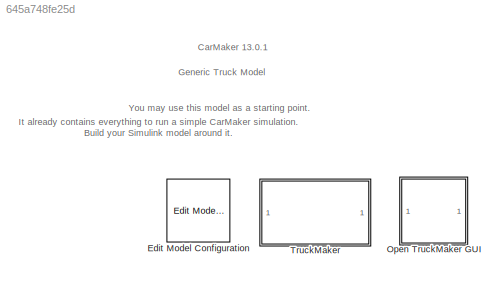
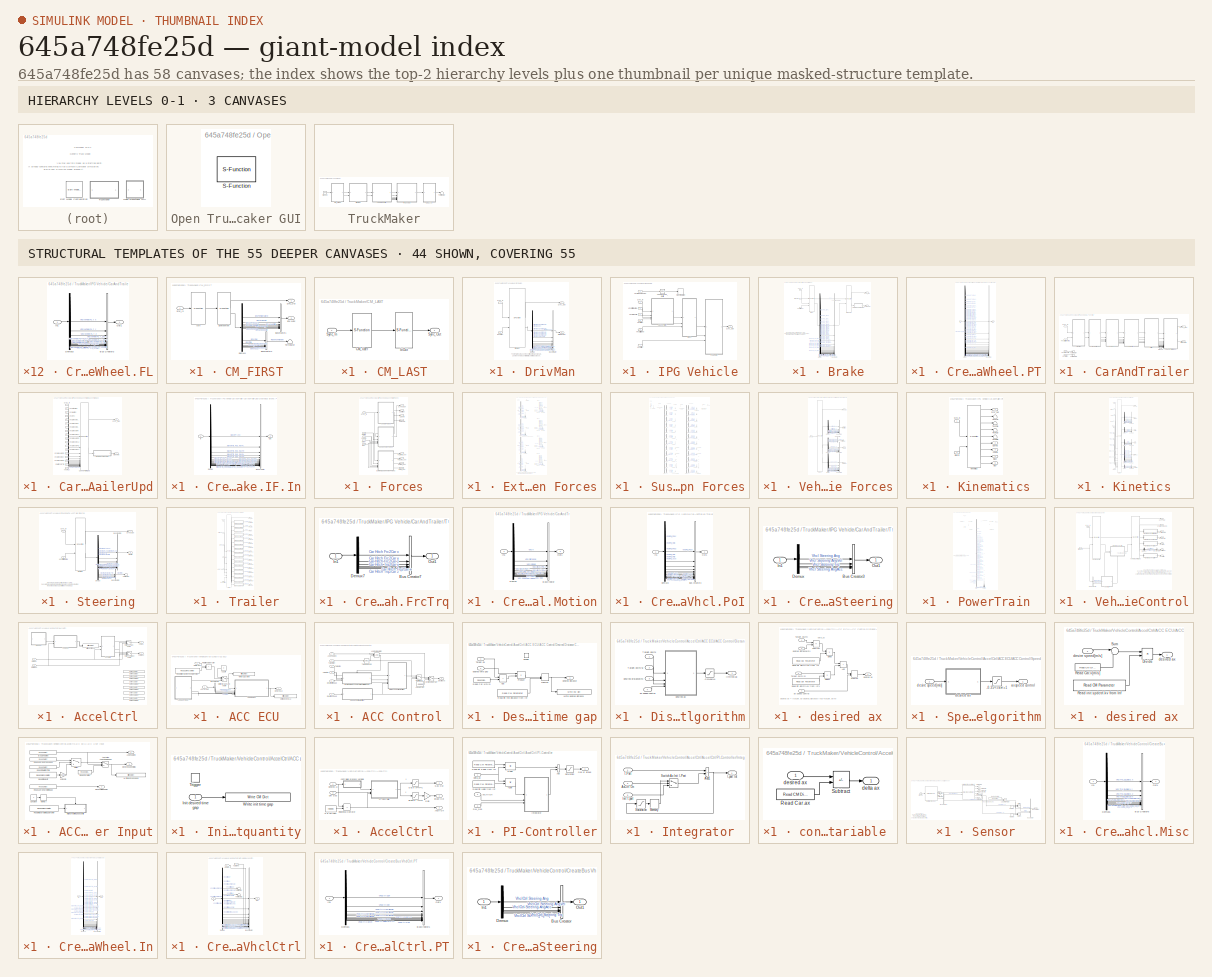
[diagram: thumbnail index - top-2 hierarchy levels (3 canvases) + 44 structural-template representatives of the remaining 55 canvases]
MODEL slx_645a748fe25d
KIND model
CONFIG AbsTol = auto
CONFIG EnableMultiTasking = on
CONFIG FixedStep = auto
CONFIG MaxStep = auto
CONFIG MinStep = auto
CONFIG RelTol = 1e-3
CONFIG SampleTimeConstraint = Unconstrained
CONFIG SolverName = ode45
CONFIG StartTime = 0.0
CONFIG StopTime = inf
BLOCK [Reference] Edit Model Configuration  REF=TruckMaker4SL/Edit Model
Configuration
  SourceBlock = TruckMaker4SL/Edit Model\nConfiguration
  SourceProductName = TruckMaker4SL
  UserDataPersistent = on
BLOCK [SubSystem] Open TruckMaker GUI
  LoadFcn = if ~length(which('cmself')), cmenv; end
  OpenFcn = cmblockmagic('gui_fix_display'); TM_Simulink
BLOCK [S-Function] Open TruckMaker GUI/S-Function
  EnableBusSupport = off
  FunctionName = cm_gui
  SFcnIsStateOwnerBlock = off
  SFunctionDeploymentMode = off
BLOCK [SubSystem] TruckMaker
  TreatAsAtomicUnit = on
BLOCK [SubSystem] TruckMaker/CM_FIRST
BLOCK [BusCreator] TruckMaker/CM_FIRST/BusCreator1
  InheritFromInputs = on
  Inputs = 8
BLOCK [BusCreator] TruckMaker/CM_FIRST/BusCreator2
  InheritFromInputs = on
  Inputs = 6
BLOCK [Demux] TruckMaker/CM_FIRST/Demux1
  DisplayOption = none
  Outputs = 14
BLOCK [Outport] TruckMaker/CM_FIRST/Env.Misc
  Port = 2
  VectorParamsAs1DForOutWhenUnconnected = off
BLOCK [S-Function] TruckMaker/CM_FIRST/Environment
  EnableBusSupport = off
  FunctionName = TM_Sfun
  Parameters = 'Environment'
  SFcnIsStateOwnerBlock = off
  SFunctionDeploymentMode = off
BLOCK [S-Function] TruckMaker/CM_FIRST/IoIn
  EnableBusSupport = off
  FunctionName = TM_Sfun
  Parameters = 'IoIn'
  SFcnIsStateOwnerBlock = off
  SFunctionDeploymentMode = off
BLOCK [Inport] TruckMaker/CM_FIRST/Sync_In
BLOCK [Outport] TruckMaker/CM_FIRST/Sync_Out
  VectorParamsAs1DForOutWhenUnconnected = off
BLOCK [Terminator] TruckMaker/CM_FIRST/Terminator
BLOCK [SubSystem] TruckMaker/CM_LAST
BLOCK [S-Function] TruckMaker/CM_LAST/CM_User
  EnableBusSupport = off
  FunctionName = TM_Sfun
  Parameters = 'CM_User'
  SFcnIsStateOwnerBlock = off
  SFunctionDeploymentMode = off
BLOCK [S-Function] TruckMaker/CM_LAST/IoOut
  EnableBusSupport = off
  FunctionName = TM_Sfun
  Parameters = 'IoOut'
  SFcnIsStateOwnerBlock = off
  SFunctionDeploymentMode = off
BLOCK [Inport] TruckMaker/CM_LAST/Sync_In
BLOCK [Outport] TruckMaker/CM_LAST/Sync_Out
  VectorParamsAs1DForOutWhenUnconnected = off
BLOCK [SubSystem] TruckMaker/DrivMan
BLOCK [BusCreator] TruckMaker/DrivMan/BusCreator
  InheritFromInputs = on
  Inputs = 20
BLOCK [Demux] TruckMaker/DrivMan/Demux
  DisplayOption = none
  Outputs = 20
BLOCK [S-Function] TruckMaker/DrivMan/DrivMan
  EnableBusSupport = off
  FunctionName = TM_Sfun
  Parameters = 'DrivMan'
  SFcnIsStateOwnerBlock = off
  SFunctionDeploymentMode = off
BLOCK [Outport] TruckMaker/DrivMan/DrivMan.Out
  Port = 2
  VectorParamsAs1DForOutWhenUnconnected = off
BLOCK [Inport] TruckMaker/DrivMan/Env.Misc
  Port = 2
BLOCK [Inport] TruckMaker/DrivMan/Sync_In
BLOCK [Outport] TruckMaker/DrivMan/Sync_Out
  VectorParamsAs1DForOutWhenUnconnected = off
BLOCK [Ground] TruckMaker/Ground
BLOCK [SubSystem] TruckMaker/IPG Vehicle
  TreatAsAtomicUnit = on
BLOCK [SubSystem] TruckMaker/IPG Vehicle/Brake
BLOCK [S-Function] TruckMaker/IPG Vehicle/Brake/Brake
  EnableBusSupport = off
  FunctionName = TM_Sfun
  Parameters = 'Brake'
  SFcnIsStateOwnerBlock = off
  SFunctionDeploymentMode = off
BLOCK [Inport] TruckMaker/IPG Vehicle/Brake/Brake.IF.In
  Port = 2
BLOCK [S-Function] TruckMaker/IPG Vehicle/Brake/BrakeUpd
  EnableBusSupport = off
  FunctionName = TM_Sfun
  Parameters = 'BrakeUpd'
  SFcnIsStateOwnerBlock = off
  SFunctionDeploymentMode = off
BLOCK [BusCreator] TruckMaker/IPG Vehicle/Brake/BusCreator
  InheritFromInputs = on
  Inputs = 48
BLOCK [SubSystem] TruckMaker/IPG Vehicle/Brake/CreateBus Vhcl.Wheel.PT
BLOCK [BusCreator] TruckMaker/IPG Vehicle/Brake/CreateBus Vhcl.Wheel.PT/BusCreator
  InheritFromInputs = on
  Inputs = 60
BLOCK [Demux] TruckMaker/IPG Vehicle/Brake/CreateBus Vhcl.Wheel.PT/Demux
  DisplayOption = none
  Outputs = 60
BLOCK [Inport] TruckMaker/IPG Vehicle/Brake/CreateBus Vhcl.Wheel.PT/In
BLOCK [Outport] TruckMaker/IPG Vehicle/Brake/CreateBus Vhcl.Wheel.PT/Out
  VectorParamsAs1DForOutWhenUnconnected = off
BLOCK [Demux] TruckMaker/IPG Vehicle/Brake/Demux
  DisplayOption = none
  Outputs = 48
BLOCK [Inport] TruckMaker/IPG Vehicle/Brake/Sync_In
BLOCK [Outport] TruckMaker/IPG Vehicle/Brake/Sync_Out
  VectorParamsAs1DForOutWhenUnconnected = off
BLOCK [Outport] TruckMaker/IPG Vehicle/Brake/Vhcl.Wheel.PT
  Port = 2
  VectorParamsAs1DForOutWhenUnconnected = off
BLOCK [Inport] TruckMaker/IPG Vehicle/Brake/VhclCtrl.Brake
  Port = 3
BLOCK [SubSystem] TruckMaker/IPG Vehicle/CarAndTrailer
BLOCK [Outport] TruckMaker/IPG Vehicle/CarAndTrailer/Brake.IF.In
  Port = 2
  VectorParamsAs1DForOutWhenUnconnected = off
BLOCK [SubSystem] TruckMaker/IPG Vehicle/CarAndTrailer/CarAndTrailerUpd
BLOCK [Outport] TruckMaker/IPG Vehicle/CarAndTrailer/CarAndTrailerUpd/Brake.IF.In
  Port = 2
  VectorParamsAs1DForOutWhenUnconnected = off
BLOCK [Inport] TruckMaker/IPG Vehicle/CarAndTrailer/CarAndTrailerUpd/Car.Hitch.FrcTrq
  Port = 17
BLOCK [S-Function] TruckMaker/IPG Vehicle/CarAndTrailer/CarAndTrailerUpd/CarAndTrailerUpd
  EnableBusSupport = off
  FunctionName = TM_Sfun
  Parameters = 'CarAndTrUpd'
  SFcnIsStateOwnerBlock = off
  SFunctionDeploymentMode = off
BLOCK [SubSystem] TruckMaker/IPG Vehicle/CarAndTrailer/CarAndTrailerUpd/CreateBus Brake.IF.In
BLOCK [BusCreator] TruckMaker/IPG Vehicle/CarAndTrailer/CarAndTrailerUpd/CreateBus Brake.IF.In/BusCreator
  InheritFromInputs = on
  Inputs = 25
BLOCK [Demux] TruckMaker/IPG Vehicle/CarAndTrailer/CarAndTrailerUpd/CreateBus Brake.IF.In/Demux
  DisplayOption = none
  Outputs = 25
BLOCK [Inport] TruckMaker/IPG Vehicle/CarAndTrailer/CarAndTrailerUpd/CreateBus Brake.IF.In/In
BLOCK [Outport] TruckMaker/IPG Vehicle/CarAndTrailer/CarAndTrailerUpd/CreateBus Brake.IF.In/Out
  VectorParamsAs1DForOutWhenUnconnected = off
BLOCK [Inport] TruckMaker/IPG Vehicle/CarAndTrailer/CarAndTrailerUpd/Sync_In
BLOCK [Outport] TruckMaker/IPG Vehicle/CarAndTrailer/CarAndTrailerUpd/Sync_Out
  VectorParamsAs1DForOutWhenUnconnected = off
BLOCK [Inport] TruckMaker/IPG Vehicle/CarAndTrailer/CarAndTrailerUpd/Vhcl.Fr1A
  Port = 18
BLOCK [Inport] TruckMaker/IPG Vehicle/CarAndTrailer/CarAndTrailerUpd/Vhcl.Motion
  Port = 3
BLOCK [Inport] TruckMaker/IPG Vehicle/CarAndTrailer/CarAndTrailerUpd/Vhcl.PoI
  Port = 4
BLOCK [Inport] TruckMaker/IPG Vehicle/CarAndTrailer/CarAndTrailerUpd/Vhcl.Steering
  Port = 2
BLOCK [Inport] TruckMaker/IPG Vehicle/CarAndTrailer/CarAndTrailerUpd/Vhcl.Wheel.FL
  Port = 5
BLOCK [Inport] TruckMaker/IPG Vehicle/CarAndTrailer/CarAndTrailerUpd/Vhcl.Wheel.FL2
  Port = 11
BLOCK [Inport] TruckMaker/IPG Vehicle/CarAndTrailer/CarAndTrailerUpd/Vhcl.Wheel.FR
  Port = 6
BLOCK [Inport] TruckMaker/IPG Vehicle/CarAndTrailer/CarAndTrailerUpd/Vhcl.Wheel.FR2
  Port = 12
BLOCK [Inport] TruckMaker/IPG Vehicle/CarAndTrailer/CarAndTrailerUpd/Vhcl.Wheel.RL
  Port = 7
BLOCK [Inport] TruckMaker/IPG Vehicle/CarAndTrailer/CarAndTrailerUpd/Vhcl.Wheel.RL2
  Port = 9
BLOCK [Inport] TruckMaker/IPG Vehicle/CarAndTrailer/CarAndTrailerUpd/Vhcl.Wheel.RL3
  Port = 13
BLOCK [Inport] TruckMaker/IPG Vehicle/CarAndTrailer/CarAndTrailerUpd/Vhcl.Wheel.RL4
  Port = 15
BLOCK [Inport] TruckMaker/IPG Vehicle/CarAndTrailer/CarAndTrailerUpd/Vhcl.Wheel.RR
  Port = 8
BLOCK [Inport] TruckMaker/IPG Vehicle/CarAndTrailer/CarAndTrailerUpd/Vhcl.Wheel.RR2
  Port = 10
BLOCK [Inport] TruckMaker/IPG Vehicle/CarAndTrailer/CarAndTrailerUpd/Vhcl.Wheel.RR3
  Port = 14
BLOCK [Inport] TruckMaker/IPG Vehicle/CarAndTrailer/CarAndTrailerUpd/Vhcl.Wheel.RR4
  Port = 16
BLOCK [SubSystem] TruckMaker/IPG Vehicle/CarAndTrailer/Forces
BLOCK [Outport] TruckMaker/IPG Vehicle/CarAndTrailer/Forces/Car.Aero
  Port = 3
  VectorParamsAs1DForOutWhenUnconnected = off
BLOCK [Outport] TruckMaker/IPG Vehicle/CarAndTrailer/Forces/Car.Load
  Port = 4
  VectorParamsAs1DForOutWhenUnconnected = off
BLOCK [Outport] TruckMaker/IPG Vehicle/CarAndTrailer/Forces/Car.Virtual
  Port = 2
  VectorParamsAs1DForOutWhenUnconnected = off
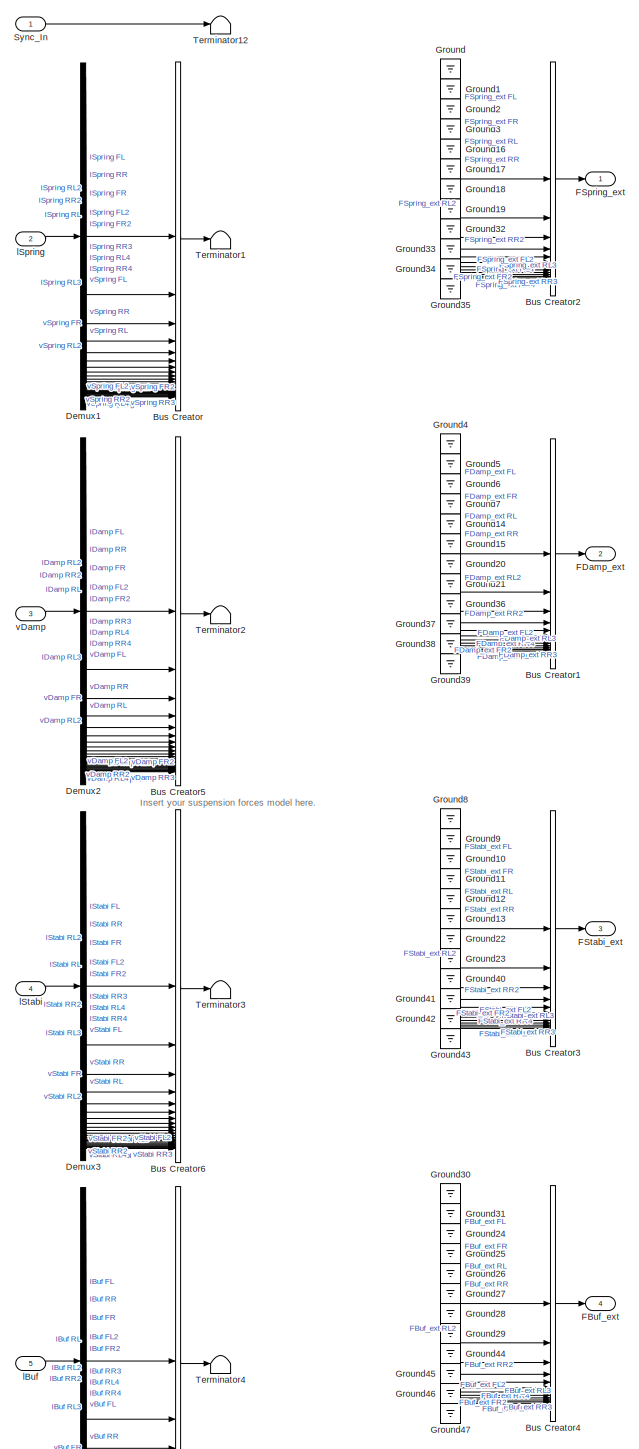
[diagram: TruckMaker/IPG Vehicle/CarAndTrailer/Forces/External Suspension Forces - part 1/2, most of the canvas]
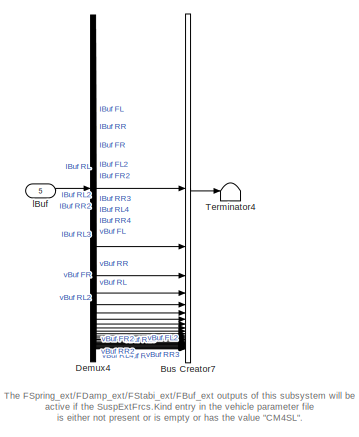
[diagram: TruckMaker/IPG Vehicle/CarAndTrailer/Forces/External Suspension Forces - part 2/2, bottom left region]
BLOCK [SubSystem] TruckMaker/IPG Vehicle/CarAndTrailer/Forces/External Suspension Forces
BLOCK [BusCreator] TruckMaker/IPG Vehicle/CarAndTrailer/Forces/External Suspension Forces/Bus Creator
  DisplayOption = bar
  InheritFromInputs = on
  Inputs = 24
BLOCK [BusCreator] TruckMaker/IPG Vehicle/CarAndTrailer/Forces/External Suspension Forces/Bus Creator1
  DisplayOption = bar
  InheritFromInputs = on
  Inputs = 12
BLOCK [BusCreator] TruckMaker/IPG Vehicle/CarAndTrailer/Forces/External Suspension Forces/Bus Creator2
  DisplayOption = bar
  InheritFromInputs = on
  Inputs = 12
BLOCK [BusCreator] TruckMaker/IPG Vehicle/CarAndTrailer/Forces/External Suspension Forces/Bus Creator3
  DisplayOption = bar
  InheritFromInputs = on
  Inputs = 12
BLOCK [BusCreator] TruckMaker/IPG Vehicle/CarAndTrailer/Forces/External Suspension Forces/Bus Creator4
  DisplayOption = bar
  InheritFromInputs = on
  Inputs = 12
BLOCK [BusCreator] TruckMaker/IPG Vehicle/CarAndTrailer/Forces/External Suspension Forces/Bus Creator5
  DisplayOption = bar
  InheritFromInputs = on
  Inputs = 24
BLOCK [BusCreator] TruckMaker/IPG Vehicle/CarAndTrailer/Forces/External Suspension Forces/Bus Creator6
  DisplayOption = bar
  InheritFromInputs = on
  Inputs = 24
BLOCK [BusCreator] TruckMaker/IPG Vehicle/CarAndTrailer/Forces/External Suspension Forces/Bus Creator7
  DisplayOption = bar
  InheritFromInputs = on
  Inputs = 24
BLOCK [Demux] TruckMaker/IPG Vehicle/CarAndTrailer/Forces/External Suspension Forces/Demux1
  DisplayOption = none
  Outputs = 24
BLOCK [Demux] TruckMaker/IPG Vehicle/CarAndTrailer/Forces/External Suspension Forces/Demux2
  DisplayOption = none
  Outputs = 24
BLOCK [Demux] TruckMaker/IPG Vehicle/CarAndTrailer/Forces/External Suspension Forces/Demux3
  DisplayOption = none
  Outputs = 24
BLOCK [Demux] TruckMaker/IPG Vehicle/CarAndTrailer/Forces/External Suspension Forces/Demux4
  DisplayOption = none
  Outputs = 24
BLOCK [Outport] TruckMaker/IPG Vehicle/CarAndTrailer/Forces/External Suspension Forces/FBuf_ext
  Port = 4
  VectorParamsAs1DForOutWhenUnconnected = off
BLOCK [Outport] TruckMaker/IPG Vehicle/CarAndTrailer/Forces/External Suspension Forces/FDamp_ext
  Port = 2
  VectorParamsAs1DForOutWhenUnconnected = off
BLOCK [Outport] TruckMaker/IPG Vehicle/CarAndTrailer/Forces/External Suspension Forces/FSpring_ext
  VectorParamsAs1DForOutWhenUnconnected = off
BLOCK [Outport] TruckMaker/IPG Vehicle/CarAndTrailer/Forces/External Suspension Forces/FStabi_ext
  Port = 3
  VectorParamsAs1DForOutWhenUnconnected = off
BLOCK [Ground] TruckMaker/IPG Vehicle/CarAndTrailer/Forces/External Suspension Forces/Ground
BLOCK [Ground] TruckMaker/IPG Vehicle/CarAndTrailer/Forces/External Suspension Forces/Ground1
BLOCK [Ground] TruckMaker/IPG Vehicle/CarAndTrailer/Forces/External Suspension Forces/Ground10
BLOCK [Ground] TruckMaker/IPG Vehicle/CarAndTrailer/Forces/External Suspension Forces/Ground11
BLOCK [Ground] TruckMaker/IPG Vehicle/CarAndTrailer/Forces/External Suspension Forces/Ground12
BLOCK [Ground] TruckMaker/IPG Vehicle/CarAndTrailer/Forces/External Suspension Forces/Ground13
BLOCK [Ground] TruckMaker/IPG Vehicle/CarAndTrailer/Forces/External Suspension Forces/Ground14
BLOCK [Ground] TruckMaker/IPG Vehicle/CarAndTrailer/Forces/External Suspension Forces/Ground15
BLOCK [Ground] TruckMaker/IPG Vehicle/CarAndTrailer/Forces/External Suspension Forces/Ground16
BLOCK [Ground] TruckMaker/IPG Vehicle/CarAndTrailer/Forces/External Suspension Forces/Ground17
BLOCK [Ground] TruckMaker/IPG Vehicle/CarAndTrailer/Forces/External Suspension Forces/Ground18
BLOCK [Ground] TruckMaker/IPG Vehicle/CarAndTrailer/Forces/External Suspension Forces/Ground19
BLOCK [Ground] TruckMaker/IPG Vehicle/CarAndTrailer/Forces/External Suspension Forces/Ground2
BLOCK [Ground] TruckMaker/IPG Vehicle/CarAndTrailer/Forces/External Suspension Forces/Ground20
BLOCK [Ground] TruckMaker/IPG Vehicle/CarAndTrailer/Forces/External Suspension Forces/Ground21
BLOCK [Ground] TruckMaker/IPG Vehicle/CarAndTrailer/Forces/External Suspension Forces/Ground22
BLOCK [Ground] TruckMaker/IPG Vehicle/CarAndTrailer/Forces/External Suspension Forces/Ground23
BLOCK [Ground] TruckMaker/IPG Vehicle/CarAndTrailer/Forces/External Suspension Forces/Ground24
BLOCK [Ground] TruckMaker/IPG Vehicle/CarAndTrailer/Forces/External Suspension Forces/Ground25
BLOCK [Ground] TruckMaker/IPG Vehicle/CarAndTrailer/Forces/External Suspension Forces/Ground26
BLOCK [Ground] TruckMaker/IPG Vehicle/CarAndTrailer/Forces/External Suspension Forces/Ground27
BLOCK [Ground] TruckMaker/IPG Vehicle/CarAndTrailer/Forces/External Suspension Forces/Ground28
BLOCK [Ground] TruckMaker/IPG Vehicle/CarAndTrailer/Forces/External Suspension Forces/Ground29
BLOCK [Ground] TruckMaker/IPG Vehicle/CarAndTrailer/Forces/External Suspension Forces/Ground3
BLOCK [Ground] TruckMaker/IPG Vehicle/CarAndTrailer/Forces/External Suspension Forces/Ground30
BLOCK [Ground] TruckMaker/IPG Vehicle/CarAndTrailer/Forces/External Suspension Forces/Ground31
BLOCK [Ground] TruckMaker/IPG Vehicle/CarAndTrailer/Forces/External Suspension Forces/Ground32
BLOCK [Ground] TruckMaker/IPG Vehicle/CarAndTrailer/Forces/External Suspension Forces/Ground33
BLOCK [Ground] TruckMaker/IPG Vehicle/CarAndTrailer/Forces/External Suspension Forces/Ground34
BLOCK [Ground] TruckMaker/IPG Vehicle/CarAndTrailer/Forces/External Suspension Forces/Ground35
BLOCK [Ground] TruckMaker/IPG Vehicle/CarAndTrailer/Forces/External Suspension Forces/Ground36
BLOCK [Ground] TruckMaker/IPG Vehicle/CarAndTrailer/Forces/External Suspension Forces/Ground37
BLOCK [Ground] TruckMaker/IPG Vehicle/CarAndTrailer/Forces/External Suspension Forces/Ground38
BLOCK [Ground] TruckMaker/IPG Vehicle/CarAndTrailer/Forces/External Suspension Forces/Ground39
BLOCK [Ground] TruckMaker/IPG Vehicle/CarAndTrailer/Forces/External Suspension Forces/Ground4
BLOCK [Ground] TruckMaker/IPG Vehicle/CarAndTrailer/Forces/External Suspension Forces/Ground40
BLOCK [Ground] TruckMaker/IPG Vehicle/CarAndTrailer/Forces/External Suspension Forces/Ground41
BLOCK [Ground] TruckMaker/IPG Vehicle/CarAndTrailer/Forces/External Suspension Forces/Ground42
BLOCK [Ground] TruckMaker/IPG Vehicle/CarAndTrailer/Forces/External Suspension Forces/Ground43
BLOCK [Ground] TruckMaker/IPG Vehicle/CarAndTrailer/Forces/External Suspension Forces/Ground44
BLOCK [Ground] TruckMaker/IPG Vehicle/CarAndTrailer/Forces/External Suspension Forces/Ground45
BLOCK [Ground] TruckMaker/IPG Vehicle/CarAndTrailer/Forces/External Suspension Forces/Ground46
BLOCK [Ground] TruckMaker/IPG Vehicle/CarAndTrailer/Forces/External Suspension Forces/Ground47
BLOCK [Ground] TruckMaker/IPG Vehicle/CarAndTrailer/Forces/External Suspension Forces/Ground5
BLOCK [Ground] TruckMaker/IPG Vehicle/CarAndTrailer/Forces/External Suspension Forces/Ground6
BLOCK [Ground] TruckMaker/IPG Vehicle/CarAndTrailer/Forces/External Suspension Forces/Ground7
BLOCK [Ground] TruckMaker/IPG Vehicle/CarAndTrailer/Forces/External Suspension Forces/Ground8
BLOCK [Ground] TruckMaker/IPG Vehicle/CarAndTrailer/Forces/External Suspension Forces/Ground9
BLOCK [Inport] TruckMaker/IPG Vehicle/CarAndTrailer/Forces/External Suspension Forces/Sync_In
BLOCK [Terminator] TruckMaker/IPG Vehicle/CarAndTrailer/Forces/External Suspension Forces/Terminator1
BLOCK [Terminator] TruckMaker/IPG Vehicle/CarAndTrailer/Forces/External Suspension Forces/Terminator12
BLOCK [Terminator] TruckMaker/IPG Vehicle/CarAndTrailer/Forces/External Suspension Forces/Terminator2
BLOCK [Terminator] TruckMaker/IPG Vehicle/CarAndTrailer/Forces/External Suspension Forces/Terminator3
BLOCK [Terminator] TruckMaker/IPG Vehicle/CarAndTrailer/Forces/External Suspension Forces/Terminator4
BLOCK [Inport] TruckMaker/IPG Vehicle/CarAndTrailer/Forces/External Suspension Forces/lBuf
  Port = 5
BLOCK [Inport] TruckMaker/IPG Vehicle/CarAndTrailer/Forces/External Suspension Forces/lSpring
  Port = 2
BLOCK [Inport] TruckMaker/IPG Vehicle/CarAndTrailer/Forces/External Suspension Forces/lStabi
  Port = 4
BLOCK [Inport] TruckMaker/IPG Vehicle/CarAndTrailer/Forces/External Suspension Forces/vDamp
  Port = 3
BLOCK [Outport] TruckMaker/IPG Vehicle/CarAndTrailer/Forces/FBuf_ext
  Port = 8
  VectorParamsAs1DForOutWhenUnconnected = off
BLOCK [Outport] TruckMaker/IPG Vehicle/CarAndTrailer/Forces/FDamp_ext
  Port = 6
  VectorParamsAs1DForOutWhenUnconnected = off
BLOCK [Outport] TruckMaker/IPG Vehicle/CarAndTrailer/Forces/FSpring_ext
  Port = 5
  VectorParamsAs1DForOutWhenUnconnected = off
BLOCK [Outport] TruckMaker/IPG Vehicle/CarAndTrailer/Forces/FStabi_ext
  Port = 7
  VectorParamsAs1DForOutWhenUnconnected = off
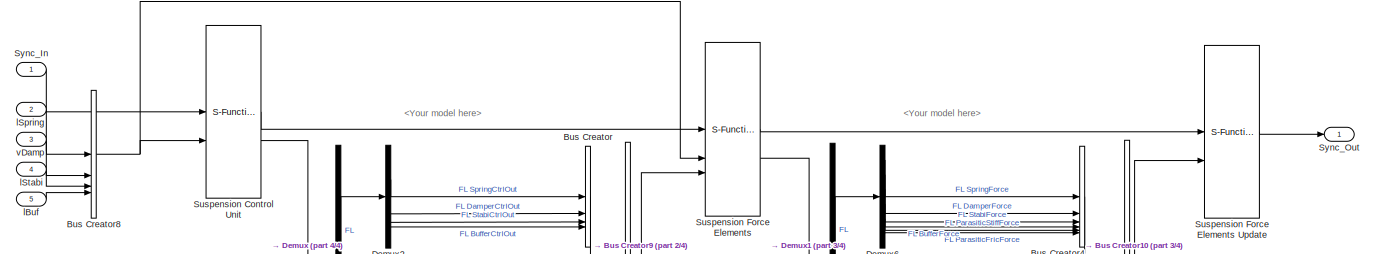
[diagram: TruckMaker/IPG Vehicle/CarAndTrailer/Forces/Suspension Forces - part 1/4, full width, top band]
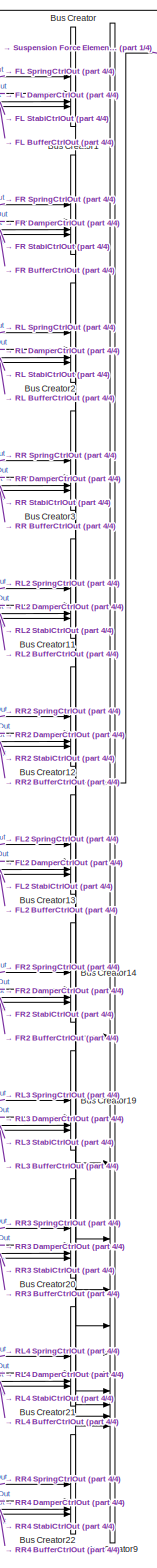
[diagram: TruckMaker/IPG Vehicle/CarAndTrailer/Forces/Suspension Forces - part 2/4, center side, full height]
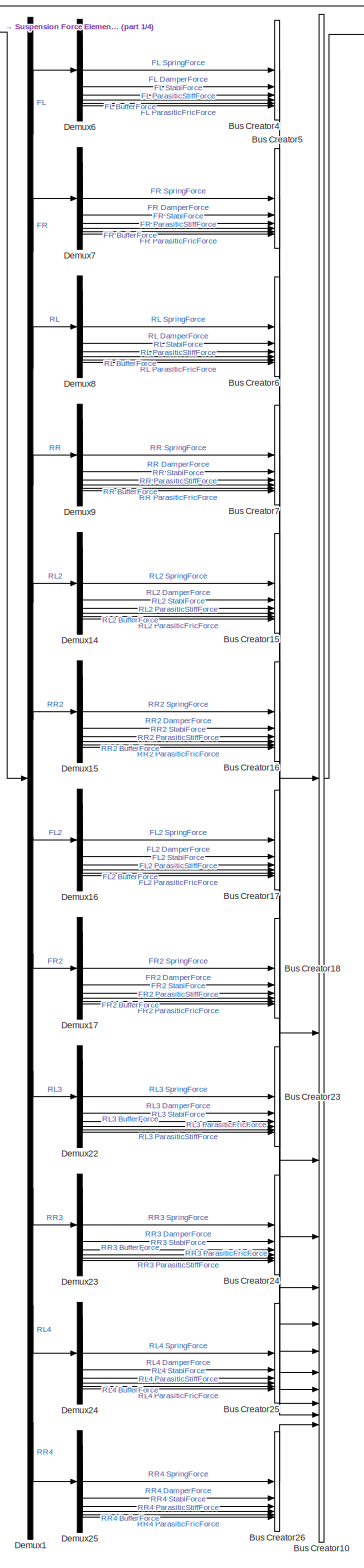
[diagram: TruckMaker/IPG Vehicle/CarAndTrailer/Forces/Suspension Forces - part 3/4, right side, full height]
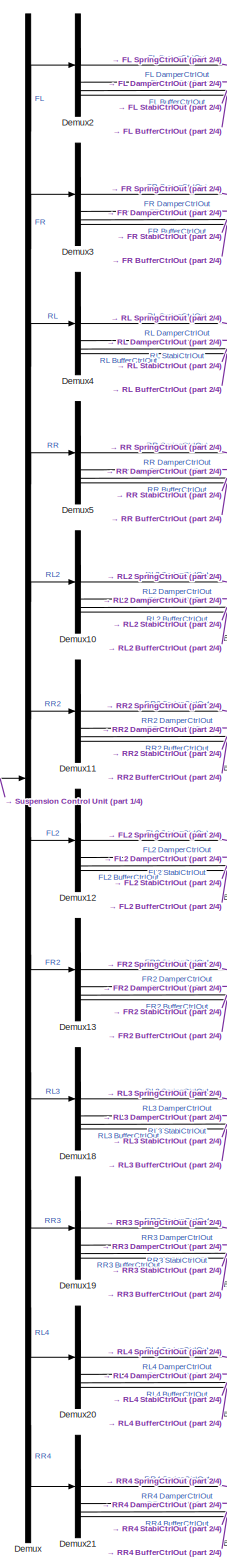
[diagram: TruckMaker/IPG Vehicle/CarAndTrailer/Forces/Suspension Forces - part 4/4, left side, full height]
BLOCK [SubSystem] TruckMaker/IPG Vehicle/CarAndTrailer/Forces/Suspension Forces
BLOCK [BusCreator] TruckMaker/IPG Vehicle/CarAndTrailer/Forces/Suspension Forces/Bus Creator
  DisplayOption = bar
  InheritFromInputs = on
  Inputs = 4
BLOCK [BusCreator] TruckMaker/IPG Vehicle/CarAndTrailer/Forces/Suspension Forces/Bus Creator1
  DisplayOption = bar
  InheritFromInputs = on
  Inputs = 4
BLOCK [BusCreator] TruckMaker/IPG Vehicle/CarAndTrailer/Forces/Suspension Forces/Bus Creator10
  DisplayOption = bar
  InheritFromInputs = on
  Inputs = 12
BLOCK [BusCreator] TruckMaker/IPG Vehicle/CarAndTrailer/Forces/Suspension Forces/Bus Creator11
  DisplayOption = bar
  InheritFromInputs = on
  Inputs = 4
BLOCK [BusCreator] TruckMaker/IPG Vehicle/CarAndTrailer/Forces/Suspension Forces/Bus Creator12
  DisplayOption = bar
  InheritFromInputs = on
  Inputs = 4
BLOCK [BusCreator] TruckMaker/IPG Vehicle/CarAndTrailer/Forces/Suspension Forces/Bus Creator13
  DisplayOption = bar
  InheritFromInputs = on
  Inputs = 4
BLOCK [BusCreator] TruckMaker/IPG Vehicle/CarAndTrailer/Forces/Suspension Forces/Bus Creator14
  DisplayOption = bar
  InheritFromInputs = on
  Inputs = 4
BLOCK [BusCreator] TruckMaker/IPG Vehicle/CarAndTrailer/Forces/Suspension Forces/Bus Creator15
  DisplayOption = bar
  InheritFromInputs = on
  Inputs = 6
BLOCK [BusCreator] TruckMaker/IPG Vehicle/CarAndTrailer/Forces/Suspension Forces/Bus Creator16
  DisplayOption = bar
  InheritFromInputs = on
  Inputs = 6
BLOCK [BusCreator] TruckMaker/IPG Vehicle/CarAndTrailer/Forces/Suspension Forces/Bus Creator17
  DisplayOption = bar
  InheritFromInputs = on
  Inputs = 6
BLOCK [BusCreator] TruckMaker/IPG Vehicle/CarAndTrailer/Forces/Suspension Forces/Bus Creator18
  DisplayOption = bar
  InheritFromInputs = on
  Inputs = 6
BLOCK [BusCreator] TruckMaker/IPG Vehicle/CarAndTrailer/Forces/Suspension Forces/Bus Creator19
  DisplayOption = bar
  InheritFromInputs = on
  Inputs = 4
BLOCK [BusCreator] TruckMaker/IPG Vehicle/CarAndTrailer/Forces/Suspension Forces/Bus Creator2
  DisplayOption = bar
  InheritFromInputs = on
  Inputs = 4
BLOCK [BusCreator] TruckMaker/IPG Vehicle/CarAndTrailer/Forces/Suspension Forces/Bus Creator20
  DisplayOption = bar
  InheritFromInputs = on
  Inputs = 4
BLOCK [BusCreator] TruckMaker/IPG Vehicle/CarAndTrailer/Forces/Suspension Forces/Bus Creator21
  DisplayOption = bar
  InheritFromInputs = on
  Inputs = 4
BLOCK [BusCreator] TruckMaker/IPG Vehicle/CarAndTrailer/Forces/Suspension Forces/Bus Creator22
  DisplayOption = bar
  InheritFromInputs = on
  Inputs = 4
BLOCK [BusCreator] TruckMaker/IPG Vehicle/CarAndTrailer/Forces/Suspension Forces/Bus Creator23
  DisplayOption = bar
  InheritFromInputs = on
  Inputs = 6
BLOCK [BusCreator] TruckMaker/IPG Vehicle/CarAndTrailer/Forces/Suspension Forces/Bus Creator24
  DisplayOption = bar
  InheritFromInputs = on
  Inputs = 6
BLOCK [BusCreator] TruckMaker/IPG Vehicle/CarAndTrailer/Forces/Suspension Forces/Bus Creator25
  DisplayOption = bar
  InheritFromInputs = on
  Inputs = 6
BLOCK [BusCreator] TruckMaker/IPG Vehicle/CarAndTrailer/Forces/Suspension Forces/Bus Creator26
  DisplayOption = bar
  InheritFromInputs = on
  Inputs = 6
BLOCK [BusCreator] TruckMaker/IPG Vehicle/CarAndTrailer/Forces/Suspension Forces/Bus Creator3
  DisplayOption = bar
  InheritFromInputs = on
  Inputs = 4
BLOCK [BusCreator] TruckMaker/IPG Vehicle/CarAndTrailer/Forces/Suspension Forces/Bus Creator4
  DisplayOption = bar
  InheritFromInputs = on
  Inputs = 6
BLOCK [BusCreator] TruckMaker/IPG Vehicle/CarAndTrailer/Forces/Suspension Forces/Bus Creator5
  DisplayOption = bar
  InheritFromInputs = on
  Inputs = 6
BLOCK [BusCreator] TruckMaker/IPG Vehicle/CarAndTrailer/Forces/Suspension Forces/Bus Creator6
  DisplayOption = bar
  InheritFromInputs = on
  Inputs = 6
BLOCK [BusCreator] TruckMaker/IPG Vehicle/CarAndTrailer/Forces/Suspension Forces/Bus Creator7
  DisplayOption = bar
  InheritFromInputs = on
  Inputs = 6
BLOCK [BusCreator] TruckMaker/IPG Vehicle/CarAndTrailer/Forces/Suspension Forces/Bus Creator8
  DisplayOption = bar
  InheritFromInputs = on
  Inputs = 4
BLOCK [BusCreator] TruckMaker/IPG Vehicle/CarAndTrailer/Forces/Suspension Forces/Bus Creator9
  DisplayOption = bar
  InheritFromInputs = on
  Inputs = 12
BLOCK [Demux] TruckMaker/IPG Vehicle/CarAndTrailer/Forces/Suspension Forces/Demux
  Outputs = 12
BLOCK [Demux] TruckMaker/IPG Vehicle/CarAndTrailer/Forces/Suspension Forces/Demux1
  Outputs = 12
BLOCK [Demux] TruckMaker/IPG Vehicle/CarAndTrailer/Forces/Suspension Forces/Demux10
BLOCK [Demux] TruckMaker/IPG Vehicle/CarAndTrailer/Forces/Suspension Forces/Demux11
BLOCK [Demux] TruckMaker/IPG Vehicle/CarAndTrailer/Forces/Suspension Forces/Demux12
BLOCK [Demux] TruckMaker/IPG Vehicle/CarAndTrailer/Forces/Suspension Forces/Demux13
BLOCK [Demux] TruckMaker/IPG Vehicle/CarAndTrailer/Forces/Suspension Forces/Demux14
  Outputs = 6
BLOCK [Demux] TruckMaker/IPG Vehicle/CarAndTrailer/Forces/Suspension Forces/Demux15
  Outputs = 6
BLOCK [Demux] TruckMaker/IPG Vehicle/CarAndTrailer/Forces/Suspension Forces/Demux16
  Outputs = 6
BLOCK [Demux] TruckMaker/IPG Vehicle/CarAndTrailer/Forces/Suspension Forces/Demux17
  Outputs = 6
BLOCK [Demux] TruckMaker/IPG Vehicle/CarAndTrailer/Forces/Suspension Forces/Demux18
BLOCK [Demux] TruckMaker/IPG Vehicle/CarAndTrailer/Forces/Suspension Forces/Demux19
BLOCK [Demux] TruckMaker/IPG Vehicle/CarAndTrailer/Forces/Suspension Forces/Demux2
BLOCK [Demux] TruckMaker/IPG Vehicle/CarAndTrailer/Forces/Suspension Forces/Demux20
BLOCK [Demux] TruckMaker/IPG Vehicle/CarAndTrailer/Forces/Suspension Forces/Demux21
BLOCK [Demux] TruckMaker/IPG Vehicle/CarAndTrailer/Forces/Suspension Forces/Demux22
  Outputs = 6
BLOCK [Demux] TruckMaker/IPG Vehicle/CarAndTrailer/Forces/Suspension Forces/Demux23
  Outputs = 6
BLOCK [Demux] TruckMaker/IPG Vehicle/CarAndTrailer/Forces/Suspension Forces/Demux24
  Outputs = 6
BLOCK [Demux] TruckMaker/IPG Vehicle/CarAndTrailer/Forces/Suspension Forces/Demux25
  Outputs = 6
BLOCK [Demux] TruckMaker/IPG Vehicle/CarAndTrailer/Forces/Suspension Forces/Demux3
BLOCK [Demux] TruckMaker/IPG Vehicle/CarAndTrailer/Forces/Suspension Forces/Demux4
BLOCK [Demux] TruckMaker/IPG Vehicle/CarAndTrailer/Forces/Suspension Forces/Demux5
BLOCK [Demux] TruckMaker/IPG Vehicle/CarAndTrailer/Forces/Suspension Forces/Demux6
  Outputs = 6
BLOCK [Demux] TruckMaker/IPG Vehicle/CarAndTrailer/Forces/Suspension Forces/Demux7
  Outputs = 6
BLOCK [Demux] TruckMaker/IPG Vehicle/CarAndTrailer/Forces/Suspension Forces/Demux8
  Outputs = 6
BLOCK [Demux] TruckMaker/IPG Vehicle/CarAndTrailer/Forces/Suspension Forces/Demux9
  Outputs = 6
BLOCK [S-Function] TruckMaker/IPG Vehicle/CarAndTrailer/Forces/Suspension Forces/Suspension Control Unit
  EnableBusSupport = off
  FunctionName = TM_Sfun
  Parameters = 'ForcesSuspControl'
  SFcnIsStateOwnerBlock = off
  SFunctionDeploymentMode = off
BLOCK [S-Function] TruckMaker/IPG Vehicle/CarAndTrailer/Forces/Suspension Forces/Suspension Force Elements
  EnableBusSupport = off
  FunctionName = TM_Sfun
  Parameters = 'ForcesSusp'
  SFcnIsStateOwnerBlock = off
  SFunctionDeploymentMode = off
BLOCK [S-Function] TruckMaker/IPG Vehicle/CarAndTrailer/Forces/Suspension Forces/Suspension Force Elements Update
  EnableBusSupport = off
  FunctionName = TM_Sfun
  Parameters = 'ForcesSuspUpd'
  SFcnIsStateOwnerBlock = off
  SFunctionDeploymentMode = off
BLOCK [Inport] TruckMaker/IPG Vehicle/CarAndTrailer/Forces/Suspension Forces/Sync_In
BLOCK [Outport] TruckMaker/IPG Vehicle/CarAndTrailer/Forces/Suspension Forces/Sync_Out
  VectorParamsAs1DForOutWhenUnconnected = off
BLOCK [Inport] TruckMaker/IPG Vehicle/CarAndTrailer/Forces/Suspension Forces/lBuf
  Port = 5
BLOCK [Inport] TruckMaker/IPG Vehicle/CarAndTrailer/Forces/Suspension Forces/lSpring
  Port = 2
BLOCK [Inport] TruckMaker/IPG Vehicle/CarAndTrailer/Forces/Suspension Forces/lStabi
  Port = 4
BLOCK [Inport] TruckMaker/IPG Vehicle/CarAndTrailer/Forces/Suspension Forces/vDamp
  Port = 3
BLOCK [Inport] TruckMaker/IPG Vehicle/CarAndTrailer/Forces/Sync_In
BLOCK [Outport] TruckMaker/IPG Vehicle/CarAndTrailer/Forces/Sync_Out
  VectorParamsAs1DForOutWhenUnconnected = off
BLOCK [SubSystem] TruckMaker/IPG Vehicle/CarAndTrailer/Forces/Vehicle Forces
BLOCK [BusCreator] TruckMaker/IPG Vehicle/CarAndTrailer/Forces/Vehicle Forces/Bus Creator1
  DisplayOption = bar
  InheritFromInputs = on
  Inputs = 12
BLOCK [BusCreator] TruckMaker/IPG Vehicle/CarAndTrailer/Forces/Vehicle Forces/Bus Creator8
  DisplayOption = bar
  InheritFromInputs = on
  Inputs = 16
BLOCK [BusCreator] TruckMaker/IPG Vehicle/CarAndTrailer/Forces/Vehicle Forces/BusCreator1
  InheritFromInputs = on
  Inputs = 4
BLOCK [BusCreator] TruckMaker/IPG Vehicle/CarAndTrailer/Forces/Vehicle Forces/BusCreator2
  InheritFromInputs = on
  Inputs = 9
BLOCK [Outport] TruckMaker/IPG Vehicle/CarAndTrailer/Forces/Vehicle Forces/Car.Aero
  Port = 3
  VectorParamsAs1DForOutWhenUnconnected = off
BLOCK [Outport] TruckMaker/IPG Vehicle/CarAndTrailer/Forces/Vehicle Forces/Car.Load
  Port = 4
  VectorParamsAs1DForOutWhenUnconnected = off
BLOCK [Outport] TruckMaker/IPG Vehicle/CarAndTrailer/Forces/Vehicle Forces/Car.Virtual
  Port = 2
  VectorParamsAs1DForOutWhenUnconnected = off
BLOCK [Demux] TruckMaker/IPG Vehicle/CarAndTrailer/Forces/Vehicle Forces/Demux
  DisplayOption = none
  Outputs = 16
BLOCK [Demux] TruckMaker/IPG Vehicle/CarAndTrailer/Forces/Vehicle Forces/Demux1
  DisplayOption = none
  Outputs = 12
BLOCK [Demux] TruckMaker/IPG Vehicle/CarAndTrailer/Forces/Vehicle Forces/Demux2
  DisplayOption = none
  Outputs = 13
BLOCK [S-Function] TruckMaker/IPG Vehicle/CarAndTrailer/Forces/Vehicle Forces/Forces
  EnableBusSupport = off
  FunctionName = TM_Sfun
  Parameters = 'Forces'
  SFcnIsStateOwnerBlock = off
  SFunctionDeploymentMode = off
BLOCK [Inport] TruckMaker/IPG Vehicle/CarAndTrailer/Forces/Vehicle Forces/Sync_In
BLOCK [Outport] TruckMaker/IPG Vehicle/CarAndTrailer/Forces/Vehicle Forces/Sync_Out
  VectorParamsAs1DForOutWhenUnconnected = off
BLOCK [Terminator] TruckMaker/IPG Vehicle/CarAndTrailer/Forces/Vehicle Forces/Terminator
BLOCK [Inport] TruckMaker/IPG Vehicle/CarAndTrailer/Forces/lBuf
  Port = 5
BLOCK [Inport] TruckMaker/IPG Vehicle/CarAndTrailer/Forces/lSpring
  Port = 2
BLOCK [Inport] TruckMaker/IPG Vehicle/CarAndTrailer/Forces/lStabi
  Port = 4
BLOCK [Inport] TruckMaker/IPG Vehicle/CarAndTrailer/Forces/vDamp
  Port = 3
BLOCK [Ground] TruckMaker/IPG Vehicle/CarAndTrailer/Ground
BLOCK [SubSystem] TruckMaker/IPG Vehicle/CarAndTrailer/Kinematics
BLOCK [S-Function] TruckMaker/IPG Vehicle/CarAndTrailer/Kinematics/Kinematics
  EnableBusSupport = off
  FunctionName = TM_Sfun
  Parameters = 'Kinematics'
  SFcnIsStateOwnerBlock = off
  SFunctionDeploymentMode = off
BLOCK [Inport] TruckMaker/IPG Vehicle/CarAndTrailer/Kinematics/Steer.IF
  Port = 2
BLOCK [Inport] TruckMaker/IPG Vehicle/CarAndTrailer/Kinematics/Sync_In
BLOCK [Outport] TruckMaker/IPG Vehicle/CarAndTrailer/Kinematics/Sync_Out
  VectorParamsAs1DForOutWhenUnconnected = off
BLOCK [Terminator] TruckMaker/IPG Vehicle/CarAndTrailer/Kinematics/TireFL.In
BLOCK [Terminator] TruckMaker/IPG Vehicle/CarAndTrailer/Kinematics/TireFR.In
BLOCK [Terminator] TruckMaker/IPG Vehicle/CarAndTrailer/Kinematics/TireRL.In
BLOCK [Terminator] TruckMaker/IPG Vehicle/CarAndTrailer/Kinematics/TireRR.In
BLOCK [Outport] TruckMaker/IPG Vehicle/CarAndTrailer/Kinematics/lBuf
  Port = 5
  VectorParamsAs1DForOutWhenUnconnected = off
BLOCK [Outport] TruckMaker/IPG Vehicle/CarAndTrailer/Kinematics/lSpring
  Port = 2
  VectorParamsAs1DForOutWhenUnconnected = off
BLOCK [Outport] TruckMaker/IPG Vehicle/CarAndTrailer/Kinematics/lStabi
  Port = 4
  VectorParamsAs1DForOutWhenUnconnected = off
BLOCK [Outport] TruckMaker/IPG Vehicle/CarAndTrailer/Kinematics/vDamp
  Port = 3
  VectorParamsAs1DForOutWhenUnconnected = off
BLOCK [SubSystem] TruckMaker/IPG Vehicle/CarAndTrailer/Kinetics
BLOCK [BusCreator] TruckMaker/IPG Vehicle/CarAndTrailer/Kinetics/Bus Creator
  DisplayOption = bar
  InheritFromInputs = on
  Inputs = 20
BLOCK [BusCreator] TruckMaker/IPG Vehicle/CarAndTrailer/Kinetics/Bus Creator1
  DisplayOption = bar
  InheritFromInputs = on
  Inputs = 12
BLOCK [BusCreator] TruckMaker/IPG Vehicle/CarAndTrailer/Kinetics/Bus Creator2
  DisplayOption = bar
  InheritFromInputs = on
  Inputs = 6
BLOCK [BusCreator] TruckMaker/IPG Vehicle/CarAndTrailer/Kinetics/Bus Creator3
  DisplayOption = bar
  InheritFromInputs = on
  Inputs = 6
BLOCK [BusCreator] TruckMaker/IPG Vehicle/CarAndTrailer/Kinetics/Bus Creator4
  DisplayOption = bar
  InheritFromInputs = on
  Inputs = 4
BLOCK [Inport] TruckMaker/IPG Vehicle/CarAndTrailer/Kinetics/Car.Aero
  Port = 3
BLOCK [Outport] TruckMaker/IPG Vehicle/CarAndTrailer/Kinetics/Car.Fr1
  Port = 4
  VectorParamsAs1DForOutWhenUnconnected = off
BLOCK [Outport] TruckMaker/IPG Vehicle/CarAndTrailer/Kinetics/Car.Hitch
  Port = 3
  VectorParamsAs1DForOutWhenUnconnected = off
BLOCK [Inport] TruckMaker/IPG Vehicle/CarAndTrailer/Kinetics/Car.Load
  Port = 4
BLOCK [Outport] TruckMaker/IPG Vehicle/CarAndTrailer/Kinetics/Car.Trq_T2W
  Port = 5
  VectorParamsAs1DForOutWhenUnconnected = off
BLOCK [Inport] TruckMaker/IPG Vehicle/CarAndTrailer/Kinetics/Car.Virtual
  Port = 2
BLOCK [Demux] TruckMaker/IPG Vehicle/CarAndTrailer/Kinetics/Demux
  DisplayOption = none
  Outputs = 12
BLOCK [Demux] TruckMaker/IPG Vehicle/CarAndTrailer/Kinetics/Demux1
  DisplayOption = none
  Outputs = 6
BLOCK [Demux] TruckMaker/IPG Vehicle/CarAndTrailer/Kinetics/Demux2
  DisplayOption = none
  Outputs = 6
BLOCK [Demux] TruckMaker/IPG Vehicle/CarAndTrailer/Kinetics/Demux3
  DisplayOption = none
BLOCK [Demux] TruckMaker/IPG Vehicle/CarAndTrailer/Kinetics/Demux4
  DisplayOption = none
  Outputs = 20
BLOCK [Inport] TruckMaker/IPG Vehicle/CarAndTrailer/Kinetics/FBuf_ext
  Port = 8
BLOCK [Inport] TruckMaker/IPG Vehicle/CarAndTrailer/Kinetics/FDamp_ext
  Port = 6
BLOCK [Inport] TruckMaker/IPG Vehicle/CarAndTrailer/Kinetics/FSpring_ext
  Port = 5
BLOCK [Inport] TruckMaker/IPG Vehicle/CarAndTrailer/Kinetics/FStabi_ext
  Port = 7
BLOCK [S-Function] TruckMaker/IPG Vehicle/CarAndTrailer/Kinetics/Kinetics
  EnableBusSupport = off
  FunctionName = TM_Sfun
  Parameters = 'Kinetics'
  SFcnIsStateOwnerBlock = off
  SFunctionDeploymentMode = off
BLOCK [Inport] TruckMaker/IPG Vehicle/CarAndTrailer/Kinetics/Sync_In
BLOCK [Outport] TruckMaker/IPG Vehicle/CarAndTrailer/Kinetics/Sync_Out
  VectorParamsAs1DForOutWhenUnconnected = off
BLOCK [Ground] TruckMaker/IPG Vehicle/CarAndTrailer/Kinetics/TireFL.Out
BLOCK [Ground] TruckMaker/IPG Vehicle/CarAndTrailer/Kinetics/TireFR.Out
BLOCK [Ground] TruckMaker/IPG Vehicle/CarAndTrailer/Kinetics/TireRL.Out
BLOCK [Ground] TruckMaker/IPG Vehicle/CarAndTrailer/Kinetics/TireRR.Out
BLOCK [Outport] TruckMaker/IPG Vehicle/CarAndTrailer/Kinetics/Trailer.Load
  Port = 2
  VectorParamsAs1DForOutWhenUnconnected = off
BLOCK [Outport] TruckMaker/IPG Vehicle/CarAndTrailer/Kinetics/WheelCarrier.Misc
  Port = 6
  VectorParamsAs1DForOutWhenUnconnected = off
BLOCK [SubSystem] TruckMaker/IPG Vehicle/CarAndTrailer/Steering
BLOCK [BusCreator] TruckMaker/IPG Vehicle/CarAndTrailer/Steering/Bus Creator1
  DisplayOption = bar
  InheritFromInputs = on
  Inputs = 16
BLOCK [BusCreator] TruckMaker/IPG Vehicle/CarAndTrailer/Steering/Bus Creator2
  DisplayOption = bar
  InheritFromInputs = on
  Inputs = 5
BLOCK [Demux] TruckMaker/IPG Vehicle/CarAndTrailer/Steering/Demux
  DisplayOption = none
  Outputs = 21
BLOCK [Outport] TruckMaker/IPG Vehicle/CarAndTrailer/Steering/Steer.IF
  Port = 2
  VectorParamsAs1DForOutWhenUnconnected = off
BLOCK [S-Function] TruckMaker/IPG Vehicle/CarAndTrailer/Steering/Steering
  EnableBusSupport = off
  FunctionName = TM_Sfun
  Parameters = 'Steering'
  SFcnIsStateOwnerBlock = off
  SFunctionDeploymentMode = off
BLOCK [Inport] TruckMaker/IPG Vehicle/CarAndTrailer/Steering/Sync_In
BLOCK [Outport] TruckMaker/IPG Vehicle/CarAndTrailer/Steering/Sync_Out
  VectorParamsAs1DForOutWhenUnconnected = off
BLOCK [Terminator] TruckMaker/IPG Vehicle/CarAndTrailer/Steering/Terminator
BLOCK [Inport] TruckMaker/IPG Vehicle/CarAndTrailer/Steering/VhclCtrl.Steering
  Port = 2
BLOCK [Inport] TruckMaker/IPG Vehicle/CarAndTrailer/Sync_In
BLOCK [Outport] TruckMaker/IPG Vehicle/CarAndTrailer/Sync_Out
  VectorParamsAs1DForOutWhenUnconnected = off
BLOCK [Terminator] TruckMaker/IPG Vehicle/CarAndTrailer/Terminator
BLOCK [Terminator] TruckMaker/IPG Vehicle/CarAndTrailer/Terminator1
BLOCK [SubSystem] TruckMaker/IPG Vehicle/CarAndTrailer/Trailer
BLOCK [Inport] TruckMaker/IPG Vehicle/CarAndTrailer/Trailer/Car.Fr1
  Port = 4
BLOCK [Inport] TruckMaker/IPG Vehicle/CarAndTrailer/Trailer/Car.Hitch
  Port = 3
BLOCK [Outport] TruckMaker/IPG Vehicle/CarAndTrailer/Trailer/Car.Hitch.FrcTrq
  Port = 17
  VectorParamsAs1DForOutWhenUnconnected = off
BLOCK [Inport] TruckMaker/IPG Vehicle/CarAndTrailer/Trailer/Car.Trq_T2W
  Port = 5
BLOCK [SubSystem] TruckMaker/IPG Vehicle/CarAndTrailer/Trailer/CreateBus Car.Hitch.FrcTrq
BLOCK [BusCreator] TruckMaker/IPG Vehicle/CarAndTrailer/Trailer/CreateBus Car.Hitch.FrcTrq/Bus Creator7
  DisplayOption = bar
  InheritFromInputs = on
  Inputs = 6
BLOCK [Demux] TruckMaker/IPG Vehicle/CarAndTrailer/Trailer/CreateBus Car.Hitch.FrcTrq/Demux7
  DisplayOption = none
  Outputs = 6
BLOCK [Inport] TruckMaker/IPG Vehicle/CarAndTrailer/Trailer/CreateBus Car.Hitch.FrcTrq/In1
BLOCK [Outport] TruckMaker/IPG Vehicle/CarAndTrailer/Trailer/CreateBus Car.Hitch.FrcTrq/Out1
  VectorParamsAs1DForOutWhenUnconnected = off
BLOCK [SubSystem] TruckMaker/IPG Vehicle/CarAndTrailer/Trailer/CreateBus Vhcl.Motion
BLOCK [BusCreator] TruckMaker/IPG Vehicle/CarAndTrailer/Trailer/CreateBus Vhcl.Motion/BusCreator
  InheritFromInputs = on
  Inputs = 15
BLOCK [Demux] TruckMaker/IPG Vehicle/CarAndTrailer/Trailer/CreateBus Vhcl.Motion/Demux
  DisplayOption = none
  Outputs = 15
BLOCK [Inport] TruckMaker/IPG Vehicle/CarAndTrailer/Trailer/CreateBus Vhcl.Motion/In1
BLOCK [Outport] TruckMaker/IPG Vehicle/CarAndTrailer/Trailer/CreateBus Vhcl.Motion/Out1
  VectorParamsAs1DForOutWhenUnconnected = off
BLOCK [SubSystem] TruckMaker/IPG Vehicle/CarAndTrailer/Trailer/CreateBus Vhcl.PoI
BLOCK [BusCreator] TruckMaker/IPG Vehicle/CarAndTrailer/Trailer/CreateBus Vhcl.PoI/Bus Creator3
  DisplayOption = bar
  InheritFromInputs = on
  Inputs = 18
BLOCK [Demux] TruckMaker/IPG Vehicle/CarAndTrailer/Trailer/CreateBus Vhcl.PoI/Demux3
  DisplayOption = none
  Outputs = 18
BLOCK [Inport] TruckMaker/IPG Vehicle/CarAndTrailer/Trailer/CreateBus Vhcl.PoI/In1
BLOCK [Outport] TruckMaker/IPG Vehicle/CarAndTrailer/Trailer/CreateBus Vhcl.PoI/Out1
  VectorParamsAs1DForOutWhenUnconnected = off
BLOCK [SubSystem] TruckMaker/IPG Vehicle/CarAndTrailer/Trailer/CreateBus Vhcl.Steering
BLOCK [BusCreator] TruckMaker/IPG Vehicle/CarAndTrailer/Trailer/CreateBus Vhcl.Steering/Bus Creator3
  DisplayOption = bar
  InheritFromInputs = on
  Inputs = 4
BLOCK [Demux] TruckMaker/IPG Vehicle/CarAndTrailer/Trailer/CreateBus Vhcl.Steering/Demux
  DisplayOption = none
BLOCK [Inport] TruckMaker/IPG Vehicle/CarAndTrailer/Trailer/CreateBus Vhcl.Steering/In1
BLOCK [Outport] TruckMaker/IPG Vehicle/CarAndTrailer/Trailer/CreateBus Vhcl.Steering/Out1
  VectorParamsAs1DForOutWhenUnconnected = off
BLOCK [SubSystem] TruckMaker/IPG Vehicle/CarAndTrailer/Trailer/CreateBus Vhcl.Wheel.FL
BLOCK [BusCreator] TruckMaker/IPG Vehicle/CarAndTrailer/Trailer/CreateBus Vhcl.Wheel.FL/Bus Creator3
  DisplayOption = bar
  InheritFromInputs = on
  Inputs = 14
BLOCK [Demux] TruckMaker/IPG Vehicle/CarAndTrailer/Trailer/CreateBus Vhcl.Wheel.FL/Demux3
  DisplayOption = none
  Outputs = 14
BLOCK [Inport] TruckMaker/IPG Vehicle/CarAndTrailer/Trailer/CreateBus Vhcl.Wheel.FL/In1
BLOCK [Outport] TruckMaker/IPG Vehicle/CarAndTrailer/Trailer/CreateBus Vhcl.Wheel.FL/Out1
  VectorParamsAs1DForOutWhenUnconnected = off
BLOCK [SubSystem] TruckMaker/IPG Vehicle/CarAndTrailer/Trailer/CreateBus Vhcl.Wheel.FL2
BLOCK [BusCreator] TruckMaker/IPG Vehicle/CarAndTrailer/Trailer/CreateBus Vhcl.Wheel.FL2/Bus Creator3
  DisplayOption = bar
  InheritFromInputs = on
  Inputs = 14
BLOCK [Demux] TruckMaker/IPG Vehicle/CarAndTrailer/Trailer/CreateBus Vhcl.Wheel.FL2/Demux3
  DisplayOption = none
  Outputs = 14
BLOCK [Inport] TruckMaker/IPG Vehicle/CarAndTrailer/Trailer/CreateBus Vhcl.Wheel.FL2/In1
BLOCK [Outport] TruckMaker/IPG Vehicle/CarAndTrailer/Trailer/CreateBus Vhcl.Wheel.FL2/Out1
  VectorParamsAs1DForOutWhenUnconnected = off
BLOCK [SubSystem] TruckMaker/IPG Vehicle/CarAndTrailer/Trailer/CreateBus Vhcl.Wheel.FR
BLOCK [BusCreator] TruckMaker/IPG Vehicle/CarAndTrailer/Trailer/CreateBus Vhcl.Wheel.FR/Bus Creator3
  DisplayOption = bar
  InheritFromInputs = on
  Inputs = 14
BLOCK [Demux] TruckMaker/IPG Vehicle/CarAndTrailer/Trailer/CreateBus Vhcl.Wheel.FR/Demux3
  DisplayOption = none
  Outputs = 14
BLOCK [Inport] TruckMaker/IPG Vehicle/CarAndTrailer/Trailer/CreateBus Vhcl.Wheel.FR/In1
BLOCK [Outport] TruckMaker/IPG Vehicle/CarAndTrailer/Trailer/CreateBus Vhcl.Wheel.FR/Out1
  VectorParamsAs1DForOutWhenUnconnected = off
BLOCK [SubSystem] TruckMaker/IPG Vehicle/CarAndTrailer/Trailer/CreateBus Vhcl.Wheel.FR2
BLOCK [BusCreator] TruckMaker/IPG Vehicle/CarAndTrailer/Trailer/CreateBus Vhcl.Wheel.FR2/Bus Creator3
  DisplayOption = bar
  InheritFromInputs = on
  Inputs = 14
BLOCK [Demux] TruckMaker/IPG Vehicle/CarAndTrailer/Trailer/CreateBus Vhcl.Wheel.FR2/Demux3
  DisplayOption = none
  Outputs = 14
BLOCK [Inport] TruckMaker/IPG Vehicle/CarAndTrailer/Trailer/CreateBus Vhcl.Wheel.FR2/In1
BLOCK [Outport] TruckMaker/IPG Vehicle/CarAndTrailer/Trailer/CreateBus Vhcl.Wheel.FR2/Out1
  VectorParamsAs1DForOutWhenUnconnected = off
BLOCK [SubSystem] TruckMaker/IPG Vehicle/CarAndTrailer/Trailer/CreateBus Vhcl.Wheel.RL
BLOCK [BusCreator] TruckMaker/IPG Vehicle/CarAndTrailer/Trailer/CreateBus Vhcl.Wheel.RL/Bus Creator3
  DisplayOption = bar
  InheritFromInputs = on
  Inputs = 14
BLOCK [Demux] TruckMaker/IPG Vehicle/CarAndTrailer/Trailer/CreateBus Vhcl.Wheel.RL/Demux3
  DisplayOption = none
  Outputs = 14
BLOCK [Inport] TruckMaker/IPG Vehicle/CarAndTrailer/Trailer/CreateBus Vhcl.Wheel.RL/In1
BLOCK [Outport] TruckMaker/IPG Vehicle/CarAndTrailer/Trailer/CreateBus Vhcl.Wheel.RL/Out1
  VectorParamsAs1DForOutWhenUnconnected = off
BLOCK [SubSystem] TruckMaker/IPG Vehicle/CarAndTrailer/Trailer/CreateBus Vhcl.Wheel.RL2
BLOCK [BusCreator] TruckMaker/IPG Vehicle/CarAndTrailer/Trailer/CreateBus Vhcl.Wheel.RL2/Bus Creator3
  DisplayOption = bar
  InheritFromInputs = on
  Inputs = 14
BLOCK [Demux] TruckMaker/IPG Vehicle/CarAndTrailer/Trailer/CreateBus Vhcl.Wheel.RL2/Demux3
  DisplayOption = none
  Outputs = 14
BLOCK [Inport] TruckMaker/IPG Vehicle/CarAndTrailer/Trailer/CreateBus Vhcl.Wheel.RL2/In1
BLOCK [Outport] TruckMaker/IPG Vehicle/CarAndTrailer/Trailer/CreateBus Vhcl.Wheel.RL2/Out1
  VectorParamsAs1DForOutWhenUnconnected = off
BLOCK [SubSystem] TruckMaker/IPG Vehicle/CarAndTrailer/Trailer/CreateBus Vhcl.Wheel.RL3
BLOCK [BusCreator] TruckMaker/IPG Vehicle/CarAndTrailer/Trailer/CreateBus Vhcl.Wheel.RL3/Bus Creator3
  DisplayOption = bar
  InheritFromInputs = on
  Inputs = 14
BLOCK [Demux] TruckMaker/IPG Vehicle/CarAndTrailer/Trailer/CreateBus Vhcl.Wheel.RL3/Demux3
  DisplayOption = none
  Outputs = 14
BLOCK [Inport] TruckMaker/IPG Vehicle/CarAndTrailer/Trailer/CreateBus Vhcl.Wheel.RL3/In1
BLOCK [Outport] TruckMaker/IPG Vehicle/CarAndTrailer/Trailer/CreateBus Vhcl.Wheel.RL3/Out1
  VectorParamsAs1DForOutWhenUnconnected = off
BLOCK [SubSystem] TruckMaker/IPG Vehicle/CarAndTrailer/Trailer/CreateBus Vhcl.Wheel.RL4
BLOCK [BusCreator] TruckMaker/IPG Vehicle/CarAndTrailer/Trailer/CreateBus Vhcl.Wheel.RL4/Bus Creator3
  DisplayOption = bar
  InheritFromInputs = on
  Inputs = 14
BLOCK [Demux] TruckMaker/IPG Vehicle/CarAndTrailer/Trailer/CreateBus Vhcl.Wheel.RL4/Demux3
  DisplayOption = none
  Outputs = 14
BLOCK [Inport] TruckMaker/IPG Vehicle/CarAndTrailer/Trailer/CreateBus Vhcl.Wheel.RL4/In1
BLOCK [Outport] TruckMaker/IPG Vehicle/CarAndTrailer/Trailer/CreateBus Vhcl.Wheel.RL4/Out1
  VectorParamsAs1DForOutWhenUnconnected = off
BLOCK [SubSystem] TruckMaker/IPG Vehicle/CarAndTrailer/Trailer/CreateBus Vhcl.Wheel.RR
BLOCK [BusCreator] TruckMaker/IPG Vehicle/CarAndTrailer/Trailer/CreateBus Vhcl.Wheel.RR/Bus Creator3
  DisplayOption = bar
  InheritFromInputs = on
  Inputs = 14
BLOCK [Demux] TruckMaker/IPG Vehicle/CarAndTrailer/Trailer/CreateBus Vhcl.Wheel.RR/Demux3
  DisplayOption = none
  Outputs = 14
BLOCK [Inport] TruckMaker/IPG Vehicle/CarAndTrailer/Trailer/CreateBus Vhcl.Wheel.RR/In1
BLOCK [Outport] TruckMaker/IPG Vehicle/CarAndTrailer/Trailer/CreateBus Vhcl.Wheel.RR/Out1
  VectorParamsAs1DForOutWhenUnconnected = off
BLOCK [SubSystem] TruckMaker/IPG Vehicle/CarAndTrailer/Trailer/CreateBus Vhcl.Wheel.RR2
BLOCK [BusCreator] TruckMaker/IPG Vehicle/CarAndTrailer/Trailer/CreateBus Vhcl.Wheel.RR2/Bus Creator3
  DisplayOption = bar
  InheritFromInputs = on
  Inputs = 14
BLOCK [Demux] TruckMaker/IPG Vehicle/CarAndTrailer/Trailer/CreateBus Vhcl.Wheel.RR2/Demux3
  DisplayOption = none
  Outputs = 14
BLOCK [Inport] TruckMaker/IPG Vehicle/CarAndTrailer/Trailer/CreateBus Vhcl.Wheel.RR2/In1
BLOCK [Outport] TruckMaker/IPG Vehicle/CarAndTrailer/Trailer/CreateBus Vhcl.Wheel.RR2/Out1
  VectorParamsAs1DForOutWhenUnconnected = off
BLOCK [SubSystem] TruckMaker/IPG Vehicle/CarAndTrailer/Trailer/CreateBus Vhcl.Wheel.RR3
BLOCK [BusCreator] TruckMaker/IPG Vehicle/CarAndTrailer/Trailer/CreateBus Vhcl.Wheel.RR3/Bus Creator3
  DisplayOption = bar
  InheritFromInputs = on
  Inputs = 14
BLOCK [Demux] TruckMaker/IPG Vehicle/CarAndTrailer/Trailer/CreateBus Vhcl.Wheel.RR3/Demux3
  DisplayOption = none
  Outputs = 14
BLOCK [Inport] TruckMaker/IPG Vehicle/CarAndTrailer/Trailer/CreateBus Vhcl.Wheel.RR3/In1
BLOCK [Outport] TruckMaker/IPG Vehicle/CarAndTrailer/Trailer/CreateBus Vhcl.Wheel.RR3/Out1
  VectorParamsAs1DForOutWhenUnconnected = off
BLOCK [SubSystem] TruckMaker/IPG Vehicle/CarAndTrailer/Trailer/CreateBus Vhcl.Wheel.RR4
BLOCK [BusCreator] TruckMaker/IPG Vehicle/CarAndTrailer/Trailer/CreateBus Vhcl.Wheel.RR4/Bus Creator3
  DisplayOption = bar
  InheritFromInputs = on
  Inputs = 14
BLOCK [Demux] TruckMaker/IPG Vehicle/CarAndTrailer/Trailer/CreateBus Vhcl.Wheel.RR4/Demux3
  DisplayOption = none
  Outputs = 14
BLOCK [Inport] TruckMaker/IPG Vehicle/CarAndTrailer/Trailer/CreateBus Vhcl.Wheel.RR4/In1
BLOCK [Outport] TruckMaker/IPG Vehicle/CarAndTrailer/Trailer/CreateBus Vhcl.Wheel.RR4/Out1
  VectorParamsAs1DForOutWhenUnconnected = off
BLOCK [Inport] TruckMaker/IPG Vehicle/CarAndTrailer/Trailer/Sync_In
BLOCK [Outport] TruckMaker/IPG Vehicle/CarAndTrailer/Trailer/Sync_Out
  VectorParamsAs1DForOutWhenUnconnected = off
BLOCK [S-Function] TruckMaker/IPG Vehicle/CarAndTrailer/Trailer/Trailer
  EnableBusSupport = off
  FunctionName = TM_Sfun
  Parameters = 'Trailer'
  SFcnIsStateOwnerBlock = off
  SFunctionDeploymentMode = off
BLOCK [Inport] TruckMaker/IPG Vehicle/CarAndTrailer/Trailer/Trailer.Load
  Port = 2
BLOCK [Outport] TruckMaker/IPG Vehicle/CarAndTrailer/Trailer/Vhcl.Motion
  Port = 3
  VectorParamsAs1DForOutWhenUnconnected = off
BLOCK [Outport] TruckMaker/IPG Vehicle/CarAndTrailer/Trailer/Vhcl.PoI
  Port = 4
  VectorParamsAs1DForOutWhenUnconnected = off
BLOCK [Outport] TruckMaker/IPG Vehicle/CarAndTrailer/Trailer/Vhcl.Steering
  Port = 2
  VectorParamsAs1DForOutWhenUnconnected = off
BLOCK [Outport] TruckMaker/IPG Vehicle/CarAndTrailer/Trailer/Vhcl.Wheel.FL
  Port = 5
  VectorParamsAs1DForOutWhenUnconnected = off
BLOCK [Outport] TruckMaker/IPG Vehicle/CarAndTrailer/Trailer/Vhcl.Wheel.FL2
  Port = 11
  VectorParamsAs1DForOutWhenUnconnected = off
BLOCK [Outport] TruckMaker/IPG Vehicle/CarAndTrailer/Trailer/Vhcl.Wheel.FR
  Port = 6
  VectorParamsAs1DForOutWhenUnconnected = off
BLOCK [Outport] TruckMaker/IPG Vehicle/CarAndTrailer/Trailer/Vhcl.Wheel.FR2
  Port = 12
  VectorParamsAs1DForOutWhenUnconnected = off
BLOCK [Outport] TruckMaker/IPG Vehicle/CarAndTrailer/Trailer/Vhcl.Wheel.RL
  Port = 7
  VectorParamsAs1DForOutWhenUnconnected = off
BLOCK [Outport] TruckMaker/IPG Vehicle/CarAndTrailer/Trailer/Vhcl.Wheel.RL2
  Port = 9
  VectorParamsAs1DForOutWhenUnconnected = off
BLOCK [Outport] TruckMaker/IPG Vehicle/CarAndTrailer/Trailer/Vhcl.Wheel.RL3
  Port = 13
  VectorParamsAs1DForOutWhenUnconnected = off
BLOCK [Outport] TruckMaker/IPG Vehicle/CarAndTrailer/Trailer/Vhcl.Wheel.RL4
  Port = 15
  VectorParamsAs1DForOutWhenUnconnected = off
BLOCK [Outport] TruckMaker/IPG Vehicle/CarAndTrailer/Trailer/Vhcl.Wheel.RR
  Port = 8
  VectorParamsAs1DForOutWhenUnconnected = off
BLOCK [Outport] TruckMaker/IPG Vehicle/CarAndTrailer/Trailer/Vhcl.Wheel.RR2
  Port = 10
  VectorParamsAs1DForOutWhenUnconnected = off
BLOCK [Outport] TruckMaker/IPG Vehicle/CarAndTrailer/Trailer/Vhcl.Wheel.RR3
  Port = 14
  VectorParamsAs1DForOutWhenUnconnected = off
BLOCK [Outport] TruckMaker/IPG Vehicle/CarAndTrailer/Trailer/Vhcl.Wheel.RR4
  Port = 16
  VectorParamsAs1DForOutWhenUnconnected = off
BLOCK [Inport] TruckMaker/IPG Vehicle/CarAndTrailer/Trailer/WheelCarrier.Misc
  Port = 6
BLOCK [Inport] TruckMaker/IPG Vehicle/CarAndTrailer/Vhcl.Misc
  Port = 4
BLOCK [Inport] TruckMaker/IPG Vehicle/CarAndTrailer/Vhcl.Wheel.In
  Port = 3
BLOCK [Inport] TruckMaker/IPG Vehicle/CarAndTrailer/VhclCtrl.Steering
  Port = 2
BLOCK [SubSystem] TruckMaker/IPG Vehicle/PowerTrain
BLOCK [BusCreator] TruckMaker/IPG Vehicle/PowerTrain/BusCreator
  InheritFromInputs = on
  Inputs = 98
BLOCK [Demux] TruckMaker/IPG Vehicle/PowerTrain/Demux
  DisplayOption = none
  Outputs = 98
BLOCK [S-Function] TruckMaker/IPG Vehicle/PowerTrain/PowerTrain
  EnableBusSupport = off
  FunctionName = TM_Sfun
  Parameters = 'PowerTrain'
  SFcnIsStateOwnerBlock = off
  SFunctionDeploymentMode = off
BLOCK [S-Function] TruckMaker/IPG Vehicle/PowerTrain/PowerTrainUpd
  EnableBusSupport = off
  FunctionName = TM_Sfun
  Parameters = 'PowerTrainUpd'
  SFcnIsStateOwnerBlock = off
  SFunctionDeploymentMode = off
BLOCK [Inport] TruckMaker/IPG Vehicle/PowerTrain/Sync_In
BLOCK [Outport] TruckMaker/IPG Vehicle/PowerTrain/Sync_Out
  VectorParamsAs1DForOutWhenUnconnected = off
BLOCK [Inport] TruckMaker/IPG Vehicle/PowerTrain/Vhcl.Wheel.PT
  Port = 2
BLOCK [Inport] TruckMaker/IPG Vehicle/PowerTrain/VhclCtrl.PT
  Port = 3
BLOCK [Stop] TruckMaker/IPG Vehicle/Stop Simulation
BLOCK [Inport] TruckMaker/IPG Vehicle/Sync_In
BLOCK [Outport] TruckMaker/IPG Vehicle/Sync_Out
  VectorParamsAs1DForOutWhenUnconnected = off
BLOCK [Reference] TruckMaker/IPG Vehicle/VehicleSource_BuiltIn  REF=simulink/Logic and Bit
Operations/Compare
To Constant
  SourceBlock = simulink/Logic and Bit\nOperations/Compare\nTo Constant
  SourceType = Compare To Constant
BLOCK [Inport] TruckMaker/IPG Vehicle/Vhcl.Misc
  Port = 5
BLOCK [Inport] TruckMaker/IPG Vehicle/Vhcl.Model.Source
  Port = 2
BLOCK [Inport] TruckMaker/IPG Vehicle/Vhcl.Wheel.In
  Port = 4
BLOCK [Inport] TruckMaker/IPG Vehicle/VhclCtrl.Brake
  Port = 6
BLOCK [Inport] TruckMaker/IPG Vehicle/VhclCtrl.PT
  Port = 7
BLOCK [Inport] TruckMaker/IPG Vehicle/VhclCtrl.Steering
  Port = 3
BLOCK [Terminator] TruckMaker/Terminator
BLOCK [SubSystem] TruckMaker/VehicleControl
BLOCK [SubSystem] TruckMaker/VehicleControl/AccelCtrl
BLOCK [SubSystem] TruckMaker/VehicleControl/AccelCtrl/ACC ECU
BLOCK [SubSystem] TruckMaker/VehicleControl/AccelCtrl/ACC ECU/ACC Control
BLOCK [Inport] TruckMaker/VehicleControl/AccelCtrl/ACC ECU/ACC Control/ACC enabled
BLOCK [Constant] TruckMaker/VehicleControl/AccelCtrl/ACC ECU/ACC Control/Ax is NOTSET
  Value = -99999
BLOCK [Outport] TruckMaker/VehicleControl/AccelCtrl/ACC ECU/ACC Control/Desired Ax
  VectorParamsAs1DForOutWhenUnconnected = off
BLOCK [SubSystem] TruckMaker/VehicleControl/AccelCtrl/ACC ECU/ACC Control/Desired Distance Calculation with time gap
  TreatAsAtomicUnit = on
BLOCK [Sum] TruckMaker/VehicleControl/AccelCtrl/ACC ECU/ACC Control/Desired Distance Calculation with time gap/Add
  IconShape = rectangular
  OutDataTypeStr = Inherit: Same as first input
  SaturateOnIntegerOverflow = on
BLOCK [EnablePort] TruckMaker/VehicleControl/AccelCtrl/ACC ECU/ACC Control/Desired Distance Calculation with time gap/Enable
BLOCK [MinMax] TruckMaker/VehicleControl/AccelCtrl/ACC ECU/ACC Control/Desired Distance Calculation with time gap/MinMax
  Function = max
  InputSameDT = on
  Inputs = 2
  SaturateOnIntegerOverflow = on
BLOCK [Product] TruckMaker/VehicleControl/AccelCtrl/ACC ECU/ACC Control/Desired Distance Calculation with time gap/Product
  OutDataTypeStr = Inherit: Same as first input
  SaturateOnIntegerOverflow = on
BLOCK [Reference] TruckMaker/VehicleControl/AccelCtrl/ACC ECU/ACC Control/Desired Distance Calculation with time gap/Read Car.v[m//s]  REF=CarMaker4SL/Read CM Dict
  SourceBlock = CarMaker4SL/Read CM Dict
  SourceProductName = CarMaker4SL
  SourceType = Read CarMaker Dictionary Variable(s)
BLOCK [Reference] TruckMaker/VehicleControl/AccelCtrl/ACC ECU/ACC Control/Desired Distance Calculation with time gap/Read init min distance from Inf  REF=CarMaker4SL/Read CM Parameter
  SourceBlock = CarMaker4SL/Read CM Parameter
  SourceProductName = CarMaker4SL
  SourceType = Read CarMaker Info File Parameter
BLOCK [Inport] TruckMaker/VehicleControl/AccelCtrl/ACC ECU/ACC Control/Desired Distance Calculation with time gap/Target.dv
BLOCK [Reference] TruckMaker/VehicleControl/AccelCtrl/ACC ECU/ACC Control/Desired Distance Calculation with time gap/Write desired distance  REF=CarMaker4SL/Write CM Dict
  SourceBlock = CarMaker4SL/Write CM Dict
  SourceProductName = CarMaker4SL
  SourceType = Write CarMaker Dictionary Variable(s)
BLOCK [Outport] TruckMaker/VehicleControl/AccelCtrl/ACC ECU/ACC Control/Desired Distance Calculation with time gap/desired distance
  InitialOutput = 0
  VectorParamsAs1DForOutWhenUnconnected = off
BLOCK [Inport] TruckMaker/VehicleControl/AccelCtrl/ACC ECU/ACC Control/Desired Distance Calculation with time gap/desired time gap
  Port = 2
BLOCK [Inport] TruckMaker/VehicleControl/AccelCtrl/ACC ECU/ACC Control/Desired speed
  Port = 6
BLOCK [Inport] TruckMaker/VehicleControl/AccelCtrl/ACC ECU/ACC Control/Desired time gap
  Port = 5
BLOCK [SubSystem] TruckMaker/VehicleControl/AccelCtrl/ACC ECU/ACC Control/Distance Control Algorithm
  TreatAsAtomicUnit = on
BLOCK [Outport] TruckMaker/VehicleControl/AccelCtrl/ACC ECU/ACC Control/Distance Control Algorithm/  limited ax
  InitialOutput = 0
  VectorParamsAs1DForOutWhenUnconnected = off
BLOCK [Saturate] TruckMaker/VehicleControl/AccelCtrl/ACC ECU/ACC Control/Distance Control Algorithm/-2.5<=ax<=1
  LowerLimit = -2.5
  UpperLimit = 1
BLOCK [Inport] TruckMaker/VehicleControl/AccelCtrl/ACC ECU/ACC Control/Distance Control Algorithm/Target.ds[m]
BLOCK [Inport] TruckMaker/VehicleControl/AccelCtrl/ACC ECU/ACC Control/Distance Control Algorithm/Target.dv[m//s]
  Port = 2
BLOCK [Inport] TruckMaker/VehicleControl/AccelCtrl/ACC ECU/ACC Control/Distance Control Algorithm/ax speed control
  Port = 4
BLOCK [SubSystem] TruckMaker/VehicleControl/AccelCtrl/ACC ECU/ACC Control/Distance Control Algorithm/desired ax
BLOCK [Sum] TruckMaker/VehicleControl/AccelCtrl/ACC ECU/ACC Control/Distance Control Algorithm/desired ax/Add
  IconShape = rectangular
  OutDataTypeStr = Inherit: Same as first input
  SaturateOnIntegerOverflow = on
BLOCK [Product] TruckMaker/VehicleControl/AccelCtrl/ACC ECU/ACC Control/Distance Control Algorithm/desired ax/Divide
  Inputs = */
  OutDataTypeStr = Inherit: Same as first input
  SaturateOnIntegerOverflow = on
BLOCK [Product] TruckMaker/VehicleControl/AccelCtrl/ACC ECU/ACC Control/Distance Control Algorithm/desired ax/Divide1
  Inputs = */
  OutDataTypeStr = Inherit: Same as first input
  SaturateOnIntegerOverflow = on
BLOCK [MinMax] TruckMaker/VehicleControl/AccelCtrl/ACC ECU/ACC Control/Distance Control Algorithm/desired ax/MinMax
  InputSameDT = on
  Inputs = 2
  SaturateOnIntegerOverflow = on
BLOCK [Reference] TruckMaker/VehicleControl/AccelCtrl/ACC ECU/ACC Control/Distance Control Algorithm/desired ax/Read init distctrl.kd from Inf  REF=CarMaker4SL/Read CM Parameter
  SourceBlock = CarMaker4SL/Read CM Parameter
  SourceProductName = CarMaker4SL
  SourceType = Read CarMaker Info File Parameter
BLOCK [Reference] TruckMaker/VehicleControl/AccelCtrl/ACC ECU/ACC Control/Distance Control Algorithm/desired ax/Read init distctrl.kv from Inf1  REF=CarMaker4SL/Read CM Parameter
  SourceBlock = CarMaker4SL/Read CM Parameter
  SourceProductName = CarMaker4SL
  SourceType = Read CarMaker Info File Parameter
BLOCK [Sum] TruckMaker/VehicleControl/AccelCtrl/ACC ECU/ACC Control/Distance Control Algorithm/desired ax/Subtract
  IconShape = rectangular
  Inputs = +-
  OutDataTypeStr = Inherit: Same as first input
  SaturateOnIntegerOverflow = on
BLOCK [Inport] TruckMaker/VehicleControl/AccelCtrl/ACC ECU/ACC Control/Distance Control Algorithm/desired ax/Target.ds[m]
BLOCK [Inport] TruckMaker/VehicleControl/AccelCtrl/ACC ECU/ACC Control/Distance Control Algorithm/desired ax/Target.dv[m//s]
  Port = 2
BLOCK [Inport] TruckMaker/VehicleControl/AccelCtrl/ACC ECU/ACC Control/Distance Control Algorithm/desired ax/ax speed control
  Port = 4
BLOCK [Outport] TruckMaker/VehicleControl/AccelCtrl/ACC ECU/ACC Control/Distance Control Algorithm/desired ax/desired ax
  VectorParamsAs1DForOutWhenUnconnected = off
BLOCK [Inport] TruckMaker/VehicleControl/AccelCtrl/ACC ECU/ACC Control/Distance Control Algorithm/desired ax/desired distance[m]
  Port = 3
BLOCK [Inport] TruckMaker/VehicleControl/AccelCtrl/ACC ECU/ACC Control/Distance Control Algorithm/desired distance[m]
  Port = 3
BLOCK [Logic] TruckMaker/VehicleControl/AccelCtrl/ACC ECU/ACC Control/Logical Operator
  AllPortsSameDT = off
BLOCK [SubSystem] TruckMaker/VehicleControl/AccelCtrl/ACC ECU/ACC Control/Speed Control Algorithm
  TreatAsAtomicUnit = on
BLOCK [Saturate] TruckMaker/VehicleControl/AccelCtrl/ACC ECU/ACC Control/Speed Control Algorithm/-0.35<=ax<=1
  LowerLimit = -0.35
  UpperLimit = 1
BLOCK [Outport] TruckMaker/VehicleControl/AccelCtrl/ACC ECU/ACC Control/Speed Control Algorithm/ax speed control
  InitialOutput = 0
  VectorParamsAs1DForOutWhenUnconnected = off
BLOCK [Inport] TruckMaker/VehicleControl/AccelCtrl/ACC ECU/ACC Control/Speed Control Algorithm/desire speed[m//s]
BLOCK [SubSystem] TruckMaker/VehicleControl/AccelCtrl/ACC ECU/ACC Control/Speed Control Algorithm/desired ax
BLOCK [Product] TruckMaker/VehicleControl/AccelCtrl/ACC ECU/ACC Control/Speed Control Algorithm/desired ax/Divide
  Inputs = */
  OutDataTypeStr = Inherit: Same as first input
  SaturateOnIntegerOverflow = on
BLOCK [Reference] TruckMaker/VehicleControl/AccelCtrl/ACC ECU/ACC Control/Speed Control Algorithm/desired ax/Read Car.v[m//s]  REF=CarMaker4SL/Read CM Dict
  SourceBlock = CarMaker4SL/Read CM Dict
  SourceProductName = CarMaker4SL
  SourceType = Read CarMaker Dictionary Variable(s)
BLOCK [Reference] TruckMaker/VehicleControl/AccelCtrl/ACC ECU/ACC Control/Speed Control Algorithm/desired ax/Read init spdctrl.kv from Inf  REF=CarMaker4SL/Read CM Parameter
  SourceBlock = CarMaker4SL/Read CM Parameter
  SourceProductName = CarMaker4SL
  SourceType = Read CarMaker Info File Parameter
BLOCK [Sum] TruckMaker/VehicleControl/AccelCtrl/ACC ECU/ACC Control/Speed Control Algorithm/desired ax/Sum
  Inputs = |+-
  OutDataTypeStr = Inherit: Same as first input
  SaturateOnIntegerOverflow = on
BLOCK [Inport] TruckMaker/VehicleControl/AccelCtrl/ACC ECU/ACC Control/Speed Control Algorithm/desired ax/desire speed[m//s]
BLOCK [Outport] TruckMaker/VehicleControl/AccelCtrl/ACC ECU/ACC Control/Speed Control Algorithm/desired ax/desired ax
  VectorParamsAs1DForOutWhenUnconnected = off
BLOCK [Inport] TruckMaker/VehicleControl/AccelCtrl/ACC ECU/ACC Control/Target Dtct
  Port = 2
BLOCK [Reference] TruckMaker/VehicleControl/AccelCtrl/ACC ECU/ACC Control/Target detected  REF=simulink/Logic and Bit
Operations/Compare
To Zero
  SourceBlock = simulink/Logic and Bit\nOperations/Compare\nTo Zero
  SourceType = Compare To Zero
BLOCK [Inport] TruckMaker/VehicleControl/AccelCtrl/ACC ECU/ACC Control/Target.ds
  Port = 3
BLOCK [Inport] TruckMaker/VehicleControl/AccelCtrl/ACC ECU/ACC Control/Target.dv
  Port = 4
BLOCK [Switch] TruckMaker/VehicleControl/AccelCtrl/ACC ECU/ACC Control/desired Ax
  InputSameDT = off
  NameLocation = top
  Threshold = 1
BLOCK [Switch] TruckMaker/VehicleControl/AccelCtrl/ACC ECU/ACC Control/desired or NOTSET
  InputSameDT = off
  NameLocation = top
  Threshold = 1
BLOCK [Constant] TruckMaker/VehicleControl/AccelCtrl/ACC ECU/ACC Off
  NameLocation = top
  Value = 0
BLOCK [Inport] TruckMaker/VehicleControl/AccelCtrl/ACC ECU/ACC Target
BLOCK [SubSystem] TruckMaker/VehicleControl/AccelCtrl/ACC ECU/ACC User Input
BLOCK [Switch] TruckMaker/VehicleControl/AccelCtrl/ACC ECU/ACC User Input/ACC Active ACC//Actual Speed
  InputSameDT = off
  NameLocation = top
  Threshold = 1
BLOCK [Outport] TruckMaker/VehicleControl/AccelCtrl/ACC ECU/ACC User Input/ACC enabled
  VectorParamsAs1DForOutWhenUnconnected = off
BLOCK [Constant] TruckMaker/VehicleControl/AccelCtrl/ACC ECU/ACC User Input/Constant
BLOCK [Outport] TruckMaker/VehicleControl/AccelCtrl/ACC ECU/ACC User Input/Desired speed[m//s]
  Port = 3
  VectorParamsAs1DForOutWhenUnconnected = off
BLOCK [Outport] TruckMaker/VehicleControl/AccelCtrl/ACC ECU/ACC User Input/Desired time gap[s]
  Port = 2
  VectorParamsAs1DForOutWhenUnconnected = off
BLOCK [SubSystem] TruckMaker/VehicleControl/AccelCtrl/ACC ECU/ACC User Input/Init Desired time gap quantity
  TreatAsAtomicUnit = on
BLOCK [Inport] TruckMaker/VehicleControl/AccelCtrl/ACC ECU/ACC User Input/Init Desired time gap quantity/Init desired time gap 
BLOCK [TriggerPort] TruckMaker/VehicleControl/AccelCtrl/ACC ECU/ACC User Input/Init Desired time gap quantity/Trigger
  StatesWhenEnabling = held
  VariantControl = Variant
BLOCK [Reference] TruckMaker/VehicleControl/AccelCtrl/ACC ECU/ACC User Input/Init Desired time gap quantity/Write init time gap  REF=CarMaker4SL/Write CM Dict
  SourceBlock = CarMaker4SL/Write CM Dict
  SourceProductName = CarMaker4SL
  SourceType = Write CarMaker Dictionary Variable(s)
BLOCK [Reference] TruckMaker/VehicleControl/AccelCtrl/ACC ECU/ACC User Input/Is ACC enabled  REF=CarMaker4SL/Read CM Dict
  SourceBlock = CarMaker4SL/Read CM Dict
  SourceProductName = CarMaker4SL
  SourceType = Read CarMaker Dictionary Variable(s)
BLOCK [Memory] TruckMaker/VehicleControl/AccelCtrl/ACC ECU/ACC User Input/Memory
BLOCK [Reference] TruckMaker/VehicleControl/AccelCtrl/ACC ECU/ACC User Input/Read Car.v[m//s]  REF=CarMaker4SL/Read CM Dict
  SourceBlock = CarMaker4SL/Read CM Dict
  SourceProductName = CarMaker4SL
  SourceType = Read CarMaker Dictionary Variable(s)
BLOCK [Reference] TruckMaker/VehicleControl/AccelCtrl/ACC ECU/ACC User Input/Read Init Velocity  REF=CarMaker4SL/Read CM Parameter
  SourceBlock = CarMaker4SL/Read CM Parameter
  SourceProductName = CarMaker4SL
  SourceType = Read CarMaker Info File Parameter
BLOCK [Reference] TruckMaker/VehicleControl/AccelCtrl/ACC ECU/ACC User Input/Read Simulation Time  REF=CarMaker4SL/Read CM Dict
  SourceBlock = CarMaker4SL/Read CM Dict
  SourceProductName = CarMaker4SL
  SourceType = Read CarMaker Dictionary Variable(s)
BLOCK [Reference] TruckMaker/VehicleControl/AccelCtrl/ACC ECU/ACC User Input/Read User desired speed  REF=CarMaker4SL/Read CM Dict
  SourceBlock = CarMaker4SL/Read CM Dict
  SourceProductName = CarMaker4SL
  SourceType = Read CarMaker Dictionary Variable(s)
BLOCK [Reference] TruckMaker/VehicleControl/AccelCtrl/ACC ECU/ACC User Input/Read User desired time gap  REF=CarMaker4SL/Read CM Dict
  SourceBlock = CarMaker4SL/Read CM Dict
  SourceProductName = CarMaker4SL
  SourceType = Read CarMaker Dictionary Variable(s)
BLOCK [Reference] TruckMaker/VehicleControl/AccelCtrl/ACC ECU/ACC User Input/Read init desired time gap from Inf  REF=CarMaker4SL/Read CM Parameter
  SourceBlock = CarMaker4SL/Read CM Parameter
  SourceProductName = CarMaker4SL
  SourceType = Read CarMaker Info File Parameter
BLOCK [Switch] TruckMaker/VehicleControl/AccelCtrl/ACC ECU/ACC User Input/Switch
  Criteria = u2 > Threshold
  InputSameDT = off
  SaturateOnIntegerOverflow = off
BLOCK [Reference] TruckMaker/VehicleControl/AccelCtrl/ACC ECU/ACC User Input/Write desired speed  REF=CarMaker4SL/Write CM Dict
  SourceBlock = CarMaker4SL/Write CM Dict
  SourceProductName = CarMaker4SL
  SourceType = Write CarMaker Dictionary Variable(s)
BLOCK [Gain] TruckMaker/VehicleControl/AccelCtrl/ACC ECU/ACC User Input/kmh2ms
  Gain = 0.28
BLOCK [BusSelector] TruckMaker/VehicleControl/AccelCtrl/ACC ECU/Bus Selector
  OutputSignals = target detected,ds[m],dv[m/s]
BLOCK [Inport] TruckMaker/VehicleControl/AccelCtrl/ACC ECU/DM Brake
  Port = 2
BLOCK [Outport] TruckMaker/VehicleControl/AccelCtrl/ACC ECU/Desired Ax
  VectorParamsAs1DForOutWhenUnconnected = off
BLOCK [Reference] TruckMaker/VehicleControl/AccelCtrl/ACC ECU/Read init brake threshold from Inf  REF=CarMaker4SL/Read CM Parameter
  SourceBlock = CarMaker4SL/Read CM Parameter
  SourceProductName = CarMaker4SL
  SourceType = Read CarMaker Info File Parameter
BLOCK [RelationalOperator] TruckMaker/VehicleControl/AccelCtrl/ACC ECU/Relational Operator
  InputSameDT = off
  Operator = >
BLOCK [Switch] TruckMaker/VehicleControl/AccelCtrl/ACC ECU/Switch Brake ACC on//off
  InputSameDT = off
  NameLocation = top
  Threshold = 1
BLOCK [Reference] TruckMaker/VehicleControl/AccelCtrl/ACC ECU/Write ACC IsActive  REF=CarMaker4SL/Write CM Dict
  SourceBlock = CarMaker4SL/Write CM Dict
  SourceProductName = CarMaker4SL
  SourceType = Write CarMaker Dictionary Variable(s)
BLOCK [Reference] TruckMaker/VehicleControl/AccelCtrl/ACC ECU/Write desired Ax  REF=CarMaker4SL/Write CM Dict
  SourceBlock = CarMaker4SL/Write CM Dict
  SourceProductName = CarMaker4SL
  SourceType = Write CarMaker Dictionary Variable(s)
BLOCK [SubSystem] TruckMaker/VehicleControl/AccelCtrl/AccelCtrl
BLOCK [Constant] TruckMaker/VehicleControl/AccelCtrl/AccelCtrl/Ax is NOTSET
  Value = -99999
BLOCK [Outport] TruckMaker/VehicleControl/AccelCtrl/AccelCtrl/AxCtrl On
  Port = 2
  VectorParamsAs1DForOutWhenUnconnected = off
BLOCK [Outport] TruckMaker/VehicleControl/AccelCtrl/AccelCtrl/Brake Out
  Port = 3
  VectorParamsAs1DForOutWhenUnconnected = off
BLOCK [Saturate] TruckMaker/VehicleControl/AccelCtrl/AccelCtrl/Brake if -1<x<0
  LowerLimit = -1
  UpperLimit = 0
BLOCK [Inport] TruckMaker/VehicleControl/AccelCtrl/AccelCtrl/DM Gas
  Port = 2
BLOCK [Inport] TruckMaker/VehicleControl/AccelCtrl/AccelCtrl/Desired Ax
BLOCK [Gain] TruckMaker/VehicleControl/AccelCtrl/AccelCtrl/Gain
  Gain = -1
  OutDataTypeStr = Inherit: Same as input
  ParamDataTypeStr = Inherit: Same as input
  SaturateOnIntegerOverflow = on
BLOCK [Saturate] TruckMaker/VehicleControl/AccelCtrl/AccelCtrl/Gas  if 0<=x<=1
  LowerLimit = 0
  UpperLimit = 1
BLOCK [Outport] TruckMaker/VehicleControl/AccelCtrl/AccelCtrl/Gas Out
  VectorParamsAs1DForOutWhenUnconnected = off
BLOCK [SubSystem] TruckMaker/VehicleControl/AccelCtrl/AccelCtrl/PI-Controller
BLOCK [Sum] TruckMaker/VehicleControl/AccelCtrl/AccelCtrl/PI-Controller/Add
  IconShape = rectangular
  OutDataTypeStr = Inherit: Same as first input
  SaturateOnIntegerOverflow = on
BLOCK [Inport] TruckMaker/VehicleControl/AccelCtrl/AccelCtrl/PI-Controller/AxCtrl On
  Port = 3
BLOCK [Inport] TruckMaker/VehicleControl/AccelCtrl/AccelCtrl/PI-Controller/DM_Gas
  Port = 2
BLOCK [Outport] TruckMaker/VehicleControl/AccelCtrl/AccelCtrl/PI-Controller/Gas or Brake
  VectorParamsAs1DForOutWhenUnconnected = off
BLOCK [SubSystem] TruckMaker/VehicleControl/AccelCtrl/AccelCtrl/PI-Controller/Integrator
BLOCK [Sum] TruckMaker/VehicleControl/AccelCtrl/AccelCtrl/PI-Controller/Integrator/Add1
  IconShape = rectangular
  OutDataTypeStr = Inherit: Same as first input
  SaturateOnIntegerOverflow = on
BLOCK [Inport] TruckMaker/VehicleControl/AccelCtrl/AccelCtrl/PI-Controller/Integrator/AxCtrl On
  Port = 2
BLOCK [Inport] TruckMaker/VehicleControl/AccelCtrl/AccelCtrl/PI-Controller/Integrator/I-Part
BLOCK [Outport] TruckMaker/VehicleControl/AccelCtrl/AccelCtrl/PI-Controller/Integrator/I-part tot 
  VectorParamsAs1DForOutWhenUnconnected = off
BLOCK [Inport] TruckMaker/VehicleControl/AccelCtrl/AccelCtrl/PI-Controller/Integrator/Init I-part
  Port = 3
BLOCK [Memory] TruckMaker/VehicleControl/AccelCtrl/AccelCtrl/PI-Controller/Integrator/Memory
BLOCK [Saturate] TruckMaker/VehicleControl/AccelCtrl/AccelCtrl/PI-Controller/Integrator/Saturation
  LowerLimit = -1
  UpperLimit = 1
BLOCK [Switch] TruckMaker/VehicleControl/AccelCtrl/AccelCtrl/PI-Controller/Integrator/Switch Ax Init I-Part
  InputSameDT = off
  NameLocation = top
  Threshold = 1
BLOCK [Reference] TruckMaker/VehicleControl/AccelCtrl/AccelCtrl/PI-Controller/Read init i-gain from Inf  REF=CarMaker4SL/Read CM Parameter
  SourceBlock = CarMaker4SL/Read CM Parameter
  SourceProductName = CarMaker4SL
  SourceType = Read CarMaker Info File Parameter
BLOCK [Reference] TruckMaker/VehicleControl/AccelCtrl/AccelCtrl/PI-Controller/Read init p-gain from Inf  REF=CarMaker4SL/Read CM Parameter
  SourceBlock = CarMaker4SL/Read CM Parameter
  SourceProductName = CarMaker4SL
  SourceType = Read CarMaker Info File Parameter
BLOCK [Saturate] TruckMaker/VehicleControl/AccelCtrl/AccelCtrl/PI-Controller/Saturation
  LowerLimit = -1
  UpperLimit = 1
BLOCK [Inport] TruckMaker/VehicleControl/AccelCtrl/AccelCtrl/PI-Controller/delta_ax
BLOCK [Product] TruckMaker/VehicleControl/AccelCtrl/AccelCtrl/PI-Controller/i-gain
  OutDataTypeStr = Inherit: Same as first input
  SaturateOnIntegerOverflow = on
BLOCK [Product] TruckMaker/VehicleControl/AccelCtrl/AccelCtrl/PI-Controller/p-gain
  OutDataTypeStr = Inherit: Same as first input
  SaturateOnIntegerOverflow = on
BLOCK [RelationalOperator] TruckMaker/VehicleControl/AccelCtrl/AccelCtrl/Relational Operator
  InputSameDT = off
  Operator = ~=
BLOCK [SubSystem] TruckMaker/VehicleControl/AccelCtrl/AccelCtrl/controlled process variable 
BLOCK [Reference] TruckMaker/VehicleControl/AccelCtrl/AccelCtrl/controlled process variable /Read Car.ax  REF=CarMaker4SL/Read CM Dict
  SourceBlock = CarMaker4SL/Read CM Dict
  SourceProductName = CarMaker4SL
  SourceType = Read CarMaker Dictionary Variable(s)
BLOCK [Sum] TruckMaker/VehicleControl/AccelCtrl/AccelCtrl/controlled process variable /Subtract
  IconShape = rectangular
  Inputs = +-
  SaturateOnIntegerOverflow = on
BLOCK [Outport] TruckMaker/VehicleControl/AccelCtrl/AccelCtrl/controlled process variable /delta ax
  VectorParamsAs1DForOutWhenUnconnected = off
BLOCK [Inport] TruckMaker/VehicleControl/AccelCtrl/AccelCtrl/controlled process variable /desired ax
BLOCK [Inport] TruckMaker/VehicleControl/AccelCtrl/DM Brake
BLOCK [Inport] TruckMaker/VehicleControl/AccelCtrl/DM Gas
  Port = 2
BLOCK [Reference] TruckMaker/VehicleControl/AccelCtrl/Define CM Dict  REF=CarMaker4SL/Define CM Dict
  SourceBlock = CarMaker4SL/Define CM Dict
  SourceProductName = CarMaker4SL
  SourceType = Define CarMaker Dictionary Variable
BLOCK [Reference] TruckMaker/VehicleControl/AccelCtrl/Define CM Dict1  REF=CarMaker4SL/Define CM Dict
  SourceBlock = CarMaker4SL/Define CM Dict
  SourceProductName = CarMaker4SL
  SourceType = Define CarMaker Dictionary Variable
BLOCK [Reference] TruckMaker/VehicleControl/AccelCtrl/Define CM Dict2  REF=CarMaker4SL/Define CM Dict
  SourceBlock = CarMaker4SL/Define CM Dict
  SourceProductName = CarMaker4SL
  SourceType = Define CarMaker Dictionary Variable
BLOCK [Reference] TruckMaker/VehicleControl/AccelCtrl/Define CM Dict3  REF=CarMaker4SL/Define CM Dict
  SourceBlock = CarMaker4SL/Define CM Dict
  SourceProductName = CarMaker4SL
  SourceType = Define CarMaker Dictionary Variable
BLOCK [Reference] TruckMaker/VehicleControl/AccelCtrl/Define CM Dict4  REF=CarMaker4SL/Define CM Dict
  SourceBlock = CarMaker4SL/Define CM Dict
  SourceProductName = CarMaker4SL
  SourceType = Define CarMaker Dictionary Variable
BLOCK [Reference] TruckMaker/VehicleControl/AccelCtrl/Define CM Dict5  REF=CarMaker4SL/Define CM Dict
  SourceBlock = CarMaker4SL/Define CM Dict
  SourceProductName = CarMaker4SL
  SourceType = Define CarMaker Dictionary Variable
BLOCK [SubSystem] TruckMaker/VehicleControl/AccelCtrl/Sensor
BLOCK [BusCreator] TruckMaker/VehicleControl/AccelCtrl/Sensor/Bus Creator
  DisplayOption = bar
  InheritFromInputs = on
  Inputs = 3
BLOCK [BusSelector] TruckMaker/VehicleControl/AccelCtrl/Sensor/Bus Selector
  OutputSignals = relvTargetIndex,TargetDetected
BLOCK [BusSelector] TruckMaker/VehicleControl/AccelCtrl/Sensor/Bus Selector1
  OutputSignals = NearPnt ds_p,NearPnt dv_p
BLOCK [Reference] TruckMaker/VehicleControl/AccelCtrl/Sensor/Car ObjectSensor  REF=CarMaker4SL/Sensors/Object Sensor
  SourceBlock = CarMaker4SL/Sensors/Object Sensor
  SourceProductName = CarMaker4SL
  SourceType = Object Sensor
BLOCK [Reference] TruckMaker/VehicleControl/AccelCtrl/Sensor/Car ObjectSensor Object  REF=CarMaker4SL/Sensors/Object Sensor Object
  SourceBlock = CarMaker4SL/Sensors/Object Sensor Object
  SourceProductName = CarMaker4SL
  SourceType = Object Sensor Object
BLOCK [Ground] TruckMaker/VehicleControl/AccelCtrl/Sensor/Ground
BLOCK [Reference] TruckMaker/VehicleControl/AccelCtrl/Sensor/Is ACC enabled  REF=CarMaker4SL/Read CM Dict
  SourceBlock = CarMaker4SL/Read CM Dict
  SourceProductName = CarMaker4SL
  SourceType = Read CarMaker Dictionary Variable(s)
BLOCK [Logic] TruckMaker/VehicleControl/AccelCtrl/Sensor/Logical Operator
  AllPortsSameDT = off
BLOCK [Constant] TruckMaker/VehicleControl/AccelCtrl/Sensor/No target
  Value = -1
BLOCK [Switch] TruckMaker/VehicleControl/AccelCtrl/Sensor/Switch
  Criteria = u2 > Threshold
  InputSameDT = off
BLOCK [Switch] TruckMaker/VehicleControl/AccelCtrl/Sensor/Switch1
  Criteria = u2 > Threshold
  InputSameDT = off
BLOCK [Constant] TruckMaker/VehicleControl/AccelCtrl/Sensor/Target dv
  Value = -1
BLOCK [Terminator] TruckMaker/VehicleControl/AccelCtrl/Sensor/Terminator
BLOCK [Terminator] TruckMaker/VehicleControl/AccelCtrl/Sensor/Terminator1
BLOCK [Terminator] TruckMaker/VehicleControl/AccelCtrl/Sensor/Terminator2
BLOCK [Terminator] TruckMaker/VehicleControl/AccelCtrl/Sensor/Terminator3
BLOCK [Terminator] TruckMaker/VehicleControl/AccelCtrl/Sensor/Terminator4
BLOCK [Terminator] TruckMaker/VehicleControl/AccelCtrl/Sensor/Terminator5
BLOCK [Terminator] TruckMaker/VehicleControl/AccelCtrl/Sensor/Terminator6
BLOCK [Outport] TruckMaker/VehicleControl/AccelCtrl/Sensor/relevant target
  VectorParamsAs1DForOutWhenUnconnected = off
BLOCK [Switch] TruckMaker/VehicleControl/AccelCtrl/Switch Ax Brake on//off
  InputSameDT = off
  NameLocation = top
  Threshold = 1
BLOCK [Switch] TruckMaker/VehicleControl/AccelCtrl/Switch Ax Gas on//off
  InputSameDT = off
  NameLocation = top
  Threshold = 1
BLOCK [Outport] TruckMaker/VehicleControl/AccelCtrl/VC Brake
  VectorParamsAs1DForOutWhenUnconnected = off
BLOCK [Outport] TruckMaker/VehicleControl/AccelCtrl/VC Gas
  Port = 2
  VectorParamsAs1DForOutWhenUnconnected = off
BLOCK [Reference] TruckMaker/VehicleControl/AccelCtrl/Write desired Ax  REF=CarMaker4SL/Write CM Dict
  SourceBlock = CarMaker4SL/Write CM Dict
  SourceProductName = CarMaker4SL
  SourceType = Write CarMaker Dictionary Variable(s)
BLOCK [BusCreator] TruckMaker/VehicleControl/Bus Creator2
  DisplayOption = bar
  InheritFromInputs = on
  Inputs = 2
BLOCK [BusSelector] TruckMaker/VehicleControl/Bus Selector
  OutputSignals = DrivMan Brake,DrivMan Gas
BLOCK [SubSystem] TruckMaker/VehicleControl/CreateBus Vhcl.Misc
BLOCK [BusCreator] TruckMaker/VehicleControl/CreateBus Vhcl.Misc/Bus Creator5
  DisplayOption = bar
  InheritFromInputs = on
  Inputs = 11
BLOCK [Demux] TruckMaker/VehicleControl/CreateBus Vhcl.Misc/Demux5
  DisplayOption = none
  Outputs = 11
BLOCK [Inport] TruckMaker/VehicleControl/CreateBus Vhcl.Misc/In1
BLOCK [Outport] TruckMaker/VehicleControl/CreateBus Vhcl.Misc/Out1
  VectorParamsAs1DForOutWhenUnconnected = off
BLOCK [SubSystem] TruckMaker/VehicleControl/CreateBus Vhcl.Wheel.In
BLOCK [BusCreator] TruckMaker/VehicleControl/CreateBus Vhcl.Wheel.In/Bus Creator1
  DisplayOption = bar
  InheritFromInputs = on
  Inputs = 36
BLOCK [Demux] TruckMaker/VehicleControl/CreateBus Vhcl.Wheel.In/Demux1
  DisplayOption = none
  Outputs = 36
BLOCK [Inport] TruckMaker/VehicleControl/CreateBus Vhcl.Wheel.In/In1
BLOCK [Outport] TruckMaker/VehicleControl/CreateBus Vhcl.Wheel.In/Out1
  VectorParamsAs1DForOutWhenUnconnected = off
BLOCK [SubSystem] TruckMaker/VehicleControl/CreateBus VhclCtrl
  PortSchema = {"entries":[{"content":{"sides":[{"content":{"connectorIds":["In1","In2"]},"type":"ConnectorPlacement.EquallySpacedRectSide","uuid":"7a66d0d9-7bee-43fd-9993-cae2034a145c"},{"content":{"connectorIds":["Out1"],"side":"RIGHT"},"type":"ConnectorPlacement.EquallySpacedRectSide","uuid":"74eec1fc-3f90-47d4-a5f3-b9c90ae01228"},{"content":{"connectorIds":[],"side":"TOP"},"type":"ConnectorPlacement.EquallyS...<+395ch>
BLOCK [SubSystem] TruckMaker/VehicleControl/CreateBus VhclCtrl.PT
BLOCK [BusCreator] TruckMaker/VehicleControl/CreateBus VhclCtrl.PT/BusCreator1
  InheritFromInputs = on
  Inputs = 12
BLOCK [Demux] TruckMaker/VehicleControl/CreateBus VhclCtrl.PT/Demux1
  DisplayOption = none
  Outputs = 12
BLOCK [Inport] TruckMaker/VehicleControl/CreateBus VhclCtrl.PT/In1
BLOCK [Outport] TruckMaker/VehicleControl/CreateBus VhclCtrl.PT/Out1
  VectorParamsAs1DForOutWhenUnconnected = off
BLOCK [SubSystem] TruckMaker/VehicleControl/CreateBus VhclCtrl.Steering
BLOCK [BusCreator] TruckMaker/VehicleControl/CreateBus VhclCtrl.Steering/Bus Creator
  DisplayOption = bar
  InheritFromInputs = on
  Inputs = 5
BLOCK [Demux] TruckMaker/VehicleControl/CreateBus VhclCtrl.Steering/Demux
  DisplayOption = none
  Outputs = 5
BLOCK [Inport] TruckMaker/VehicleControl/CreateBus VhclCtrl.Steering/In1
BLOCK [Outport] TruckMaker/VehicleControl/CreateBus VhclCtrl.Steering/Out1
  VectorParamsAs1DForOutWhenUnconnected = off
BLOCK [BusCreator] TruckMaker/VehicleControl/CreateBus VhclCtrl/BusCreator
  InheritFromInputs = on
  Inputs = 29
BLOCK [Demux] TruckMaker/VehicleControl/CreateBus VhclCtrl/Demux
  DisplayOption = none
  Outputs = 29
BLOCK [Inport] TruckMaker/VehicleControl/CreateBus VhclCtrl/In
BLOCK [Outport] TruckMaker/VehicleControl/CreateBus VhclCtrl/Out
  VectorParamsAs1DForOutWhenUnconnected = off
BLOCK [Terminator] TruckMaker/VehicleControl/CreateBus VhclCtrl/Terminator
BLOCK [Terminator] TruckMaker/VehicleControl/CreateBus VhclCtrl/Terminator1
BLOCK [Inport] TruckMaker/VehicleControl/CreateBus VhclCtrl/VC Brake
  Port = 2
BLOCK [Inport] TruckMaker/VehicleControl/CreateBus VhclCtrl/VC Gas
  Port = 3
BLOCK [Demux] TruckMaker/VehicleControl/Demux2
  DisplayOption = none
  Outputs = 2
BLOCK [Inport] TruckMaker/VehicleControl/DrivMan.In
  Port = 2
BLOCK [Inport] TruckMaker/VehicleControl/Sync_In
BLOCK [Outport] TruckMaker/VehicleControl/Sync_Out
  VectorParamsAs1DForOutWhenUnconnected = off
BLOCK [S-Function] TruckMaker/VehicleControl/VehicleControl
  EnableBusSupport = off
  FunctionName = TM_Sfun
  Parameters = 'VehicleControl'
  SFcnIsStateOwnerBlock = off
  SFunctionDeploymentMode = off
BLOCK [S-Function] TruckMaker/VehicleControl/VehicleControlUpd
  EnableBusSupport = off
  FunctionName = TM_Sfun
  Parameters = 'VehicleControlUpd'
  SFcnIsStateOwnerBlock = off
  SFunctionDeploymentMode = off
BLOCK [Outport] TruckMaker/VehicleControl/Vhcl.Misc
  Port = 5
  VectorParamsAs1DForOutWhenUnconnected = off
BLOCK [Outport] TruckMaker/VehicleControl/Vhcl.Model.Source
  Port = 2
  VectorParamsAs1DForOutWhenUnconnected = off
BLOCK [Outport] TruckMaker/VehicleControl/Vhcl.Wheel.In
  Port = 4
  VectorParamsAs1DForOutWhenUnconnected = off
BLOCK [Outport] TruckMaker/VehicleControl/VhclCtrl.Brake
  Port = 6
  VectorParamsAs1DForOutWhenUnconnected = off
BLOCK [Outport] TruckMaker/VehicleControl/VhclCtrl.PT
  Port = 7
  VectorParamsAs1DForOutWhenUnconnected = off
BLOCK [Outport] TruckMaker/VehicleControl/VhclCtrl.Steering
  Port = 3
  VectorParamsAs1DForOutWhenUnconnected = off
ANNOTATION (root): CarMaker 13.0.1
ANNOTATION (root): Generic Truck Model
ANNOTATION (root): It already contains everything to run a simple CarMaker simulation. Build your Simulink model around it.
ANNOTATION (root): You may use this model as a starting point.
ANNOTATION TruckMaker/DrivMan: There's rarely a reason to override DrivMan signals. Use the VehicleControl interface for this purpose.
ANNOTATION TruckMaker/IPG Vehicle/Brake: When replacing the entire braking system, be sure to disable the IPG brake model by using the brake model 'Model Manager off' in the vehicle GUI.
ANNOTATION TruckMaker/IPG Vehicle/CarAndTrailer/Forces/External Suspension Forces: Insert your suspension forces model here.
ANNOTATION TruckMaker/IPG Vehicle/CarAndTrailer/Forces/External Suspension Forces: The FSpring_ext/FDamp_ext/FStabi_ext/FBuf_ext outputs of this subsystem will be active if the SuspExtFrcs.Kind entry in the vehicle parameter file is either not present or is empty or has the value "CM4SL".
ANNOTATION TruckMaker/IPG Vehicle/CarAndTrailer/Steering: When replacing the entire steering system, be sure to disable the IPG steering model by using the steering model 'Model Manager off' in the vehicle GUI.
ANNOTATION TruckMaker/IPG Vehicle/PowerTrain: When replacing the entire powertrain, be sure to disable the IPG powertrain model by using the powertrain model 'Model Manager off' in the vehicle GUI.
ANNOTATION TruckMaker/VehicleControl: When implementing a vehicle control model, be sure to add '-disablevehiclecontrol' to the command line arguments in the CarMaker Model Configuration block. Otherwise your model will possibly not see the original DrivMan signals on its inputs, but those of a currently activated C-coded vehicle control model instead.
ANNOTATION TruckMaker/VehicleControl/AccelCtrl/ACC ECU/ACC Control/Distance Control Algorithm/desired ax: delta_ds
ANNOTATION TruckMaker/VehicleControl/AccelCtrl/ACC ECU/ACC Control/Distance Control Algorithm/desired ax: desired ax = (target.ds-desired.distance)/(kd)+target.dv/kv
ANNOTATION TruckMaker/VehicleControl/AccelCtrl/AccelCtrl: x
ANNOTATION TruckMaker/VehicleControl/AccelCtrl/Sensor: No handling of input parameters with Simulink. All calculations are at C level. Access to relevant target over CarMaker DataDict quantities.
ANNOTATION TruckMaker/VehicleControl/AccelCtrl/Sensor: relevant target detected
LINE TruckMaker/CM_FIRST/BusCreator1:1 -> TruckMaker/CM_FIRST/Env.Misc:1
LINE TruckMaker/CM_FIRST/BusCreator2:1 -> TruckMaker/CM_FIRST/Terminator:1
LINE TruckMaker/CM_FIRST/Demux1:1 -> TruckMaker/CM_FIRST/BusCreator1:1
LINE TruckMaker/CM_FIRST/Demux1:10 -> TruckMaker/CM_FIRST/BusCreator2:2
LINE TruckMaker/CM_FIRST/Demux1:11 -> TruckMaker/CM_FIRST/BusCreator2:3
LINE TruckMaker/CM_FIRST/Demux1:12 -> TruckMaker/CM_FIRST/BusCreator2:4
LINE TruckMaker/CM_FIRST/Demux1:13 -> TruckMaker/CM_FIRST/BusCreator2:5
LINE TruckMaker/CM_FIRST/Demux1:14 -> TruckMaker/CM_FIRST/BusCreator2:6
LINE TruckMaker/CM_FIRST/Demux1:2 -> TruckMaker/CM_FIRST/BusCreator1:2
LINE TruckMaker/CM_FIRST/Demux1:3 -> TruckMaker/CM_FIRST/BusCreator1:3
LINE TruckMaker/CM_FIRST/Demux1:4 -> TruckMaker/CM_FIRST/BusCreator1:4
LINE TruckMaker/CM_FIRST/Demux1:5 -> TruckMaker/CM_FIRST/BusCreator1:5
LINE TruckMaker/CM_FIRST/Demux1:6 -> TruckMaker/CM_FIRST/BusCreator1:6
LINE TruckMaker/CM_FIRST/Demux1:7 -> TruckMaker/CM_FIRST/BusCreator1:7
LINE TruckMaker/CM_FIRST/Demux1:8 -> TruckMaker/CM_FIRST/BusCreator1:8
LINE TruckMaker/CM_FIRST/Demux1:9 -> TruckMaker/CM_FIRST/BusCreator2:1
LINE TruckMaker/CM_FIRST/Environment:1 -> TruckMaker/CM_FIRST/Sync_Out:1
LINE TruckMaker/CM_FIRST/Environment:2 -> TruckMaker/CM_FIRST/Demux1:1
LINE TruckMaker/CM_FIRST/IoIn:1 -> TruckMaker/CM_FIRST/Environment:1
LINE TruckMaker/CM_FIRST/Sync_In:1 -> TruckMaker/CM_FIRST/IoIn:1
LINE TruckMaker/CM_FIRST:1 -> TruckMaker/DrivMan:1
LINE TruckMaker/CM_FIRST:2 -> TruckMaker/DrivMan:2
LINE TruckMaker/CM_LAST/CM_User:1 -> TruckMaker/CM_LAST/IoOut:1
LINE TruckMaker/CM_LAST/IoOut:1 -> TruckMaker/CM_LAST/Sync_Out:1
LINE TruckMaker/CM_LAST/Sync_In:1 -> TruckMaker/CM_LAST/CM_User:1
LINE TruckMaker/CM_LAST:1 -> TruckMaker/Terminator:1
LINE TruckMaker/DrivMan/BusCreator:1 -> TruckMaker/DrivMan/DrivMan.Out:1
LINE TruckMaker/DrivMan/Demux:1 -> TruckMaker/DrivMan/BusCreator:1
LINE TruckMaker/DrivMan/Demux:10 -> TruckMaker/DrivMan/BusCreator:10
LINE TruckMaker/DrivMan/Demux:11 -> TruckMaker/DrivMan/BusCreator:11
LINE TruckMaker/DrivMan/Demux:12 -> TruckMaker/DrivMan/BusCreator:12
LINE TruckMaker/DrivMan/Demux:13 -> TruckMaker/DrivMan/BusCreator:13
LINE TruckMaker/DrivMan/Demux:14 -> TruckMaker/DrivMan/BusCreator:14
LINE TruckMaker/DrivMan/Demux:15 -> TruckMaker/DrivMan/BusCreator:15
LINE TruckMaker/DrivMan/Demux:16 -> TruckMaker/DrivMan/BusCreator:16
LINE TruckMaker/DrivMan/Demux:17 -> TruckMaker/DrivMan/BusCreator:17
LINE TruckMaker/DrivMan/Demux:18 -> TruckMaker/DrivMan/BusCreator:18
LINE TruckMaker/DrivMan/Demux:19 -> TruckMaker/DrivMan/BusCreator:19
LINE TruckMaker/DrivMan/Demux:2 -> TruckMaker/DrivMan/BusCreator:2
LINE TruckMaker/DrivMan/Demux:20 -> TruckMaker/DrivMan/BusCreator:20
LINE TruckMaker/DrivMan/Demux:3 -> TruckMaker/DrivMan/BusCreator:3
LINE TruckMaker/DrivMan/Demux:4 -> TruckMaker/DrivMan/BusCreator:4
LINE TruckMaker/DrivMan/Demux:5 -> TruckMaker/DrivMan/BusCreator:5
LINE TruckMaker/DrivMan/Demux:6 -> TruckMaker/DrivMan/BusCreator:6
LINE TruckMaker/DrivMan/Demux:7 -> TruckMaker/DrivMan/BusCreator:7
LINE TruckMaker/DrivMan/Demux:8 -> TruckMaker/DrivMan/BusCreator:8
LINE TruckMaker/DrivMan/Demux:9 -> TruckMaker/DrivMan/BusCreator:9
LINE TruckMaker/DrivMan/DrivMan:1 -> TruckMaker/DrivMan/Sync_Out:1
LINE TruckMaker/DrivMan/DrivMan:2 -> TruckMaker/DrivMan/Demux:1
LINE TruckMaker/DrivMan/Env.Misc:1 -> TruckMaker/DrivMan/DrivMan:2
LINE TruckMaker/DrivMan/Sync_In:1 -> TruckMaker/DrivMan/DrivMan:1
LINE TruckMaker/DrivMan:1 -> TruckMaker/VehicleControl:1
LINE TruckMaker/DrivMan:2 -> TruckMaker/VehicleControl:2
LINE TruckMaker/Ground:1 -> TruckMaker/CM_FIRST:1
LINE TruckMaker/IPG Vehicle/Brake/Brake.IF.In:1 -> TruckMaker/IPG Vehicle/Brake/Brake:2
LINE TruckMaker/IPG Vehicle/Brake/Brake:1 -> TruckMaker/IPG Vehicle/Brake/BrakeUpd:1
LINE TruckMaker/IPG Vehicle/Brake/Brake:2 -> TruckMaker/IPG Vehicle/Brake/Demux:1
LINE TruckMaker/IPG Vehicle/Brake/BrakeUpd:1 -> TruckMaker/IPG Vehicle/Brake/Sync_Out:1
LINE TruckMaker/IPG Vehicle/Brake/BrakeUpd:2 -> TruckMaker/IPG Vehicle/Brake/CreateBus Vhcl.Wheel.PT:1
LINE TruckMaker/IPG Vehicle/Brake/BusCreator:1 -> TruckMaker/IPG Vehicle/Brake/BrakeUpd:2
LINE TruckMaker/IPG Vehicle/Brake/CreateBus Vhcl.Wheel.PT/BusCreator:1 -> TruckMaker/IPG Vehicle/Brake/CreateBus Vhcl.Wheel.PT/Out:1
LINE TruckMaker/IPG Vehicle/Brake/CreateBus Vhcl.Wheel.PT/Demux:1 -> TruckMaker/IPG Vehicle/Brake/CreateBus Vhcl.Wheel.PT/BusCreator:1
LINE TruckMaker/IPG Vehicle/Brake/CreateBus Vhcl.Wheel.PT/Demux:10 -> TruckMaker/IPG Vehicle/Brake/CreateBus Vhcl.Wheel.PT/BusCreator:10
LINE TruckMaker/IPG Vehicle/Brake/CreateBus Vhcl.Wheel.PT/Demux:11 -> TruckMaker/IPG Vehicle/Brake/CreateBus Vhcl.Wheel.PT/BusCreator:11
LINE TruckMaker/IPG Vehicle/Brake/CreateBus Vhcl.Wheel.PT/Demux:12 -> TruckMaker/IPG Vehicle/Brake/CreateBus Vhcl.Wheel.PT/BusCreator:12
LINE TruckMaker/IPG Vehicle/Brake/CreateBus Vhcl.Wheel.PT/Demux:13 -> TruckMaker/IPG Vehicle/Brake/CreateBus Vhcl.Wheel.PT/BusCreator:13
LINE TruckMaker/IPG Vehicle/Brake/CreateBus Vhcl.Wheel.PT/Demux:14 -> TruckMaker/IPG Vehicle/Brake/CreateBus Vhcl.Wheel.PT/BusCreator:14
LINE TruckMaker/IPG Vehicle/Brake/CreateBus Vhcl.Wheel.PT/Demux:15 -> TruckMaker/IPG Vehicle/Brake/CreateBus Vhcl.Wheel.PT/BusCreator:15
LINE TruckMaker/IPG Vehicle/Brake/CreateBus Vhcl.Wheel.PT/Demux:16 -> TruckMaker/IPG Vehicle/Brake/CreateBus Vhcl.Wheel.PT/BusCreator:16
LINE TruckMaker/IPG Vehicle/Brake/CreateBus Vhcl.Wheel.PT/Demux:17 -> TruckMaker/IPG Vehicle/Brake/CreateBus Vhcl.Wheel.PT/BusCreator:17
LINE TruckMaker/IPG Vehicle/Brake/CreateBus Vhcl.Wheel.PT/Demux:18 -> TruckMaker/IPG Vehicle/Brake/CreateBus Vhcl.Wheel.PT/BusCreator:18
LINE TruckMaker/IPG Vehicle/Brake/CreateBus Vhcl.Wheel.PT/Demux:19 -> TruckMaker/IPG Vehicle/Brake/CreateBus Vhcl.Wheel.PT/BusCreator:19
LINE TruckMaker/IPG Vehicle/Brake/CreateBus Vhcl.Wheel.PT/Demux:2 -> TruckMaker/IPG Vehicle/Brake/CreateBus Vhcl.Wheel.PT/BusCreator:2
LINE TruckMaker/IPG Vehicle/Brake/CreateBus Vhcl.Wheel.PT/Demux:20 -> TruckMaker/IPG Vehicle/Brake/CreateBus Vhcl.Wheel.PT/BusCreator:20
LINE TruckMaker/IPG Vehicle/Brake/CreateBus Vhcl.Wheel.PT/Demux:21 -> TruckMaker/IPG Vehicle/Brake/CreateBus Vhcl.Wheel.PT/BusCreator:21
LINE TruckMaker/IPG Vehicle/Brake/CreateBus Vhcl.Wheel.PT/Demux:22 -> TruckMaker/IPG Vehicle/Brake/CreateBus Vhcl.Wheel.PT/BusCreator:22
LINE TruckMaker/IPG Vehicle/Brake/CreateBus Vhcl.Wheel.PT/Demux:23 -> TruckMaker/IPG Vehicle/Brake/CreateBus Vhcl.Wheel.PT/BusCreator:23
LINE TruckMaker/IPG Vehicle/Brake/CreateBus Vhcl.Wheel.PT/Demux:24 -> TruckMaker/IPG Vehicle/Brake/CreateBus Vhcl.Wheel.PT/BusCreator:24
LINE TruckMaker/IPG Vehicle/Brake/CreateBus Vhcl.Wheel.PT/Demux:25 -> TruckMaker/IPG Vehicle/Brake/CreateBus Vhcl.Wheel.PT/BusCreator:25
LINE TruckMaker/IPG Vehicle/Brake/CreateBus Vhcl.Wheel.PT/Demux:26 -> TruckMaker/IPG Vehicle/Brake/CreateBus Vhcl.Wheel.PT/BusCreator:26
LINE TruckMaker/IPG Vehicle/Brake/CreateBus Vhcl.Wheel.PT/Demux:27 -> TruckMaker/IPG Vehicle/Brake/CreateBus Vhcl.Wheel.PT/BusCreator:27
LINE TruckMaker/IPG Vehicle/Brake/CreateBus Vhcl.Wheel.PT/Demux:28 -> TruckMaker/IPG Vehicle/Brake/CreateBus Vhcl.Wheel.PT/BusCreator:28
LINE TruckMaker/IPG Vehicle/Brake/CreateBus Vhcl.Wheel.PT/Demux:29 -> TruckMaker/IPG Vehicle/Brake/CreateBus Vhcl.Wheel.PT/BusCreator:29
LINE TruckMaker/IPG Vehicle/Brake/CreateBus Vhcl.Wheel.PT/Demux:3 -> TruckMaker/IPG Vehicle/Brake/CreateBus Vhcl.Wheel.PT/BusCreator:3
LINE TruckMaker/IPG Vehicle/Brake/CreateBus Vhcl.Wheel.PT/Demux:30 -> TruckMaker/IPG Vehicle/Brake/CreateBus Vhcl.Wheel.PT/BusCreator:30
LINE TruckMaker/IPG Vehicle/Brake/CreateBus Vhcl.Wheel.PT/Demux:31 -> TruckMaker/IPG Vehicle/Brake/CreateBus Vhcl.Wheel.PT/BusCreator:31
LINE TruckMaker/IPG Vehicle/Brake/CreateBus Vhcl.Wheel.PT/Demux:32 -> TruckMaker/IPG Vehicle/Brake/CreateBus Vhcl.Wheel.PT/BusCreator:32
LINE TruckMaker/IPG Vehicle/Brake/CreateBus Vhcl.Wheel.PT/Demux:33 -> TruckMaker/IPG Vehicle/Brake/CreateBus Vhcl.Wheel.PT/BusCreator:33
LINE TruckMaker/IPG Vehicle/Brake/CreateBus Vhcl.Wheel.PT/Demux:34 -> TruckMaker/IPG Vehicle/Brake/CreateBus Vhcl.Wheel.PT/BusCreator:34
LINE TruckMaker/IPG Vehicle/Brake/CreateBus Vhcl.Wheel.PT/Demux:35 -> TruckMaker/IPG Vehicle/Brake/CreateBus Vhcl.Wheel.PT/BusCreator:35
LINE TruckMaker/IPG Vehicle/Brake/CreateBus Vhcl.Wheel.PT/Demux:36 -> TruckMaker/IPG Vehicle/Brake/CreateBus Vhcl.Wheel.PT/BusCreator:36
LINE TruckMaker/IPG Vehicle/Brake/CreateBus Vhcl.Wheel.PT/Demux:37 -> TruckMaker/IPG Vehicle/Brake/CreateBus Vhcl.Wheel.PT/BusCreator:37
LINE TruckMaker/IPG Vehicle/Brake/CreateBus Vhcl.Wheel.PT/Demux:38 -> TruckMaker/IPG Vehicle/Brake/CreateBus Vhcl.Wheel.PT/BusCreator:38
LINE TruckMaker/IPG Vehicle/Brake/CreateBus Vhcl.Wheel.PT/Demux:39 -> TruckMaker/IPG Vehicle/Brake/CreateBus Vhcl.Wheel.PT/BusCreator:39
LINE TruckMaker/IPG Vehicle/Brake/CreateBus Vhcl.Wheel.PT/Demux:4 -> TruckMaker/IPG Vehicle/Brake/CreateBus Vhcl.Wheel.PT/BusCreator:4
LINE TruckMaker/IPG Vehicle/Brake/CreateBus Vhcl.Wheel.PT/Demux:40 -> TruckMaker/IPG Vehicle/Brake/CreateBus Vhcl.Wheel.PT/BusCreator:40
LINE TruckMaker/IPG Vehicle/Brake/CreateBus Vhcl.Wheel.PT/Demux:41 -> TruckMaker/IPG Vehicle/Brake/CreateBus Vhcl.Wheel.PT/BusCreator:41
LINE TruckMaker/IPG Vehicle/Brake/CreateBus Vhcl.Wheel.PT/Demux:42 -> TruckMaker/IPG Vehicle/Brake/CreateBus Vhcl.Wheel.PT/BusCreator:42
LINE TruckMaker/IPG Vehicle/Brake/CreateBus Vhcl.Wheel.PT/Demux:43 -> TruckMaker/IPG Vehicle/Brake/CreateBus Vhcl.Wheel.PT/BusCreator:43
LINE TruckMaker/IPG Vehicle/Brake/CreateBus Vhcl.Wheel.PT/Demux:44 -> TruckMaker/IPG Vehicle/Brake/CreateBus Vhcl.Wheel.PT/BusCreator:44
LINE TruckMaker/IPG Vehicle/Brake/CreateBus Vhcl.Wheel.PT/Demux:45 -> TruckMaker/IPG Vehicle/Brake/CreateBus Vhcl.Wheel.PT/BusCreator:45
LINE TruckMaker/IPG Vehicle/Brake/CreateBus Vhcl.Wheel.PT/Demux:46 -> TruckMaker/IPG Vehicle/Brake/CreateBus Vhcl.Wheel.PT/BusCreator:46
LINE TruckMaker/IPG Vehicle/Brake/CreateBus Vhcl.Wheel.PT/Demux:47 -> TruckMaker/IPG Vehicle/Brake/CreateBus Vhcl.Wheel.PT/BusCreator:47
LINE TruckMaker/IPG Vehicle/Brake/CreateBus Vhcl.Wheel.PT/Demux:48 -> TruckMaker/IPG Vehicle/Brake/CreateBus Vhcl.Wheel.PT/BusCreator:48
LINE TruckMaker/IPG Vehicle/Brake/CreateBus Vhcl.Wheel.PT/Demux:49 -> TruckMaker/IPG Vehicle/Brake/CreateBus Vhcl.Wheel.PT/BusCreator:49
LINE TruckMaker/IPG Vehicle/Brake/CreateBus Vhcl.Wheel.PT/Demux:5 -> TruckMaker/IPG Vehicle/Brake/CreateBus Vhcl.Wheel.PT/BusCreator:5
LINE TruckMaker/IPG Vehicle/Brake/CreateBus Vhcl.Wheel.PT/Demux:50 -> TruckMaker/IPG Vehicle/Brake/CreateBus Vhcl.Wheel.PT/BusCreator:50
LINE TruckMaker/IPG Vehicle/Brake/CreateBus Vhcl.Wheel.PT/Demux:51 -> TruckMaker/IPG Vehicle/Brake/CreateBus Vhcl.Wheel.PT/BusCreator:51
LINE TruckMaker/IPG Vehicle/Brake/CreateBus Vhcl.Wheel.PT/Demux:52 -> TruckMaker/IPG Vehicle/Brake/CreateBus Vhcl.Wheel.PT/BusCreator:52
LINE TruckMaker/IPG Vehicle/Brake/CreateBus Vhcl.Wheel.PT/Demux:53 -> TruckMaker/IPG Vehicle/Brake/CreateBus Vhcl.Wheel.PT/BusCreator:53
LINE TruckMaker/IPG Vehicle/Brake/CreateBus Vhcl.Wheel.PT/Demux:54 -> TruckMaker/IPG Vehicle/Brake/CreateBus Vhcl.Wheel.PT/BusCreator:54
LINE TruckMaker/IPG Vehicle/Brake/CreateBus Vhcl.Wheel.PT/Demux:55 -> TruckMaker/IPG Vehicle/Brake/CreateBus Vhcl.Wheel.PT/BusCreator:55
LINE TruckMaker/IPG Vehicle/Brake/CreateBus Vhcl.Wheel.PT/Demux:56 -> TruckMaker/IPG Vehicle/Brake/CreateBus Vhcl.Wheel.PT/BusCreator:56
LINE TruckMaker/IPG Vehicle/Brake/CreateBus Vhcl.Wheel.PT/Demux:57 -> TruckMaker/IPG Vehicle/Brake/CreateBus Vhcl.Wheel.PT/BusCreator:57
LINE TruckMaker/IPG Vehicle/Brake/CreateBus Vhcl.Wheel.PT/Demux:58 -> TruckMaker/IPG Vehicle/Brake/CreateBus Vhcl.Wheel.PT/BusCreator:58
LINE TruckMaker/IPG Vehicle/Brake/CreateBus Vhcl.Wheel.PT/Demux:59 -> TruckMaker/IPG Vehicle/Brake/CreateBus Vhcl.Wheel.PT/BusCreator:59
LINE TruckMaker/IPG Vehicle/Brake/CreateBus Vhcl.Wheel.PT/Demux:6 -> TruckMaker/IPG Vehicle/Brake/CreateBus Vhcl.Wheel.PT/BusCreator:6
LINE TruckMaker/IPG Vehicle/Brake/CreateBus Vhcl.Wheel.PT/Demux:60 -> TruckMaker/IPG Vehicle/Brake/CreateBus Vhcl.Wheel.PT/BusCreator:60
LINE TruckMaker/IPG Vehicle/Brake/CreateBus Vhcl.Wheel.PT/Demux:7 -> TruckMaker/IPG Vehicle/Brake/CreateBus Vhcl.Wheel.PT/BusCreator:7
LINE TruckMaker/IPG Vehicle/Brake/CreateBus Vhcl.Wheel.PT/Demux:8 -> TruckMaker/IPG Vehicle/Brake/CreateBus Vhcl.Wheel.PT/BusCreator:8
LINE TruckMaker/IPG Vehicle/Brake/CreateBus Vhcl.Wheel.PT/Demux:9 -> TruckMaker/IPG Vehicle/Brake/CreateBus Vhcl.Wheel.PT/BusCreator:9
LINE TruckMaker/IPG Vehicle/Brake/CreateBus Vhcl.Wheel.PT/In:1 -> TruckMaker/IPG Vehicle/Brake/CreateBus Vhcl.Wheel.PT/Demux:1
LINE TruckMaker/IPG Vehicle/Brake/CreateBus Vhcl.Wheel.PT:1 -> TruckMaker/IPG Vehicle/Brake/Vhcl.Wheel.PT:1
LINE TruckMaker/IPG Vehicle/Brake/Demux:1 -> TruckMaker/IPG Vehicle/Brake/BusCreator:1
LINE TruckMaker/IPG Vehicle/Brake/Demux:10 -> TruckMaker/IPG Vehicle/Brake/BusCreator:10
LINE TruckMaker/IPG Vehicle/Brake/Demux:11 -> TruckMaker/IPG Vehicle/Brake/BusCreator:11
LINE TruckMaker/IPG Vehicle/Brake/Demux:12 -> TruckMaker/IPG Vehicle/Brake/BusCreator:12
LINE TruckMaker/IPG Vehicle/Brake/Demux:13 -> TruckMaker/IPG Vehicle/Brake/BusCreator:13
LINE TruckMaker/IPG Vehicle/Brake/Demux:14 -> TruckMaker/IPG Vehicle/Brake/BusCreator:14
LINE TruckMaker/IPG Vehicle/Brake/Demux:15 -> TruckMaker/IPG Vehicle/Brake/BusCreator:15
LINE TruckMaker/IPG Vehicle/Brake/Demux:16 -> TruckMaker/IPG Vehicle/Brake/BusCreator:16
LINE TruckMaker/IPG Vehicle/Brake/Demux:17 -> TruckMaker/IPG Vehicle/Brake/BusCreator:17
LINE TruckMaker/IPG Vehicle/Brake/Demux:18 -> TruckMaker/IPG Vehicle/Brake/BusCreator:18
LINE TruckMaker/IPG Vehicle/Brake/Demux:19 -> TruckMaker/IPG Vehicle/Brake/BusCreator:19
LINE TruckMaker/IPG Vehicle/Brake/Demux:2 -> TruckMaker/IPG Vehicle/Brake/BusCreator:2
LINE TruckMaker/IPG Vehicle/Brake/Demux:20 -> TruckMaker/IPG Vehicle/Brake/BusCreator:20
LINE TruckMaker/IPG Vehicle/Brake/Demux:21 -> TruckMaker/IPG Vehicle/Brake/BusCreator:21
LINE TruckMaker/IPG Vehicle/Brake/Demux:22 -> TruckMaker/IPG Vehicle/Brake/BusCreator:22
LINE TruckMaker/IPG Vehicle/Brake/Demux:23 -> TruckMaker/IPG Vehicle/Brake/BusCreator:23
LINE TruckMaker/IPG Vehicle/Brake/Demux:24 -> TruckMaker/IPG Vehicle/Brake/BusCreator:24
LINE TruckMaker/IPG Vehicle/Brake/Demux:25 -> TruckMaker/IPG Vehicle/Brake/BusCreator:25
LINE TruckMaker/IPG Vehicle/Brake/Demux:26 -> TruckMaker/IPG Vehicle/Brake/BusCreator:26
LINE TruckMaker/IPG Vehicle/Brake/Demux:27 -> TruckMaker/IPG Vehicle/Brake/BusCreator:27
LINE TruckMaker/IPG Vehicle/Brake/Demux:28 -> TruckMaker/IPG Vehicle/Brake/BusCreator:28
LINE TruckMaker/IPG Vehicle/Brake/Demux:29 -> TruckMaker/IPG Vehicle/Brake/BusCreator:29
LINE TruckMaker/IPG Vehicle/Brake/Demux:3 -> TruckMaker/IPG Vehicle/Brake/BusCreator:3
LINE TruckMaker/IPG Vehicle/Brake/Demux:30 -> TruckMaker/IPG Vehicle/Brake/BusCreator:30
LINE TruckMaker/IPG Vehicle/Brake/Demux:31 -> TruckMaker/IPG Vehicle/Brake/BusCreator:31
LINE TruckMaker/IPG Vehicle/Brake/Demux:32 -> TruckMaker/IPG Vehicle/Brake/BusCreator:32
LINE TruckMaker/IPG Vehicle/Brake/Demux:33 -> TruckMaker/IPG Vehicle/Brake/BusCreator:33
LINE TruckMaker/IPG Vehicle/Brake/Demux:34 -> TruckMaker/IPG Vehicle/Brake/BusCreator:34
LINE TruckMaker/IPG Vehicle/Brake/Demux:35 -> TruckMaker/IPG Vehicle/Brake/BusCreator:35
LINE TruckMaker/IPG Vehicle/Brake/Demux:36 -> TruckMaker/IPG Vehicle/Brake/BusCreator:36
LINE TruckMaker/IPG Vehicle/Brake/Demux:37 -> TruckMaker/IPG Vehicle/Brake/BusCreator:37
LINE TruckMaker/IPG Vehicle/Brake/Demux:38 -> TruckMaker/IPG Vehicle/Brake/BusCreator:38
LINE TruckMaker/IPG Vehicle/Brake/Demux:39 -> TruckMaker/IPG Vehicle/Brake/BusCreator:39
LINE TruckMaker/IPG Vehicle/Brake/Demux:4 -> TruckMaker/IPG Vehicle/Brake/BusCreator:4
LINE TruckMaker/IPG Vehicle/Brake/Demux:40 -> TruckMaker/IPG Vehicle/Brake/BusCreator:40
LINE TruckMaker/IPG Vehicle/Brake/Demux:41 -> TruckMaker/IPG Vehicle/Brake/BusCreator:41
LINE TruckMaker/IPG Vehicle/Brake/Demux:42 -> TruckMaker/IPG Vehicle/Brake/BusCreator:42
LINE TruckMaker/IPG Vehicle/Brake/Demux:43 -> TruckMaker/IPG Vehicle/Brake/BusCreator:43
LINE TruckMaker/IPG Vehicle/Brake/Demux:44 -> TruckMaker/IPG Vehicle/Brake/BusCreator:44
LINE TruckMaker/IPG Vehicle/Brake/Demux:45 -> TruckMaker/IPG Vehicle/Brake/BusCreator:45
LINE TruckMaker/IPG Vehicle/Brake/Demux:46 -> TruckMaker/IPG Vehicle/Brake/BusCreator:46
LINE TruckMaker/IPG Vehicle/Brake/Demux:47 -> TruckMaker/IPG Vehicle/Brake/BusCreator:47
LINE TruckMaker/IPG Vehicle/Brake/Demux:48 -> TruckMaker/IPG Vehicle/Brake/BusCreator:48
LINE TruckMaker/IPG Vehicle/Brake/Demux:5 -> TruckMaker/IPG Vehicle/Brake/BusCreator:5
LINE TruckMaker/IPG Vehicle/Brake/Demux:6 -> TruckMaker/IPG Vehicle/Brake/BusCreator:6
LINE TruckMaker/IPG Vehicle/Brake/Demux:7 -> TruckMaker/IPG Vehicle/Brake/BusCreator:7
LINE TruckMaker/IPG Vehicle/Brake/Demux:8 -> TruckMaker/IPG Vehicle/Brake/BusCreator:8
LINE TruckMaker/IPG Vehicle/Brake/Demux:9 -> TruckMaker/IPG Vehicle/Brake/BusCreator:9
LINE TruckMaker/IPG Vehicle/Brake/Sync_In:1 -> TruckMaker/IPG Vehicle/Brake/Brake:1
LINE TruckMaker/IPG Vehicle/Brake/VhclCtrl.Brake:1 -> TruckMaker/IPG Vehicle/Brake/Brake:3
LINE TruckMaker/IPG Vehicle/Brake:1 -> TruckMaker/IPG Vehicle/PowerTrain:1
LINE TruckMaker/IPG Vehicle/Brake:2 -> TruckMaker/IPG Vehicle/PowerTrain:2
LINE TruckMaker/IPG Vehicle/CarAndTrailer/CarAndTrailerUpd/Car.Hitch.FrcTrq:1 -> TruckMaker/IPG Vehicle/CarAndTrailer/CarAndTrailerUpd/CarAndTrailerUpd:17
LINE TruckMaker/IPG Vehicle/CarAndTrailer/CarAndTrailerUpd/CarAndTrailerUpd:1 -> TruckMaker/IPG Vehicle/CarAndTrailer/CarAndTrailerUpd/Sync_Out:1
LINE TruckMaker/IPG Vehicle/CarAndTrailer/CarAndTrailerUpd/CarAndTrailerUpd:2 -> TruckMaker/IPG Vehicle/CarAndTrailer/CarAndTrailerUpd/CreateBus Brake.IF.In:1
LINE TruckMaker/IPG Vehicle/CarAndTrailer/CarAndTrailerUpd/CreateBus Brake.IF.In/BusCreator:1 -> TruckMaker/IPG Vehicle/CarAndTrailer/CarAndTrailerUpd/CreateBus Brake.IF.In/Out:1
LINE TruckMaker/IPG Vehicle/CarAndTrailer/CarAndTrailerUpd/CreateBus Brake.IF.In/Demux:1 -> TruckMaker/IPG Vehicle/CarAndTrailer/CarAndTrailerUpd/CreateBus Brake.IF.In/BusCreator:1
LINE TruckMaker/IPG Vehicle/CarAndTrailer/CarAndTrailerUpd/CreateBus Brake.IF.In/Demux:10 -> TruckMaker/IPG Vehicle/CarAndTrailer/CarAndTrailerUpd/CreateBus Brake.IF.In/BusCreator:10
LINE TruckMaker/IPG Vehicle/CarAndTrailer/CarAndTrailerUpd/CreateBus Brake.IF.In/Demux:11 -> TruckMaker/IPG Vehicle/CarAndTrailer/CarAndTrailerUpd/CreateBus Brake.IF.In/BusCreator:11
LINE TruckMaker/IPG Vehicle/CarAndTrailer/CarAndTrailerUpd/CreateBus Brake.IF.In/Demux:12 -> TruckMaker/IPG Vehicle/CarAndTrailer/CarAndTrailerUpd/CreateBus Brake.IF.In/BusCreator:12
LINE TruckMaker/IPG Vehicle/CarAndTrailer/CarAndTrailerUpd/CreateBus Brake.IF.In/Demux:13 -> TruckMaker/IPG Vehicle/CarAndTrailer/CarAndTrailerUpd/CreateBus Brake.IF.In/BusCreator:13
LINE TruckMaker/IPG Vehicle/CarAndTrailer/CarAndTrailerUpd/CreateBus Brake.IF.In/Demux:14 -> TruckMaker/IPG Vehicle/CarAndTrailer/CarAndTrailerUpd/CreateBus Brake.IF.In/BusCreator:14
LINE TruckMaker/IPG Vehicle/CarAndTrailer/CarAndTrailerUpd/CreateBus Brake.IF.In/Demux:15 -> TruckMaker/IPG Vehicle/CarAndTrailer/CarAndTrailerUpd/CreateBus Brake.IF.In/BusCreator:15
LINE TruckMaker/IPG Vehicle/CarAndTrailer/CarAndTrailerUpd/CreateBus Brake.IF.In/Demux:16 -> TruckMaker/IPG Vehicle/CarAndTrailer/CarAndTrailerUpd/CreateBus Brake.IF.In/BusCreator:16
LINE TruckMaker/IPG Vehicle/CarAndTrailer/CarAndTrailerUpd/CreateBus Brake.IF.In/Demux:17 -> TruckMaker/IPG Vehicle/CarAndTrailer/CarAndTrailerUpd/CreateBus Brake.IF.In/BusCreator:17
LINE TruckMaker/IPG Vehicle/CarAndTrailer/CarAndTrailerUpd/CreateBus Brake.IF.In/Demux:18 -> TruckMaker/IPG Vehicle/CarAndTrailer/CarAndTrailerUpd/CreateBus Brake.IF.In/BusCreator:18
LINE TruckMaker/IPG Vehicle/CarAndTrailer/CarAndTrailerUpd/CreateBus Brake.IF.In/Demux:19 -> TruckMaker/IPG Vehicle/CarAndTrailer/CarAndTrailerUpd/CreateBus Brake.IF.In/BusCreator:19
LINE TruckMaker/IPG Vehicle/CarAndTrailer/CarAndTrailerUpd/CreateBus Brake.IF.In/Demux:2 -> TruckMaker/IPG Vehicle/CarAndTrailer/CarAndTrailerUpd/CreateBus Brake.IF.In/BusCreator:2
LINE TruckMaker/IPG Vehicle/CarAndTrailer/CarAndTrailerUpd/CreateBus Brake.IF.In/Demux:20 -> TruckMaker/IPG Vehicle/CarAndTrailer/CarAndTrailerUpd/CreateBus Brake.IF.In/BusCreator:20
LINE TruckMaker/IPG Vehicle/CarAndTrailer/CarAndTrailerUpd/CreateBus Brake.IF.In/Demux:21 -> TruckMaker/IPG Vehicle/CarAndTrailer/CarAndTrailerUpd/CreateBus Brake.IF.In/BusCreator:21
LINE TruckMaker/IPG Vehicle/CarAndTrailer/CarAndTrailerUpd/CreateBus Brake.IF.In/Demux:22 -> TruckMaker/IPG Vehicle/CarAndTrailer/CarAndTrailerUpd/CreateBus Brake.IF.In/BusCreator:22
LINE TruckMaker/IPG Vehicle/CarAndTrailer/CarAndTrailerUpd/CreateBus Brake.IF.In/Demux:23 -> TruckMaker/IPG Vehicle/CarAndTrailer/CarAndTrailerUpd/CreateBus Brake.IF.In/BusCreator:23
LINE TruckMaker/IPG Vehicle/CarAndTrailer/CarAndTrailerUpd/CreateBus Brake.IF.In/Demux:24 -> TruckMaker/IPG Vehicle/CarAndTrailer/CarAndTrailerUpd/CreateBus Brake.IF.In/BusCreator:24
LINE TruckMaker/IPG Vehicle/CarAndTrailer/CarAndTrailerUpd/CreateBus Brake.IF.In/Demux:25 -> TruckMaker/IPG Vehicle/CarAndTrailer/CarAndTrailerUpd/CreateBus Brake.IF.In/BusCreator:25
LINE TruckMaker/IPG Vehicle/CarAndTrailer/CarAndTrailerUpd/CreateBus Brake.IF.In/Demux:3 -> TruckMaker/IPG Vehicle/CarAndTrailer/CarAndTrailerUpd/CreateBus Brake.IF.In/BusCreator:3
LINE TruckMaker/IPG Vehicle/CarAndTrailer/CarAndTrailerUpd/CreateBus Brake.IF.In/Demux:4 -> TruckMaker/IPG Vehicle/CarAndTrailer/CarAndTrailerUpd/CreateBus Brake.IF.In/BusCreator:4
LINE TruckMaker/IPG Vehicle/CarAndTrailer/CarAndTrailerUpd/CreateBus Brake.IF.In/Demux:5 -> TruckMaker/IPG Vehicle/CarAndTrailer/CarAndTrailerUpd/CreateBus Brake.IF.In/BusCreator:5
LINE TruckMaker/IPG Vehicle/CarAndTrailer/CarAndTrailerUpd/CreateBus Brake.IF.In/Demux:6 -> TruckMaker/IPG Vehicle/CarAndTrailer/CarAndTrailerUpd/CreateBus Brake.IF.In/BusCreator:6
LINE TruckMaker/IPG Vehicle/CarAndTrailer/CarAndTrailerUpd/CreateBus Brake.IF.In/Demux:7 -> TruckMaker/IPG Vehicle/CarAndTrailer/CarAndTrailerUpd/CreateBus Brake.IF.In/BusCreator:7
LINE TruckMaker/IPG Vehicle/CarAndTrailer/CarAndTrailerUpd/CreateBus Brake.IF.In/Demux:8 -> TruckMaker/IPG Vehicle/CarAndTrailer/CarAndTrailerUpd/CreateBus Brake.IF.In/BusCreator:8
LINE TruckMaker/IPG Vehicle/CarAndTrailer/CarAndTrailerUpd/CreateBus Brake.IF.In/Demux:9 -> TruckMaker/IPG Vehicle/CarAndTrailer/CarAndTrailerUpd/CreateBus Brake.IF.In/BusCreator:9
LINE TruckMaker/IPG Vehicle/CarAndTrailer/CarAndTrailerUpd/CreateBus Brake.IF.In/In:1 -> TruckMaker/IPG Vehicle/CarAndTrailer/CarAndTrailerUpd/CreateBus Brake.IF.In/Demux:1
LINE TruckMaker/IPG Vehicle/CarAndTrailer/CarAndTrailerUpd/CreateBus Brake.IF.In:1 -> TruckMaker/IPG Vehicle/CarAndTrailer/CarAndTrailerUpd/Brake.IF.In:1
LINE TruckMaker/IPG Vehicle/CarAndTrailer/CarAndTrailerUpd/Sync_In:1 -> TruckMaker/IPG Vehicle/CarAndTrailer/CarAndTrailerUpd/CarAndTrailerUpd:1
LINE TruckMaker/IPG Vehicle/CarAndTrailer/CarAndTrailerUpd/Vhcl.Fr1A:1 -> TruckMaker/IPG Vehicle/CarAndTrailer/CarAndTrailerUpd/CarAndTrailerUpd:18
LINE TruckMaker/IPG Vehicle/CarAndTrailer/CarAndTrailerUpd/Vhcl.Motion:1 -> TruckMaker/IPG Vehicle/CarAndTrailer/CarAndTrailerUpd/CarAndTrailerUpd:3
LINE TruckMaker/IPG Vehicle/CarAndTrailer/CarAndTrailerUpd/Vhcl.PoI:1 -> TruckMaker/IPG Vehicle/CarAndTrailer/CarAndTrailerUpd/CarAndTrailerUpd:4
LINE TruckMaker/IPG Vehicle/CarAndTrailer/CarAndTrailerUpd/Vhcl.Steering:1 -> TruckMaker/IPG Vehicle/CarAndTrailer/CarAndTrailerUpd/CarAndTrailerUpd:2
LINE TruckMaker/IPG Vehicle/CarAndTrailer/CarAndTrailerUpd/Vhcl.Wheel.FL2:1 -> TruckMaker/IPG Vehicle/CarAndTrailer/CarAndTrailerUpd/CarAndTrailerUpd:11
LINE TruckMaker/IPG Vehicle/CarAndTrailer/CarAndTrailerUpd/Vhcl.Wheel.FL:1 -> TruckMaker/IPG Vehicle/CarAndTrailer/CarAndTrailerUpd/CarAndTrailerUpd:5
LINE TruckMaker/IPG Vehicle/CarAndTrailer/CarAndTrailerUpd/Vhcl.Wheel.FR2:1 -> TruckMaker/IPG Vehicle/CarAndTrailer/CarAndTrailerUpd/CarAndTrailerUpd:12
LINE TruckMaker/IPG Vehicle/CarAndTrailer/CarAndTrailerUpd/Vhcl.Wheel.FR:1 -> TruckMaker/IPG Vehicle/CarAndTrailer/CarAndTrailerUpd/CarAndTrailerUpd:6
LINE TruckMaker/IPG Vehicle/CarAndTrailer/CarAndTrailerUpd/Vhcl.Wheel.RL2:1 -> TruckMaker/IPG Vehicle/CarAndTrailer/CarAndTrailerUpd/CarAndTrailerUpd:9
LINE TruckMaker/IPG Vehicle/CarAndTrailer/CarAndTrailerUpd/Vhcl.Wheel.RL3:1 -> TruckMaker/IPG Vehicle/CarAndTrailer/CarAndTrailerUpd/CarAndTrailerUpd:13
LINE TruckMaker/IPG Vehicle/CarAndTrailer/CarAndTrailerUpd/Vhcl.Wheel.RL4:1 -> TruckMaker/IPG Vehicle/CarAndTrailer/CarAndTrailerUpd/CarAndTrailerUpd:15
LINE TruckMaker/IPG Vehicle/CarAndTrailer/CarAndTrailerUpd/Vhcl.Wheel.RL:1 -> TruckMaker/IPG Vehicle/CarAndTrailer/CarAndTrailerUpd/CarAndTrailerUpd:7
LINE TruckMaker/IPG Vehicle/CarAndTrailer/CarAndTrailerUpd/Vhcl.Wheel.RR2:1 -> TruckMaker/IPG Vehicle/CarAndTrailer/CarAndTrailerUpd/CarAndTrailerUpd:10
LINE TruckMaker/IPG Vehicle/CarAndTrailer/CarAndTrailerUpd/Vhcl.Wheel.RR3:1 -> TruckMaker/IPG Vehicle/CarAndTrailer/CarAndTrailerUpd/CarAndTrailerUpd:14
LINE TruckMaker/IPG Vehicle/CarAndTrailer/CarAndTrailerUpd/Vhcl.Wheel.RR4:1 -> TruckMaker/IPG Vehicle/CarAndTrailer/CarAndTrailerUpd/CarAndTrailerUpd:16
LINE TruckMaker/IPG Vehicle/CarAndTrailer/CarAndTrailerUpd/Vhcl.Wheel.RR:1 -> TruckMaker/IPG Vehicle/CarAndTrailer/CarAndTrailerUpd/CarAndTrailerUpd:8
LINE TruckMaker/IPG Vehicle/CarAndTrailer/CarAndTrailerUpd:1 -> TruckMaker/IPG Vehicle/CarAndTrailer/Sync_Out:1
LINE TruckMaker/IPG Vehicle/CarAndTrailer/CarAndTrailerUpd:2 -> TruckMaker/IPG Vehicle/CarAndTrailer/Brake.IF.In:1
LINE TruckMaker/IPG Vehicle/CarAndTrailer/Forces/External Suspension Forces/Bus Creator1:1 -> TruckMaker/IPG Vehicle/CarAndTrailer/Forces/External Suspension Forces/FDamp_ext:1
LINE TruckMaker/IPG Vehicle/CarAndTrailer/Forces/External Suspension Forces/Bus Creator2:1 -> TruckMaker/IPG Vehicle/CarAndTrailer/Forces/External Suspension Forces/FSpring_ext:1
LINE TruckMaker/IPG Vehicle/CarAndTrailer/Forces/External Suspension Forces/Bus Creator3:1 -> TruckMaker/IPG Vehicle/CarAndTrailer/Forces/External Suspension Forces/FStabi_ext:1
LINE TruckMaker/IPG Vehicle/CarAndTrailer/Forces/External Suspension Forces/Bus Creator4:1 -> TruckMaker/IPG Vehicle/CarAndTrailer/Forces/External Suspension Forces/FBuf_ext:1
LINE TruckMaker/IPG Vehicle/CarAndTrailer/Forces/External Suspension Forces/Bus Creator5:1 -> TruckMaker/IPG Vehicle/CarAndTrailer/Forces/External Suspension Forces/Terminator2:1
LINE TruckMaker/IPG Vehicle/CarAndTrailer/Forces/External Suspension Forces/Bus Creator6:1 -> TruckMaker/IPG Vehicle/CarAndTrailer/Forces/External Suspension Forces/Terminator3:1
LINE TruckMaker/IPG Vehicle/CarAndTrailer/Forces/External Suspension Forces/Bus Creator7:1 -> TruckMaker/IPG Vehicle/CarAndTrailer/Forces/External Suspension Forces/Terminator4:1
LINE TruckMaker/IPG Vehicle/CarAndTrailer/Forces/External Suspension Forces/Bus Creator:1 -> TruckMaker/IPG Vehicle/CarAndTrailer/Forces/External Suspension Forces/Terminator1:1
LINE TruckMaker/IPG Vehicle/CarAndTrailer/Forces/External Suspension Forces/Demux1:1 -> TruckMaker/IPG Vehicle/CarAndTrailer/Forces/External Suspension Forces/Bus Creator:1
LINE TruckMaker/IPG Vehicle/CarAndTrailer/Forces/External Suspension Forces/Demux1:10 -> TruckMaker/IPG Vehicle/CarAndTrailer/Forces/External Suspension Forces/Bus Creator:10
LINE TruckMaker/IPG Vehicle/CarAndTrailer/Forces/External Suspension Forces/Demux1:11 -> TruckMaker/IPG Vehicle/CarAndTrailer/Forces/External Suspension Forces/Bus Creator:11
LINE TruckMaker/IPG Vehicle/CarAndTrailer/Forces/External Suspension Forces/Demux1:12 -> TruckMaker/IPG Vehicle/CarAndTrailer/Forces/External Suspension Forces/Bus Creator:12
LINE TruckMaker/IPG Vehicle/CarAndTrailer/Forces/External Suspension Forces/Demux1:13 -> TruckMaker/IPG Vehicle/CarAndTrailer/Forces/External Suspension Forces/Bus Creator:13
LINE TruckMaker/IPG Vehicle/CarAndTrailer/Forces/External Suspension Forces/Demux1:14 -> TruckMaker/IPG Vehicle/CarAndTrailer/Forces/External Suspension Forces/Bus Creator:14
LINE TruckMaker/IPG Vehicle/CarAndTrailer/Forces/External Suspension Forces/Demux1:15 -> TruckMaker/IPG Vehicle/CarAndTrailer/Forces/External Suspension Forces/Bus Creator:15
LINE TruckMaker/IPG Vehicle/CarAndTrailer/Forces/External Suspension Forces/Demux1:16 -> TruckMaker/IPG Vehicle/CarAndTrailer/Forces/External Suspension Forces/Bus Creator:16
LINE TruckMaker/IPG Vehicle/CarAndTrailer/Forces/External Suspension Forces/Demux1:17 -> TruckMaker/IPG Vehicle/CarAndTrailer/Forces/External Suspension Forces/Bus Creator:17
LINE TruckMaker/IPG Vehicle/CarAndTrailer/Forces/External Suspension Forces/Demux1:18 -> TruckMaker/IPG Vehicle/CarAndTrailer/Forces/External Suspension Forces/Bus Creator:18
LINE TruckMaker/IPG Vehicle/CarAndTrailer/Forces/External Suspension Forces/Demux1:19 -> TruckMaker/IPG Vehicle/CarAndTrailer/Forces/External Suspension Forces/Bus Creator:19
LINE TruckMaker/IPG Vehicle/CarAndTrailer/Forces/External Suspension Forces/Demux1:2 -> TruckMaker/IPG Vehicle/CarAndTrailer/Forces/External Suspension Forces/Bus Creator:2
LINE TruckMaker/IPG Vehicle/CarAndTrailer/Forces/External Suspension Forces/Demux1:20 -> TruckMaker/IPG Vehicle/CarAndTrailer/Forces/External Suspension Forces/Bus Creator:20
LINE TruckMaker/IPG Vehicle/CarAndTrailer/Forces/External Suspension Forces/Demux1:21 -> TruckMaker/IPG Vehicle/CarAndTrailer/Forces/External Suspension Forces/Bus Creator:21
LINE TruckMaker/IPG Vehicle/CarAndTrailer/Forces/External Suspension Forces/Demux1:22 -> TruckMaker/IPG Vehicle/CarAndTrailer/Forces/External Suspension Forces/Bus Creator:22
LINE TruckMaker/IPG Vehicle/CarAndTrailer/Forces/External Suspension Forces/Demux1:23 -> TruckMaker/IPG Vehicle/CarAndTrailer/Forces/External Suspension Forces/Bus Creator:23
LINE TruckMaker/IPG Vehicle/CarAndTrailer/Forces/External Suspension Forces/Demux1:24 -> TruckMaker/IPG Vehicle/CarAndTrailer/Forces/External Suspension Forces/Bus Creator:24
LINE TruckMaker/IPG Vehicle/CarAndTrailer/Forces/External Suspension Forces/Demux1:3 -> TruckMaker/IPG Vehicle/CarAndTrailer/Forces/External Suspension Forces/Bus Creator:3
LINE TruckMaker/IPG Vehicle/CarAndTrailer/Forces/External Suspension Forces/Demux1:4 -> TruckMaker/IPG Vehicle/CarAndTrailer/Forces/External Suspension Forces/Bus Creator:4
LINE TruckMaker/IPG Vehicle/CarAndTrailer/Forces/External Suspension Forces/Demux1:5 -> TruckMaker/IPG Vehicle/CarAndTrailer/Forces/External Suspension Forces/Bus Creator:5
LINE TruckMaker/IPG Vehicle/CarAndTrailer/Forces/External Suspension Forces/Demux1:6 -> TruckMaker/IPG Vehicle/CarAndTrailer/Forces/External Suspension Forces/Bus Creator:6
LINE TruckMaker/IPG Vehicle/CarAndTrailer/Forces/External Suspension Forces/Demux1:7 -> TruckMaker/IPG Vehicle/CarAndTrailer/Forces/External Suspension Forces/Bus Creator:7
LINE TruckMaker/IPG Vehicle/CarAndTrailer/Forces/External Suspension Forces/Demux1:8 -> TruckMaker/IPG Vehicle/CarAndTrailer/Forces/External Suspension Forces/Bus Creator:8
LINE TruckMaker/IPG Vehicle/CarAndTrailer/Forces/External Suspension Forces/Demux1:9 -> TruckMaker/IPG Vehicle/CarAndTrailer/Forces/External Suspension Forces/Bus Creator:9
LINE TruckMaker/IPG Vehicle/CarAndTrailer/Forces/External Suspension Forces/Demux2:1 -> TruckMaker/IPG Vehicle/CarAndTrailer/Forces/External Suspension Forces/Bus Creator5:1
LINE TruckMaker/IPG Vehicle/CarAndTrailer/Forces/External Suspension Forces/Demux2:10 -> TruckMaker/IPG Vehicle/CarAndTrailer/Forces/External Suspension Forces/Bus Creator5:10
LINE TruckMaker/IPG Vehicle/CarAndTrailer/Forces/External Suspension Forces/Demux2:11 -> TruckMaker/IPG Vehicle/CarAndTrailer/Forces/External Suspension Forces/Bus Creator5:11
LINE TruckMaker/IPG Vehicle/CarAndTrailer/Forces/External Suspension Forces/Demux2:12 -> TruckMaker/IPG Vehicle/CarAndTrailer/Forces/External Suspension Forces/Bus Creator5:12
LINE TruckMaker/IPG Vehicle/CarAndTrailer/Forces/External Suspension Forces/Demux2:13 -> TruckMaker/IPG Vehicle/CarAndTrailer/Forces/External Suspension Forces/Bus Creator5:13
LINE TruckMaker/IPG Vehicle/CarAndTrailer/Forces/External Suspension Forces/Demux2:14 -> TruckMaker/IPG Vehicle/CarAndTrailer/Forces/External Suspension Forces/Bus Creator5:14
LINE TruckMaker/IPG Vehicle/CarAndTrailer/Forces/External Suspension Forces/Demux2:15 -> TruckMaker/IPG Vehicle/CarAndTrailer/Forces/External Suspension Forces/Bus Creator5:15
LINE TruckMaker/IPG Vehicle/CarAndTrailer/Forces/External Suspension Forces/Demux2:16 -> TruckMaker/IPG Vehicle/CarAndTrailer/Forces/External Suspension Forces/Bus Creator5:16
LINE TruckMaker/IPG Vehicle/CarAndTrailer/Forces/External Suspension Forces/Demux2:17 -> TruckMaker/IPG Vehicle/CarAndTrailer/Forces/External Suspension Forces/Bus Creator5:17
LINE TruckMaker/IPG Vehicle/CarAndTrailer/Forces/External Suspension Forces/Demux2:18 -> TruckMaker/IPG Vehicle/CarAndTrailer/Forces/External Suspension Forces/Bus Creator5:18
LINE TruckMaker/IPG Vehicle/CarAndTrailer/Forces/External Suspension Forces/Demux2:19 -> TruckMaker/IPG Vehicle/CarAndTrailer/Forces/External Suspension Forces/Bus Creator5:19
LINE TruckMaker/IPG Vehicle/CarAndTrailer/Forces/External Suspension Forces/Demux2:2 -> TruckMaker/IPG Vehicle/CarAndTrailer/Forces/External Suspension Forces/Bus Creator5:2
LINE TruckMaker/IPG Vehicle/CarAndTrailer/Forces/External Suspension Forces/Demux2:20 -> TruckMaker/IPG Vehicle/CarAndTrailer/Forces/External Suspension Forces/Bus Creator5:20
LINE TruckMaker/IPG Vehicle/CarAndTrailer/Forces/External Suspension Forces/Demux2:21 -> TruckMaker/IPG Vehicle/CarAndTrailer/Forces/External Suspension Forces/Bus Creator5:21
LINE TruckMaker/IPG Vehicle/CarAndTrailer/Forces/External Suspension Forces/Demux2:22 -> TruckMaker/IPG Vehicle/CarAndTrailer/Forces/External Suspension Forces/Bus Creator5:22
LINE TruckMaker/IPG Vehicle/CarAndTrailer/Forces/External Suspension Forces/Demux2:23 -> TruckMaker/IPG Vehicle/CarAndTrailer/Forces/External Suspension Forces/Bus Creator5:23
LINE TruckMaker/IPG Vehicle/CarAndTrailer/Forces/External Suspension Forces/Demux2:24 -> TruckMaker/IPG Vehicle/CarAndTrailer/Forces/External Suspension Forces/Bus Creator5:24
LINE TruckMaker/IPG Vehicle/CarAndTrailer/Forces/External Suspension Forces/Demux2:3 -> TruckMaker/IPG Vehicle/CarAndTrailer/Forces/External Suspension Forces/Bus Creator5:3
LINE TruckMaker/IPG Vehicle/CarAndTrailer/Forces/External Suspension Forces/Demux2:4 -> TruckMaker/IPG Vehicle/CarAndTrailer/Forces/External Suspension Forces/Bus Creator5:4
LINE TruckMaker/IPG Vehicle/CarAndTrailer/Forces/External Suspension Forces/Demux2:5 -> TruckMaker/IPG Vehicle/CarAndTrailer/Forces/External Suspension Forces/Bus Creator5:5
LINE TruckMaker/IPG Vehicle/CarAndTrailer/Forces/External Suspension Forces/Demux2:6 -> TruckMaker/IPG Vehicle/CarAndTrailer/Forces/External Suspension Forces/Bus Creator5:6
LINE TruckMaker/IPG Vehicle/CarAndTrailer/Forces/External Suspension Forces/Demux2:7 -> TruckMaker/IPG Vehicle/CarAndTrailer/Forces/External Suspension Forces/Bus Creator5:7
LINE TruckMaker/IPG Vehicle/CarAndTrailer/Forces/External Suspension Forces/Demux2:8 -> TruckMaker/IPG Vehicle/CarAndTrailer/Forces/External Suspension Forces/Bus Creator5:8
LINE TruckMaker/IPG Vehicle/CarAndTrailer/Forces/External Suspension Forces/Demux2:9 -> TruckMaker/IPG Vehicle/CarAndTrailer/Forces/External Suspension Forces/Bus Creator5:9
LINE TruckMaker/IPG Vehicle/CarAndTrailer/Forces/External Suspension Forces/Demux3:1 -> TruckMaker/IPG Vehicle/CarAndTrailer/Forces/External Suspension Forces/Bus Creator6:1
LINE TruckMaker/IPG Vehicle/CarAndTrailer/Forces/External Suspension Forces/Demux3:10 -> TruckMaker/IPG Vehicle/CarAndTrailer/Forces/External Suspension Forces/Bus Creator6:10
LINE TruckMaker/IPG Vehicle/CarAndTrailer/Forces/External Suspension Forces/Demux3:11 -> TruckMaker/IPG Vehicle/CarAndTrailer/Forces/External Suspension Forces/Bus Creator6:11
LINE TruckMaker/IPG Vehicle/CarAndTrailer/Forces/External Suspension Forces/Demux3:12 -> TruckMaker/IPG Vehicle/CarAndTrailer/Forces/External Suspension Forces/Bus Creator6:12
LINE TruckMaker/IPG Vehicle/CarAndTrailer/Forces/External Suspension Forces/Demux3:13 -> TruckMaker/IPG Vehicle/CarAndTrailer/Forces/External Suspension Forces/Bus Creator6:13
LINE TruckMaker/IPG Vehicle/CarAndTrailer/Forces/External Suspension Forces/Demux3:14 -> TruckMaker/IPG Vehicle/CarAndTrailer/Forces/External Suspension Forces/Bus Creator6:14
LINE TruckMaker/IPG Vehicle/CarAndTrailer/Forces/External Suspension Forces/Demux3:15 -> TruckMaker/IPG Vehicle/CarAndTrailer/Forces/External Suspension Forces/Bus Creator6:15
LINE TruckMaker/IPG Vehicle/CarAndTrailer/Forces/External Suspension Forces/Demux3:16 -> TruckMaker/IPG Vehicle/CarAndTrailer/Forces/External Suspension Forces/Bus Creator6:16
LINE TruckMaker/IPG Vehicle/CarAndTrailer/Forces/External Suspension Forces/Demux3:17 -> TruckMaker/IPG Vehicle/CarAndTrailer/Forces/External Suspension Forces/Bus Creator6:17
LINE TruckMaker/IPG Vehicle/CarAndTrailer/Forces/External Suspension Forces/Demux3:18 -> TruckMaker/IPG Vehicle/CarAndTrailer/Forces/External Suspension Forces/Bus Creator6:18
LINE TruckMaker/IPG Vehicle/CarAndTrailer/Forces/External Suspension Forces/Demux3:19 -> TruckMaker/IPG Vehicle/CarAndTrailer/Forces/External Suspension Forces/Bus Creator6:19
LINE TruckMaker/IPG Vehicle/CarAndTrailer/Forces/External Suspension Forces/Demux3:2 -> TruckMaker/IPG Vehicle/CarAndTrailer/Forces/External Suspension Forces/Bus Creator6:2
LINE TruckMaker/IPG Vehicle/CarAndTrailer/Forces/External Suspension Forces/Demux3:20 -> TruckMaker/IPG Vehicle/CarAndTrailer/Forces/External Suspension Forces/Bus Creator6:20
LINE TruckMaker/IPG Vehicle/CarAndTrailer/Forces/External Suspension Forces/Demux3:21 -> TruckMaker/IPG Vehicle/CarAndTrailer/Forces/External Suspension Forces/Bus Creator6:21
LINE TruckMaker/IPG Vehicle/CarAndTrailer/Forces/External Suspension Forces/Demux3:22 -> TruckMaker/IPG Vehicle/CarAndTrailer/Forces/External Suspension Forces/Bus Creator6:22
LINE TruckMaker/IPG Vehicle/CarAndTrailer/Forces/External Suspension Forces/Demux3:23 -> TruckMaker/IPG Vehicle/CarAndTrailer/Forces/External Suspension Forces/Bus Creator6:23
LINE TruckMaker/IPG Vehicle/CarAndTrailer/Forces/External Suspension Forces/Demux3:24 -> TruckMaker/IPG Vehicle/CarAndTrailer/Forces/External Suspension Forces/Bus Creator6:24
LINE TruckMaker/IPG Vehicle/CarAndTrailer/Forces/External Suspension Forces/Demux3:3 -> TruckMaker/IPG Vehicle/CarAndTrailer/Forces/External Suspension Forces/Bus Creator6:3
LINE TruckMaker/IPG Vehicle/CarAndTrailer/Forces/External Suspension Forces/Demux3:4 -> TruckMaker/IPG Vehicle/CarAndTrailer/Forces/External Suspension Forces/Bus Creator6:4
LINE TruckMaker/IPG Vehicle/CarAndTrailer/Forces/External Suspension Forces/Demux3:5 -> TruckMaker/IPG Vehicle/CarAndTrailer/Forces/External Suspension Forces/Bus Creator6:5
LINE TruckMaker/IPG Vehicle/CarAndTrailer/Forces/External Suspension Forces/Demux3:6 -> TruckMaker/IPG Vehicle/CarAndTrailer/Forces/External Suspension Forces/Bus Creator6:6
LINE TruckMaker/IPG Vehicle/CarAndTrailer/Forces/External Suspension Forces/Demux3:7 -> TruckMaker/IPG Vehicle/CarAndTrailer/Forces/External Suspension Forces/Bus Creator6:7
LINE TruckMaker/IPG Vehicle/CarAndTrailer/Forces/External Suspension Forces/Demux3:8 -> TruckMaker/IPG Vehicle/CarAndTrailer/Forces/External Suspension Forces/Bus Creator6:8
LINE TruckMaker/IPG Vehicle/CarAndTrailer/Forces/External Suspension Forces/Demux3:9 -> TruckMaker/IPG Vehicle/CarAndTrailer/Forces/External Suspension Forces/Bus Creator6:9
LINE TruckMaker/IPG Vehicle/CarAndTrailer/Forces/External Suspension Forces/Demux4:1 -> TruckMaker/IPG Vehicle/CarAndTrailer/Forces/External Suspension Forces/Bus Creator7:1
LINE TruckMaker/IPG Vehicle/CarAndTrailer/Forces/External Suspension Forces/Demux4:10 -> TruckMaker/IPG Vehicle/CarAndTrailer/Forces/External Suspension Forces/Bus Creator7:10
LINE TruckMaker/IPG Vehicle/CarAndTrailer/Forces/External Suspension Forces/Demux4:11 -> TruckMaker/IPG Vehicle/CarAndTrailer/Forces/External Suspension Forces/Bus Creator7:11
LINE TruckMaker/IPG Vehicle/CarAndTrailer/Forces/External Suspension Forces/Demux4:12 -> TruckMaker/IPG Vehicle/CarAndTrailer/Forces/External Suspension Forces/Bus Creator7:12
LINE TruckMaker/IPG Vehicle/CarAndTrailer/Forces/External Suspension Forces/Demux4:13 -> TruckMaker/IPG Vehicle/CarAndTrailer/Forces/External Suspension Forces/Bus Creator7:13
LINE TruckMaker/IPG Vehicle/CarAndTrailer/Forces/External Suspension Forces/Demux4:14 -> TruckMaker/IPG Vehicle/CarAndTrailer/Forces/External Suspension Forces/Bus Creator7:14
LINE TruckMaker/IPG Vehicle/CarAndTrailer/Forces/External Suspension Forces/Demux4:15 -> TruckMaker/IPG Vehicle/CarAndTrailer/Forces/External Suspension Forces/Bus Creator7:15
LINE TruckMaker/IPG Vehicle/CarAndTrailer/Forces/External Suspension Forces/Demux4:16 -> TruckMaker/IPG Vehicle/CarAndTrailer/Forces/External Suspension Forces/Bus Creator7:16
LINE TruckMaker/IPG Vehicle/CarAndTrailer/Forces/External Suspension Forces/Demux4:17 -> TruckMaker/IPG Vehicle/CarAndTrailer/Forces/External Suspension Forces/Bus Creator7:17
LINE TruckMaker/IPG Vehicle/CarAndTrailer/Forces/External Suspension Forces/Demux4:18 -> TruckMaker/IPG Vehicle/CarAndTrailer/Forces/External Suspension Forces/Bus Creator7:18
LINE TruckMaker/IPG Vehicle/CarAndTrailer/Forces/External Suspension Forces/Demux4:19 -> TruckMaker/IPG Vehicle/CarAndTrailer/Forces/External Suspension Forces/Bus Creator7:19
LINE TruckMaker/IPG Vehicle/CarAndTrailer/Forces/External Suspension Forces/Demux4:2 -> TruckMaker/IPG Vehicle/CarAndTrailer/Forces/External Suspension Forces/Bus Creator7:2
LINE TruckMaker/IPG Vehicle/CarAndTrailer/Forces/External Suspension Forces/Demux4:20 -> TruckMaker/IPG Vehicle/CarAndTrailer/Forces/External Suspension Forces/Bus Creator7:20
LINE TruckMaker/IPG Vehicle/CarAndTrailer/Forces/External Suspension Forces/Demux4:21 -> TruckMaker/IPG Vehicle/CarAndTrailer/Forces/External Suspension Forces/Bus Creator7:21
LINE TruckMaker/IPG Vehicle/CarAndTrailer/Forces/External Suspension Forces/Demux4:22 -> TruckMaker/IPG Vehicle/CarAndTrailer/Forces/External Suspension Forces/Bus Creator7:22
LINE TruckMaker/IPG Vehicle/CarAndTrailer/Forces/External Suspension Forces/Demux4:23 -> TruckMaker/IPG Vehicle/CarAndTrailer/Forces/External Suspension Forces/Bus Creator7:23
LINE TruckMaker/IPG Vehicle/CarAndTrailer/Forces/External Suspension Forces/Demux4:24 -> TruckMaker/IPG Vehicle/CarAndTrailer/Forces/External Suspension Forces/Bus Creator7:24
LINE TruckMaker/IPG Vehicle/CarAndTrailer/Forces/External Suspension Forces/Demux4:3 -> TruckMaker/IPG Vehicle/CarAndTrailer/Forces/External Suspension Forces/Bus Creator7:3
LINE TruckMaker/IPG Vehicle/CarAndTrailer/Forces/External Suspension Forces/Demux4:4 -> TruckMaker/IPG Vehicle/CarAndTrailer/Forces/External Suspension Forces/Bus Creator7:4
LINE TruckMaker/IPG Vehicle/CarAndTrailer/Forces/External Suspension Forces/Demux4:5 -> TruckMaker/IPG Vehicle/CarAndTrailer/Forces/External Suspension Forces/Bus Creator7:5
LINE TruckMaker/IPG Vehicle/CarAndTrailer/Forces/External Suspension Forces/Demux4:6 -> TruckMaker/IPG Vehicle/CarAndTrailer/Forces/External Suspension Forces/Bus Creator7:6
LINE TruckMaker/IPG Vehicle/CarAndTrailer/Forces/External Suspension Forces/Demux4:7 -> TruckMaker/IPG Vehicle/CarAndTrailer/Forces/External Suspension Forces/Bus Creator7:7
LINE TruckMaker/IPG Vehicle/CarAndTrailer/Forces/External Suspension Forces/Demux4:8 -> TruckMaker/IPG Vehicle/CarAndTrailer/Forces/External Suspension Forces/Bus Creator7:8
LINE TruckMaker/IPG Vehicle/CarAndTrailer/Forces/External Suspension Forces/Demux4:9 -> TruckMaker/IPG Vehicle/CarAndTrailer/Forces/External Suspension Forces/Bus Creator7:9
LINE TruckMaker/IPG Vehicle/CarAndTrailer/Forces/External Suspension Forces/Ground10:1 -> TruckMaker/IPG Vehicle/CarAndTrailer/Forces/External Suspension Forces/Bus Creator3:3
LINE TruckMaker/IPG Vehicle/CarAndTrailer/Forces/External Suspension Forces/Ground11:1 -> TruckMaker/IPG Vehicle/CarAndTrailer/Forces/External Suspension Forces/Bus Creator3:4
LINE TruckMaker/IPG Vehicle/CarAndTrailer/Forces/External Suspension Forces/Ground12:1 -> TruckMaker/IPG Vehicle/CarAndTrailer/Forces/External Suspension Forces/Bus Creator3:5
LINE TruckMaker/IPG Vehicle/CarAndTrailer/Forces/External Suspension Forces/Ground13:1 -> TruckMaker/IPG Vehicle/CarAndTrailer/Forces/External Suspension Forces/Bus Creator3:6
LINE TruckMaker/IPG Vehicle/CarAndTrailer/Forces/External Suspension Forces/Ground14:1 -> TruckMaker/IPG Vehicle/CarAndTrailer/Forces/External Suspension Forces/Bus Creator1:5
LINE TruckMaker/IPG Vehicle/CarAndTrailer/Forces/External Suspension Forces/Ground15:1 -> TruckMaker/IPG Vehicle/CarAndTrailer/Forces/External Suspension Forces/Bus Creator1:6
LINE TruckMaker/IPG Vehicle/CarAndTrailer/Forces/External Suspension Forces/Ground16:1 -> TruckMaker/IPG Vehicle/CarAndTrailer/Forces/External Suspension Forces/Bus Creator2:5
LINE TruckMaker/IPG Vehicle/CarAndTrailer/Forces/External Suspension Forces/Ground17:1 -> TruckMaker/IPG Vehicle/CarAndTrailer/Forces/External Suspension Forces/Bus Creator2:6
LINE TruckMaker/IPG Vehicle/CarAndTrailer/Forces/External Suspension Forces/Ground18:1 -> TruckMaker/IPG Vehicle/CarAndTrailer/Forces/External Suspension Forces/Bus Creator2:7
LINE TruckMaker/IPG Vehicle/CarAndTrailer/Forces/External Suspension Forces/Ground19:1 -> TruckMaker/IPG Vehicle/CarAndTrailer/Forces/External Suspension Forces/Bus Creator2:8
LINE TruckMaker/IPG Vehicle/CarAndTrailer/Forces/External Suspension Forces/Ground1:1 -> TruckMaker/IPG Vehicle/CarAndTrailer/Forces/External Suspension Forces/Bus Creator2:2
LINE TruckMaker/IPG Vehicle/CarAndTrailer/Forces/External Suspension Forces/Ground20:1 -> TruckMaker/IPG Vehicle/CarAndTrailer/Forces/External Suspension Forces/Bus Creator1:7
LINE TruckMaker/IPG Vehicle/CarAndTrailer/Forces/External Suspension Forces/Ground21:1 -> TruckMaker/IPG Vehicle/CarAndTrailer/Forces/External Suspension Forces/Bus Creator1:8
LINE TruckMaker/IPG Vehicle/CarAndTrailer/Forces/External Suspension Forces/Ground22:1 -> TruckMaker/IPG Vehicle/CarAndTrailer/Forces/External Suspension Forces/Bus Creator3:7
LINE TruckMaker/IPG Vehicle/CarAndTrailer/Forces/External Suspension Forces/Ground23:1 -> TruckMaker/IPG Vehicle/CarAndTrailer/Forces/External Suspension Forces/Bus Creator3:8
LINE TruckMaker/IPG Vehicle/CarAndTrailer/Forces/External Suspension Forces/Ground24:1 -> TruckMaker/IPG Vehicle/CarAndTrailer/Forces/External Suspension Forces/Bus Creator4:3
LINE TruckMaker/IPG Vehicle/CarAndTrailer/Forces/External Suspension Forces/Ground25:1 -> TruckMaker/IPG Vehicle/CarAndTrailer/Forces/External Suspension Forces/Bus Creator4:4
LINE TruckMaker/IPG Vehicle/CarAndTrailer/Forces/External Suspension Forces/Ground26:1 -> TruckMaker/IPG Vehicle/CarAndTrailer/Forces/External Suspension Forces/Bus Creator4:5
LINE TruckMaker/IPG Vehicle/CarAndTrailer/Forces/External Suspension Forces/Ground27:1 -> TruckMaker/IPG Vehicle/CarAndTrailer/Forces/External Suspension Forces/Bus Creator4:6
LINE TruckMaker/IPG Vehicle/CarAndTrailer/Forces/External Suspension Forces/Ground28:1 -> TruckMaker/IPG Vehicle/CarAndTrailer/Forces/External Suspension Forces/Bus Creator4:7
LINE TruckMaker/IPG Vehicle/CarAndTrailer/Forces/External Suspension Forces/Ground29:1 -> TruckMaker/IPG Vehicle/CarAndTrailer/Forces/External Suspension Forces/Bus Creator4:8
LINE TruckMaker/IPG Vehicle/CarAndTrailer/Forces/External Suspension Forces/Ground2:1 -> TruckMaker/IPG Vehicle/CarAndTrailer/Forces/External Suspension Forces/Bus Creator2:3
LINE TruckMaker/IPG Vehicle/CarAndTrailer/Forces/External Suspension Forces/Ground30:1 -> TruckMaker/IPG Vehicle/CarAndTrailer/Forces/External Suspension Forces/Bus Creator4:1
LINE TruckMaker/IPG Vehicle/CarAndTrailer/Forces/External Suspension Forces/Ground31:1 -> TruckMaker/IPG Vehicle/CarAndTrailer/Forces/External Suspension Forces/Bus Creator4:2
LINE TruckMaker/IPG Vehicle/CarAndTrailer/Forces/External Suspension Forces/Ground32:1 -> TruckMaker/IPG Vehicle/CarAndTrailer/Forces/External Suspension Forces/Bus Creator2:9
LINE TruckMaker/IPG Vehicle/CarAndTrailer/Forces/External Suspension Forces/Ground33:1 -> TruckMaker/IPG Vehicle/CarAndTrailer/Forces/External Suspension Forces/Bus Creator2:10
LINE TruckMaker/IPG Vehicle/CarAndTrailer/Forces/External Suspension Forces/Ground34:1 -> TruckMaker/IPG Vehicle/CarAndTrailer/Forces/External Suspension Forces/Bus Creator2:11
LINE TruckMaker/IPG Vehicle/CarAndTrailer/Forces/External Suspension Forces/Ground35:1 -> TruckMaker/IPG Vehicle/CarAndTrailer/Forces/External Suspension Forces/Bus Creator2:12
LINE TruckMaker/IPG Vehicle/CarAndTrailer/Forces/External Suspension Forces/Ground36:1 -> TruckMaker/IPG Vehicle/CarAndTrailer/Forces/External Suspension Forces/Bus Creator1:9
LINE TruckMaker/IPG Vehicle/CarAndTrailer/Forces/External Suspension Forces/Ground37:1 -> TruckMaker/IPG Vehicle/CarAndTrailer/Forces/External Suspension Forces/Bus Creator1:10
LINE TruckMaker/IPG Vehicle/CarAndTrailer/Forces/External Suspension Forces/Ground38:1 -> TruckMaker/IPG Vehicle/CarAndTrailer/Forces/External Suspension Forces/Bus Creator1:11
LINE TruckMaker/IPG Vehicle/CarAndTrailer/Forces/External Suspension Forces/Ground39:1 -> TruckMaker/IPG Vehicle/CarAndTrailer/Forces/External Suspension Forces/Bus Creator1:12
LINE TruckMaker/IPG Vehicle/CarAndTrailer/Forces/External Suspension Forces/Ground3:1 -> TruckMaker/IPG Vehicle/CarAndTrailer/Forces/External Suspension Forces/Bus Creator2:4
LINE TruckMaker/IPG Vehicle/CarAndTrailer/Forces/External Suspension Forces/Ground40:1 -> TruckMaker/IPG Vehicle/CarAndTrailer/Forces/External Suspension Forces/Bus Creator3:9
LINE TruckMaker/IPG Vehicle/CarAndTrailer/Forces/External Suspension Forces/Ground41:1 -> TruckMaker/IPG Vehicle/CarAndTrailer/Forces/External Suspension Forces/Bus Creator3:10
LINE TruckMaker/IPG Vehicle/CarAndTrailer/Forces/External Suspension Forces/Ground42:1 -> TruckMaker/IPG Vehicle/CarAndTrailer/Forces/External Suspension Forces/Bus Creator3:11
LINE TruckMaker/IPG Vehicle/CarAndTrailer/Forces/External Suspension Forces/Ground43:1 -> TruckMaker/IPG Vehicle/CarAndTrailer/Forces/External Suspension Forces/Bus Creator3:12
LINE TruckMaker/IPG Vehicle/CarAndTrailer/Forces/External Suspension Forces/Ground44:1 -> TruckMaker/IPG Vehicle/CarAndTrailer/Forces/External Suspension Forces/Bus Creator4:9
LINE TruckMaker/IPG Vehicle/CarAndTrailer/Forces/External Suspension Forces/Ground45:1 -> TruckMaker/IPG Vehicle/CarAndTrailer/Forces/External Suspension Forces/Bus Creator4:10
LINE TruckMaker/IPG Vehicle/CarAndTrailer/Forces/External Suspension Forces/Ground46:1 -> TruckMaker/IPG Vehicle/CarAndTrailer/Forces/External Suspension Forces/Bus Creator4:11
LINE TruckMaker/IPG Vehicle/CarAndTrailer/Forces/External Suspension Forces/Ground47:1 -> TruckMaker/IPG Vehicle/CarAndTrailer/Forces/External Suspension Forces/Bus Creator4:12
LINE TruckMaker/IPG Vehicle/CarAndTrailer/Forces/External Suspension Forces/Ground4:1 -> TruckMaker/IPG Vehicle/CarAndTrailer/Forces/External Suspension Forces/Bus Creator1:1
LINE TruckMaker/IPG Vehicle/CarAndTrailer/Forces/External Suspension Forces/Ground5:1 -> TruckMaker/IPG Vehicle/CarAndTrailer/Forces/External Suspension Forces/Bus Creator1:2
LINE TruckMaker/IPG Vehicle/CarAndTrailer/Forces/External Suspension Forces/Ground6:1 -> TruckMaker/IPG Vehicle/CarAndTrailer/Forces/External Suspension Forces/Bus Creator1:3
LINE TruckMaker/IPG Vehicle/CarAndTrailer/Forces/External Suspension Forces/Ground7:1 -> TruckMaker/IPG Vehicle/CarAndTrailer/Forces/External Suspension Forces/Bus Creator1:4
LINE TruckMaker/IPG Vehicle/CarAndTrailer/Forces/External Suspension Forces/Ground8:1 -> TruckMaker/IPG Vehicle/CarAndTrailer/Forces/External Suspension Forces/Bus Creator3:1
LINE TruckMaker/IPG Vehicle/CarAndTrailer/Forces/External Suspension Forces/Ground9:1 -> TruckMaker/IPG Vehicle/CarAndTrailer/Forces/External Suspension Forces/Bus Creator3:2
LINE TruckMaker/IPG Vehicle/CarAndTrailer/Forces/External Suspension Forces/Ground:1 -> TruckMaker/IPG Vehicle/CarAndTrailer/Forces/External Suspension Forces/Bus Creator2:1
LINE TruckMaker/IPG Vehicle/CarAndTrailer/Forces/External Suspension Forces/Sync_In:1 -> TruckMaker/IPG Vehicle/CarAndTrailer/Forces/External Suspension Forces/Terminator12:1
LINE TruckMaker/IPG Vehicle/CarAndTrailer/Forces/External Suspension Forces/lBuf:1 -> TruckMaker/IPG Vehicle/CarAndTrailer/Forces/External Suspension Forces/Demux4:1
LINE TruckMaker/IPG Vehicle/CarAndTrailer/Forces/External Suspension Forces/lSpring:1 -> TruckMaker/IPG Vehicle/CarAndTrailer/Forces/External Suspension Forces/Demux1:1
LINE TruckMaker/IPG Vehicle/CarAndTrailer/Forces/External Suspension Forces/lStabi:1 -> TruckMaker/IPG Vehicle/CarAndTrailer/Forces/External Suspension Forces/Demux3:1
LINE TruckMaker/IPG Vehicle/CarAndTrailer/Forces/External Suspension Forces/vDamp:1 -> TruckMaker/IPG Vehicle/CarAndTrailer/Forces/External Suspension Forces/Demux2:1
LINE TruckMaker/IPG Vehicle/CarAndTrailer/Forces/External Suspension Forces:1 -> TruckMaker/IPG Vehicle/CarAndTrailer/Forces/FSpring_ext:1
LINE TruckMaker/IPG Vehicle/CarAndTrailer/Forces/External Suspension Forces:2 -> TruckMaker/IPG Vehicle/CarAndTrailer/Forces/FDamp_ext:1
LINE TruckMaker/IPG Vehicle/CarAndTrailer/Forces/External Suspension Forces:3 -> TruckMaker/IPG Vehicle/CarAndTrailer/Forces/FStabi_ext:1
LINE TruckMaker/IPG Vehicle/CarAndTrailer/Forces/External Suspension Forces:4 -> TruckMaker/IPG Vehicle/CarAndTrailer/Forces/FBuf_ext:1
LINE TruckMaker/IPG Vehicle/CarAndTrailer/Forces/Suspension Forces/Bus Creator10:1 -> TruckMaker/IPG Vehicle/CarAndTrailer/Forces/Suspension Forces/Suspension Force Elements Update:2
LINE TruckMaker/IPG Vehicle/CarAndTrailer/Forces/Suspension Forces/Bus Creator11:1 -> TruckMaker/IPG Vehicle/CarAndTrailer/Forces/Suspension Forces/Bus Creator9:5
LINE TruckMaker/IPG Vehicle/CarAndTrailer/Forces/Suspension Forces/Bus Creator12:1 -> TruckMaker/IPG Vehicle/CarAndTrailer/Forces/Suspension Forces/Bus Creator9:6
LINE TruckMaker/IPG Vehicle/CarAndTrailer/Forces/Suspension Forces/Bus Creator13:1 -> TruckMaker/IPG Vehicle/CarAndTrailer/Forces/Suspension Forces/Bus Creator9:7
LINE TruckMaker/IPG Vehicle/CarAndTrailer/Forces/Suspension Forces/Bus Creator14:1 -> TruckMaker/IPG Vehicle/CarAndTrailer/Forces/Suspension Forces/Bus Creator9:8
LINE TruckMaker/IPG Vehicle/CarAndTrailer/Forces/Suspension Forces/Bus Creator15:1 -> TruckMaker/IPG Vehicle/CarAndTrailer/Forces/Suspension Forces/Bus Creator10:5
LINE TruckMaker/IPG Vehicle/CarAndTrailer/Forces/Suspension Forces/Bus Creator16:1 -> TruckMaker/IPG Vehicle/CarAndTrailer/Forces/Suspension Forces/Bus Creator10:6
LINE TruckMaker/IPG Vehicle/CarAndTrailer/Forces/Suspension Forces/Bus Creator17:1 -> TruckMaker/IPG Vehicle/CarAndTrailer/Forces/Suspension Forces/Bus Creator10:7
LINE TruckMaker/IPG Vehicle/CarAndTrailer/Forces/Suspension Forces/Bus Creator18:1 -> TruckMaker/IPG Vehicle/CarAndTrailer/Forces/Suspension Forces/Bus Creator10:8
LINE TruckMaker/IPG Vehicle/CarAndTrailer/Forces/Suspension Forces/Bus Creator19:1 -> TruckMaker/IPG Vehicle/CarAndTrailer/Forces/Suspension Forces/Bus Creator9:9
LINE TruckMaker/IPG Vehicle/CarAndTrailer/Forces/Suspension Forces/Bus Creator1:1 -> TruckMaker/IPG Vehicle/CarAndTrailer/Forces/Suspension Forces/Bus Creator9:2
LINE TruckMaker/IPG Vehicle/CarAndTrailer/Forces/Suspension Forces/Bus Creator20:1 -> TruckMaker/IPG Vehicle/CarAndTrailer/Forces/Suspension Forces/Bus Creator9:10
LINE TruckMaker/IPG Vehicle/CarAndTrailer/Forces/Suspension Forces/Bus Creator21:1 -> TruckMaker/IPG Vehicle/CarAndTrailer/Forces/Suspension Forces/Bus Creator9:11
LINE TruckMaker/IPG Vehicle/CarAndTrailer/Forces/Suspension Forces/Bus Creator22:1 -> TruckMaker/IPG Vehicle/CarAndTrailer/Forces/Suspension Forces/Bus Creator9:12
LINE TruckMaker/IPG Vehicle/CarAndTrailer/Forces/Suspension Forces/Bus Creator23:1 -> TruckMaker/IPG Vehicle/CarAndTrailer/Forces/Suspension Forces/Bus Creator10:9
LINE TruckMaker/IPG Vehicle/CarAndTrailer/Forces/Suspension Forces/Bus Creator24:1 -> TruckMaker/IPG Vehicle/CarAndTrailer/Forces/Suspension Forces/Bus Creator10:10
LINE TruckMaker/IPG Vehicle/CarAndTrailer/Forces/Suspension Forces/Bus Creator25:1 -> TruckMaker/IPG Vehicle/CarAndTrailer/Forces/Suspension Forces/Bus Creator10:11
LINE TruckMaker/IPG Vehicle/CarAndTrailer/Forces/Suspension Forces/Bus Creator26:1 -> TruckMaker/IPG Vehicle/CarAndTrailer/Forces/Suspension Forces/Bus Creator10:12
LINE TruckMaker/IPG Vehicle/CarAndTrailer/Forces/Suspension Forces/Bus Creator2:1 -> TruckMaker/IPG Vehicle/CarAndTrailer/Forces/Suspension Forces/Bus Creator9:3
LINE TruckMaker/IPG Vehicle/CarAndTrailer/Forces/Suspension Forces/Bus Creator3:1 -> TruckMaker/IPG Vehicle/CarAndTrailer/Forces/Suspension Forces/Bus Creator9:4
LINE TruckMaker/IPG Vehicle/CarAndTrailer/Forces/Suspension Forces/Bus Creator4:1 -> TruckMaker/IPG Vehicle/CarAndTrailer/Forces/Suspension Forces/Bus Creator10:1
LINE TruckMaker/IPG Vehicle/CarAndTrailer/Forces/Suspension Forces/Bus Creator5:1 -> TruckMaker/IPG Vehicle/CarAndTrailer/Forces/Suspension Forces/Bus Creator10:2
LINE TruckMaker/IPG Vehicle/CarAndTrailer/Forces/Suspension Forces/Bus Creator6:1 -> TruckMaker/IPG Vehicle/CarAndTrailer/Forces/Suspension Forces/Bus Creator10:3
LINE TruckMaker/IPG Vehicle/CarAndTrailer/Forces/Suspension Forces/Bus Creator7:1 -> TruckMaker/IPG Vehicle/CarAndTrailer/Forces/Suspension Forces/Bus Creator10:4
NET TruckMaker/IPG Vehicle/CarAndTrailer/Forces/Suspension Forces/Bus Creator8:1 -> TruckMaker/IPG Vehicle/CarAndTrailer/Forces/Suspension Forces/Suspension Control Unit:2, TruckMaker/IPG Vehicle/CarAndTrailer/Forces/Suspension Forces/Suspension Force Elements:2
LINE TruckMaker/IPG Vehicle/CarAndTrailer/Forces/Suspension Forces/Bus Creator9:1 -> TruckMaker/IPG Vehicle/CarAndTrailer/Forces/Suspension Forces/Suspension Force Elements:3
LINE TruckMaker/IPG Vehicle/CarAndTrailer/Forces/Suspension Forces/Bus Creator:1 -> TruckMaker/IPG Vehicle/CarAndTrailer/Forces/Suspension Forces/Bus Creator9:1
LINE TruckMaker/IPG Vehicle/CarAndTrailer/Forces/Suspension Forces/Demux10:1 -> TruckMaker/IPG Vehicle/CarAndTrailer/Forces/Suspension Forces/Bus Creator11:1
LINE TruckMaker/IPG Vehicle/CarAndTrailer/Forces/Suspension Forces/Demux10:2 -> TruckMaker/IPG Vehicle/CarAndTrailer/Forces/Suspension Forces/Bus Creator11:2
LINE TruckMaker/IPG Vehicle/CarAndTrailer/Forces/Suspension Forces/Demux10:3 -> TruckMaker/IPG Vehicle/CarAndTrailer/Forces/Suspension Forces/Bus Creator11:3
LINE TruckMaker/IPG Vehicle/CarAndTrailer/Forces/Suspension Forces/Demux10:4 -> TruckMaker/IPG Vehicle/CarAndTrailer/Forces/Suspension Forces/Bus Creator11:4
LINE TruckMaker/IPG Vehicle/CarAndTrailer/Forces/Suspension Forces/Demux11:1 -> TruckMaker/IPG Vehicle/CarAndTrailer/Forces/Suspension Forces/Bus Creator12:1
LINE TruckMaker/IPG Vehicle/CarAndTrailer/Forces/Suspension Forces/Demux11:2 -> TruckMaker/IPG Vehicle/CarAndTrailer/Forces/Suspension Forces/Bus Creator12:2
LINE TruckMaker/IPG Vehicle/CarAndTrailer/Forces/Suspension Forces/Demux11:3 -> TruckMaker/IPG Vehicle/CarAndTrailer/Forces/Suspension Forces/Bus Creator12:3
LINE TruckMaker/IPG Vehicle/CarAndTrailer/Forces/Suspension Forces/Demux11:4 -> TruckMaker/IPG Vehicle/CarAndTrailer/Forces/Suspension Forces/Bus Creator12:4
LINE TruckMaker/IPG Vehicle/CarAndTrailer/Forces/Suspension Forces/Demux12:1 -> TruckMaker/IPG Vehicle/CarAndTrailer/Forces/Suspension Forces/Bus Creator13:1
LINE TruckMaker/IPG Vehicle/CarAndTrailer/Forces/Suspension Forces/Demux12:2 -> TruckMaker/IPG Vehicle/CarAndTrailer/Forces/Suspension Forces/Bus Creator13:2
LINE TruckMaker/IPG Vehicle/CarAndTrailer/Forces/Suspension Forces/Demux12:3 -> TruckMaker/IPG Vehicle/CarAndTrailer/Forces/Suspension Forces/Bus Creator13:3
LINE TruckMaker/IPG Vehicle/CarAndTrailer/Forces/Suspension Forces/Demux12:4 -> TruckMaker/IPG Vehicle/CarAndTrailer/Forces/Suspension Forces/Bus Creator13:4
LINE TruckMaker/IPG Vehicle/CarAndTrailer/Forces/Suspension Forces/Demux13:1 -> TruckMaker/IPG Vehicle/CarAndTrailer/Forces/Suspension Forces/Bus Creator14:1
LINE TruckMaker/IPG Vehicle/CarAndTrailer/Forces/Suspension Forces/Demux13:2 -> TruckMaker/IPG Vehicle/CarAndTrailer/Forces/Suspension Forces/Bus Creator14:2
LINE TruckMaker/IPG Vehicle/CarAndTrailer/Forces/Suspension Forces/Demux13:3 -> TruckMaker/IPG Vehicle/CarAndTrailer/Forces/Suspension Forces/Bus Creator14:3
LINE TruckMaker/IPG Vehicle/CarAndTrailer/Forces/Suspension Forces/Demux13:4 -> TruckMaker/IPG Vehicle/CarAndTrailer/Forces/Suspension Forces/Bus Creator14:4
LINE TruckMaker/IPG Vehicle/CarAndTrailer/Forces/Suspension Forces/Demux14:1 -> TruckMaker/IPG Vehicle/CarAndTrailer/Forces/Suspension Forces/Bus Creator15:1
LINE TruckMaker/IPG Vehicle/CarAndTrailer/Forces/Suspension Forces/Demux14:2 -> TruckMaker/IPG Vehicle/CarAndTrailer/Forces/Suspension Forces/Bus Creator15:2
LINE TruckMaker/IPG Vehicle/CarAndTrailer/Forces/Suspension Forces/Demux14:3 -> TruckMaker/IPG Vehicle/CarAndTrailer/Forces/Suspension Forces/Bus Creator15:3
LINE TruckMaker/IPG Vehicle/CarAndTrailer/Forces/Suspension Forces/Demux14:4 -> TruckMaker/IPG Vehicle/CarAndTrailer/Forces/Suspension Forces/Bus Creator15:4
LINE TruckMaker/IPG Vehicle/CarAndTrailer/Forces/Suspension Forces/Demux14:5 -> TruckMaker/IPG Vehicle/CarAndTrailer/Forces/Suspension Forces/Bus Creator15:5
LINE TruckMaker/IPG Vehicle/CarAndTrailer/Forces/Suspension Forces/Demux14:6 -> TruckMaker/IPG Vehicle/CarAndTrailer/Forces/Suspension Forces/Bus Creator15:6
LINE TruckMaker/IPG Vehicle/CarAndTrailer/Forces/Suspension Forces/Demux15:1 -> TruckMaker/IPG Vehicle/CarAndTrailer/Forces/Suspension Forces/Bus Creator16:1
LINE TruckMaker/IPG Vehicle/CarAndTrailer/Forces/Suspension Forces/Demux15:2 -> TruckMaker/IPG Vehicle/CarAndTrailer/Forces/Suspension Forces/Bus Creator16:2
LINE TruckMaker/IPG Vehicle/CarAndTrailer/Forces/Suspension Forces/Demux15:3 -> TruckMaker/IPG Vehicle/CarAndTrailer/Forces/Suspension Forces/Bus Creator16:3
LINE TruckMaker/IPG Vehicle/CarAndTrailer/Forces/Suspension Forces/Demux15:4 -> TruckMaker/IPG Vehicle/CarAndTrailer/Forces/Suspension Forces/Bus Creator16:4
LINE TruckMaker/IPG Vehicle/CarAndTrailer/Forces/Suspension Forces/Demux15:5 -> TruckMaker/IPG Vehicle/CarAndTrailer/Forces/Suspension Forces/Bus Creator16:5
LINE TruckMaker/IPG Vehicle/CarAndTrailer/Forces/Suspension Forces/Demux15:6 -> TruckMaker/IPG Vehicle/CarAndTrailer/Forces/Suspension Forces/Bus Creator16:6
LINE TruckMaker/IPG Vehicle/CarAndTrailer/Forces/Suspension Forces/Demux16:1 -> TruckMaker/IPG Vehicle/CarAndTrailer/Forces/Suspension Forces/Bus Creator17:1
LINE TruckMaker/IPG Vehicle/CarAndTrailer/Forces/Suspension Forces/Demux16:2 -> TruckMaker/IPG Vehicle/CarAndTrailer/Forces/Suspension Forces/Bus Creator17:2
LINE TruckMaker/IPG Vehicle/CarAndTrailer/Forces/Suspension Forces/Demux16:3 -> TruckMaker/IPG Vehicle/CarAndTrailer/Forces/Suspension Forces/Bus Creator17:3
LINE TruckMaker/IPG Vehicle/CarAndTrailer/Forces/Suspension Forces/Demux16:4 -> TruckMaker/IPG Vehicle/CarAndTrailer/Forces/Suspension Forces/Bus Creator17:4
LINE TruckMaker/IPG Vehicle/CarAndTrailer/Forces/Suspension Forces/Demux16:5 -> TruckMaker/IPG Vehicle/CarAndTrailer/Forces/Suspension Forces/Bus Creator17:5
LINE TruckMaker/IPG Vehicle/CarAndTrailer/Forces/Suspension Forces/Demux16:6 -> TruckMaker/IPG Vehicle/CarAndTrailer/Forces/Suspension Forces/Bus Creator17:6
LINE TruckMaker/IPG Vehicle/CarAndTrailer/Forces/Suspension Forces/Demux17:1 -> TruckMaker/IPG Vehicle/CarAndTrailer/Forces/Suspension Forces/Bus Creator18:1
LINE TruckMaker/IPG Vehicle/CarAndTrailer/Forces/Suspension Forces/Demux17:2 -> TruckMaker/IPG Vehicle/CarAndTrailer/Forces/Suspension Forces/Bus Creator18:2
LINE TruckMaker/IPG Vehicle/CarAndTrailer/Forces/Suspension Forces/Demux17:3 -> TruckMaker/IPG Vehicle/CarAndTrailer/Forces/Suspension Forces/Bus Creator18:3
LINE TruckMaker/IPG Vehicle/CarAndTrailer/Forces/Suspension Forces/Demux17:4 -> TruckMaker/IPG Vehicle/CarAndTrailer/Forces/Suspension Forces/Bus Creator18:4
LINE TruckMaker/IPG Vehicle/CarAndTrailer/Forces/Suspension Forces/Demux17:5 -> TruckMaker/IPG Vehicle/CarAndTrailer/Forces/Suspension Forces/Bus Creator18:5
LINE TruckMaker/IPG Vehicle/CarAndTrailer/Forces/Suspension Forces/Demux17:6 -> TruckMaker/IPG Vehicle/CarAndTrailer/Forces/Suspension Forces/Bus Creator18:6
LINE TruckMaker/IPG Vehicle/CarAndTrailer/Forces/Suspension Forces/Demux18:1 -> TruckMaker/IPG Vehicle/CarAndTrailer/Forces/Suspension Forces/Bus Creator19:1
LINE TruckMaker/IPG Vehicle/CarAndTrailer/Forces/Suspension Forces/Demux18:2 -> TruckMaker/IPG Vehicle/CarAndTrailer/Forces/Suspension Forces/Bus Creator19:2
LINE TruckMaker/IPG Vehicle/CarAndTrailer/Forces/Suspension Forces/Demux18:3 -> TruckMaker/IPG Vehicle/CarAndTrailer/Forces/Suspension Forces/Bus Creator19:3
LINE TruckMaker/IPG Vehicle/CarAndTrailer/Forces/Suspension Forces/Demux18:4 -> TruckMaker/IPG Vehicle/CarAndTrailer/Forces/Suspension Forces/Bus Creator19:4
LINE TruckMaker/IPG Vehicle/CarAndTrailer/Forces/Suspension Forces/Demux19:1 -> TruckMaker/IPG Vehicle/CarAndTrailer/Forces/Suspension Forces/Bus Creator20:1
LINE TruckMaker/IPG Vehicle/CarAndTrailer/Forces/Suspension Forces/Demux19:2 -> TruckMaker/IPG Vehicle/CarAndTrailer/Forces/Suspension Forces/Bus Creator20:2
LINE TruckMaker/IPG Vehicle/CarAndTrailer/Forces/Suspension Forces/Demux19:3 -> TruckMaker/IPG Vehicle/CarAndTrailer/Forces/Suspension Forces/Bus Creator20:3
LINE TruckMaker/IPG Vehicle/CarAndTrailer/Forces/Suspension Forces/Demux19:4 -> TruckMaker/IPG Vehicle/CarAndTrailer/Forces/Suspension Forces/Bus Creator20:4
LINE TruckMaker/IPG Vehicle/CarAndTrailer/Forces/Suspension Forces/Demux1:1 -> TruckMaker/IPG Vehicle/CarAndTrailer/Forces/Suspension Forces/Demux6:1
LINE TruckMaker/IPG Vehicle/CarAndTrailer/Forces/Suspension Forces/Demux1:10 -> TruckMaker/IPG Vehicle/CarAndTrailer/Forces/Suspension Forces/Demux23:1
LINE TruckMaker/IPG Vehicle/CarAndTrailer/Forces/Suspension Forces/Demux1:11 -> TruckMaker/IPG Vehicle/CarAndTrailer/Forces/Suspension Forces/Demux24:1
LINE TruckMaker/IPG Vehicle/CarAndTrailer/Forces/Suspension Forces/Demux1:12 -> TruckMaker/IPG Vehicle/CarAndTrailer/Forces/Suspension Forces/Demux25:1
LINE TruckMaker/IPG Vehicle/CarAndTrailer/Forces/Suspension Forces/Demux1:2 -> TruckMaker/IPG Vehicle/CarAndTrailer/Forces/Suspension Forces/Demux7:1
LINE TruckMaker/IPG Vehicle/CarAndTrailer/Forces/Suspension Forces/Demux1:3 -> TruckMaker/IPG Vehicle/CarAndTrailer/Forces/Suspension Forces/Demux8:1
LINE TruckMaker/IPG Vehicle/CarAndTrailer/Forces/Suspension Forces/Demux1:4 -> TruckMaker/IPG Vehicle/CarAndTrailer/Forces/Suspension Forces/Demux9:1
LINE TruckMaker/IPG Vehicle/CarAndTrailer/Forces/Suspension Forces/Demux1:5 -> TruckMaker/IPG Vehicle/CarAndTrailer/Forces/Suspension Forces/Demux14:1
LINE TruckMaker/IPG Vehicle/CarAndTrailer/Forces/Suspension Forces/Demux1:6 -> TruckMaker/IPG Vehicle/CarAndTrailer/Forces/Suspension Forces/Demux15:1
LINE TruckMaker/IPG Vehicle/CarAndTrailer/Forces/Suspension Forces/Demux1:7 -> TruckMaker/IPG Vehicle/CarAndTrailer/Forces/Suspension Forces/Demux16:1
LINE TruckMaker/IPG Vehicle/CarAndTrailer/Forces/Suspension Forces/Demux1:8 -> TruckMaker/IPG Vehicle/CarAndTrailer/Forces/Suspension Forces/Demux17:1
LINE TruckMaker/IPG Vehicle/CarAndTrailer/Forces/Suspension Forces/Demux1:9 -> TruckMaker/IPG Vehicle/CarAndTrailer/Forces/Suspension Forces/Demux22:1
LINE TruckMaker/IPG Vehicle/CarAndTrailer/Forces/Suspension Forces/Demux20:1 -> TruckMaker/IPG Vehicle/CarAndTrailer/Forces/Suspension Forces/Bus Creator21:1
LINE TruckMaker/IPG Vehicle/CarAndTrailer/Forces/Suspension Forces/Demux20:2 -> TruckMaker/IPG Vehicle/CarAndTrailer/Forces/Suspension Forces/Bus Creator21:2
LINE TruckMaker/IPG Vehicle/CarAndTrailer/Forces/Suspension Forces/Demux20:3 -> TruckMaker/IPG Vehicle/CarAndTrailer/Forces/Suspension Forces/Bus Creator21:3
LINE TruckMaker/IPG Vehicle/CarAndTrailer/Forces/Suspension Forces/Demux20:4 -> TruckMaker/IPG Vehicle/CarAndTrailer/Forces/Suspension Forces/Bus Creator21:4
LINE TruckMaker/IPG Vehicle/CarAndTrailer/Forces/Suspension Forces/Demux21:1 -> TruckMaker/IPG Vehicle/CarAndTrailer/Forces/Suspension Forces/Bus Creator22:1
LINE TruckMaker/IPG Vehicle/CarAndTrailer/Forces/Suspension Forces/Demux21:2 -> TruckMaker/IPG Vehicle/CarAndTrailer/Forces/Suspension Forces/Bus Creator22:2
LINE TruckMaker/IPG Vehicle/CarAndTrailer/Forces/Suspension Forces/Demux21:3 -> TruckMaker/IPG Vehicle/CarAndTrailer/Forces/Suspension Forces/Bus Creator22:3
LINE TruckMaker/IPG Vehicle/CarAndTrailer/Forces/Suspension Forces/Demux21:4 -> TruckMaker/IPG Vehicle/CarAndTrailer/Forces/Suspension Forces/Bus Creator22:4
LINE TruckMaker/IPG Vehicle/CarAndTrailer/Forces/Suspension Forces/Demux22:1 -> TruckMaker/IPG Vehicle/CarAndTrailer/Forces/Suspension Forces/Bus Creator23:1
LINE TruckMaker/IPG Vehicle/CarAndTrailer/Forces/Suspension Forces/Demux22:2 -> TruckMaker/IPG Vehicle/CarAndTrailer/Forces/Suspension Forces/Bus Creator23:2
LINE TruckMaker/IPG Vehicle/CarAndTrailer/Forces/Suspension Forces/Demux22:3 -> TruckMaker/IPG Vehicle/CarAndTrailer/Forces/Suspension Forces/Bus Creator23:3
LINE TruckMaker/IPG Vehicle/CarAndTrailer/Forces/Suspension Forces/Demux22:4 -> TruckMaker/IPG Vehicle/CarAndTrailer/Forces/Suspension Forces/Bus Creator23:4
LINE TruckMaker/IPG Vehicle/CarAndTrailer/Forces/Suspension Forces/Demux22:5 -> TruckMaker/IPG Vehicle/CarAndTrailer/Forces/Suspension Forces/Bus Creator23:5
LINE TruckMaker/IPG Vehicle/CarAndTrailer/Forces/Suspension Forces/Demux22:6 -> TruckMaker/IPG Vehicle/CarAndTrailer/Forces/Suspension Forces/Bus Creator23:6
LINE TruckMaker/IPG Vehicle/CarAndTrailer/Forces/Suspension Forces/Demux23:1 -> TruckMaker/IPG Vehicle/CarAndTrailer/Forces/Suspension Forces/Bus Creator24:1
LINE TruckMaker/IPG Vehicle/CarAndTrailer/Forces/Suspension Forces/Demux23:2 -> TruckMaker/IPG Vehicle/CarAndTrailer/Forces/Suspension Forces/Bus Creator24:2
LINE TruckMaker/IPG Vehicle/CarAndTrailer/Forces/Suspension Forces/Demux23:3 -> TruckMaker/IPG Vehicle/CarAndTrailer/Forces/Suspension Forces/Bus Creator24:3
LINE TruckMaker/IPG Vehicle/CarAndTrailer/Forces/Suspension Forces/Demux23:4 -> TruckMaker/IPG Vehicle/CarAndTrailer/Forces/Suspension Forces/Bus Creator24:4
LINE TruckMaker/IPG Vehicle/CarAndTrailer/Forces/Suspension Forces/Demux23:5 -> TruckMaker/IPG Vehicle/CarAndTrailer/Forces/Suspension Forces/Bus Creator24:5
LINE TruckMaker/IPG Vehicle/CarAndTrailer/Forces/Suspension Forces/Demux23:6 -> TruckMaker/IPG Vehicle/CarAndTrailer/Forces/Suspension Forces/Bus Creator24:6
LINE TruckMaker/IPG Vehicle/CarAndTrailer/Forces/Suspension Forces/Demux24:1 -> TruckMaker/IPG Vehicle/CarAndTrailer/Forces/Suspension Forces/Bus Creator25:1
LINE TruckMaker/IPG Vehicle/CarAndTrailer/Forces/Suspension Forces/Demux24:2 -> TruckMaker/IPG Vehicle/CarAndTrailer/Forces/Suspension Forces/Bus Creator25:2
LINE TruckMaker/IPG Vehicle/CarAndTrailer/Forces/Suspension Forces/Demux24:3 -> TruckMaker/IPG Vehicle/CarAndTrailer/Forces/Suspension Forces/Bus Creator25:3
LINE TruckMaker/IPG Vehicle/CarAndTrailer/Forces/Suspension Forces/Demux24:4 -> TruckMaker/IPG Vehicle/CarAndTrailer/Forces/Suspension Forces/Bus Creator25:4
LINE TruckMaker/IPG Vehicle/CarAndTrailer/Forces/Suspension Forces/Demux24:5 -> TruckMaker/IPG Vehicle/CarAndTrailer/Forces/Suspension Forces/Bus Creator25:5
LINE TruckMaker/IPG Vehicle/CarAndTrailer/Forces/Suspension Forces/Demux24:6 -> TruckMaker/IPG Vehicle/CarAndTrailer/Forces/Suspension Forces/Bus Creator25:6
LINE TruckMaker/IPG Vehicle/CarAndTrailer/Forces/Suspension Forces/Demux25:1 -> TruckMaker/IPG Vehicle/CarAndTrailer/Forces/Suspension Forces/Bus Creator26:1
LINE TruckMaker/IPG Vehicle/CarAndTrailer/Forces/Suspension Forces/Demux25:2 -> TruckMaker/IPG Vehicle/CarAndTrailer/Forces/Suspension Forces/Bus Creator26:2
LINE TruckMaker/IPG Vehicle/CarAndTrailer/Forces/Suspension Forces/Demux25:3 -> TruckMaker/IPG Vehicle/CarAndTrailer/Forces/Suspension Forces/Bus Creator26:3
LINE TruckMaker/IPG Vehicle/CarAndTrailer/Forces/Suspension Forces/Demux25:4 -> TruckMaker/IPG Vehicle/CarAndTrailer/Forces/Suspension Forces/Bus Creator26:4
LINE TruckMaker/IPG Vehicle/CarAndTrailer/Forces/Suspension Forces/Demux25:5 -> TruckMaker/IPG Vehicle/CarAndTrailer/Forces/Suspension Forces/Bus Creator26:5
LINE TruckMaker/IPG Vehicle/CarAndTrailer/Forces/Suspension Forces/Demux25:6 -> TruckMaker/IPG Vehicle/CarAndTrailer/Forces/Suspension Forces/Bus Creator26:6
LINE TruckMaker/IPG Vehicle/CarAndTrailer/Forces/Suspension Forces/Demux2:1 -> TruckMaker/IPG Vehicle/CarAndTrailer/Forces/Suspension Forces/Bus Creator:1
LINE TruckMaker/IPG Vehicle/CarAndTrailer/Forces/Suspension Forces/Demux2:2 -> TruckMaker/IPG Vehicle/CarAndTrailer/Forces/Suspension Forces/Bus Creator:2
LINE TruckMaker/IPG Vehicle/CarAndTrailer/Forces/Suspension Forces/Demux2:3 -> TruckMaker/IPG Vehicle/CarAndTrailer/Forces/Suspension Forces/Bus Creator:3
LINE TruckMaker/IPG Vehicle/CarAndTrailer/Forces/Suspension Forces/Demux2:4 -> TruckMaker/IPG Vehicle/CarAndTrailer/Forces/Suspension Forces/Bus Creator:4
LINE TruckMaker/IPG Vehicle/CarAndTrailer/Forces/Suspension Forces/Demux3:1 -> TruckMaker/IPG Vehicle/CarAndTrailer/Forces/Suspension Forces/Bus Creator1:1
LINE TruckMaker/IPG Vehicle/CarAndTrailer/Forces/Suspension Forces/Demux3:2 -> TruckMaker/IPG Vehicle/CarAndTrailer/Forces/Suspension Forces/Bus Creator1:2
LINE TruckMaker/IPG Vehicle/CarAndTrailer/Forces/Suspension Forces/Demux3:3 -> TruckMaker/IPG Vehicle/CarAndTrailer/Forces/Suspension Forces/Bus Creator1:3
LINE TruckMaker/IPG Vehicle/CarAndTrailer/Forces/Suspension Forces/Demux3:4 -> TruckMaker/IPG Vehicle/CarAndTrailer/Forces/Suspension Forces/Bus Creator1:4
LINE TruckMaker/IPG Vehicle/CarAndTrailer/Forces/Suspension Forces/Demux4:1 -> TruckMaker/IPG Vehicle/CarAndTrailer/Forces/Suspension Forces/Bus Creator2:1
LINE TruckMaker/IPG Vehicle/CarAndTrailer/Forces/Suspension Forces/Demux4:2 -> TruckMaker/IPG Vehicle/CarAndTrailer/Forces/Suspension Forces/Bus Creator2:2
LINE TruckMaker/IPG Vehicle/CarAndTrailer/Forces/Suspension Forces/Demux4:3 -> TruckMaker/IPG Vehicle/CarAndTrailer/Forces/Suspension Forces/Bus Creator2:3
LINE TruckMaker/IPG Vehicle/CarAndTrailer/Forces/Suspension Forces/Demux4:4 -> TruckMaker/IPG Vehicle/CarAndTrailer/Forces/Suspension Forces/Bus Creator2:4
LINE TruckMaker/IPG Vehicle/CarAndTrailer/Forces/Suspension Forces/Demux5:1 -> TruckMaker/IPG Vehicle/CarAndTrailer/Forces/Suspension Forces/Bus Creator3:1
LINE TruckMaker/IPG Vehicle/CarAndTrailer/Forces/Suspension Forces/Demux5:2 -> TruckMaker/IPG Vehicle/CarAndTrailer/Forces/Suspension Forces/Bus Creator3:2
LINE TruckMaker/IPG Vehicle/CarAndTrailer/Forces/Suspension Forces/Demux5:3 -> TruckMaker/IPG Vehicle/CarAndTrailer/Forces/Suspension Forces/Bus Creator3:3
LINE TruckMaker/IPG Vehicle/CarAndTrailer/Forces/Suspension Forces/Demux5:4 -> TruckMaker/IPG Vehicle/CarAndTrailer/Forces/Suspension Forces/Bus Creator3:4
LINE TruckMaker/IPG Vehicle/CarAndTrailer/Forces/Suspension Forces/Demux6:1 -> TruckMaker/IPG Vehicle/CarAndTrailer/Forces/Suspension Forces/Bus Creator4:1
LINE TruckMaker/IPG Vehicle/CarAndTrailer/Forces/Suspension Forces/Demux6:2 -> TruckMaker/IPG Vehicle/CarAndTrailer/Forces/Suspension Forces/Bus Creator4:2
LINE TruckMaker/IPG Vehicle/CarAndTrailer/Forces/Suspension Forces/Demux6:3 -> TruckMaker/IPG Vehicle/CarAndTrailer/Forces/Suspension Forces/Bus Creator4:3
LINE TruckMaker/IPG Vehicle/CarAndTrailer/Forces/Suspension Forces/Demux6:4 -> TruckMaker/IPG Vehicle/CarAndTrailer/Forces/Suspension Forces/Bus Creator4:4
LINE TruckMaker/IPG Vehicle/CarAndTrailer/Forces/Suspension Forces/Demux6:5 -> TruckMaker/IPG Vehicle/CarAndTrailer/Forces/Suspension Forces/Bus Creator4:5
LINE TruckMaker/IPG Vehicle/CarAndTrailer/Forces/Suspension Forces/Demux6:6 -> TruckMaker/IPG Vehicle/CarAndTrailer/Forces/Suspension Forces/Bus Creator4:6
LINE TruckMaker/IPG Vehicle/CarAndTrailer/Forces/Suspension Forces/Demux7:1 -> TruckMaker/IPG Vehicle/CarAndTrailer/Forces/Suspension Forces/Bus Creator5:1
LINE TruckMaker/IPG Vehicle/CarAndTrailer/Forces/Suspension Forces/Demux7:2 -> TruckMaker/IPG Vehicle/CarAndTrailer/Forces/Suspension Forces/Bus Creator5:2
LINE TruckMaker/IPG Vehicle/CarAndTrailer/Forces/Suspension Forces/Demux7:3 -> TruckMaker/IPG Vehicle/CarAndTrailer/Forces/Suspension Forces/Bus Creator5:3
LINE TruckMaker/IPG Vehicle/CarAndTrailer/Forces/Suspension Forces/Demux7:4 -> TruckMaker/IPG Vehicle/CarAndTrailer/Forces/Suspension Forces/Bus Creator5:4
LINE TruckMaker/IPG Vehicle/CarAndTrailer/Forces/Suspension Forces/Demux7:5 -> TruckMaker/IPG Vehicle/CarAndTrailer/Forces/Suspension Forces/Bus Creator5:5
LINE TruckMaker/IPG Vehicle/CarAndTrailer/Forces/Suspension Forces/Demux7:6 -> TruckMaker/IPG Vehicle/CarAndTrailer/Forces/Suspension Forces/Bus Creator5:6
LINE TruckMaker/IPG Vehicle/CarAndTrailer/Forces/Suspension Forces/Demux8:1 -> TruckMaker/IPG Vehicle/CarAndTrailer/Forces/Suspension Forces/Bus Creator6:1
LINE TruckMaker/IPG Vehicle/CarAndTrailer/Forces/Suspension Forces/Demux8:2 -> TruckMaker/IPG Vehicle/CarAndTrailer/Forces/Suspension Forces/Bus Creator6:2
LINE TruckMaker/IPG Vehicle/CarAndTrailer/Forces/Suspension Forces/Demux8:3 -> TruckMaker/IPG Vehicle/CarAndTrailer/Forces/Suspension Forces/Bus Creator6:3
LINE TruckMaker/IPG Vehicle/CarAndTrailer/Forces/Suspension Forces/Demux8:4 -> TruckMaker/IPG Vehicle/CarAndTrailer/Forces/Suspension Forces/Bus Creator6:4
LINE TruckMaker/IPG Vehicle/CarAndTrailer/Forces/Suspension Forces/Demux8:5 -> TruckMaker/IPG Vehicle/CarAndTrailer/Forces/Suspension Forces/Bus Creator6:5
LINE TruckMaker/IPG Vehicle/CarAndTrailer/Forces/Suspension Forces/Demux8:6 -> TruckMaker/IPG Vehicle/CarAndTrailer/Forces/Suspension Forces/Bus Creator6:6
LINE TruckMaker/IPG Vehicle/CarAndTrailer/Forces/Suspension Forces/Demux9:1 -> TruckMaker/IPG Vehicle/CarAndTrailer/Forces/Suspension Forces/Bus Creator7:1
LINE TruckMaker/IPG Vehicle/CarAndTrailer/Forces/Suspension Forces/Demux9:2 -> TruckMaker/IPG Vehicle/CarAndTrailer/Forces/Suspension Forces/Bus Creator7:2
LINE TruckMaker/IPG Vehicle/CarAndTrailer/Forces/Suspension Forces/Demux9:3 -> TruckMaker/IPG Vehicle/CarAndTrailer/Forces/Suspension Forces/Bus Creator7:3
LINE TruckMaker/IPG Vehicle/CarAndTrailer/Forces/Suspension Forces/Demux9:4 -> TruckMaker/IPG Vehicle/CarAndTrailer/Forces/Suspension Forces/Bus Creator7:4
LINE TruckMaker/IPG Vehicle/CarAndTrailer/Forces/Suspension Forces/Demux9:5 -> TruckMaker/IPG Vehicle/CarAndTrailer/Forces/Suspension Forces/Bus Creator7:5
LINE TruckMaker/IPG Vehicle/CarAndTrailer/Forces/Suspension Forces/Demux9:6 -> TruckMaker/IPG Vehicle/CarAndTrailer/Forces/Suspension Forces/Bus Creator7:6
LINE TruckMaker/IPG Vehicle/CarAndTrailer/Forces/Suspension Forces/Demux:1 -> TruckMaker/IPG Vehicle/CarAndTrailer/Forces/Suspension Forces/Demux2:1
LINE TruckMaker/IPG Vehicle/CarAndTrailer/Forces/Suspension Forces/Demux:10 -> TruckMaker/IPG Vehicle/CarAndTrailer/Forces/Suspension Forces/Demux19:1
LINE TruckMaker/IPG Vehicle/CarAndTrailer/Forces/Suspension Forces/Demux:11 -> TruckMaker/IPG Vehicle/CarAndTrailer/Forces/Suspension Forces/Demux20:1
LINE TruckMaker/IPG Vehicle/CarAndTrailer/Forces/Suspension Forces/Demux:12 -> TruckMaker/IPG Vehicle/CarAndTrailer/Forces/Suspension Forces/Demux21:1
LINE TruckMaker/IPG Vehicle/CarAndTrailer/Forces/Suspension Forces/Demux:2 -> TruckMaker/IPG Vehicle/CarAndTrailer/Forces/Suspension Forces/Demux3:1
LINE TruckMaker/IPG Vehicle/CarAndTrailer/Forces/Suspension Forces/Demux:3 -> TruckMaker/IPG Vehicle/CarAndTrailer/Forces/Suspension Forces/Demux4:1
LINE TruckMaker/IPG Vehicle/CarAndTrailer/Forces/Suspension Forces/Demux:4 -> TruckMaker/IPG Vehicle/CarAndTrailer/Forces/Suspension Forces/Demux5:1
LINE TruckMaker/IPG Vehicle/CarAndTrailer/Forces/Suspension Forces/Demux:5 -> TruckMaker/IPG Vehicle/CarAndTrailer/Forces/Suspension Forces/Demux10:1
LINE TruckMaker/IPG Vehicle/CarAndTrailer/Forces/Suspension Forces/Demux:6 -> TruckMaker/IPG Vehicle/CarAndTrailer/Forces/Suspension Forces/Demux11:1
LINE TruckMaker/IPG Vehicle/CarAndTrailer/Forces/Suspension Forces/Demux:7 -> TruckMaker/IPG Vehicle/CarAndTrailer/Forces/Suspension Forces/Demux12:1
LINE TruckMaker/IPG Vehicle/CarAndTrailer/Forces/Suspension Forces/Demux:8 -> TruckMaker/IPG Vehicle/CarAndTrailer/Forces/Suspension Forces/Demux13:1
LINE TruckMaker/IPG Vehicle/CarAndTrailer/Forces/Suspension Forces/Demux:9 -> TruckMaker/IPG Vehicle/CarAndTrailer/Forces/Suspension Forces/Demux18:1
LINE TruckMaker/IPG Vehicle/CarAndTrailer/Forces/Suspension Forces/Suspension Control Unit:1 -> TruckMaker/IPG Vehicle/CarAndTrailer/Forces/Suspension Forces/Suspension Force Elements:1
LINE TruckMaker/IPG Vehicle/CarAndTrailer/Forces/Suspension Forces/Suspension Control Unit:2 -> TruckMaker/IPG Vehicle/CarAndTrailer/Forces/Suspension Forces/Demux:1
LINE TruckMaker/IPG Vehicle/CarAndTrailer/Forces/Suspension Forces/Suspension Force Elements Update:1 -> TruckMaker/IPG Vehicle/CarAndTrailer/Forces/Suspension Forces/Sync_Out:1
LINE TruckMaker/IPG Vehicle/CarAndTrailer/Forces/Suspension Forces/Suspension Force Elements:1 -> TruckMaker/IPG Vehicle/CarAndTrailer/Forces/Suspension Forces/Suspension Force Elements Update:1
LINE TruckMaker/IPG Vehicle/CarAndTrailer/Forces/Suspension Forces/Suspension Force Elements:2 -> TruckMaker/IPG Vehicle/CarAndTrailer/Forces/Suspension Forces/Demux1:1
LINE TruckMaker/IPG Vehicle/CarAndTrailer/Forces/Suspension Forces/Sync_In:1 -> TruckMaker/IPG Vehicle/CarAndTrailer/Forces/Suspension Forces/Suspension Control Unit:1
LINE TruckMaker/IPG Vehicle/CarAndTrailer/Forces/Suspension Forces/lBuf:1 -> TruckMaker/IPG Vehicle/CarAndTrailer/Forces/Suspension Forces/Bus Creator8:4
LINE TruckMaker/IPG Vehicle/CarAndTrailer/Forces/Suspension Forces/lSpring:1 -> TruckMaker/IPG Vehicle/CarAndTrailer/Forces/Suspension Forces/Bus Creator8:1
LINE TruckMaker/IPG Vehicle/CarAndTrailer/Forces/Suspension Forces/lStabi:1 -> TruckMaker/IPG Vehicle/CarAndTrailer/Forces/Suspension Forces/Bus Creator8:3
LINE TruckMaker/IPG Vehicle/CarAndTrailer/Forces/Suspension Forces/vDamp:1 -> TruckMaker/IPG Vehicle/CarAndTrailer/Forces/Suspension Forces/Bus Creator8:2
LINE TruckMaker/IPG Vehicle/CarAndTrailer/Forces/Suspension Forces:1 -> TruckMaker/IPG Vehicle/CarAndTrailer/Forces/Sync_Out:1
NET TruckMaker/IPG Vehicle/CarAndTrailer/Forces/Sync_In:1 -> TruckMaker/IPG Vehicle/CarAndTrailer/Forces/External Suspension Forces:1, TruckMaker/IPG Vehicle/CarAndTrailer/Forces/Vehicle Forces:1
LINE TruckMaker/IPG Vehicle/CarAndTrailer/Forces/Vehicle Forces/Bus Creator1:1 -> TruckMaker/IPG Vehicle/CarAndTrailer/Forces/Vehicle Forces/Car.Virtual:1
LINE TruckMaker/IPG Vehicle/CarAndTrailer/Forces/Vehicle Forces/Bus Creator8:1 -> TruckMaker/IPG Vehicle/CarAndTrailer/Forces/Vehicle Forces/Car.Load:1
LINE TruckMaker/IPG Vehicle/CarAndTrailer/Forces/Vehicle Forces/BusCreator1:1 -> TruckMaker/IPG Vehicle/CarAndTrailer/Forces/Vehicle Forces/Terminator:1
LINE TruckMaker/IPG Vehicle/CarAndTrailer/Forces/Vehicle Forces/BusCreator2:1 -> TruckMaker/IPG Vehicle/CarAndTrailer/Forces/Vehicle Forces/Car.Aero:1
LINE TruckMaker/IPG Vehicle/CarAndTrailer/Forces/Vehicle Forces/Demux1:1 -> TruckMaker/IPG Vehicle/CarAndTrailer/Forces/Vehicle Forces/Bus Creator1:1
LINE TruckMaker/IPG Vehicle/CarAndTrailer/Forces/Vehicle Forces/Demux1:10 -> TruckMaker/IPG Vehicle/CarAndTrailer/Forces/Vehicle Forces/Bus Creator1:10
LINE TruckMaker/IPG Vehicle/CarAndTrailer/Forces/Vehicle Forces/Demux1:11 -> TruckMaker/IPG Vehicle/CarAndTrailer/Forces/Vehicle Forces/Bus Creator1:11
LINE TruckMaker/IPG Vehicle/CarAndTrailer/Forces/Vehicle Forces/Demux1:12 -> TruckMaker/IPG Vehicle/CarAndTrailer/Forces/Vehicle Forces/Bus Creator1:12
LINE TruckMaker/IPG Vehicle/CarAndTrailer/Forces/Vehicle Forces/Demux1:2 -> TruckMaker/IPG Vehicle/CarAndTrailer/Forces/Vehicle Forces/Bus Creator1:2
LINE TruckMaker/IPG Vehicle/CarAndTrailer/Forces/Vehicle Forces/Demux1:3 -> TruckMaker/IPG Vehicle/CarAndTrailer/Forces/Vehicle Forces/Bus Creator1:3
LINE TruckMaker/IPG Vehicle/CarAndTrailer/Forces/Vehicle Forces/Demux1:4 -> TruckMaker/IPG Vehicle/CarAndTrailer/Forces/Vehicle Forces/Bus Creator1:4
LINE TruckMaker/IPG Vehicle/CarAndTrailer/Forces/Vehicle Forces/Demux1:5 -> TruckMaker/IPG Vehicle/CarAndTrailer/Forces/Vehicle Forces/Bus Creator1:5
LINE TruckMaker/IPG Vehicle/CarAndTrailer/Forces/Vehicle Forces/Demux1:6 -> TruckMaker/IPG Vehicle/CarAndTrailer/Forces/Vehicle Forces/Bus Creator1:6
LINE TruckMaker/IPG Vehicle/CarAndTrailer/Forces/Vehicle Forces/Demux1:7 -> TruckMaker/IPG Vehicle/CarAndTrailer/Forces/Vehicle Forces/Bus Creator1:7
LINE TruckMaker/IPG Vehicle/CarAndTrailer/Forces/Vehicle Forces/Demux1:8 -> TruckMaker/IPG Vehicle/CarAndTrailer/Forces/Vehicle Forces/Bus Creator1:8
LINE TruckMaker/IPG Vehicle/CarAndTrailer/Forces/Vehicle Forces/Demux1:9 -> TruckMaker/IPG Vehicle/CarAndTrailer/Forces/Vehicle Forces/Bus Creator1:9
LINE TruckMaker/IPG Vehicle/CarAndTrailer/Forces/Vehicle Forces/Demux2:1 -> TruckMaker/IPG Vehicle/CarAndTrailer/Forces/Vehicle Forces/BusCreator1:1
LINE TruckMaker/IPG Vehicle/CarAndTrailer/Forces/Vehicle Forces/Demux2:10 -> TruckMaker/IPG Vehicle/CarAndTrailer/Forces/Vehicle Forces/BusCreator2:6
LINE TruckMaker/IPG Vehicle/CarAndTrailer/Forces/Vehicle Forces/Demux2:11 -> TruckMaker/IPG Vehicle/CarAndTrailer/Forces/Vehicle Forces/BusCreator2:7
LINE TruckMaker/IPG Vehicle/CarAndTrailer/Forces/Vehicle Forces/Demux2:12 -> TruckMaker/IPG Vehicle/CarAndTrailer/Forces/Vehicle Forces/BusCreator2:8
LINE TruckMaker/IPG Vehicle/CarAndTrailer/Forces/Vehicle Forces/Demux2:13 -> TruckMaker/IPG Vehicle/CarAndTrailer/Forces/Vehicle Forces/BusCreator2:9
LINE TruckMaker/IPG Vehicle/CarAndTrailer/Forces/Vehicle Forces/Demux2:2 -> TruckMaker/IPG Vehicle/CarAndTrailer/Forces/Vehicle Forces/BusCreator1:2
LINE TruckMaker/IPG Vehicle/CarAndTrailer/Forces/Vehicle Forces/Demux2:3 -> TruckMaker/IPG Vehicle/CarAndTrailer/Forces/Vehicle Forces/BusCreator1:3
LINE TruckMaker/IPG Vehicle/CarAndTrailer/Forces/Vehicle Forces/Demux2:4 -> TruckMaker/IPG Vehicle/CarAndTrailer/Forces/Vehicle Forces/BusCreator1:4
LINE TruckMaker/IPG Vehicle/CarAndTrailer/Forces/Vehicle Forces/Demux2:5 -> TruckMaker/IPG Vehicle/CarAndTrailer/Forces/Vehicle Forces/BusCreator2:1
LINE TruckMaker/IPG Vehicle/CarAndTrailer/Forces/Vehicle Forces/Demux2:6 -> TruckMaker/IPG Vehicle/CarAndTrailer/Forces/Vehicle Forces/BusCreator2:2
LINE TruckMaker/IPG Vehicle/CarAndTrailer/Forces/Vehicle Forces/Demux2:7 -> TruckMaker/IPG Vehicle/CarAndTrailer/Forces/Vehicle Forces/BusCreator2:3
LINE TruckMaker/IPG Vehicle/CarAndTrailer/Forces/Vehicle Forces/Demux2:8 -> TruckMaker/IPG Vehicle/CarAndTrailer/Forces/Vehicle Forces/BusCreator2:4
LINE TruckMaker/IPG Vehicle/CarAndTrailer/Forces/Vehicle Forces/Demux2:9 -> TruckMaker/IPG Vehicle/CarAndTrailer/Forces/Vehicle Forces/BusCreator2:5
LINE TruckMaker/IPG Vehicle/CarAndTrailer/Forces/Vehicle Forces/Demux:1 -> TruckMaker/IPG Vehicle/CarAndTrailer/Forces/Vehicle Forces/Bus Creator8:1
LINE TruckMaker/IPG Vehicle/CarAndTrailer/Forces/Vehicle Forces/Demux:10 -> TruckMaker/IPG Vehicle/CarAndTrailer/Forces/Vehicle Forces/Bus Creator8:10
LINE TruckMaker/IPG Vehicle/CarAndTrailer/Forces/Vehicle Forces/Demux:11 -> TruckMaker/IPG Vehicle/CarAndTrailer/Forces/Vehicle Forces/Bus Creator8:11
LINE TruckMaker/IPG Vehicle/CarAndTrailer/Forces/Vehicle Forces/Demux:12 -> TruckMaker/IPG Vehicle/CarAndTrailer/Forces/Vehicle Forces/Bus Creator8:12
LINE TruckMaker/IPG Vehicle/CarAndTrailer/Forces/Vehicle Forces/Demux:13 -> TruckMaker/IPG Vehicle/CarAndTrailer/Forces/Vehicle Forces/Bus Creator8:13
LINE TruckMaker/IPG Vehicle/CarAndTrailer/Forces/Vehicle Forces/Demux:14 -> TruckMaker/IPG Vehicle/CarAndTrailer/Forces/Vehicle Forces/Bus Creator8:14
LINE TruckMaker/IPG Vehicle/CarAndTrailer/Forces/Vehicle Forces/Demux:15 -> TruckMaker/IPG Vehicle/CarAndTrailer/Forces/Vehicle Forces/Bus Creator8:15
LINE TruckMaker/IPG Vehicle/CarAndTrailer/Forces/Vehicle Forces/Demux:16 -> TruckMaker/IPG Vehicle/CarAndTrailer/Forces/Vehicle Forces/Bus Creator8:16
LINE TruckMaker/IPG Vehicle/CarAndTrailer/Forces/Vehicle Forces/Demux:2 -> TruckMaker/IPG Vehicle/CarAndTrailer/Forces/Vehicle Forces/Bus Creator8:2
LINE TruckMaker/IPG Vehicle/CarAndTrailer/Forces/Vehicle Forces/Demux:3 -> TruckMaker/IPG Vehicle/CarAndTrailer/Forces/Vehicle Forces/Bus Creator8:3
LINE TruckMaker/IPG Vehicle/CarAndTrailer/Forces/Vehicle Forces/Demux:4 -> TruckMaker/IPG Vehicle/CarAndTrailer/Forces/Vehicle Forces/Bus Creator8:4
LINE TruckMaker/IPG Vehicle/CarAndTrailer/Forces/Vehicle Forces/Demux:5 -> TruckMaker/IPG Vehicle/CarAndTrailer/Forces/Vehicle Forces/Bus Creator8:5
LINE TruckMaker/IPG Vehicle/CarAndTrailer/Forces/Vehicle Forces/Demux:6 -> TruckMaker/IPG Vehicle/CarAndTrailer/Forces/Vehicle Forces/Bus Creator8:6
LINE TruckMaker/IPG Vehicle/CarAndTrailer/Forces/Vehicle Forces/Demux:7 -> TruckMaker/IPG Vehicle/CarAndTrailer/Forces/Vehicle Forces/Bus Creator8:7
LINE TruckMaker/IPG Vehicle/CarAndTrailer/Forces/Vehicle Forces/Demux:8 -> TruckMaker/IPG Vehicle/CarAndTrailer/Forces/Vehicle Forces/Bus Creator8:8
LINE TruckMaker/IPG Vehicle/CarAndTrailer/Forces/Vehicle Forces/Demux:9 -> TruckMaker/IPG Vehicle/CarAndTrailer/Forces/Vehicle Forces/Bus Creator8:9
LINE TruckMaker/IPG Vehicle/CarAndTrailer/Forces/Vehicle Forces/Forces:1 -> TruckMaker/IPG Vehicle/CarAndTrailer/Forces/Vehicle Forces/Sync_Out:1
LINE TruckMaker/IPG Vehicle/CarAndTrailer/Forces/Vehicle Forces/Forces:2 -> TruckMaker/IPG Vehicle/CarAndTrailer/Forces/Vehicle Forces/Demux1:1
LINE TruckMaker/IPG Vehicle/CarAndTrailer/Forces/Vehicle Forces/Forces:3 -> TruckMaker/IPG Vehicle/CarAndTrailer/Forces/Vehicle Forces/Demux2:1
LINE TruckMaker/IPG Vehicle/CarAndTrailer/Forces/Vehicle Forces/Forces:4 -> TruckMaker/IPG Vehicle/CarAndTrailer/Forces/Vehicle Forces/Demux:1
LINE TruckMaker/IPG Vehicle/CarAndTrailer/Forces/Vehicle Forces/Sync_In:1 -> TruckMaker/IPG Vehicle/CarAndTrailer/Forces/Vehicle Forces/Forces:1
LINE TruckMaker/IPG Vehicle/CarAndTrailer/Forces/Vehicle Forces:1 -> TruckMaker/IPG Vehicle/CarAndTrailer/Forces/Suspension Forces:1
LINE TruckMaker/IPG Vehicle/CarAndTrailer/Forces/Vehicle Forces:2 -> TruckMaker/IPG Vehicle/CarAndTrailer/Forces/Car.Virtual:1
LINE TruckMaker/IPG Vehicle/CarAndTrailer/Forces/Vehicle Forces:3 -> TruckMaker/IPG Vehicle/CarAndTrailer/Forces/Car.Aero:1
LINE TruckMaker/IPG Vehicle/CarAndTrailer/Forces/Vehicle Forces:4 -> TruckMaker/IPG Vehicle/CarAndTrailer/Forces/Car.Load:1
NET TruckMaker/IPG Vehicle/CarAndTrailer/Forces/lBuf:1 -> TruckMaker/IPG Vehicle/CarAndTrailer/Forces/External Suspension Forces:5, TruckMaker/IPG Vehicle/CarAndTrailer/Forces/Suspension Forces:5
NET TruckMaker/IPG Vehicle/CarAndTrailer/Forces/lSpring:1 -> TruckMaker/IPG Vehicle/CarAndTrailer/Forces/External Suspension Forces:2, TruckMaker/IPG Vehicle/CarAndTrailer/Forces/Suspension Forces:2
NET TruckMaker/IPG Vehicle/CarAndTrailer/Forces/lStabi:1 -> TruckMaker/IPG Vehicle/CarAndTrailer/Forces/External Suspension Forces:4, TruckMaker/IPG Vehicle/CarAndTrailer/Forces/Suspension Forces:4
NET TruckMaker/IPG Vehicle/CarAndTrailer/Forces/vDamp:1 -> TruckMaker/IPG Vehicle/CarAndTrailer/Forces/External Suspension Forces:3, TruckMaker/IPG Vehicle/CarAndTrailer/Forces/Suspension Forces:3
LINE TruckMaker/IPG Vehicle/CarAndTrailer/Forces:1 -> TruckMaker/IPG Vehicle/CarAndTrailer/Kinetics:1
LINE TruckMaker/IPG Vehicle/CarAndTrailer/Forces:2 -> TruckMaker/IPG Vehicle/CarAndTrailer/Kinetics:2
LINE TruckMaker/IPG Vehicle/CarAndTrailer/Forces:3 -> TruckMaker/IPG Vehicle/CarAndTrailer/Kinetics:3
LINE TruckMaker/IPG Vehicle/CarAndTrailer/Forces:4 -> TruckMaker/IPG Vehicle/CarAndTrailer/Kinetics:4
LINE TruckMaker/IPG Vehicle/CarAndTrailer/Forces:5 -> TruckMaker/IPG Vehicle/CarAndTrailer/Kinetics:5
LINE TruckMaker/IPG Vehicle/CarAndTrailer/Forces:6 -> TruckMaker/IPG Vehicle/CarAndTrailer/Kinetics:6
LINE TruckMaker/IPG Vehicle/CarAndTrailer/Forces:7 -> TruckMaker/IPG Vehicle/CarAndTrailer/Kinetics:7
LINE TruckMaker/IPG Vehicle/CarAndTrailer/Forces:8 -> TruckMaker/IPG Vehicle/CarAndTrailer/Kinetics:8
LINE TruckMaker/IPG Vehicle/CarAndTrailer/Ground:1 -> TruckMaker/IPG Vehicle/CarAndTrailer/CarAndTrailerUpd:18
LINE TruckMaker/IPG Vehicle/CarAndTrailer/Kinematics/Kinematics:1 -> TruckMaker/IPG Vehicle/CarAndTrailer/Kinematics/Sync_Out:1
LINE TruckMaker/IPG Vehicle/CarAndTrailer/Kinematics/Kinematics:2 -> TruckMaker/IPG Vehicle/CarAndTrailer/Kinematics/TireFL.In:1
LINE TruckMaker/IPG Vehicle/CarAndTrailer/Kinematics/Kinematics:3 -> TruckMaker/IPG Vehicle/CarAndTrailer/Kinematics/TireFR.In:1
LINE TruckMaker/IPG Vehicle/CarAndTrailer/Kinematics/Kinematics:4 -> TruckMaker/IPG Vehicle/CarAndTrailer/Kinematics/TireRL.In:1
LINE TruckMaker/IPG Vehicle/CarAndTrailer/Kinematics/Kinematics:5 -> TruckMaker/IPG Vehicle/CarAndTrailer/Kinematics/TireRR.In:1
LINE TruckMaker/IPG Vehicle/CarAndTrailer/Kinematics/Kinematics:6 -> TruckMaker/IPG Vehicle/CarAndTrailer/Kinematics/lSpring:1
LINE TruckMaker/IPG Vehicle/CarAndTrailer/Kinematics/Kinematics:7 -> TruckMaker/IPG Vehicle/CarAndTrailer/Kinematics/vDamp:1
LINE TruckMaker/IPG Vehicle/CarAndTrailer/Kinematics/Kinematics:8 -> TruckMaker/IPG Vehicle/CarAndTrailer/Kinematics/lStabi:1
LINE TruckMaker/IPG Vehicle/CarAndTrailer/Kinematics/Kinematics:9 -> TruckMaker/IPG Vehicle/CarAndTrailer/Kinematics/lBuf:1
LINE TruckMaker/IPG Vehicle/CarAndTrailer/Kinematics/Steer.IF:1 -> TruckMaker/IPG Vehicle/CarAndTrailer/Kinematics/Kinematics:2
LINE TruckMaker/IPG Vehicle/CarAndTrailer/Kinematics/Sync_In:1 -> TruckMaker/IPG Vehicle/CarAndTrailer/Kinematics/Kinematics:1
LINE TruckMaker/IPG Vehicle/CarAndTrailer/Kinematics:1 -> TruckMaker/IPG Vehicle/CarAndTrailer/Forces:1
LINE TruckMaker/IPG Vehicle/CarAndTrailer/Kinematics:2 -> TruckMaker/IPG Vehicle/CarAndTrailer/Forces:2
LINE TruckMaker/IPG Vehicle/CarAndTrailer/Kinematics:3 -> TruckMaker/IPG Vehicle/CarAndTrailer/Forces:3
LINE TruckMaker/IPG Vehicle/CarAndTrailer/Kinematics:4 -> TruckMaker/IPG Vehicle/CarAndTrailer/Forces:4
LINE TruckMaker/IPG Vehicle/CarAndTrailer/Kinematics:5 -> TruckMaker/IPG Vehicle/CarAndTrailer/Forces:5
LINE TruckMaker/IPG Vehicle/CarAndTrailer/Kinetics/Bus Creator1:1 -> TruckMaker/IPG Vehicle/CarAndTrailer/Kinetics/Trailer.Load:1
LINE TruckMaker/IPG Vehicle/CarAndTrailer/Kinetics/Bus Creator2:1 -> TruckMaker/IPG Vehicle/CarAndTrailer/Kinetics/Car.Hitch:1
LINE TruckMaker/IPG Vehicle/CarAndTrailer/Kinetics/Bus Creator3:1 -> TruckMaker/IPG Vehicle/CarAndTrailer/Kinetics/Car.Fr1:1
LINE TruckMaker/IPG Vehicle/CarAndTrailer/Kinetics/Bus Creator4:1 -> TruckMaker/IPG Vehicle/CarAndTrailer/Kinetics/WheelCarrier.Misc:1
LINE TruckMaker/IPG Vehicle/CarAndTrailer/Kinetics/Bus Creator:1 -> TruckMaker/IPG Vehicle/CarAndTrailer/Kinetics/Car.Trq_T2W:1
LINE TruckMaker/IPG Vehicle/CarAndTrailer/Kinetics/Car.Aero:1 -> TruckMaker/IPG Vehicle/CarAndTrailer/Kinetics/Kinetics:3
LINE TruckMaker/IPG Vehicle/CarAndTrailer/Kinetics/Car.Load:1 -> TruckMaker/IPG Vehicle/CarAndTrailer/Kinetics/Kinetics:4
LINE TruckMaker/IPG Vehicle/CarAndTrailer/Kinetics/Car.Virtual:1 -> TruckMaker/IPG Vehicle/CarAndTrailer/Kinetics/Kinetics:2
LINE TruckMaker/IPG Vehicle/CarAndTrailer/Kinetics/Demux1:1 -> TruckMaker/IPG Vehicle/CarAndTrailer/Kinetics/Bus Creator2:1
LINE TruckMaker/IPG Vehicle/CarAndTrailer/Kinetics/Demux1:2 -> TruckMaker/IPG Vehicle/CarAndTrailer/Kinetics/Bus Creator2:2
LINE TruckMaker/IPG Vehicle/CarAndTrailer/Kinetics/Demux1:3 -> TruckMaker/IPG Vehicle/CarAndTrailer/Kinetics/Bus Creator2:3
LINE TruckMaker/IPG Vehicle/CarAndTrailer/Kinetics/Demux1:4 -> TruckMaker/IPG Vehicle/CarAndTrailer/Kinetics/Bus Creator2:4
LINE TruckMaker/IPG Vehicle/CarAndTrailer/Kinetics/Demux1:5 -> TruckMaker/IPG Vehicle/CarAndTrailer/Kinetics/Bus Creator2:5
LINE TruckMaker/IPG Vehicle/CarAndTrailer/Kinetics/Demux1:6 -> TruckMaker/IPG Vehicle/CarAndTrailer/Kinetics/Bus Creator2:6
LINE TruckMaker/IPG Vehicle/CarAndTrailer/Kinetics/Demux2:1 -> TruckMaker/IPG Vehicle/CarAndTrailer/Kinetics/Bus Creator3:1
LINE TruckMaker/IPG Vehicle/CarAndTrailer/Kinetics/Demux2:2 -> TruckMaker/IPG Vehicle/CarAndTrailer/Kinetics/Bus Creator3:2
LINE TruckMaker/IPG Vehicle/CarAndTrailer/Kinetics/Demux2:3 -> TruckMaker/IPG Vehicle/CarAndTrailer/Kinetics/Bus Creator3:3
LINE TruckMaker/IPG Vehicle/CarAndTrailer/Kinetics/Demux2:4 -> TruckMaker/IPG Vehicle/CarAndTrailer/Kinetics/Bus Creator3:4
LINE TruckMaker/IPG Vehicle/CarAndTrailer/Kinetics/Demux2:5 -> TruckMaker/IPG Vehicle/CarAndTrailer/Kinetics/Bus Creator3:5
LINE TruckMaker/IPG Vehicle/CarAndTrailer/Kinetics/Demux2:6 -> TruckMaker/IPG Vehicle/CarAndTrailer/Kinetics/Bus Creator3:6
LINE TruckMaker/IPG Vehicle/CarAndTrailer/Kinetics/Demux3:1 -> TruckMaker/IPG Vehicle/CarAndTrailer/Kinetics/Bus Creator4:1
LINE TruckMaker/IPG Vehicle/CarAndTrailer/Kinetics/Demux3:2 -> TruckMaker/IPG Vehicle/CarAndTrailer/Kinetics/Bus Creator4:2
LINE TruckMaker/IPG Vehicle/CarAndTrailer/Kinetics/Demux3:3 -> TruckMaker/IPG Vehicle/CarAndTrailer/Kinetics/Bus Creator4:3
LINE TruckMaker/IPG Vehicle/CarAndTrailer/Kinetics/Demux3:4 -> TruckMaker/IPG Vehicle/CarAndTrailer/Kinetics/Bus Creator4:4
LINE TruckMaker/IPG Vehicle/CarAndTrailer/Kinetics/Demux4:1 -> TruckMaker/IPG Vehicle/CarAndTrailer/Kinetics/Bus Creator:1
LINE TruckMaker/IPG Vehicle/CarAndTrailer/Kinetics/Demux4:10 -> TruckMaker/IPG Vehicle/CarAndTrailer/Kinetics/Bus Creator:10
LINE TruckMaker/IPG Vehicle/CarAndTrailer/Kinetics/Demux4:11 -> TruckMaker/IPG Vehicle/CarAndTrailer/Kinetics/Bus Creator:11
LINE TruckMaker/IPG Vehicle/CarAndTrailer/Kinetics/Demux4:12 -> TruckMaker/IPG Vehicle/CarAndTrailer/Kinetics/Bus Creator:12
LINE TruckMaker/IPG Vehicle/CarAndTrailer/Kinetics/Demux4:13 -> TruckMaker/IPG Vehicle/CarAndTrailer/Kinetics/Bus Creator:13
LINE TruckMaker/IPG Vehicle/CarAndTrailer/Kinetics/Demux4:14 -> TruckMaker/IPG Vehicle/CarAndTrailer/Kinetics/Bus Creator:14
LINE TruckMaker/IPG Vehicle/CarAndTrailer/Kinetics/Demux4:15 -> TruckMaker/IPG Vehicle/CarAndTrailer/Kinetics/Bus Creator:15
LINE TruckMaker/IPG Vehicle/CarAndTrailer/Kinetics/Demux4:16 -> TruckMaker/IPG Vehicle/CarAndTrailer/Kinetics/Bus Creator:16
LINE TruckMaker/IPG Vehicle/CarAndTrailer/Kinetics/Demux4:17 -> TruckMaker/IPG Vehicle/CarAndTrailer/Kinetics/Bus Creator:17
LINE TruckMaker/IPG Vehicle/CarAndTrailer/Kinetics/Demux4:18 -> TruckMaker/IPG Vehicle/CarAndTrailer/Kinetics/Bus Creator:18
LINE TruckMaker/IPG Vehicle/CarAndTrailer/Kinetics/Demux4:19 -> TruckMaker/IPG Vehicle/CarAndTrailer/Kinetics/Bus Creator:19
LINE TruckMaker/IPG Vehicle/CarAndTrailer/Kinetics/Demux4:2 -> TruckMaker/IPG Vehicle/CarAndTrailer/Kinetics/Bus Creator:2
LINE TruckMaker/IPG Vehicle/CarAndTrailer/Kinetics/Demux4:20 -> TruckMaker/IPG Vehicle/CarAndTrailer/Kinetics/Bus Creator:20
LINE TruckMaker/IPG Vehicle/CarAndTrailer/Kinetics/Demux4:3 -> TruckMaker/IPG Vehicle/CarAndTrailer/Kinetics/Bus Creator:3
LINE TruckMaker/IPG Vehicle/CarAndTrailer/Kinetics/Demux4:4 -> TruckMaker/IPG Vehicle/CarAndTrailer/Kinetics/Bus Creator:4
LINE TruckMaker/IPG Vehicle/CarAndTrailer/Kinetics/Demux4:5 -> TruckMaker/IPG Vehicle/CarAndTrailer/Kinetics/Bus Creator:5
LINE TruckMaker/IPG Vehicle/CarAndTrailer/Kinetics/Demux4:6 -> TruckMaker/IPG Vehicle/CarAndTrailer/Kinetics/Bus Creator:6
LINE TruckMaker/IPG Vehicle/CarAndTrailer/Kinetics/Demux4:7 -> TruckMaker/IPG Vehicle/CarAndTrailer/Kinetics/Bus Creator:7
LINE TruckMaker/IPG Vehicle/CarAndTrailer/Kinetics/Demux4:8 -> TruckMaker/IPG Vehicle/CarAndTrailer/Kinetics/Bus Creator:8
LINE TruckMaker/IPG Vehicle/CarAndTrailer/Kinetics/Demux4:9 -> TruckMaker/IPG Vehicle/CarAndTrailer/Kinetics/Bus Creator:9
LINE TruckMaker/IPG Vehicle/CarAndTrailer/Kinetics/Demux:1 -> TruckMaker/IPG Vehicle/CarAndTrailer/Kinetics/Bus Creator1:1
LINE TruckMaker/IPG Vehicle/CarAndTrailer/Kinetics/Demux:10 -> TruckMaker/IPG Vehicle/CarAndTrailer/Kinetics/Bus Creator1:10
LINE TruckMaker/IPG Vehicle/CarAndTrailer/Kinetics/Demux:11 -> TruckMaker/IPG Vehicle/CarAndTrailer/Kinetics/Bus Creator1:11
LINE TruckMaker/IPG Vehicle/CarAndTrailer/Kinetics/Demux:12 -> TruckMaker/IPG Vehicle/CarAndTrailer/Kinetics/Bus Creator1:12
LINE TruckMaker/IPG Vehicle/CarAndTrailer/Kinetics/Demux:2 -> TruckMaker/IPG Vehicle/CarAndTrailer/Kinetics/Bus Creator1:2
LINE TruckMaker/IPG Vehicle/CarAndTrailer/Kinetics/Demux:3 -> TruckMaker/IPG Vehicle/CarAndTrailer/Kinetics/Bus Creator1:3
LINE TruckMaker/IPG Vehicle/CarAndTrailer/Kinetics/Demux:4 -> TruckMaker/IPG Vehicle/CarAndTrailer/Kinetics/Bus Creator1:4
LINE TruckMaker/IPG Vehicle/CarAndTrailer/Kinetics/Demux:5 -> TruckMaker/IPG Vehicle/CarAndTrailer/Kinetics/Bus Creator1:5
LINE TruckMaker/IPG Vehicle/CarAndTrailer/Kinetics/Demux:6 -> TruckMaker/IPG Vehicle/CarAndTrailer/Kinetics/Bus Creator1:6
LINE TruckMaker/IPG Vehicle/CarAndTrailer/Kinetics/Demux:7 -> TruckMaker/IPG Vehicle/CarAndTrailer/Kinetics/Bus Creator1:7
LINE TruckMaker/IPG Vehicle/CarAndTrailer/Kinetics/Demux:8 -> TruckMaker/IPG Vehicle/CarAndTrailer/Kinetics/Bus Creator1:8
LINE TruckMaker/IPG Vehicle/CarAndTrailer/Kinetics/Demux:9 -> TruckMaker/IPG Vehicle/CarAndTrailer/Kinetics/Bus Creator1:9
LINE TruckMaker/IPG Vehicle/CarAndTrailer/Kinetics/FBuf_ext:1 -> TruckMaker/IPG Vehicle/CarAndTrailer/Kinetics/Kinetics:12
LINE TruckMaker/IPG Vehicle/CarAndTrailer/Kinetics/FDamp_ext:1 -> TruckMaker/IPG Vehicle/CarAndTrailer/Kinetics/Kinetics:10
LINE TruckMaker/IPG Vehicle/CarAndTrailer/Kinetics/FSpring_ext:1 -> TruckMaker/IPG Vehicle/CarAndTrailer/Kinetics/Kinetics:9
LINE TruckMaker/IPG Vehicle/CarAndTrailer/Kinetics/FStabi_ext:1 -> TruckMaker/IPG Vehicle/CarAndTrailer/Kinetics/Kinetics:11
LINE TruckMaker/IPG Vehicle/CarAndTrailer/Kinetics/Kinetics:1 -> TruckMaker/IPG Vehicle/CarAndTrailer/Kinetics/Sync_Out:1
LINE TruckMaker/IPG Vehicle/CarAndTrailer/Kinetics/Kinetics:2 -> TruckMaker/IPG Vehicle/CarAndTrailer/Kinetics/Demux:1
LINE TruckMaker/IPG Vehicle/CarAndTrailer/Kinetics/Kinetics:3 -> TruckMaker/IPG Vehicle/CarAndTrailer/Kinetics/Demux1:1
LINE TruckMaker/IPG Vehicle/CarAndTrailer/Kinetics/Kinetics:4 -> TruckMaker/IPG Vehicle/CarAndTrailer/Kinetics/Demux2:1
LINE TruckMaker/IPG Vehicle/CarAndTrailer/Kinetics/Kinetics:5 -> TruckMaker/IPG Vehicle/CarAndTrailer/Kinetics/Demux4:1
LINE TruckMaker/IPG Vehicle/CarAndTrailer/Kinetics/Kinetics:6 -> TruckMaker/IPG Vehicle/CarAndTrailer/Kinetics/Demux3:1
LINE TruckMaker/IPG Vehicle/CarAndTrailer/Kinetics/Sync_In:1 -> TruckMaker/IPG Vehicle/CarAndTrailer/Kinetics/Kinetics:1
LINE TruckMaker/IPG Vehicle/CarAndTrailer/Kinetics/TireFL.Out:1 -> TruckMaker/IPG Vehicle/CarAndTrailer/Kinetics/Kinetics:5
LINE TruckMaker/IPG Vehicle/CarAndTrailer/Kinetics/TireFR.Out:1 -> TruckMaker/IPG Vehicle/CarAndTrailer/Kinetics/Kinetics:6
LINE TruckMaker/IPG Vehicle/CarAndTrailer/Kinetics/TireRL.Out:1 -> TruckMaker/IPG Vehicle/CarAndTrailer/Kinetics/Kinetics:7
LINE TruckMaker/IPG Vehicle/CarAndTrailer/Kinetics/TireRR.Out:1 -> TruckMaker/IPG Vehicle/CarAndTrailer/Kinetics/Kinetics:8
LINE TruckMaker/IPG Vehicle/CarAndTrailer/Kinetics:1 -> TruckMaker/IPG Vehicle/CarAndTrailer/Trailer:1
LINE TruckMaker/IPG Vehicle/CarAndTrailer/Kinetics:2 -> TruckMaker/IPG Vehicle/CarAndTrailer/Trailer:2
LINE TruckMaker/IPG Vehicle/CarAndTrailer/Kinetics:3 -> TruckMaker/IPG Vehicle/CarAndTrailer/Trailer:3
LINE TruckMaker/IPG Vehicle/CarAndTrailer/Kinetics:4 -> TruckMaker/IPG Vehicle/CarAndTrailer/Trailer:4
LINE TruckMaker/IPG Vehicle/CarAndTrailer/Kinetics:5 -> TruckMaker/IPG Vehicle/CarAndTrailer/Trailer:5
LINE TruckMaker/IPG Vehicle/CarAndTrailer/Kinetics:6 -> TruckMaker/IPG Vehicle/CarAndTrailer/Trailer:6
LINE TruckMaker/IPG Vehicle/CarAndTrailer/Steering/Bus Creator1:1 -> TruckMaker/IPG Vehicle/CarAndTrailer/Steering/Steer.IF:1
LINE TruckMaker/IPG Vehicle/CarAndTrailer/Steering/Bus Creator2:1 -> TruckMaker/IPG Vehicle/CarAndTrailer/Steering/Terminator:1
LINE TruckMaker/IPG Vehicle/CarAndTrailer/Steering/Demux:1 -> TruckMaker/IPG Vehicle/CarAndTrailer/Steering/Bus Creator1:1
LINE TruckMaker/IPG Vehicle/CarAndTrailer/Steering/Demux:10 -> TruckMaker/IPG Vehicle/CarAndTrailer/Steering/Bus Creator1:10
LINE TruckMaker/IPG Vehicle/CarAndTrailer/Steering/Demux:11 -> TruckMaker/IPG Vehicle/CarAndTrailer/Steering/Bus Creator1:11
LINE TruckMaker/IPG Vehicle/CarAndTrailer/Steering/Demux:12 -> TruckMaker/IPG Vehicle/CarAndTrailer/Steering/Bus Creator1:12
LINE TruckMaker/IPG Vehicle/CarAndTrailer/Steering/Demux:13 -> TruckMaker/IPG Vehicle/CarAndTrailer/Steering/Bus Creator1:13
LINE TruckMaker/IPG Vehicle/CarAndTrailer/Steering/Demux:14 -> TruckMaker/IPG Vehicle/CarAndTrailer/Steering/Bus Creator1:14
LINE TruckMaker/IPG Vehicle/CarAndTrailer/Steering/Demux:15 -> TruckMaker/IPG Vehicle/CarAndTrailer/Steering/Bus Creator1:15
LINE TruckMaker/IPG Vehicle/CarAndTrailer/Steering/Demux:16 -> TruckMaker/IPG Vehicle/CarAndTrailer/Steering/Bus Creator1:16
LINE TruckMaker/IPG Vehicle/CarAndTrailer/Steering/Demux:17 -> TruckMaker/IPG Vehicle/CarAndTrailer/Steering/Bus Creator2:1
LINE TruckMaker/IPG Vehicle/CarAndTrailer/Steering/Demux:18 -> TruckMaker/IPG Vehicle/CarAndTrailer/Steering/Bus Creator2:2
LINE TruckMaker/IPG Vehicle/CarAndTrailer/Steering/Demux:19 -> TruckMaker/IPG Vehicle/CarAndTrailer/Steering/Bus Creator2:3
LINE TruckMaker/IPG Vehicle/CarAndTrailer/Steering/Demux:2 -> TruckMaker/IPG Vehicle/CarAndTrailer/Steering/Bus Creator1:2
LINE TruckMaker/IPG Vehicle/CarAndTrailer/Steering/Demux:20 -> TruckMaker/IPG Vehicle/CarAndTrailer/Steering/Bus Creator2:4
LINE TruckMaker/IPG Vehicle/CarAndTrailer/Steering/Demux:21 -> TruckMaker/IPG Vehicle/CarAndTrailer/Steering/Bus Creator2:5
LINE TruckMaker/IPG Vehicle/CarAndTrailer/Steering/Demux:3 -> TruckMaker/IPG Vehicle/CarAndTrailer/Steering/Bus Creator1:3
LINE TruckMaker/IPG Vehicle/CarAndTrailer/Steering/Demux:4 -> TruckMaker/IPG Vehicle/CarAndTrailer/Steering/Bus Creator1:4
LINE TruckMaker/IPG Vehicle/CarAndTrailer/Steering/Demux:5 -> TruckMaker/IPG Vehicle/CarAndTrailer/Steering/Bus Creator1:5
LINE TruckMaker/IPG Vehicle/CarAndTrailer/Steering/Demux:6 -> TruckMaker/IPG Vehicle/CarAndTrailer/Steering/Bus Creator1:6
LINE TruckMaker/IPG Vehicle/CarAndTrailer/Steering/Demux:7 -> TruckMaker/IPG Vehicle/CarAndTrailer/Steering/Bus Creator1:7
LINE TruckMaker/IPG Vehicle/CarAndTrailer/Steering/Demux:8 -> TruckMaker/IPG Vehicle/CarAndTrailer/Steering/Bus Creator1:8
LINE TruckMaker/IPG Vehicle/CarAndTrailer/Steering/Demux:9 -> TruckMaker/IPG Vehicle/CarAndTrailer/Steering/Bus Creator1:9
LINE TruckMaker/IPG Vehicle/CarAndTrailer/Steering/Steering:1 -> TruckMaker/IPG Vehicle/CarAndTrailer/Steering/Sync_Out:1
LINE TruckMaker/IPG Vehicle/CarAndTrailer/Steering/Steering:2 -> TruckMaker/IPG Vehicle/CarAndTrailer/Steering/Demux:1
LINE TruckMaker/IPG Vehicle/CarAndTrailer/Steering/Sync_In:1 -> TruckMaker/IPG Vehicle/CarAndTrailer/Steering/Steering:1
LINE TruckMaker/IPG Vehicle/CarAndTrailer/Steering/VhclCtrl.Steering:1 -> TruckMaker/IPG Vehicle/CarAndTrailer/Steering/Steering:2
LINE TruckMaker/IPG Vehicle/CarAndTrailer/Steering:1 -> TruckMaker/IPG Vehicle/CarAndTrailer/Kinematics:1
LINE TruckMaker/IPG Vehicle/CarAndTrailer/Steering:2 -> TruckMaker/IPG Vehicle/CarAndTrailer/Kinematics:2
LINE TruckMaker/IPG Vehicle/CarAndTrailer/Sync_In:1 -> TruckMaker/IPG Vehicle/CarAndTrailer/Steering:1
LINE TruckMaker/IPG Vehicle/CarAndTrailer/Trailer/Car.Fr1:1 -> TruckMaker/IPG Vehicle/CarAndTrailer/Trailer/Trailer:4
LINE TruckMaker/IPG Vehicle/CarAndTrailer/Trailer/Car.Hitch:1 -> TruckMaker/IPG Vehicle/CarAndTrailer/Trailer/Trailer:3
LINE TruckMaker/IPG Vehicle/CarAndTrailer/Trailer/Car.Trq_T2W:1 -> TruckMaker/IPG Vehicle/CarAndTrailer/Trailer/Trailer:5
LINE TruckMaker/IPG Vehicle/CarAndTrailer/Trailer/CreateBus Car.Hitch.FrcTrq/Bus Creator7:1 -> TruckMaker/IPG Vehicle/CarAndTrailer/Trailer/CreateBus Car.Hitch.FrcTrq/Out1:1
LINE TruckMaker/IPG Vehicle/CarAndTrailer/Trailer/CreateBus Car.Hitch.FrcTrq/Demux7:1 -> TruckMaker/IPG Vehicle/CarAndTrailer/Trailer/CreateBus Car.Hitch.FrcTrq/Bus Creator7:1
LINE TruckMaker/IPG Vehicle/CarAndTrailer/Trailer/CreateBus Car.Hitch.FrcTrq/Demux7:2 -> TruckMaker/IPG Vehicle/CarAndTrailer/Trailer/CreateBus Car.Hitch.FrcTrq/Bus Creator7:2
LINE TruckMaker/IPG Vehicle/CarAndTrailer/Trailer/CreateBus Car.Hitch.FrcTrq/Demux7:3 -> TruckMaker/IPG Vehicle/CarAndTrailer/Trailer/CreateBus Car.Hitch.FrcTrq/Bus Creator7:3
LINE TruckMaker/IPG Vehicle/CarAndTrailer/Trailer/CreateBus Car.Hitch.FrcTrq/Demux7:4 -> TruckMaker/IPG Vehicle/CarAndTrailer/Trailer/CreateBus Car.Hitch.FrcTrq/Bus Creator7:4
LINE TruckMaker/IPG Vehicle/CarAndTrailer/Trailer/CreateBus Car.Hitch.FrcTrq/Demux7:5 -> TruckMaker/IPG Vehicle/CarAndTrailer/Trailer/CreateBus Car.Hitch.FrcTrq/Bus Creator7:5
LINE TruckMaker/IPG Vehicle/CarAndTrailer/Trailer/CreateBus Car.Hitch.FrcTrq/Demux7:6 -> TruckMaker/IPG Vehicle/CarAndTrailer/Trailer/CreateBus Car.Hitch.FrcTrq/Bus Creator7:6
LINE TruckMaker/IPG Vehicle/CarAndTrailer/Trailer/CreateBus Car.Hitch.FrcTrq/In1:1 -> TruckMaker/IPG Vehicle/CarAndTrailer/Trailer/CreateBus Car.Hitch.FrcTrq/Demux7:1
LINE TruckMaker/IPG Vehicle/CarAndTrailer/Trailer/CreateBus Car.Hitch.FrcTrq:1 -> TruckMaker/IPG Vehicle/CarAndTrailer/Trailer/Car.Hitch.FrcTrq:1
LINE TruckMaker/IPG Vehicle/CarAndTrailer/Trailer/CreateBus Vhcl.Motion/BusCreator:1 -> TruckMaker/IPG Vehicle/CarAndTrailer/Trailer/CreateBus Vhcl.Motion/Out1:1
LINE TruckMaker/IPG Vehicle/CarAndTrailer/Trailer/CreateBus Vhcl.Motion/Demux:1 -> TruckMaker/IPG Vehicle/CarAndTrailer/Trailer/CreateBus Vhcl.Motion/BusCreator:1
LINE TruckMaker/IPG Vehicle/CarAndTrailer/Trailer/CreateBus Vhcl.Motion/Demux:10 -> TruckMaker/IPG Vehicle/CarAndTrailer/Trailer/CreateBus Vhcl.Motion/BusCreator:10
LINE TruckMaker/IPG Vehicle/CarAndTrailer/Trailer/CreateBus Vhcl.Motion/Demux:11 -> TruckMaker/IPG Vehicle/CarAndTrailer/Trailer/CreateBus Vhcl.Motion/BusCreator:11
LINE TruckMaker/IPG Vehicle/CarAndTrailer/Trailer/CreateBus Vhcl.Motion/Demux:12 -> TruckMaker/IPG Vehicle/CarAndTrailer/Trailer/CreateBus Vhcl.Motion/BusCreator:12
LINE TruckMaker/IPG Vehicle/CarAndTrailer/Trailer/CreateBus Vhcl.Motion/Demux:13 -> TruckMaker/IPG Vehicle/CarAndTrailer/Trailer/CreateBus Vhcl.Motion/BusCreator:13
LINE TruckMaker/IPG Vehicle/CarAndTrailer/Trailer/CreateBus Vhcl.Motion/Demux:14 -> TruckMaker/IPG Vehicle/CarAndTrailer/Trailer/CreateBus Vhcl.Motion/BusCreator:14
LINE TruckMaker/IPG Vehicle/CarAndTrailer/Trailer/CreateBus Vhcl.Motion/Demux:15 -> TruckMaker/IPG Vehicle/CarAndTrailer/Trailer/CreateBus Vhcl.Motion/BusCreator:15
LINE TruckMaker/IPG Vehicle/CarAndTrailer/Trailer/CreateBus Vhcl.Motion/Demux:2 -> TruckMaker/IPG Vehicle/CarAndTrailer/Trailer/CreateBus Vhcl.Motion/BusCreator:2
LINE TruckMaker/IPG Vehicle/CarAndTrailer/Trailer/CreateBus Vhcl.Motion/Demux:3 -> TruckMaker/IPG Vehicle/CarAndTrailer/Trailer/CreateBus Vhcl.Motion/BusCreator:3
LINE TruckMaker/IPG Vehicle/CarAndTrailer/Trailer/CreateBus Vhcl.Motion/Demux:4 -> TruckMaker/IPG Vehicle/CarAndTrailer/Trailer/CreateBus Vhcl.Motion/BusCreator:4
LINE TruckMaker/IPG Vehicle/CarAndTrailer/Trailer/CreateBus Vhcl.Motion/Demux:5 -> TruckMaker/IPG Vehicle/CarAndTrailer/Trailer/CreateBus Vhcl.Motion/BusCreator:5
LINE TruckMaker/IPG Vehicle/CarAndTrailer/Trailer/CreateBus Vhcl.Motion/Demux:6 -> TruckMaker/IPG Vehicle/CarAndTrailer/Trailer/CreateBus Vhcl.Motion/BusCreator:6
LINE TruckMaker/IPG Vehicle/CarAndTrailer/Trailer/CreateBus Vhcl.Motion/Demux:7 -> TruckMaker/IPG Vehicle/CarAndTrailer/Trailer/CreateBus Vhcl.Motion/BusCreator:7
LINE TruckMaker/IPG Vehicle/CarAndTrailer/Trailer/CreateBus Vhcl.Motion/Demux:8 -> TruckMaker/IPG Vehicle/CarAndTrailer/Trailer/CreateBus Vhcl.Motion/BusCreator:8
LINE TruckMaker/IPG Vehicle/CarAndTrailer/Trailer/CreateBus Vhcl.Motion/Demux:9 -> TruckMaker/IPG Vehicle/CarAndTrailer/Trailer/CreateBus Vhcl.Motion/BusCreator:9
LINE TruckMaker/IPG Vehicle/CarAndTrailer/Trailer/CreateBus Vhcl.Motion/In1:1 -> TruckMaker/IPG Vehicle/CarAndTrailer/Trailer/CreateBus Vhcl.Motion/Demux:1
LINE TruckMaker/IPG Vehicle/CarAndTrailer/Trailer/CreateBus Vhcl.Motion:1 -> TruckMaker/IPG Vehicle/CarAndTrailer/Trailer/Vhcl.Motion:1
LINE TruckMaker/IPG Vehicle/CarAndTrailer/Trailer/CreateBus Vhcl.PoI/Bus Creator3:1 -> TruckMaker/IPG Vehicle/CarAndTrailer/Trailer/CreateBus Vhcl.PoI/Out1:1
LINE TruckMaker/IPG Vehicle/CarAndTrailer/Trailer/CreateBus Vhcl.PoI/Demux3:1 -> TruckMaker/IPG Vehicle/CarAndTrailer/Trailer/CreateBus Vhcl.PoI/Bus Creator3:1
LINE TruckMaker/IPG Vehicle/CarAndTrailer/Trailer/CreateBus Vhcl.PoI/Demux3:10 -> TruckMaker/IPG Vehicle/CarAndTrailer/Trailer/CreateBus Vhcl.PoI/Bus Creator3:10
LINE TruckMaker/IPG Vehicle/CarAndTrailer/Trailer/CreateBus Vhcl.PoI/Demux3:11 -> TruckMaker/IPG Vehicle/CarAndTrailer/Trailer/CreateBus Vhcl.PoI/Bus Creator3:11
LINE TruckMaker/IPG Vehicle/CarAndTrailer/Trailer/CreateBus Vhcl.PoI/Demux3:12 -> TruckMaker/IPG Vehicle/CarAndTrailer/Trailer/CreateBus Vhcl.PoI/Bus Creator3:12
LINE TruckMaker/IPG Vehicle/CarAndTrailer/Trailer/CreateBus Vhcl.PoI/Demux3:13 -> TruckMaker/IPG Vehicle/CarAndTrailer/Trailer/CreateBus Vhcl.PoI/Bus Creator3:13
LINE TruckMaker/IPG Vehicle/CarAndTrailer/Trailer/CreateBus Vhcl.PoI/Demux3:14 -> TruckMaker/IPG Vehicle/CarAndTrailer/Trailer/CreateBus Vhcl.PoI/Bus Creator3:14
LINE TruckMaker/IPG Vehicle/CarAndTrailer/Trailer/CreateBus Vhcl.PoI/Demux3:15 -> TruckMaker/IPG Vehicle/CarAndTrailer/Trailer/CreateBus Vhcl.PoI/Bus Creator3:15
LINE TruckMaker/IPG Vehicle/CarAndTrailer/Trailer/CreateBus Vhcl.PoI/Demux3:16 -> TruckMaker/IPG Vehicle/CarAndTrailer/Trailer/CreateBus Vhcl.PoI/Bus Creator3:16
LINE TruckMaker/IPG Vehicle/CarAndTrailer/Trailer/CreateBus Vhcl.PoI/Demux3:17 -> TruckMaker/IPG Vehicle/CarAndTrailer/Trailer/CreateBus Vhcl.PoI/Bus Creator3:17
LINE TruckMaker/IPG Vehicle/CarAndTrailer/Trailer/CreateBus Vhcl.PoI/Demux3:18 -> TruckMaker/IPG Vehicle/CarAndTrailer/Trailer/CreateBus Vhcl.PoI/Bus Creator3:18
LINE TruckMaker/IPG Vehicle/CarAndTrailer/Trailer/CreateBus Vhcl.PoI/Demux3:2 -> TruckMaker/IPG Vehicle/CarAndTrailer/Trailer/CreateBus Vhcl.PoI/Bus Creator3:2
LINE TruckMaker/IPG Vehicle/CarAndTrailer/Trailer/CreateBus Vhcl.PoI/Demux3:3 -> TruckMaker/IPG Vehicle/CarAndTrailer/Trailer/CreateBus Vhcl.PoI/Bus Creator3:3
LINE TruckMaker/IPG Vehicle/CarAndTrailer/Trailer/CreateBus Vhcl.PoI/Demux3:4 -> TruckMaker/IPG Vehicle/CarAndTrailer/Trailer/CreateBus Vhcl.PoI/Bus Creator3:4
LINE TruckMaker/IPG Vehicle/CarAndTrailer/Trailer/CreateBus Vhcl.PoI/Demux3:5 -> TruckMaker/IPG Vehicle/CarAndTrailer/Trailer/CreateBus Vhcl.PoI/Bus Creator3:5
LINE TruckMaker/IPG Vehicle/CarAndTrailer/Trailer/CreateBus Vhcl.PoI/Demux3:6 -> TruckMaker/IPG Vehicle/CarAndTrailer/Trailer/CreateBus Vhcl.PoI/Bus Creator3:6
LINE TruckMaker/IPG Vehicle/CarAndTrailer/Trailer/CreateBus Vhcl.PoI/Demux3:7 -> TruckMaker/IPG Vehicle/CarAndTrailer/Trailer/CreateBus Vhcl.PoI/Bus Creator3:7
LINE TruckMaker/IPG Vehicle/CarAndTrailer/Trailer/CreateBus Vhcl.PoI/Demux3:8 -> TruckMaker/IPG Vehicle/CarAndTrailer/Trailer/CreateBus Vhcl.PoI/Bus Creator3:8
LINE TruckMaker/IPG Vehicle/CarAndTrailer/Trailer/CreateBus Vhcl.PoI/Demux3:9 -> TruckMaker/IPG Vehicle/CarAndTrailer/Trailer/CreateBus Vhcl.PoI/Bus Creator3:9
LINE TruckMaker/IPG Vehicle/CarAndTrailer/Trailer/CreateBus Vhcl.PoI/In1:1 -> TruckMaker/IPG Vehicle/CarAndTrailer/Trailer/CreateBus Vhcl.PoI/Demux3:1
LINE TruckMaker/IPG Vehicle/CarAndTrailer/Trailer/CreateBus Vhcl.PoI:1 -> TruckMaker/IPG Vehicle/CarAndTrailer/Trailer/Vhcl.PoI:1
LINE TruckMaker/IPG Vehicle/CarAndTrailer/Trailer/CreateBus Vhcl.Steering/Bus Creator3:1 -> TruckMaker/IPG Vehicle/CarAndTrailer/Trailer/CreateBus Vhcl.Steering/Out1:1
LINE TruckMaker/IPG Vehicle/CarAndTrailer/Trailer/CreateBus Vhcl.Steering/Demux:1 -> TruckMaker/IPG Vehicle/CarAndTrailer/Trailer/CreateBus Vhcl.Steering/Bus Creator3:1
LINE TruckMaker/IPG Vehicle/CarAndTrailer/Trailer/CreateBus Vhcl.Steering/Demux:2 -> TruckMaker/IPG Vehicle/CarAndTrailer/Trailer/CreateBus Vhcl.Steering/Bus Creator3:2
LINE TruckMaker/IPG Vehicle/CarAndTrailer/Trailer/CreateBus Vhcl.Steering/Demux:3 -> TruckMaker/IPG Vehicle/CarAndTrailer/Trailer/CreateBus Vhcl.Steering/Bus Creator3:3
LINE TruckMaker/IPG Vehicle/CarAndTrailer/Trailer/CreateBus Vhcl.Steering/Demux:4 -> TruckMaker/IPG Vehicle/CarAndTrailer/Trailer/CreateBus Vhcl.Steering/Bus Creator3:4
LINE TruckMaker/IPG Vehicle/CarAndTrailer/Trailer/CreateBus Vhcl.Steering/In1:1 -> TruckMaker/IPG Vehicle/CarAndTrailer/Trailer/CreateBus Vhcl.Steering/Demux:1
LINE TruckMaker/IPG Vehicle/CarAndTrailer/Trailer/CreateBus Vhcl.Steering:1 -> TruckMaker/IPG Vehicle/CarAndTrailer/Trailer/Vhcl.Steering:1
LINE TruckMaker/IPG Vehicle/CarAndTrailer/Trailer/CreateBus Vhcl.Wheel.FL/Bus Creator3:1 -> TruckMaker/IPG Vehicle/CarAndTrailer/Trailer/CreateBus Vhcl.Wheel.FL/Out1:1
LINE TruckMaker/IPG Vehicle/CarAndTrailer/Trailer/CreateBus Vhcl.Wheel.FL/Demux3:1 -> TruckMaker/IPG Vehicle/CarAndTrailer/Trailer/CreateBus Vhcl.Wheel.FL/Bus Creator3:1
LINE TruckMaker/IPG Vehicle/CarAndTrailer/Trailer/CreateBus Vhcl.Wheel.FL/Demux3:10 -> TruckMaker/IPG Vehicle/CarAndTrailer/Trailer/CreateBus Vhcl.Wheel.FL/Bus Creator3:10
LINE TruckMaker/IPG Vehicle/CarAndTrailer/Trailer/CreateBus Vhcl.Wheel.FL/Demux3:11 -> TruckMaker/IPG Vehicle/CarAndTrailer/Trailer/CreateBus Vhcl.Wheel.FL/Bus Creator3:11
LINE TruckMaker/IPG Vehicle/CarAndTrailer/Trailer/CreateBus Vhcl.Wheel.FL/Demux3:12 -> TruckMaker/IPG Vehicle/CarAndTrailer/Trailer/CreateBus Vhcl.Wheel.FL/Bus Creator3:12
LINE TruckMaker/IPG Vehicle/CarAndTrailer/Trailer/CreateBus Vhcl.Wheel.FL/Demux3:13 -> TruckMaker/IPG Vehicle/CarAndTrailer/Trailer/CreateBus Vhcl.Wheel.FL/Bus Creator3:13
LINE TruckMaker/IPG Vehicle/CarAndTrailer/Trailer/CreateBus Vhcl.Wheel.FL/Demux3:14 -> TruckMaker/IPG Vehicle/CarAndTrailer/Trailer/CreateBus Vhcl.Wheel.FL/Bus Creator3:14
LINE TruckMaker/IPG Vehicle/CarAndTrailer/Trailer/CreateBus Vhcl.Wheel.FL/Demux3:2 -> TruckMaker/IPG Vehicle/CarAndTrailer/Trailer/CreateBus Vhcl.Wheel.FL/Bus Creator3:2
LINE TruckMaker/IPG Vehicle/CarAndTrailer/Trailer/CreateBus Vhcl.Wheel.FL/Demux3:3 -> TruckMaker/IPG Vehicle/CarAndTrailer/Trailer/CreateBus Vhcl.Wheel.FL/Bus Creator3:3
LINE TruckMaker/IPG Vehicle/CarAndTrailer/Trailer/CreateBus Vhcl.Wheel.FL/Demux3:4 -> TruckMaker/IPG Vehicle/CarAndTrailer/Trailer/CreateBus Vhcl.Wheel.FL/Bus Creator3:4
LINE TruckMaker/IPG Vehicle/CarAndTrailer/Trailer/CreateBus Vhcl.Wheel.FL/Demux3:5 -> TruckMaker/IPG Vehicle/CarAndTrailer/Trailer/CreateBus Vhcl.Wheel.FL/Bus Creator3:5
LINE TruckMaker/IPG Vehicle/CarAndTrailer/Trailer/CreateBus Vhcl.Wheel.FL/Demux3:6 -> TruckMaker/IPG Vehicle/CarAndTrailer/Trailer/CreateBus Vhcl.Wheel.FL/Bus Creator3:6
LINE TruckMaker/IPG Vehicle/CarAndTrailer/Trailer/CreateBus Vhcl.Wheel.FL/Demux3:7 -> TruckMaker/IPG Vehicle/CarAndTrailer/Trailer/CreateBus Vhcl.Wheel.FL/Bus Creator3:7
LINE TruckMaker/IPG Vehicle/CarAndTrailer/Trailer/CreateBus Vhcl.Wheel.FL/Demux3:8 -> TruckMaker/IPG Vehicle/CarAndTrailer/Trailer/CreateBus Vhcl.Wheel.FL/Bus Creator3:8
LINE TruckMaker/IPG Vehicle/CarAndTrailer/Trailer/CreateBus Vhcl.Wheel.FL/Demux3:9 -> TruckMaker/IPG Vehicle/CarAndTrailer/Trailer/CreateBus Vhcl.Wheel.FL/Bus Creator3:9
LINE TruckMaker/IPG Vehicle/CarAndTrailer/Trailer/CreateBus Vhcl.Wheel.FL/In1:1 -> TruckMaker/IPG Vehicle/CarAndTrailer/Trailer/CreateBus Vhcl.Wheel.FL/Demux3:1
LINE TruckMaker/IPG Vehicle/CarAndTrailer/Trailer/CreateBus Vhcl.Wheel.FL2/Bus Creator3:1 -> TruckMaker/IPG Vehicle/CarAndTrailer/Trailer/CreateBus Vhcl.Wheel.FL2/Out1:1
LINE TruckMaker/IPG Vehicle/CarAndTrailer/Trailer/CreateBus Vhcl.Wheel.FL2/Demux3:1 -> TruckMaker/IPG Vehicle/CarAndTrailer/Trailer/CreateBus Vhcl.Wheel.FL2/Bus Creator3:1
LINE TruckMaker/IPG Vehicle/CarAndTrailer/Trailer/CreateBus Vhcl.Wheel.FL2/Demux3:10 -> TruckMaker/IPG Vehicle/CarAndTrailer/Trailer/CreateBus Vhcl.Wheel.FL2/Bus Creator3:10
LINE TruckMaker/IPG Vehicle/CarAndTrailer/Trailer/CreateBus Vhcl.Wheel.FL2/Demux3:11 -> TruckMaker/IPG Vehicle/CarAndTrailer/Trailer/CreateBus Vhcl.Wheel.FL2/Bus Creator3:11
LINE TruckMaker/IPG Vehicle/CarAndTrailer/Trailer/CreateBus Vhcl.Wheel.FL2/Demux3:12 -> TruckMaker/IPG Vehicle/CarAndTrailer/Trailer/CreateBus Vhcl.Wheel.FL2/Bus Creator3:12
LINE TruckMaker/IPG Vehicle/CarAndTrailer/Trailer/CreateBus Vhcl.Wheel.FL2/Demux3:13 -> TruckMaker/IPG Vehicle/CarAndTrailer/Trailer/CreateBus Vhcl.Wheel.FL2/Bus Creator3:13
LINE TruckMaker/IPG Vehicle/CarAndTrailer/Trailer/CreateBus Vhcl.Wheel.FL2/Demux3:14 -> TruckMaker/IPG Vehicle/CarAndTrailer/Trailer/CreateBus Vhcl.Wheel.FL2/Bus Creator3:14
LINE TruckMaker/IPG Vehicle/CarAndTrailer/Trailer/CreateBus Vhcl.Wheel.FL2/Demux3:2 -> TruckMaker/IPG Vehicle/CarAndTrailer/Trailer/CreateBus Vhcl.Wheel.FL2/Bus Creator3:2
LINE TruckMaker/IPG Vehicle/CarAndTrailer/Trailer/CreateBus Vhcl.Wheel.FL2/Demux3:3 -> TruckMaker/IPG Vehicle/CarAndTrailer/Trailer/CreateBus Vhcl.Wheel.FL2/Bus Creator3:3
LINE TruckMaker/IPG Vehicle/CarAndTrailer/Trailer/CreateBus Vhcl.Wheel.FL2/Demux3:4 -> TruckMaker/IPG Vehicle/CarAndTrailer/Trailer/CreateBus Vhcl.Wheel.FL2/Bus Creator3:4
LINE TruckMaker/IPG Vehicle/CarAndTrailer/Trailer/CreateBus Vhcl.Wheel.FL2/Demux3:5 -> TruckMaker/IPG Vehicle/CarAndTrailer/Trailer/CreateBus Vhcl.Wheel.FL2/Bus Creator3:5
LINE TruckMaker/IPG Vehicle/CarAndTrailer/Trailer/CreateBus Vhcl.Wheel.FL2/Demux3:6 -> TruckMaker/IPG Vehicle/CarAndTrailer/Trailer/CreateBus Vhcl.Wheel.FL2/Bus Creator3:6
LINE TruckMaker/IPG Vehicle/CarAndTrailer/Trailer/CreateBus Vhcl.Wheel.FL2/Demux3:7 -> TruckMaker/IPG Vehicle/CarAndTrailer/Trailer/CreateBus Vhcl.Wheel.FL2/Bus Creator3:7
LINE TruckMaker/IPG Vehicle/CarAndTrailer/Trailer/CreateBus Vhcl.Wheel.FL2/Demux3:8 -> TruckMaker/IPG Vehicle/CarAndTrailer/Trailer/CreateBus Vhcl.Wheel.FL2/Bus Creator3:8
LINE TruckMaker/IPG Vehicle/CarAndTrailer/Trailer/CreateBus Vhcl.Wheel.FL2/Demux3:9 -> TruckMaker/IPG Vehicle/CarAndTrailer/Trailer/CreateBus Vhcl.Wheel.FL2/Bus Creator3:9
LINE TruckMaker/IPG Vehicle/CarAndTrailer/Trailer/CreateBus Vhcl.Wheel.FL2/In1:1 -> TruckMaker/IPG Vehicle/CarAndTrailer/Trailer/CreateBus Vhcl.Wheel.FL2/Demux3:1
LINE TruckMaker/IPG Vehicle/CarAndTrailer/Trailer/CreateBus Vhcl.Wheel.FL2:1 -> TruckMaker/IPG Vehicle/CarAndTrailer/Trailer/Vhcl.Wheel.FL2:1
LINE TruckMaker/IPG Vehicle/CarAndTrailer/Trailer/CreateBus Vhcl.Wheel.FL:1 -> TruckMaker/IPG Vehicle/CarAndTrailer/Trailer/Vhcl.Wheel.FL:1
LINE TruckMaker/IPG Vehicle/CarAndTrailer/Trailer/CreateBus Vhcl.Wheel.FR/Bus Creator3:1 -> TruckMaker/IPG Vehicle/CarAndTrailer/Trailer/CreateBus Vhcl.Wheel.FR/Out1:1
LINE TruckMaker/IPG Vehicle/CarAndTrailer/Trailer/CreateBus Vhcl.Wheel.FR/Demux3:1 -> TruckMaker/IPG Vehicle/CarAndTrailer/Trailer/CreateBus Vhcl.Wheel.FR/Bus Creator3:1
LINE TruckMaker/IPG Vehicle/CarAndTrailer/Trailer/CreateBus Vhcl.Wheel.FR/Demux3:10 -> TruckMaker/IPG Vehicle/CarAndTrailer/Trailer/CreateBus Vhcl.Wheel.FR/Bus Creator3:10
LINE TruckMaker/IPG Vehicle/CarAndTrailer/Trailer/CreateBus Vhcl.Wheel.FR/Demux3:11 -> TruckMaker/IPG Vehicle/CarAndTrailer/Trailer/CreateBus Vhcl.Wheel.FR/Bus Creator3:11
LINE TruckMaker/IPG Vehicle/CarAndTrailer/Trailer/CreateBus Vhcl.Wheel.FR/Demux3:12 -> TruckMaker/IPG Vehicle/CarAndTrailer/Trailer/CreateBus Vhcl.Wheel.FR/Bus Creator3:12
LINE TruckMaker/IPG Vehicle/CarAndTrailer/Trailer/CreateBus Vhcl.Wheel.FR/Demux3:13 -> TruckMaker/IPG Vehicle/CarAndTrailer/Trailer/CreateBus Vhcl.Wheel.FR/Bus Creator3:13
LINE TruckMaker/IPG Vehicle/CarAndTrailer/Trailer/CreateBus Vhcl.Wheel.FR/Demux3:14 -> TruckMaker/IPG Vehicle/CarAndTrailer/Trailer/CreateBus Vhcl.Wheel.FR/Bus Creator3:14
LINE TruckMaker/IPG Vehicle/CarAndTrailer/Trailer/CreateBus Vhcl.Wheel.FR/Demux3:2 -> TruckMaker/IPG Vehicle/CarAndTrailer/Trailer/CreateBus Vhcl.Wheel.FR/Bus Creator3:2
LINE TruckMaker/IPG Vehicle/CarAndTrailer/Trailer/CreateBus Vhcl.Wheel.FR/Demux3:3 -> TruckMaker/IPG Vehicle/CarAndTrailer/Trailer/CreateBus Vhcl.Wheel.FR/Bus Creator3:3
LINE TruckMaker/IPG Vehicle/CarAndTrailer/Trailer/CreateBus Vhcl.Wheel.FR/Demux3:4 -> TruckMaker/IPG Vehicle/CarAndTrailer/Trailer/CreateBus Vhcl.Wheel.FR/Bus Creator3:4
LINE TruckMaker/IPG Vehicle/CarAndTrailer/Trailer/CreateBus Vhcl.Wheel.FR/Demux3:5 -> TruckMaker/IPG Vehicle/CarAndTrailer/Trailer/CreateBus Vhcl.Wheel.FR/Bus Creator3:5
LINE TruckMaker/IPG Vehicle/CarAndTrailer/Trailer/CreateBus Vhcl.Wheel.FR/Demux3:6 -> TruckMaker/IPG Vehicle/CarAndTrailer/Trailer/CreateBus Vhcl.Wheel.FR/Bus Creator3:6
LINE TruckMaker/IPG Vehicle/CarAndTrailer/Trailer/CreateBus Vhcl.Wheel.FR/Demux3:7 -> TruckMaker/IPG Vehicle/CarAndTrailer/Trailer/CreateBus Vhcl.Wheel.FR/Bus Creator3:7
LINE TruckMaker/IPG Vehicle/CarAndTrailer/Trailer/CreateBus Vhcl.Wheel.FR/Demux3:8 -> TruckMaker/IPG Vehicle/CarAndTrailer/Trailer/CreateBus Vhcl.Wheel.FR/Bus Creator3:8
LINE TruckMaker/IPG Vehicle/CarAndTrailer/Trailer/CreateBus Vhcl.Wheel.FR/Demux3:9 -> TruckMaker/IPG Vehicle/CarAndTrailer/Trailer/CreateBus Vhcl.Wheel.FR/Bus Creator3:9
LINE TruckMaker/IPG Vehicle/CarAndTrailer/Trailer/CreateBus Vhcl.Wheel.FR/In1:1 -> TruckMaker/IPG Vehicle/CarAndTrailer/Trailer/CreateBus Vhcl.Wheel.FR/Demux3:1
LINE TruckMaker/IPG Vehicle/CarAndTrailer/Trailer/CreateBus Vhcl.Wheel.FR2/Bus Creator3:1 -> TruckMaker/IPG Vehicle/CarAndTrailer/Trailer/CreateBus Vhcl.Wheel.FR2/Out1:1
LINE TruckMaker/IPG Vehicle/CarAndTrailer/Trailer/CreateBus Vhcl.Wheel.FR2/Demux3:1 -> TruckMaker/IPG Vehicle/CarAndTrailer/Trailer/CreateBus Vhcl.Wheel.FR2/Bus Creator3:1
LINE TruckMaker/IPG Vehicle/CarAndTrailer/Trailer/CreateBus Vhcl.Wheel.FR2/Demux3:10 -> TruckMaker/IPG Vehicle/CarAndTrailer/Trailer/CreateBus Vhcl.Wheel.FR2/Bus Creator3:10
LINE TruckMaker/IPG Vehicle/CarAndTrailer/Trailer/CreateBus Vhcl.Wheel.FR2/Demux3:11 -> TruckMaker/IPG Vehicle/CarAndTrailer/Trailer/CreateBus Vhcl.Wheel.FR2/Bus Creator3:11
LINE TruckMaker/IPG Vehicle/CarAndTrailer/Trailer/CreateBus Vhcl.Wheel.FR2/Demux3:12 -> TruckMaker/IPG Vehicle/CarAndTrailer/Trailer/CreateBus Vhcl.Wheel.FR2/Bus Creator3:12
LINE TruckMaker/IPG Vehicle/CarAndTrailer/Trailer/CreateBus Vhcl.Wheel.FR2/Demux3:13 -> TruckMaker/IPG Vehicle/CarAndTrailer/Trailer/CreateBus Vhcl.Wheel.FR2/Bus Creator3:13
LINE TruckMaker/IPG Vehicle/CarAndTrailer/Trailer/CreateBus Vhcl.Wheel.FR2/Demux3:14 -> TruckMaker/IPG Vehicle/CarAndTrailer/Trailer/CreateBus Vhcl.Wheel.FR2/Bus Creator3:14
LINE TruckMaker/IPG Vehicle/CarAndTrailer/Trailer/CreateBus Vhcl.Wheel.FR2/Demux3:2 -> TruckMaker/IPG Vehicle/CarAndTrailer/Trailer/CreateBus Vhcl.Wheel.FR2/Bus Creator3:2
LINE TruckMaker/IPG Vehicle/CarAndTrailer/Trailer/CreateBus Vhcl.Wheel.FR2/Demux3:3 -> TruckMaker/IPG Vehicle/CarAndTrailer/Trailer/CreateBus Vhcl.Wheel.FR2/Bus Creator3:3
LINE TruckMaker/IPG Vehicle/CarAndTrailer/Trailer/CreateBus Vhcl.Wheel.FR2/Demux3:4 -> TruckMaker/IPG Vehicle/CarAndTrailer/Trailer/CreateBus Vhcl.Wheel.FR2/Bus Creator3:4
LINE TruckMaker/IPG Vehicle/CarAndTrailer/Trailer/CreateBus Vhcl.Wheel.FR2/Demux3:5 -> TruckMaker/IPG Vehicle/CarAndTrailer/Trailer/CreateBus Vhcl.Wheel.FR2/Bus Creator3:5
LINE TruckMaker/IPG Vehicle/CarAndTrailer/Trailer/CreateBus Vhcl.Wheel.FR2/Demux3:6 -> TruckMaker/IPG Vehicle/CarAndTrailer/Trailer/CreateBus Vhcl.Wheel.FR2/Bus Creator3:6
LINE TruckMaker/IPG Vehicle/CarAndTrailer/Trailer/CreateBus Vhcl.Wheel.FR2/Demux3:7 -> TruckMaker/IPG Vehicle/CarAndTrailer/Trailer/CreateBus Vhcl.Wheel.FR2/Bus Creator3:7
LINE TruckMaker/IPG Vehicle/CarAndTrailer/Trailer/CreateBus Vhcl.Wheel.FR2/Demux3:8 -> TruckMaker/IPG Vehicle/CarAndTrailer/Trailer/CreateBus Vhcl.Wheel.FR2/Bus Creator3:8
LINE TruckMaker/IPG Vehicle/CarAndTrailer/Trailer/CreateBus Vhcl.Wheel.FR2/Demux3:9 -> TruckMaker/IPG Vehicle/CarAndTrailer/Trailer/CreateBus Vhcl.Wheel.FR2/Bus Creator3:9
LINE TruckMaker/IPG Vehicle/CarAndTrailer/Trailer/CreateBus Vhcl.Wheel.FR2/In1:1 -> TruckMaker/IPG Vehicle/CarAndTrailer/Trailer/CreateBus Vhcl.Wheel.FR2/Demux3:1
LINE TruckMaker/IPG Vehicle/CarAndTrailer/Trailer/CreateBus Vhcl.Wheel.FR2:1 -> TruckMaker/IPG Vehicle/CarAndTrailer/Trailer/Vhcl.Wheel.FR2:1
LINE TruckMaker/IPG Vehicle/CarAndTrailer/Trailer/CreateBus Vhcl.Wheel.FR:1 -> TruckMaker/IPG Vehicle/CarAndTrailer/Trailer/Vhcl.Wheel.FR:1
LINE TruckMaker/IPG Vehicle/CarAndTrailer/Trailer/CreateBus Vhcl.Wheel.RL/Bus Creator3:1 -> TruckMaker/IPG Vehicle/CarAndTrailer/Trailer/CreateBus Vhcl.Wheel.RL/Out1:1
LINE TruckMaker/IPG Vehicle/CarAndTrailer/Trailer/CreateBus Vhcl.Wheel.RL/Demux3:1 -> TruckMaker/IPG Vehicle/CarAndTrailer/Trailer/CreateBus Vhcl.Wheel.RL/Bus Creator3:1
LINE TruckMaker/IPG Vehicle/CarAndTrailer/Trailer/CreateBus Vhcl.Wheel.RL/Demux3:10 -> TruckMaker/IPG Vehicle/CarAndTrailer/Trailer/CreateBus Vhcl.Wheel.RL/Bus Creator3:10
LINE TruckMaker/IPG Vehicle/CarAndTrailer/Trailer/CreateBus Vhcl.Wheel.RL/Demux3:11 -> TruckMaker/IPG Vehicle/CarAndTrailer/Trailer/CreateBus Vhcl.Wheel.RL/Bus Creator3:11
LINE TruckMaker/IPG Vehicle/CarAndTrailer/Trailer/CreateBus Vhcl.Wheel.RL/Demux3:12 -> TruckMaker/IPG Vehicle/CarAndTrailer/Trailer/CreateBus Vhcl.Wheel.RL/Bus Creator3:12
LINE TruckMaker/IPG Vehicle/CarAndTrailer/Trailer/CreateBus Vhcl.Wheel.RL/Demux3:13 -> TruckMaker/IPG Vehicle/CarAndTrailer/Trailer/CreateBus Vhcl.Wheel.RL/Bus Creator3:13
LINE TruckMaker/IPG Vehicle/CarAndTrailer/Trailer/CreateBus Vhcl.Wheel.RL/Demux3:14 -> TruckMaker/IPG Vehicle/CarAndTrailer/Trailer/CreateBus Vhcl.Wheel.RL/Bus Creator3:14
LINE TruckMaker/IPG Vehicle/CarAndTrailer/Trailer/CreateBus Vhcl.Wheel.RL/Demux3:2 -> TruckMaker/IPG Vehicle/CarAndTrailer/Trailer/CreateBus Vhcl.Wheel.RL/Bus Creator3:2
LINE TruckMaker/IPG Vehicle/CarAndTrailer/Trailer/CreateBus Vhcl.Wheel.RL/Demux3:3 -> TruckMaker/IPG Vehicle/CarAndTrailer/Trailer/CreateBus Vhcl.Wheel.RL/Bus Creator3:3
LINE TruckMaker/IPG Vehicle/CarAndTrailer/Trailer/CreateBus Vhcl.Wheel.RL/Demux3:4 -> TruckMaker/IPG Vehicle/CarAndTrailer/Trailer/CreateBus Vhcl.Wheel.RL/Bus Creator3:4
LINE TruckMaker/IPG Vehicle/CarAndTrailer/Trailer/CreateBus Vhcl.Wheel.RL/Demux3:5 -> TruckMaker/IPG Vehicle/CarAndTrailer/Trailer/CreateBus Vhcl.Wheel.RL/Bus Creator3:5
LINE TruckMaker/IPG Vehicle/CarAndTrailer/Trailer/CreateBus Vhcl.Wheel.RL/Demux3:6 -> TruckMaker/IPG Vehicle/CarAndTrailer/Trailer/CreateBus Vhcl.Wheel.RL/Bus Creator3:6
LINE TruckMaker/IPG Vehicle/CarAndTrailer/Trailer/CreateBus Vhcl.Wheel.RL/Demux3:7 -> TruckMaker/IPG Vehicle/CarAndTrailer/Trailer/CreateBus Vhcl.Wheel.RL/Bus Creator3:7
LINE TruckMaker/IPG Vehicle/CarAndTrailer/Trailer/CreateBus Vhcl.Wheel.RL/Demux3:8 -> TruckMaker/IPG Vehicle/CarAndTrailer/Trailer/CreateBus Vhcl.Wheel.RL/Bus Creator3:8
LINE TruckMaker/IPG Vehicle/CarAndTrailer/Trailer/CreateBus Vhcl.Wheel.RL/Demux3:9 -> TruckMaker/IPG Vehicle/CarAndTrailer/Trailer/CreateBus Vhcl.Wheel.RL/Bus Creator3:9
LINE TruckMaker/IPG Vehicle/CarAndTrailer/Trailer/CreateBus Vhcl.Wheel.RL/In1:1 -> TruckMaker/IPG Vehicle/CarAndTrailer/Trailer/CreateBus Vhcl.Wheel.RL/Demux3:1
LINE TruckMaker/IPG Vehicle/CarAndTrailer/Trailer/CreateBus Vhcl.Wheel.RL2/Bus Creator3:1 -> TruckMaker/IPG Vehicle/CarAndTrailer/Trailer/CreateBus Vhcl.Wheel.RL2/Out1:1
LINE TruckMaker/IPG Vehicle/CarAndTrailer/Trailer/CreateBus Vhcl.Wheel.RL2/Demux3:1 -> TruckMaker/IPG Vehicle/CarAndTrailer/Trailer/CreateBus Vhcl.Wheel.RL2/Bus Creator3:1
LINE TruckMaker/IPG Vehicle/CarAndTrailer/Trailer/CreateBus Vhcl.Wheel.RL2/Demux3:10 -> TruckMaker/IPG Vehicle/CarAndTrailer/Trailer/CreateBus Vhcl.Wheel.RL2/Bus Creator3:10
LINE TruckMaker/IPG Vehicle/CarAndTrailer/Trailer/CreateBus Vhcl.Wheel.RL2/Demux3:11 -> TruckMaker/IPG Vehicle/CarAndTrailer/Trailer/CreateBus Vhcl.Wheel.RL2/Bus Creator3:11
LINE TruckMaker/IPG Vehicle/CarAndTrailer/Trailer/CreateBus Vhcl.Wheel.RL2/Demux3:12 -> TruckMaker/IPG Vehicle/CarAndTrailer/Trailer/CreateBus Vhcl.Wheel.RL2/Bus Creator3:12
LINE TruckMaker/IPG Vehicle/CarAndTrailer/Trailer/CreateBus Vhcl.Wheel.RL2/Demux3:13 -> TruckMaker/IPG Vehicle/CarAndTrailer/Trailer/CreateBus Vhcl.Wheel.RL2/Bus Creator3:13
LINE TruckMaker/IPG Vehicle/CarAndTrailer/Trailer/CreateBus Vhcl.Wheel.RL2/Demux3:14 -> TruckMaker/IPG Vehicle/CarAndTrailer/Trailer/CreateBus Vhcl.Wheel.RL2/Bus Creator3:14
LINE TruckMaker/IPG Vehicle/CarAndTrailer/Trailer/CreateBus Vhcl.Wheel.RL2/Demux3:2 -> TruckMaker/IPG Vehicle/CarAndTrailer/Trailer/CreateBus Vhcl.Wheel.RL2/Bus Creator3:2
LINE TruckMaker/IPG Vehicle/CarAndTrailer/Trailer/CreateBus Vhcl.Wheel.RL2/Demux3:3 -> TruckMaker/IPG Vehicle/CarAndTrailer/Trailer/CreateBus Vhcl.Wheel.RL2/Bus Creator3:3
LINE TruckMaker/IPG Vehicle/CarAndTrailer/Trailer/CreateBus Vhcl.Wheel.RL2/Demux3:4 -> TruckMaker/IPG Vehicle/CarAndTrailer/Trailer/CreateBus Vhcl.Wheel.RL2/Bus Creator3:4
LINE TruckMaker/IPG Vehicle/CarAndTrailer/Trailer/CreateBus Vhcl.Wheel.RL2/Demux3:5 -> TruckMaker/IPG Vehicle/CarAndTrailer/Trailer/CreateBus Vhcl.Wheel.RL2/Bus Creator3:5
LINE TruckMaker/IPG Vehicle/CarAndTrailer/Trailer/CreateBus Vhcl.Wheel.RL2/Demux3:6 -> TruckMaker/IPG Vehicle/CarAndTrailer/Trailer/CreateBus Vhcl.Wheel.RL2/Bus Creator3:6
LINE TruckMaker/IPG Vehicle/CarAndTrailer/Trailer/CreateBus Vhcl.Wheel.RL2/Demux3:7 -> TruckMaker/IPG Vehicle/CarAndTrailer/Trailer/CreateBus Vhcl.Wheel.RL2/Bus Creator3:7
LINE TruckMaker/IPG Vehicle/CarAndTrailer/Trailer/CreateBus Vhcl.Wheel.RL2/Demux3:8 -> TruckMaker/IPG Vehicle/CarAndTrailer/Trailer/CreateBus Vhcl.Wheel.RL2/Bus Creator3:8
LINE TruckMaker/IPG Vehicle/CarAndTrailer/Trailer/CreateBus Vhcl.Wheel.RL2/Demux3:9 -> TruckMaker/IPG Vehicle/CarAndTrailer/Trailer/CreateBus Vhcl.Wheel.RL2/Bus Creator3:9
LINE TruckMaker/IPG Vehicle/CarAndTrailer/Trailer/CreateBus Vhcl.Wheel.RL2/In1:1 -> TruckMaker/IPG Vehicle/CarAndTrailer/Trailer/CreateBus Vhcl.Wheel.RL2/Demux3:1
LINE TruckMaker/IPG Vehicle/CarAndTrailer/Trailer/CreateBus Vhcl.Wheel.RL2:1 -> TruckMaker/IPG Vehicle/CarAndTrailer/Trailer/Vhcl.Wheel.RL2:1
LINE TruckMaker/IPG Vehicle/CarAndTrailer/Trailer/CreateBus Vhcl.Wheel.RL3/Bus Creator3:1 -> TruckMaker/IPG Vehicle/CarAndTrailer/Trailer/CreateBus Vhcl.Wheel.RL3/Out1:1
LINE TruckMaker/IPG Vehicle/CarAndTrailer/Trailer/CreateBus Vhcl.Wheel.RL3/Demux3:1 -> TruckMaker/IPG Vehicle/CarAndTrailer/Trailer/CreateBus Vhcl.Wheel.RL3/Bus Creator3:1
LINE TruckMaker/IPG Vehicle/CarAndTrailer/Trailer/CreateBus Vhcl.Wheel.RL3/Demux3:10 -> TruckMaker/IPG Vehicle/CarAndTrailer/Trailer/CreateBus Vhcl.Wheel.RL3/Bus Creator3:10
LINE TruckMaker/IPG Vehicle/CarAndTrailer/Trailer/CreateBus Vhcl.Wheel.RL3/Demux3:11 -> TruckMaker/IPG Vehicle/CarAndTrailer/Trailer/CreateBus Vhcl.Wheel.RL3/Bus Creator3:11
LINE TruckMaker/IPG Vehicle/CarAndTrailer/Trailer/CreateBus Vhcl.Wheel.RL3/Demux3:12 -> TruckMaker/IPG Vehicle/CarAndTrailer/Trailer/CreateBus Vhcl.Wheel.RL3/Bus Creator3:12
LINE TruckMaker/IPG Vehicle/CarAndTrailer/Trailer/CreateBus Vhcl.Wheel.RL3/Demux3:13 -> TruckMaker/IPG Vehicle/CarAndTrailer/Trailer/CreateBus Vhcl.Wheel.RL3/Bus Creator3:13
LINE TruckMaker/IPG Vehicle/CarAndTrailer/Trailer/CreateBus Vhcl.Wheel.RL3/Demux3:14 -> TruckMaker/IPG Vehicle/CarAndTrailer/Trailer/CreateBus Vhcl.Wheel.RL3/Bus Creator3:14
LINE TruckMaker/IPG Vehicle/CarAndTrailer/Trailer/CreateBus Vhcl.Wheel.RL3/Demux3:2 -> TruckMaker/IPG Vehicle/CarAndTrailer/Trailer/CreateBus Vhcl.Wheel.RL3/Bus Creator3:2
LINE TruckMaker/IPG Vehicle/CarAndTrailer/Trailer/CreateBus Vhcl.Wheel.RL3/Demux3:3 -> TruckMaker/IPG Vehicle/CarAndTrailer/Trailer/CreateBus Vhcl.Wheel.RL3/Bus Creator3:3
LINE TruckMaker/IPG Vehicle/CarAndTrailer/Trailer/CreateBus Vhcl.Wheel.RL3/Demux3:4 -> TruckMaker/IPG Vehicle/CarAndTrailer/Trailer/CreateBus Vhcl.Wheel.RL3/Bus Creator3:4
LINE TruckMaker/IPG Vehicle/CarAndTrailer/Trailer/CreateBus Vhcl.Wheel.RL3/Demux3:5 -> TruckMaker/IPG Vehicle/CarAndTrailer/Trailer/CreateBus Vhcl.Wheel.RL3/Bus Creator3:5
LINE TruckMaker/IPG Vehicle/CarAndTrailer/Trailer/CreateBus Vhcl.Wheel.RL3/Demux3:6 -> TruckMaker/IPG Vehicle/CarAndTrailer/Trailer/CreateBus Vhcl.Wheel.RL3/Bus Creator3:6
LINE TruckMaker/IPG Vehicle/CarAndTrailer/Trailer/CreateBus Vhcl.Wheel.RL3/Demux3:7 -> TruckMaker/IPG Vehicle/CarAndTrailer/Trailer/CreateBus Vhcl.Wheel.RL3/Bus Creator3:7
LINE TruckMaker/IPG Vehicle/CarAndTrailer/Trailer/CreateBus Vhcl.Wheel.RL3/Demux3:8 -> TruckMaker/IPG Vehicle/CarAndTrailer/Trailer/CreateBus Vhcl.Wheel.RL3/Bus Creator3:8
LINE TruckMaker/IPG Vehicle/CarAndTrailer/Trailer/CreateBus Vhcl.Wheel.RL3/Demux3:9 -> TruckMaker/IPG Vehicle/CarAndTrailer/Trailer/CreateBus Vhcl.Wheel.RL3/Bus Creator3:9
LINE TruckMaker/IPG Vehicle/CarAndTrailer/Trailer/CreateBus Vhcl.Wheel.RL3/In1:1 -> TruckMaker/IPG Vehicle/CarAndTrailer/Trailer/CreateBus Vhcl.Wheel.RL3/Demux3:1
LINE TruckMaker/IPG Vehicle/CarAndTrailer/Trailer/CreateBus Vhcl.Wheel.RL3:1 -> TruckMaker/IPG Vehicle/CarAndTrailer/Trailer/Vhcl.Wheel.RL3:1
LINE TruckMaker/IPG Vehicle/CarAndTrailer/Trailer/CreateBus Vhcl.Wheel.RL4/Bus Creator3:1 -> TruckMaker/IPG Vehicle/CarAndTrailer/Trailer/CreateBus Vhcl.Wheel.RL4/Out1:1
LINE TruckMaker/IPG Vehicle/CarAndTrailer/Trailer/CreateBus Vhcl.Wheel.RL4/Demux3:1 -> TruckMaker/IPG Vehicle/CarAndTrailer/Trailer/CreateBus Vhcl.Wheel.RL4/Bus Creator3:1
LINE TruckMaker/IPG Vehicle/CarAndTrailer/Trailer/CreateBus Vhcl.Wheel.RL4/Demux3:10 -> TruckMaker/IPG Vehicle/CarAndTrailer/Trailer/CreateBus Vhcl.Wheel.RL4/Bus Creator3:10
LINE TruckMaker/IPG Vehicle/CarAndTrailer/Trailer/CreateBus Vhcl.Wheel.RL4/Demux3:11 -> TruckMaker/IPG Vehicle/CarAndTrailer/Trailer/CreateBus Vhcl.Wheel.RL4/Bus Creator3:11
LINE TruckMaker/IPG Vehicle/CarAndTrailer/Trailer/CreateBus Vhcl.Wheel.RL4/Demux3:12 -> TruckMaker/IPG Vehicle/CarAndTrailer/Trailer/CreateBus Vhcl.Wheel.RL4/Bus Creator3:12
LINE TruckMaker/IPG Vehicle/CarAndTrailer/Trailer/CreateBus Vhcl.Wheel.RL4/Demux3:13 -> TruckMaker/IPG Vehicle/CarAndTrailer/Trailer/CreateBus Vhcl.Wheel.RL4/Bus Creator3:13
LINE TruckMaker/IPG Vehicle/CarAndTrailer/Trailer/CreateBus Vhcl.Wheel.RL4/Demux3:14 -> TruckMaker/IPG Vehicle/CarAndTrailer/Trailer/CreateBus Vhcl.Wheel.RL4/Bus Creator3:14
LINE TruckMaker/IPG Vehicle/CarAndTrailer/Trailer/CreateBus Vhcl.Wheel.RL4/Demux3:2 -> TruckMaker/IPG Vehicle/CarAndTrailer/Trailer/CreateBus Vhcl.Wheel.RL4/Bus Creator3:2
LINE TruckMaker/IPG Vehicle/CarAndTrailer/Trailer/CreateBus Vhcl.Wheel.RL4/Demux3:3 -> TruckMaker/IPG Vehicle/CarAndTrailer/Trailer/CreateBus Vhcl.Wheel.RL4/Bus Creator3:3
LINE TruckMaker/IPG Vehicle/CarAndTrailer/Trailer/CreateBus Vhcl.Wheel.RL4/Demux3:4 -> TruckMaker/IPG Vehicle/CarAndTrailer/Trailer/CreateBus Vhcl.Wheel.RL4/Bus Creator3:4
LINE TruckMaker/IPG Vehicle/CarAndTrailer/Trailer/CreateBus Vhcl.Wheel.RL4/Demux3:5 -> TruckMaker/IPG Vehicle/CarAndTrailer/Trailer/CreateBus Vhcl.Wheel.RL4/Bus Creator3:5
LINE TruckMaker/IPG Vehicle/CarAndTrailer/Trailer/CreateBus Vhcl.Wheel.RL4/Demux3:6 -> TruckMaker/IPG Vehicle/CarAndTrailer/Trailer/CreateBus Vhcl.Wheel.RL4/Bus Creator3:6
LINE TruckMaker/IPG Vehicle/CarAndTrailer/Trailer/CreateBus Vhcl.Wheel.RL4/Demux3:7 -> TruckMaker/IPG Vehicle/CarAndTrailer/Trailer/CreateBus Vhcl.Wheel.RL4/Bus Creator3:7
LINE TruckMaker/IPG Vehicle/CarAndTrailer/Trailer/CreateBus Vhcl.Wheel.RL4/Demux3:8 -> TruckMaker/IPG Vehicle/CarAndTrailer/Trailer/CreateBus Vhcl.Wheel.RL4/Bus Creator3:8
LINE TruckMaker/IPG Vehicle/CarAndTrailer/Trailer/CreateBus Vhcl.Wheel.RL4/Demux3:9 -> TruckMaker/IPG Vehicle/CarAndTrailer/Trailer/CreateBus Vhcl.Wheel.RL4/Bus Creator3:9
LINE TruckMaker/IPG Vehicle/CarAndTrailer/Trailer/CreateBus Vhcl.Wheel.RL4/In1:1 -> TruckMaker/IPG Vehicle/CarAndTrailer/Trailer/CreateBus Vhcl.Wheel.RL4/Demux3:1
LINE TruckMaker/IPG Vehicle/CarAndTrailer/Trailer/CreateBus Vhcl.Wheel.RL4:1 -> TruckMaker/IPG Vehicle/CarAndTrailer/Trailer/Vhcl.Wheel.RL4:1
LINE TruckMaker/IPG Vehicle/CarAndTrailer/Trailer/CreateBus Vhcl.Wheel.RL:1 -> TruckMaker/IPG Vehicle/CarAndTrailer/Trailer/Vhcl.Wheel.RL:1
LINE TruckMaker/IPG Vehicle/CarAndTrailer/Trailer/CreateBus Vhcl.Wheel.RR/Bus Creator3:1 -> TruckMaker/IPG Vehicle/CarAndTrailer/Trailer/CreateBus Vhcl.Wheel.RR/Out1:1
LINE TruckMaker/IPG Vehicle/CarAndTrailer/Trailer/CreateBus Vhcl.Wheel.RR/Demux3:1 -> TruckMaker/IPG Vehicle/CarAndTrailer/Trailer/CreateBus Vhcl.Wheel.RR/Bus Creator3:1
LINE TruckMaker/IPG Vehicle/CarAndTrailer/Trailer/CreateBus Vhcl.Wheel.RR/Demux3:10 -> TruckMaker/IPG Vehicle/CarAndTrailer/Trailer/CreateBus Vhcl.Wheel.RR/Bus Creator3:10
LINE TruckMaker/IPG Vehicle/CarAndTrailer/Trailer/CreateBus Vhcl.Wheel.RR/Demux3:11 -> TruckMaker/IPG Vehicle/CarAndTrailer/Trailer/CreateBus Vhcl.Wheel.RR/Bus Creator3:11
LINE TruckMaker/IPG Vehicle/CarAndTrailer/Trailer/CreateBus Vhcl.Wheel.RR/Demux3:12 -> TruckMaker/IPG Vehicle/CarAndTrailer/Trailer/CreateBus Vhcl.Wheel.RR/Bus Creator3:12
LINE TruckMaker/IPG Vehicle/CarAndTrailer/Trailer/CreateBus Vhcl.Wheel.RR/Demux3:13 -> TruckMaker/IPG Vehicle/CarAndTrailer/Trailer/CreateBus Vhcl.Wheel.RR/Bus Creator3:13
LINE TruckMaker/IPG Vehicle/CarAndTrailer/Trailer/CreateBus Vhcl.Wheel.RR/Demux3:14 -> TruckMaker/IPG Vehicle/CarAndTrailer/Trailer/CreateBus Vhcl.Wheel.RR/Bus Creator3:14
LINE TruckMaker/IPG Vehicle/CarAndTrailer/Trailer/CreateBus Vhcl.Wheel.RR/Demux3:2 -> TruckMaker/IPG Vehicle/CarAndTrailer/Trailer/CreateBus Vhcl.Wheel.RR/Bus Creator3:2
LINE TruckMaker/IPG Vehicle/CarAndTrailer/Trailer/CreateBus Vhcl.Wheel.RR/Demux3:3 -> TruckMaker/IPG Vehicle/CarAndTrailer/Trailer/CreateBus Vhcl.Wheel.RR/Bus Creator3:3
LINE TruckMaker/IPG Vehicle/CarAndTrailer/Trailer/CreateBus Vhcl.Wheel.RR/Demux3:4 -> TruckMaker/IPG Vehicle/CarAndTrailer/Trailer/CreateBus Vhcl.Wheel.RR/Bus Creator3:4
LINE TruckMaker/IPG Vehicle/CarAndTrailer/Trailer/CreateBus Vhcl.Wheel.RR/Demux3:5 -> TruckMaker/IPG Vehicle/CarAndTrailer/Trailer/CreateBus Vhcl.Wheel.RR/Bus Creator3:5
LINE TruckMaker/IPG Vehicle/CarAndTrailer/Trailer/CreateBus Vhcl.Wheel.RR/Demux3:6 -> TruckMaker/IPG Vehicle/CarAndTrailer/Trailer/CreateBus Vhcl.Wheel.RR/Bus Creator3:6
LINE TruckMaker/IPG Vehicle/CarAndTrailer/Trailer/CreateBus Vhcl.Wheel.RR/Demux3:7 -> TruckMaker/IPG Vehicle/CarAndTrailer/Trailer/CreateBus Vhcl.Wheel.RR/Bus Creator3:7
LINE TruckMaker/IPG Vehicle/CarAndTrailer/Trailer/CreateBus Vhcl.Wheel.RR/Demux3:8 -> TruckMaker/IPG Vehicle/CarAndTrailer/Trailer/CreateBus Vhcl.Wheel.RR/Bus Creator3:8
LINE TruckMaker/IPG Vehicle/CarAndTrailer/Trailer/CreateBus Vhcl.Wheel.RR/Demux3:9 -> TruckMaker/IPG Vehicle/CarAndTrailer/Trailer/CreateBus Vhcl.Wheel.RR/Bus Creator3:9
LINE TruckMaker/IPG Vehicle/CarAndTrailer/Trailer/CreateBus Vhcl.Wheel.RR/In1:1 -> TruckMaker/IPG Vehicle/CarAndTrailer/Trailer/CreateBus Vhcl.Wheel.RR/Demux3:1
LINE TruckMaker/IPG Vehicle/CarAndTrailer/Trailer/CreateBus Vhcl.Wheel.RR2/Bus Creator3:1 -> TruckMaker/IPG Vehicle/CarAndTrailer/Trailer/CreateBus Vhcl.Wheel.RR2/Out1:1
LINE TruckMaker/IPG Vehicle/CarAndTrailer/Trailer/CreateBus Vhcl.Wheel.RR2/Demux3:1 -> TruckMaker/IPG Vehicle/CarAndTrailer/Trailer/CreateBus Vhcl.Wheel.RR2/Bus Creator3:1
LINE TruckMaker/IPG Vehicle/CarAndTrailer/Trailer/CreateBus Vhcl.Wheel.RR2/Demux3:10 -> TruckMaker/IPG Vehicle/CarAndTrailer/Trailer/CreateBus Vhcl.Wheel.RR2/Bus Creator3:10
LINE TruckMaker/IPG Vehicle/CarAndTrailer/Trailer/CreateBus Vhcl.Wheel.RR2/Demux3:11 -> TruckMaker/IPG Vehicle/CarAndTrailer/Trailer/CreateBus Vhcl.Wheel.RR2/Bus Creator3:11
LINE TruckMaker/IPG Vehicle/CarAndTrailer/Trailer/CreateBus Vhcl.Wheel.RR2/Demux3:12 -> TruckMaker/IPG Vehicle/CarAndTrailer/Trailer/CreateBus Vhcl.Wheel.RR2/Bus Creator3:12
LINE TruckMaker/IPG Vehicle/CarAndTrailer/Trailer/CreateBus Vhcl.Wheel.RR2/Demux3:13 -> TruckMaker/IPG Vehicle/CarAndTrailer/Trailer/CreateBus Vhcl.Wheel.RR2/Bus Creator3:13
LINE TruckMaker/IPG Vehicle/CarAndTrailer/Trailer/CreateBus Vhcl.Wheel.RR2/Demux3:14 -> TruckMaker/IPG Vehicle/CarAndTrailer/Trailer/CreateBus Vhcl.Wheel.RR2/Bus Creator3:14
LINE TruckMaker/IPG Vehicle/CarAndTrailer/Trailer/CreateBus Vhcl.Wheel.RR2/Demux3:2 -> TruckMaker/IPG Vehicle/CarAndTrailer/Trailer/CreateBus Vhcl.Wheel.RR2/Bus Creator3:2
LINE TruckMaker/IPG Vehicle/CarAndTrailer/Trailer/CreateBus Vhcl.Wheel.RR2/Demux3:3 -> TruckMaker/IPG Vehicle/CarAndTrailer/Trailer/CreateBus Vhcl.Wheel.RR2/Bus Creator3:3
LINE TruckMaker/IPG Vehicle/CarAndTrailer/Trailer/CreateBus Vhcl.Wheel.RR2/Demux3:4 -> TruckMaker/IPG Vehicle/CarAndTrailer/Trailer/CreateBus Vhcl.Wheel.RR2/Bus Creator3:4
LINE TruckMaker/IPG Vehicle/CarAndTrailer/Trailer/CreateBus Vhcl.Wheel.RR2/Demux3:5 -> TruckMaker/IPG Vehicle/CarAndTrailer/Trailer/CreateBus Vhcl.Wheel.RR2/Bus Creator3:5
LINE TruckMaker/IPG Vehicle/CarAndTrailer/Trailer/CreateBus Vhcl.Wheel.RR2/Demux3:6 -> TruckMaker/IPG Vehicle/CarAndTrailer/Trailer/CreateBus Vhcl.Wheel.RR2/Bus Creator3:6
LINE TruckMaker/IPG Vehicle/CarAndTrailer/Trailer/CreateBus Vhcl.Wheel.RR2/Demux3:7 -> TruckMaker/IPG Vehicle/CarAndTrailer/Trailer/CreateBus Vhcl.Wheel.RR2/Bus Creator3:7
LINE TruckMaker/IPG Vehicle/CarAndTrailer/Trailer/CreateBus Vhcl.Wheel.RR2/Demux3:8 -> TruckMaker/IPG Vehicle/CarAndTrailer/Trailer/CreateBus Vhcl.Wheel.RR2/Bus Creator3:8
LINE TruckMaker/IPG Vehicle/CarAndTrailer/Trailer/CreateBus Vhcl.Wheel.RR2/Demux3:9 -> TruckMaker/IPG Vehicle/CarAndTrailer/Trailer/CreateBus Vhcl.Wheel.RR2/Bus Creator3:9
LINE TruckMaker/IPG Vehicle/CarAndTrailer/Trailer/CreateBus Vhcl.Wheel.RR2/In1:1 -> TruckMaker/IPG Vehicle/CarAndTrailer/Trailer/CreateBus Vhcl.Wheel.RR2/Demux3:1
LINE TruckMaker/IPG Vehicle/CarAndTrailer/Trailer/CreateBus Vhcl.Wheel.RR2:1 -> TruckMaker/IPG Vehicle/CarAndTrailer/Trailer/Vhcl.Wheel.RR2:1
LINE TruckMaker/IPG Vehicle/CarAndTrailer/Trailer/CreateBus Vhcl.Wheel.RR3/Bus Creator3:1 -> TruckMaker/IPG Vehicle/CarAndTrailer/Trailer/CreateBus Vhcl.Wheel.RR3/Out1:1
LINE TruckMaker/IPG Vehicle/CarAndTrailer/Trailer/CreateBus Vhcl.Wheel.RR3/Demux3:1 -> TruckMaker/IPG Vehicle/CarAndTrailer/Trailer/CreateBus Vhcl.Wheel.RR3/Bus Creator3:1
LINE TruckMaker/IPG Vehicle/CarAndTrailer/Trailer/CreateBus Vhcl.Wheel.RR3/Demux3:10 -> TruckMaker/IPG Vehicle/CarAndTrailer/Trailer/CreateBus Vhcl.Wheel.RR3/Bus Creator3:10
LINE TruckMaker/IPG Vehicle/CarAndTrailer/Trailer/CreateBus Vhcl.Wheel.RR3/Demux3:11 -> TruckMaker/IPG Vehicle/CarAndTrailer/Trailer/CreateBus Vhcl.Wheel.RR3/Bus Creator3:11
LINE TruckMaker/IPG Vehicle/CarAndTrailer/Trailer/CreateBus Vhcl.Wheel.RR3/Demux3:12 -> TruckMaker/IPG Vehicle/CarAndTrailer/Trailer/CreateBus Vhcl.Wheel.RR3/Bus Creator3:12
LINE TruckMaker/IPG Vehicle/CarAndTrailer/Trailer/CreateBus Vhcl.Wheel.RR3/Demux3:13 -> TruckMaker/IPG Vehicle/CarAndTrailer/Trailer/CreateBus Vhcl.Wheel.RR3/Bus Creator3:13
LINE TruckMaker/IPG Vehicle/CarAndTrailer/Trailer/CreateBus Vhcl.Wheel.RR3/Demux3:14 -> TruckMaker/IPG Vehicle/CarAndTrailer/Trailer/CreateBus Vhcl.Wheel.RR3/Bus Creator3:14
LINE TruckMaker/IPG Vehicle/CarAndTrailer/Trailer/CreateBus Vhcl.Wheel.RR3/Demux3:2 -> TruckMaker/IPG Vehicle/CarAndTrailer/Trailer/CreateBus Vhcl.Wheel.RR3/Bus Creator3:2
LINE TruckMaker/IPG Vehicle/CarAndTrailer/Trailer/CreateBus Vhcl.Wheel.RR3/Demux3:3 -> TruckMaker/IPG Vehicle/CarAndTrailer/Trailer/CreateBus Vhcl.Wheel.RR3/Bus Creator3:3
LINE TruckMaker/IPG Vehicle/CarAndTrailer/Trailer/CreateBus Vhcl.Wheel.RR3/Demux3:4 -> TruckMaker/IPG Vehicle/CarAndTrailer/Trailer/CreateBus Vhcl.Wheel.RR3/Bus Creator3:4
LINE TruckMaker/IPG Vehicle/CarAndTrailer/Trailer/CreateBus Vhcl.Wheel.RR3/Demux3:5 -> TruckMaker/IPG Vehicle/CarAndTrailer/Trailer/CreateBus Vhcl.Wheel.RR3/Bus Creator3:5
LINE TruckMaker/IPG Vehicle/CarAndTrailer/Trailer/CreateBus Vhcl.Wheel.RR3/Demux3:6 -> TruckMaker/IPG Vehicle/CarAndTrailer/Trailer/CreateBus Vhcl.Wheel.RR3/Bus Creator3:6
LINE TruckMaker/IPG Vehicle/CarAndTrailer/Trailer/CreateBus Vhcl.Wheel.RR3/Demux3:7 -> TruckMaker/IPG Vehicle/CarAndTrailer/Trailer/CreateBus Vhcl.Wheel.RR3/Bus Creator3:7
LINE TruckMaker/IPG Vehicle/CarAndTrailer/Trailer/CreateBus Vhcl.Wheel.RR3/Demux3:8 -> TruckMaker/IPG Vehicle/CarAndTrailer/Trailer/CreateBus Vhcl.Wheel.RR3/Bus Creator3:8
LINE TruckMaker/IPG Vehicle/CarAndTrailer/Trailer/CreateBus Vhcl.Wheel.RR3/Demux3:9 -> TruckMaker/IPG Vehicle/CarAndTrailer/Trailer/CreateBus Vhcl.Wheel.RR3/Bus Creator3:9
LINE TruckMaker/IPG Vehicle/CarAndTrailer/Trailer/CreateBus Vhcl.Wheel.RR3/In1:1 -> TruckMaker/IPG Vehicle/CarAndTrailer/Trailer/CreateBus Vhcl.Wheel.RR3/Demux3:1
LINE TruckMaker/IPG Vehicle/CarAndTrailer/Trailer/CreateBus Vhcl.Wheel.RR3:1 -> TruckMaker/IPG Vehicle/CarAndTrailer/Trailer/Vhcl.Wheel.RR3:1
LINE TruckMaker/IPG Vehicle/CarAndTrailer/Trailer/CreateBus Vhcl.Wheel.RR4/Bus Creator3:1 -> TruckMaker/IPG Vehicle/CarAndTrailer/Trailer/CreateBus Vhcl.Wheel.RR4/Out1:1
LINE TruckMaker/IPG Vehicle/CarAndTrailer/Trailer/CreateBus Vhcl.Wheel.RR4/Demux3:1 -> TruckMaker/IPG Vehicle/CarAndTrailer/Trailer/CreateBus Vhcl.Wheel.RR4/Bus Creator3:1
LINE TruckMaker/IPG Vehicle/CarAndTrailer/Trailer/CreateBus Vhcl.Wheel.RR4/Demux3:10 -> TruckMaker/IPG Vehicle/CarAndTrailer/Trailer/CreateBus Vhcl.Wheel.RR4/Bus Creator3:10
LINE TruckMaker/IPG Vehicle/CarAndTrailer/Trailer/CreateBus Vhcl.Wheel.RR4/Demux3:11 -> TruckMaker/IPG Vehicle/CarAndTrailer/Trailer/CreateBus Vhcl.Wheel.RR4/Bus Creator3:11
LINE TruckMaker/IPG Vehicle/CarAndTrailer/Trailer/CreateBus Vhcl.Wheel.RR4/Demux3:12 -> TruckMaker/IPG Vehicle/CarAndTrailer/Trailer/CreateBus Vhcl.Wheel.RR4/Bus Creator3:12
LINE TruckMaker/IPG Vehicle/CarAndTrailer/Trailer/CreateBus Vhcl.Wheel.RR4/Demux3:13 -> TruckMaker/IPG Vehicle/CarAndTrailer/Trailer/CreateBus Vhcl.Wheel.RR4/Bus Creator3:13
LINE TruckMaker/IPG Vehicle/CarAndTrailer/Trailer/CreateBus Vhcl.Wheel.RR4/Demux3:14 -> TruckMaker/IPG Vehicle/CarAndTrailer/Trailer/CreateBus Vhcl.Wheel.RR4/Bus Creator3:14
LINE TruckMaker/IPG Vehicle/CarAndTrailer/Trailer/CreateBus Vhcl.Wheel.RR4/Demux3:2 -> TruckMaker/IPG Vehicle/CarAndTrailer/Trailer/CreateBus Vhcl.Wheel.RR4/Bus Creator3:2
LINE TruckMaker/IPG Vehicle/CarAndTrailer/Trailer/CreateBus Vhcl.Wheel.RR4/Demux3:3 -> TruckMaker/IPG Vehicle/CarAndTrailer/Trailer/CreateBus Vhcl.Wheel.RR4/Bus Creator3:3
LINE TruckMaker/IPG Vehicle/CarAndTrailer/Trailer/CreateBus Vhcl.Wheel.RR4/Demux3:4 -> TruckMaker/IPG Vehicle/CarAndTrailer/Trailer/CreateBus Vhcl.Wheel.RR4/Bus Creator3:4
LINE TruckMaker/IPG Vehicle/CarAndTrailer/Trailer/CreateBus Vhcl.Wheel.RR4/Demux3:5 -> TruckMaker/IPG Vehicle/CarAndTrailer/Trailer/CreateBus Vhcl.Wheel.RR4/Bus Creator3:5
LINE TruckMaker/IPG Vehicle/CarAndTrailer/Trailer/CreateBus Vhcl.Wheel.RR4/Demux3:6 -> TruckMaker/IPG Vehicle/CarAndTrailer/Trailer/CreateBus Vhcl.Wheel.RR4/Bus Creator3:6
LINE TruckMaker/IPG Vehicle/CarAndTrailer/Trailer/CreateBus Vhcl.Wheel.RR4/Demux3:7 -> TruckMaker/IPG Vehicle/CarAndTrailer/Trailer/CreateBus Vhcl.Wheel.RR4/Bus Creator3:7
LINE TruckMaker/IPG Vehicle/CarAndTrailer/Trailer/CreateBus Vhcl.Wheel.RR4/Demux3:8 -> TruckMaker/IPG Vehicle/CarAndTrailer/Trailer/CreateBus Vhcl.Wheel.RR4/Bus Creator3:8
LINE TruckMaker/IPG Vehicle/CarAndTrailer/Trailer/CreateBus Vhcl.Wheel.RR4/Demux3:9 -> TruckMaker/IPG Vehicle/CarAndTrailer/Trailer/CreateBus Vhcl.Wheel.RR4/Bus Creator3:9
LINE TruckMaker/IPG Vehicle/CarAndTrailer/Trailer/CreateBus Vhcl.Wheel.RR4/In1:1 -> TruckMaker/IPG Vehicle/CarAndTrailer/Trailer/CreateBus Vhcl.Wheel.RR4/Demux3:1
LINE TruckMaker/IPG Vehicle/CarAndTrailer/Trailer/CreateBus Vhcl.Wheel.RR4:1 -> TruckMaker/IPG Vehicle/CarAndTrailer/Trailer/Vhcl.Wheel.RR4:1
LINE TruckMaker/IPG Vehicle/CarAndTrailer/Trailer/CreateBus Vhcl.Wheel.RR:1 -> TruckMaker/IPG Vehicle/CarAndTrailer/Trailer/Vhcl.Wheel.RR:1
LINE TruckMaker/IPG Vehicle/CarAndTrailer/Trailer/Sync_In:1 -> TruckMaker/IPG Vehicle/CarAndTrailer/Trailer/Trailer:1
LINE TruckMaker/IPG Vehicle/CarAndTrailer/Trailer/Trailer.Load:1 -> TruckMaker/IPG Vehicle/CarAndTrailer/Trailer/Trailer:2
LINE TruckMaker/IPG Vehicle/CarAndTrailer/Trailer/Trailer:1 -> TruckMaker/IPG Vehicle/CarAndTrailer/Trailer/Sync_Out:1
LINE TruckMaker/IPG Vehicle/CarAndTrailer/Trailer/Trailer:10 -> TruckMaker/IPG Vehicle/CarAndTrailer/Trailer/CreateBus Vhcl.Wheel.RR2:1
LINE TruckMaker/IPG Vehicle/CarAndTrailer/Trailer/Trailer:11 -> TruckMaker/IPG Vehicle/CarAndTrailer/Trailer/CreateBus Vhcl.Wheel.FL2:1
LINE TruckMaker/IPG Vehicle/CarAndTrailer/Trailer/Trailer:12 -> TruckMaker/IPG Vehicle/CarAndTrailer/Trailer/CreateBus Vhcl.Wheel.FR2:1
LINE TruckMaker/IPG Vehicle/CarAndTrailer/Trailer/Trailer:13 -> TruckMaker/IPG Vehicle/CarAndTrailer/Trailer/CreateBus Vhcl.Wheel.RL3:1
LINE TruckMaker/IPG Vehicle/CarAndTrailer/Trailer/Trailer:14 -> TruckMaker/IPG Vehicle/CarAndTrailer/Trailer/CreateBus Vhcl.Wheel.RR3:1
LINE TruckMaker/IPG Vehicle/CarAndTrailer/Trailer/Trailer:15 -> TruckMaker/IPG Vehicle/CarAndTrailer/Trailer/CreateBus Vhcl.Wheel.RL4:1
LINE TruckMaker/IPG Vehicle/CarAndTrailer/Trailer/Trailer:16 -> TruckMaker/IPG Vehicle/CarAndTrailer/Trailer/CreateBus Vhcl.Wheel.RR4:1
LINE TruckMaker/IPG Vehicle/CarAndTrailer/Trailer/Trailer:17 -> TruckMaker/IPG Vehicle/CarAndTrailer/Trailer/CreateBus Car.Hitch.FrcTrq:1
LINE TruckMaker/IPG Vehicle/CarAndTrailer/Trailer/Trailer:2 -> TruckMaker/IPG Vehicle/CarAndTrailer/Trailer/CreateBus Vhcl.Steering:1
LINE TruckMaker/IPG Vehicle/CarAndTrailer/Trailer/Trailer:3 -> TruckMaker/IPG Vehicle/CarAndTrailer/Trailer/CreateBus Vhcl.Motion:1
LINE TruckMaker/IPG Vehicle/CarAndTrailer/Trailer/Trailer:4 -> TruckMaker/IPG Vehicle/CarAndTrailer/Trailer/CreateBus Vhcl.PoI:1
LINE TruckMaker/IPG Vehicle/CarAndTrailer/Trailer/Trailer:5 -> TruckMaker/IPG Vehicle/CarAndTrailer/Trailer/CreateBus Vhcl.Wheel.FL:1
LINE TruckMaker/IPG Vehicle/CarAndTrailer/Trailer/Trailer:6 -> TruckMaker/IPG Vehicle/CarAndTrailer/Trailer/CreateBus Vhcl.Wheel.FR:1
LINE TruckMaker/IPG Vehicle/CarAndTrailer/Trailer/Trailer:7 -> TruckMaker/IPG Vehicle/CarAndTrailer/Trailer/CreateBus Vhcl.Wheel.RL:1
LINE TruckMaker/IPG Vehicle/CarAndTrailer/Trailer/Trailer:8 -> TruckMaker/IPG Vehicle/CarAndTrailer/Trailer/CreateBus Vhcl.Wheel.RR:1
LINE TruckMaker/IPG Vehicle/CarAndTrailer/Trailer/Trailer:9 -> TruckMaker/IPG Vehicle/CarAndTrailer/Trailer/CreateBus Vhcl.Wheel.RL2:1
LINE TruckMaker/IPG Vehicle/CarAndTrailer/Trailer/WheelCarrier.Misc:1 -> TruckMaker/IPG Vehicle/CarAndTrailer/Trailer/Trailer:6
LINE TruckMaker/IPG Vehicle/CarAndTrailer/Trailer:1 -> TruckMaker/IPG Vehicle/CarAndTrailer/CarAndTrailerUpd:1
LINE TruckMaker/IPG Vehicle/CarAndTrailer/Trailer:10 -> TruckMaker/IPG Vehicle/CarAndTrailer/CarAndTrailerUpd:10
LINE TruckMaker/IPG Vehicle/CarAndTrailer/Trailer:11 -> TruckMaker/IPG Vehicle/CarAndTrailer/CarAndTrailerUpd:11
LINE TruckMaker/IPG Vehicle/CarAndTrailer/Trailer:12 -> TruckMaker/IPG Vehicle/CarAndTrailer/CarAndTrailerUpd:12
LINE TruckMaker/IPG Vehicle/CarAndTrailer/Trailer:13 -> TruckMaker/IPG Vehicle/CarAndTrailer/CarAndTrailerUpd:13
LINE TruckMaker/IPG Vehicle/CarAndTrailer/Trailer:14 -> TruckMaker/IPG Vehicle/CarAndTrailer/CarAndTrailerUpd:14
LINE TruckMaker/IPG Vehicle/CarAndTrailer/Trailer:15 -> TruckMaker/IPG Vehicle/CarAndTrailer/CarAndTrailerUpd:15
LINE TruckMaker/IPG Vehicle/CarAndTrailer/Trailer:16 -> TruckMaker/IPG Vehicle/CarAndTrailer/CarAndTrailerUpd:16
LINE TruckMaker/IPG Vehicle/CarAndTrailer/Trailer:17 -> TruckMaker/IPG Vehicle/CarAndTrailer/CarAndTrailerUpd:17
LINE TruckMaker/IPG Vehicle/CarAndTrailer/Trailer:2 -> TruckMaker/IPG Vehicle/CarAndTrailer/CarAndTrailerUpd:2
LINE TruckMaker/IPG Vehicle/CarAndTrailer/Trailer:3 -> TruckMaker/IPG Vehicle/CarAndTrailer/CarAndTrailerUpd:3
LINE TruckMaker/IPG Vehicle/CarAndTrailer/Trailer:4 -> TruckMaker/IPG Vehicle/CarAndTrailer/CarAndTrailerUpd:4
LINE TruckMaker/IPG Vehicle/CarAndTrailer/Trailer:5 -> TruckMaker/IPG Vehicle/CarAndTrailer/CarAndTrailerUpd:5
LINE TruckMaker/IPG Vehicle/CarAndTrailer/Trailer:6 -> TruckMaker/IPG Vehicle/CarAndTrailer/CarAndTrailerUpd:6
LINE TruckMaker/IPG Vehicle/CarAndTrailer/Trailer:7 -> TruckMaker/IPG Vehicle/CarAndTrailer/CarAndTrailerUpd:7
LINE TruckMaker/IPG Vehicle/CarAndTrailer/Trailer:8 -> TruckMaker/IPG Vehicle/CarAndTrailer/CarAndTrailerUpd:8
LINE TruckMaker/IPG Vehicle/CarAndTrailer/Trailer:9 -> TruckMaker/IPG Vehicle/CarAndTrailer/CarAndTrailerUpd:9
LINE TruckMaker/IPG Vehicle/CarAndTrailer/Vhcl.Misc:1 -> TruckMaker/IPG Vehicle/CarAndTrailer/Terminator1:1
LINE TruckMaker/IPG Vehicle/CarAndTrailer/Vhcl.Wheel.In:1 -> TruckMaker/IPG Vehicle/CarAndTrailer/Terminator:1
LINE TruckMaker/IPG Vehicle/CarAndTrailer/VhclCtrl.Steering:1 -> TruckMaker/IPG Vehicle/CarAndTrailer/Steering:2
LINE TruckMaker/IPG Vehicle/CarAndTrailer:1 -> TruckMaker/IPG Vehicle/Brake:1
LINE TruckMaker/IPG Vehicle/CarAndTrailer:2 -> TruckMaker/IPG Vehicle/Brake:2
LINE TruckMaker/IPG Vehicle/PowerTrain/BusCreator:1 -> TruckMaker/IPG Vehicle/PowerTrain/PowerTrainUpd:2
LINE TruckMaker/IPG Vehicle/PowerTrain/Demux:1 -> TruckMaker/IPG Vehicle/PowerTrain/BusCreator:1
LINE TruckMaker/IPG Vehicle/PowerTrain/Demux:10 -> TruckMaker/IPG Vehicle/PowerTrain/BusCreator:10
LINE TruckMaker/IPG Vehicle/PowerTrain/Demux:11 -> TruckMaker/IPG Vehicle/PowerTrain/BusCreator:11
LINE TruckMaker/IPG Vehicle/PowerTrain/Demux:12 -> TruckMaker/IPG Vehicle/PowerTrain/BusCreator:12
LINE TruckMaker/IPG Vehicle/PowerTrain/Demux:13 -> TruckMaker/IPG Vehicle/PowerTrain/BusCreator:13
LINE TruckMaker/IPG Vehicle/PowerTrain/Demux:14 -> TruckMaker/IPG Vehicle/PowerTrain/BusCreator:14
LINE TruckMaker/IPG Vehicle/PowerTrain/Demux:15 -> TruckMaker/IPG Vehicle/PowerTrain/BusCreator:15
LINE TruckMaker/IPG Vehicle/PowerTrain/Demux:16 -> TruckMaker/IPG Vehicle/PowerTrain/BusCreator:16
LINE TruckMaker/IPG Vehicle/PowerTrain/Demux:17 -> TruckMaker/IPG Vehicle/PowerTrain/BusCreator:17
LINE TruckMaker/IPG Vehicle/PowerTrain/Demux:18 -> TruckMaker/IPG Vehicle/PowerTrain/BusCreator:18
LINE TruckMaker/IPG Vehicle/PowerTrain/Demux:19 -> TruckMaker/IPG Vehicle/PowerTrain/BusCreator:19
LINE TruckMaker/IPG Vehicle/PowerTrain/Demux:2 -> TruckMaker/IPG Vehicle/PowerTrain/BusCreator:2
LINE TruckMaker/IPG Vehicle/PowerTrain/Demux:20 -> TruckMaker/IPG Vehicle/PowerTrain/BusCreator:20
LINE TruckMaker/IPG Vehicle/PowerTrain/Demux:21 -> TruckMaker/IPG Vehicle/PowerTrain/BusCreator:21
LINE TruckMaker/IPG Vehicle/PowerTrain/Demux:22 -> TruckMaker/IPG Vehicle/PowerTrain/BusCreator:22
LINE TruckMaker/IPG Vehicle/PowerTrain/Demux:23 -> TruckMaker/IPG Vehicle/PowerTrain/BusCreator:23
LINE TruckMaker/IPG Vehicle/PowerTrain/Demux:24 -> TruckMaker/IPG Vehicle/PowerTrain/BusCreator:24
LINE TruckMaker/IPG Vehicle/PowerTrain/Demux:25 -> TruckMaker/IPG Vehicle/PowerTrain/BusCreator:25
LINE TruckMaker/IPG Vehicle/PowerTrain/Demux:26 -> TruckMaker/IPG Vehicle/PowerTrain/BusCreator:26
LINE TruckMaker/IPG Vehicle/PowerTrain/Demux:27 -> TruckMaker/IPG Vehicle/PowerTrain/BusCreator:27
LINE TruckMaker/IPG Vehicle/PowerTrain/Demux:28 -> TruckMaker/IPG Vehicle/PowerTrain/BusCreator:28
LINE TruckMaker/IPG Vehicle/PowerTrain/Demux:29 -> TruckMaker/IPG Vehicle/PowerTrain/BusCreator:29
LINE TruckMaker/IPG Vehicle/PowerTrain/Demux:3 -> TruckMaker/IPG Vehicle/PowerTrain/BusCreator:3
LINE TruckMaker/IPG Vehicle/PowerTrain/Demux:30 -> TruckMaker/IPG Vehicle/PowerTrain/BusCreator:30
LINE TruckMaker/IPG Vehicle/PowerTrain/Demux:31 -> TruckMaker/IPG Vehicle/PowerTrain/BusCreator:31
LINE TruckMaker/IPG Vehicle/PowerTrain/Demux:32 -> TruckMaker/IPG Vehicle/PowerTrain/BusCreator:32
LINE TruckMaker/IPG Vehicle/PowerTrain/Demux:33 -> TruckMaker/IPG Vehicle/PowerTrain/BusCreator:33
LINE TruckMaker/IPG Vehicle/PowerTrain/Demux:34 -> TruckMaker/IPG Vehicle/PowerTrain/BusCreator:34
LINE TruckMaker/IPG Vehicle/PowerTrain/Demux:35 -> TruckMaker/IPG Vehicle/PowerTrain/BusCreator:35
LINE TruckMaker/IPG Vehicle/PowerTrain/Demux:36 -> TruckMaker/IPG Vehicle/PowerTrain/BusCreator:36
LINE TruckMaker/IPG Vehicle/PowerTrain/Demux:37 -> TruckMaker/IPG Vehicle/PowerTrain/BusCreator:37
LINE TruckMaker/IPG Vehicle/PowerTrain/Demux:38 -> TruckMaker/IPG Vehicle/PowerTrain/BusCreator:38
LINE TruckMaker/IPG Vehicle/PowerTrain/Demux:39 -> TruckMaker/IPG Vehicle/PowerTrain/BusCreator:39
LINE TruckMaker/IPG Vehicle/PowerTrain/Demux:4 -> TruckMaker/IPG Vehicle/PowerTrain/BusCreator:4
LINE TruckMaker/IPG Vehicle/PowerTrain/Demux:40 -> TruckMaker/IPG Vehicle/PowerTrain/BusCreator:40
LINE TruckMaker/IPG Vehicle/PowerTrain/Demux:41 -> TruckMaker/IPG Vehicle/PowerTrain/BusCreator:41
LINE TruckMaker/IPG Vehicle/PowerTrain/Demux:42 -> TruckMaker/IPG Vehicle/PowerTrain/BusCreator:42
LINE TruckMaker/IPG Vehicle/PowerTrain/Demux:43 -> TruckMaker/IPG Vehicle/PowerTrain/BusCreator:43
LINE TruckMaker/IPG Vehicle/PowerTrain/Demux:44 -> TruckMaker/IPG Vehicle/PowerTrain/BusCreator:44
LINE TruckMaker/IPG Vehicle/PowerTrain/Demux:45 -> TruckMaker/IPG Vehicle/PowerTrain/BusCreator:45
LINE TruckMaker/IPG Vehicle/PowerTrain/Demux:46 -> TruckMaker/IPG Vehicle/PowerTrain/BusCreator:46
LINE TruckMaker/IPG Vehicle/PowerTrain/Demux:47 -> TruckMaker/IPG Vehicle/PowerTrain/BusCreator:47
LINE TruckMaker/IPG Vehicle/PowerTrain/Demux:48 -> TruckMaker/IPG Vehicle/PowerTrain/BusCreator:48
LINE TruckMaker/IPG Vehicle/PowerTrain/Demux:49 -> TruckMaker/IPG Vehicle/PowerTrain/BusCreator:49
LINE TruckMaker/IPG Vehicle/PowerTrain/Demux:5 -> TruckMaker/IPG Vehicle/PowerTrain/BusCreator:5
LINE TruckMaker/IPG Vehicle/PowerTrain/Demux:50 -> TruckMaker/IPG Vehicle/PowerTrain/BusCreator:50
LINE TruckMaker/IPG Vehicle/PowerTrain/Demux:51 -> TruckMaker/IPG Vehicle/PowerTrain/BusCreator:51
LINE TruckMaker/IPG Vehicle/PowerTrain/Demux:52 -> TruckMaker/IPG Vehicle/PowerTrain/BusCreator:52
LINE TruckMaker/IPG Vehicle/PowerTrain/Demux:53 -> TruckMaker/IPG Vehicle/PowerTrain/BusCreator:53
LINE TruckMaker/IPG Vehicle/PowerTrain/Demux:54 -> TruckMaker/IPG Vehicle/PowerTrain/BusCreator:54
LINE TruckMaker/IPG Vehicle/PowerTrain/Demux:55 -> TruckMaker/IPG Vehicle/PowerTrain/BusCreator:55
LINE TruckMaker/IPG Vehicle/PowerTrain/Demux:56 -> TruckMaker/IPG Vehicle/PowerTrain/BusCreator:56
LINE TruckMaker/IPG Vehicle/PowerTrain/Demux:57 -> TruckMaker/IPG Vehicle/PowerTrain/BusCreator:57
LINE TruckMaker/IPG Vehicle/PowerTrain/Demux:58 -> TruckMaker/IPG Vehicle/PowerTrain/BusCreator:58
LINE TruckMaker/IPG Vehicle/PowerTrain/Demux:59 -> TruckMaker/IPG Vehicle/PowerTrain/BusCreator:59
LINE TruckMaker/IPG Vehicle/PowerTrain/Demux:6 -> TruckMaker/IPG Vehicle/PowerTrain/BusCreator:6
LINE TruckMaker/IPG Vehicle/PowerTrain/Demux:60 -> TruckMaker/IPG Vehicle/PowerTrain/BusCreator:60
LINE TruckMaker/IPG Vehicle/PowerTrain/Demux:61 -> TruckMaker/IPG Vehicle/PowerTrain/BusCreator:61
LINE TruckMaker/IPG Vehicle/PowerTrain/Demux:62 -> TruckMaker/IPG Vehicle/PowerTrain/BusCreator:62
LINE TruckMaker/IPG Vehicle/PowerTrain/Demux:63 -> TruckMaker/IPG Vehicle/PowerTrain/BusCreator:63
LINE TruckMaker/IPG Vehicle/PowerTrain/Demux:64 -> TruckMaker/IPG Vehicle/PowerTrain/BusCreator:64
LINE TruckMaker/IPG Vehicle/PowerTrain/Demux:65 -> TruckMaker/IPG Vehicle/PowerTrain/BusCreator:65
LINE TruckMaker/IPG Vehicle/PowerTrain/Demux:66 -> TruckMaker/IPG Vehicle/PowerTrain/BusCreator:66
LINE TruckMaker/IPG Vehicle/PowerTrain/Demux:67 -> TruckMaker/IPG Vehicle/PowerTrain/BusCreator:67
LINE TruckMaker/IPG Vehicle/PowerTrain/Demux:68 -> TruckMaker/IPG Vehicle/PowerTrain/BusCreator:68
LINE TruckMaker/IPG Vehicle/PowerTrain/Demux:69 -> TruckMaker/IPG Vehicle/PowerTrain/BusCreator:69
LINE TruckMaker/IPG Vehicle/PowerTrain/Demux:7 -> TruckMaker/IPG Vehicle/PowerTrain/BusCreator:7
LINE TruckMaker/IPG Vehicle/PowerTrain/Demux:70 -> TruckMaker/IPG Vehicle/PowerTrain/BusCreator:70
LINE TruckMaker/IPG Vehicle/PowerTrain/Demux:71 -> TruckMaker/IPG Vehicle/PowerTrain/BusCreator:71
LINE TruckMaker/IPG Vehicle/PowerTrain/Demux:72 -> TruckMaker/IPG Vehicle/PowerTrain/BusCreator:72
LINE TruckMaker/IPG Vehicle/PowerTrain/Demux:73 -> TruckMaker/IPG Vehicle/PowerTrain/BusCreator:73
LINE TruckMaker/IPG Vehicle/PowerTrain/Demux:74 -> TruckMaker/IPG Vehicle/PowerTrain/BusCreator:74
LINE TruckMaker/IPG Vehicle/PowerTrain/Demux:75 -> TruckMaker/IPG Vehicle/PowerTrain/BusCreator:75
LINE TruckMaker/IPG Vehicle/PowerTrain/Demux:76 -> TruckMaker/IPG Vehicle/PowerTrain/BusCreator:76
LINE TruckMaker/IPG Vehicle/PowerTrain/Demux:77 -> TruckMaker/IPG Vehicle/PowerTrain/BusCreator:77
LINE TruckMaker/IPG Vehicle/PowerTrain/Demux:78 -> TruckMaker/IPG Vehicle/PowerTrain/BusCreator:78
LINE TruckMaker/IPG Vehicle/PowerTrain/Demux:79 -> TruckMaker/IPG Vehicle/PowerTrain/BusCreator:79
LINE TruckMaker/IPG Vehicle/PowerTrain/Demux:8 -> TruckMaker/IPG Vehicle/PowerTrain/BusCreator:8
LINE TruckMaker/IPG Vehicle/PowerTrain/Demux:80 -> TruckMaker/IPG Vehicle/PowerTrain/BusCreator:80
LINE TruckMaker/IPG Vehicle/PowerTrain/Demux:81 -> TruckMaker/IPG Vehicle/PowerTrain/BusCreator:81
LINE TruckMaker/IPG Vehicle/PowerTrain/Demux:82 -> TruckMaker/IPG Vehicle/PowerTrain/BusCreator:82
LINE TruckMaker/IPG Vehicle/PowerTrain/Demux:83 -> TruckMaker/IPG Vehicle/PowerTrain/BusCreator:83
LINE TruckMaker/IPG Vehicle/PowerTrain/Demux:84 -> TruckMaker/IPG Vehicle/PowerTrain/BusCreator:84
LINE TruckMaker/IPG Vehicle/PowerTrain/Demux:85 -> TruckMaker/IPG Vehicle/PowerTrain/BusCreator:85
LINE TruckMaker/IPG Vehicle/PowerTrain/Demux:86 -> TruckMaker/IPG Vehicle/PowerTrain/BusCreator:86
LINE TruckMaker/IPG Vehicle/PowerTrain/Demux:87 -> TruckMaker/IPG Vehicle/PowerTrain/BusCreator:87
LINE TruckMaker/IPG Vehicle/PowerTrain/Demux:88 -> TruckMaker/IPG Vehicle/PowerTrain/BusCreator:88
LINE TruckMaker/IPG Vehicle/PowerTrain/Demux:89 -> TruckMaker/IPG Vehicle/PowerTrain/BusCreator:89
LINE TruckMaker/IPG Vehicle/PowerTrain/Demux:9 -> TruckMaker/IPG Vehicle/PowerTrain/BusCreator:9
LINE TruckMaker/IPG Vehicle/PowerTrain/Demux:90 -> TruckMaker/IPG Vehicle/PowerTrain/BusCreator:90
LINE TruckMaker/IPG Vehicle/PowerTrain/Demux:91 -> TruckMaker/IPG Vehicle/PowerTrain/BusCreator:91
LINE TruckMaker/IPG Vehicle/PowerTrain/Demux:92 -> TruckMaker/IPG Vehicle/PowerTrain/BusCreator:92
LINE TruckMaker/IPG Vehicle/PowerTrain/Demux:93 -> TruckMaker/IPG Vehicle/PowerTrain/BusCreator:93
LINE TruckMaker/IPG Vehicle/PowerTrain/Demux:94 -> TruckMaker/IPG Vehicle/PowerTrain/BusCreator:94
LINE TruckMaker/IPG Vehicle/PowerTrain/Demux:95 -> TruckMaker/IPG Vehicle/PowerTrain/BusCreator:95
LINE TruckMaker/IPG Vehicle/PowerTrain/Demux:96 -> TruckMaker/IPG Vehicle/PowerTrain/BusCreator:96
LINE TruckMaker/IPG Vehicle/PowerTrain/Demux:97 -> TruckMaker/IPG Vehicle/PowerTrain/BusCreator:97
LINE TruckMaker/IPG Vehicle/PowerTrain/Demux:98 -> TruckMaker/IPG Vehicle/PowerTrain/BusCreator:98
LINE TruckMaker/IPG Vehicle/PowerTrain/PowerTrain:1 -> TruckMaker/IPG Vehicle/PowerTrain/PowerTrainUpd:1
LINE TruckMaker/IPG Vehicle/PowerTrain/PowerTrain:2 -> TruckMaker/IPG Vehicle/PowerTrain/Demux:1
LINE TruckMaker/IPG Vehicle/PowerTrain/PowerTrainUpd:1 -> TruckMaker/IPG Vehicle/PowerTrain/Sync_Out:1
LINE TruckMaker/IPG Vehicle/PowerTrain/Sync_In:1 -> TruckMaker/IPG Vehicle/PowerTrain/PowerTrain:1
LINE TruckMaker/IPG Vehicle/PowerTrain/Vhcl.Wheel.PT:1 -> TruckMaker/IPG Vehicle/PowerTrain/PowerTrain:2
LINE TruckMaker/IPG Vehicle/PowerTrain/VhclCtrl.PT:1 -> TruckMaker/IPG Vehicle/PowerTrain/PowerTrain:3
LINE TruckMaker/IPG Vehicle/PowerTrain:1 -> TruckMaker/IPG Vehicle/Sync_Out:1
LINE TruckMaker/IPG Vehicle/Sync_In:1 -> TruckMaker/IPG Vehicle/CarAndTrailer:1
LINE TruckMaker/IPG Vehicle/VehicleSource_BuiltIn:1 -> TruckMaker/IPG Vehicle/Stop Simulation:1
LINE TruckMaker/IPG Vehicle/Vhcl.Misc:1 -> TruckMaker/IPG Vehicle/CarAndTrailer:4
LINE TruckMaker/IPG Vehicle/Vhcl.Model.Source:1 -> TruckMaker/IPG Vehicle/VehicleSource_BuiltIn:1
LINE TruckMaker/IPG Vehicle/Vhcl.Wheel.In:1 -> TruckMaker/IPG Vehicle/CarAndTrailer:3
LINE TruckMaker/IPG Vehicle/VhclCtrl.Brake:1 -> TruckMaker/IPG Vehicle/Brake:3
LINE TruckMaker/IPG Vehicle/VhclCtrl.PT:1 -> TruckMaker/IPG Vehicle/PowerTrain:3
LINE TruckMaker/IPG Vehicle/VhclCtrl.Steering:1 -> TruckMaker/IPG Vehicle/CarAndTrailer:2
LINE TruckMaker/IPG Vehicle:1 -> TruckMaker/CM_LAST:1
NET TruckMaker/VehicleControl/AccelCtrl/ACC ECU/ACC Control/ACC enabled:1 -> TruckMaker/VehicleControl/AccelCtrl/ACC ECU/ACC Control/Logical Operator:1, TruckMaker/VehicleControl/AccelCtrl/ACC ECU/ACC Control/desired or NOTSET:2
LINE TruckMaker/VehicleControl/AccelCtrl/ACC ECU/ACC Control/Ax is NOTSET:1 -> TruckMaker/VehicleControl/AccelCtrl/ACC ECU/ACC Control/desired or NOTSET:3
LINE TruckMaker/VehicleControl/AccelCtrl/ACC ECU/ACC Control/Desired Distance Calculation with time gap/Add:1 -> TruckMaker/VehicleControl/AccelCtrl/ACC ECU/ACC Control/Desired Distance Calculation with time gap/Product:2
NET TruckMaker/VehicleControl/AccelCtrl/ACC ECU/ACC Control/Desired Distance Calculation with time gap/MinMax:1 -> TruckMaker/VehicleControl/AccelCtrl/ACC ECU/ACC Control/Desired Distance Calculation with time gap/Write desired distance:1, TruckMaker/VehicleControl/AccelCtrl/ACC ECU/ACC Control/Desired Distance Calculation with time gap/desired distance:1
LINE TruckMaker/VehicleControl/AccelCtrl/ACC ECU/ACC Control/Desired Distance Calculation with time gap/Product:1 -> TruckMaker/VehicleControl/AccelCtrl/ACC ECU/ACC Control/Desired Distance Calculation with time gap/MinMax:1
LINE TruckMaker/VehicleControl/AccelCtrl/ACC ECU/ACC Control/Desired Distance Calculation with time gap/Read Car.v[m//s]:1 -> TruckMaker/VehicleControl/AccelCtrl/ACC ECU/ACC Control/Desired Distance Calculation with time gap/Add:2
LINE TruckMaker/VehicleControl/AccelCtrl/ACC ECU/ACC Control/Desired Distance Calculation with time gap/Read init min distance from Inf:1 -> TruckMaker/VehicleControl/AccelCtrl/ACC ECU/ACC Control/Desired Distance Calculation with time gap/MinMax:2
LINE TruckMaker/VehicleControl/AccelCtrl/ACC ECU/ACC Control/Desired Distance Calculation with time gap/Target.dv:1 -> TruckMaker/VehicleControl/AccelCtrl/ACC ECU/ACC Control/Desired Distance Calculation with time gap/Add:1
LINE TruckMaker/VehicleControl/AccelCtrl/ACC ECU/ACC Control/Desired Distance Calculation with time gap/desired time gap:1 -> TruckMaker/VehicleControl/AccelCtrl/ACC ECU/ACC Control/Desired Distance Calculation with time gap/Product:1
LINE TruckMaker/VehicleControl/AccelCtrl/ACC ECU/ACC Control/Desired Distance Calculation with time gap:1 -> TruckMaker/VehicleControl/AccelCtrl/ACC ECU/ACC Control/Distance Control Algorithm:3
LINE TruckMaker/VehicleControl/AccelCtrl/ACC ECU/ACC Control/Desired speed:1 -> TruckMaker/VehicleControl/AccelCtrl/ACC ECU/ACC Control/Speed Control Algorithm:1
LINE TruckMaker/VehicleControl/AccelCtrl/ACC ECU/ACC Control/Desired time gap:1 -> TruckMaker/VehicleControl/AccelCtrl/ACC ECU/ACC Control/Desired Distance Calculation with time gap:2
LINE TruckMaker/VehicleControl/AccelCtrl/ACC ECU/ACC Control/Distance Control Algorithm/-2.5<=ax<=1:1 -> TruckMaker/VehicleControl/AccelCtrl/ACC ECU/ACC Control/Distance Control Algorithm/  limited ax:1
LINE TruckMaker/VehicleControl/AccelCtrl/ACC ECU/ACC Control/Distance Control Algorithm/Target.ds[m]:1 -> TruckMaker/VehicleControl/AccelCtrl/ACC ECU/ACC Control/Distance Control Algorithm/desired ax:1
LINE TruckMaker/VehicleControl/AccelCtrl/ACC ECU/ACC Control/Distance Control Algorithm/Target.dv[m//s]:1 -> TruckMaker/VehicleControl/AccelCtrl/ACC ECU/ACC Control/Distance Control Algorithm/desired ax:2
LINE TruckMaker/VehicleControl/AccelCtrl/ACC ECU/ACC Control/Distance Control Algorithm/ax speed control:1 -> TruckMaker/VehicleControl/AccelCtrl/ACC ECU/ACC Control/Distance Control Algorithm/desired ax:4
LINE TruckMaker/VehicleControl/AccelCtrl/ACC ECU/ACC Control/Distance Control Algorithm/desired ax/Add:1 -> TruckMaker/VehicleControl/AccelCtrl/ACC ECU/ACC Control/Distance Control Algorithm/desired ax/MinMax:1
LINE TruckMaker/VehicleControl/AccelCtrl/ACC ECU/ACC Control/Distance Control Algorithm/desired ax/Divide1:1 -> TruckMaker/VehicleControl/AccelCtrl/ACC ECU/ACC Control/Distance Control Algorithm/desired ax/Add:2
LINE TruckMaker/VehicleControl/AccelCtrl/ACC ECU/ACC Control/Distance Control Algorithm/desired ax/Divide:1 -> TruckMaker/VehicleControl/AccelCtrl/ACC ECU/ACC Control/Distance Control Algorithm/desired ax/Add:1
LINE TruckMaker/VehicleControl/AccelCtrl/ACC ECU/ACC Control/Distance Control Algorithm/desired ax/MinMax:1 -> TruckMaker/VehicleControl/AccelCtrl/ACC ECU/ACC Control/Distance Control Algorithm/desired ax/desired ax:1
LINE TruckMaker/VehicleControl/AccelCtrl/ACC ECU/ACC Control/Distance Control Algorithm/desired ax/Read init distctrl.kd from Inf:1 -> TruckMaker/VehicleControl/AccelCtrl/ACC ECU/ACC Control/Distance Control Algorithm/desired ax/Divide:2
LINE TruckMaker/VehicleControl/AccelCtrl/ACC ECU/ACC Control/Distance Control Algorithm/desired ax/Read init distctrl.kv from Inf1:1 -> TruckMaker/VehicleControl/AccelCtrl/ACC ECU/ACC Control/Distance Control Algorithm/desired ax/Divide1:2
LINE TruckMaker/VehicleControl/AccelCtrl/ACC ECU/ACC Control/Distance Control Algorithm/desired ax/Subtract:1 -> TruckMaker/VehicleControl/AccelCtrl/ACC ECU/ACC Control/Distance Control Algorithm/desired ax/Divide:1
LINE TruckMaker/VehicleControl/AccelCtrl/ACC ECU/ACC Control/Distance Control Algorithm/desired ax/Target.ds[m]:1 -> TruckMaker/VehicleControl/AccelCtrl/ACC ECU/ACC Control/Distance Control Algorithm/desired ax/Subtract:1
LINE TruckMaker/VehicleControl/AccelCtrl/ACC ECU/ACC Control/Distance Control Algorithm/desired ax/Target.dv[m//s]:1 -> TruckMaker/VehicleControl/AccelCtrl/ACC ECU/ACC Control/Distance Control Algorithm/desired ax/Divide1:1
LINE TruckMaker/VehicleControl/AccelCtrl/ACC ECU/ACC Control/Distance Control Algorithm/desired ax/ax speed control:1 -> TruckMaker/VehicleControl/AccelCtrl/ACC ECU/ACC Control/Distance Control Algorithm/desired ax/MinMax:2
LINE TruckMaker/VehicleControl/AccelCtrl/ACC ECU/ACC Control/Distance Control Algorithm/desired ax/desired distance[m]:1 -> TruckMaker/VehicleControl/AccelCtrl/ACC ECU/ACC Control/Distance Control Algorithm/desired ax/Subtract:2
LINE TruckMaker/VehicleControl/AccelCtrl/ACC ECU/ACC Control/Distance Control Algorithm/desired ax:1 -> TruckMaker/VehicleControl/AccelCtrl/ACC ECU/ACC Control/Distance Control Algorithm/-2.5<=ax<=1:1
LINE TruckMaker/VehicleControl/AccelCtrl/ACC ECU/ACC Control/Distance Control Algorithm/desired distance[m]:1 -> TruckMaker/VehicleControl/AccelCtrl/ACC ECU/ACC Control/Distance Control Algorithm/desired ax:3
LINE TruckMaker/VehicleControl/AccelCtrl/ACC ECU/ACC Control/Distance Control Algorithm:1 -> TruckMaker/VehicleControl/AccelCtrl/ACC ECU/ACC Control/desired Ax:1
LINE TruckMaker/VehicleControl/AccelCtrl/ACC ECU/ACC Control/Logical Operator:1 -> TruckMaker/VehicleControl/AccelCtrl/ACC ECU/ACC Control/Desired Distance Calculation with time gap:enable
LINE TruckMaker/VehicleControl/AccelCtrl/ACC ECU/ACC Control/Speed Control Algorithm/-0.35<=ax<=1:1 -> TruckMaker/VehicleControl/AccelCtrl/ACC ECU/ACC Control/Speed Control Algorithm/ax speed control:1
LINE TruckMaker/VehicleControl/AccelCtrl/ACC ECU/ACC Control/Speed Control Algorithm/desire speed[m//s]:1 -> TruckMaker/VehicleControl/AccelCtrl/ACC ECU/ACC Control/Speed Control Algorithm/desired ax:1
LINE TruckMaker/VehicleControl/AccelCtrl/ACC ECU/ACC Control/Speed Control Algorithm/desired ax/Divide:1 -> TruckMaker/VehicleControl/AccelCtrl/ACC ECU/ACC Control/Speed Control Algorithm/desired ax/desired ax:1
LINE TruckMaker/VehicleControl/AccelCtrl/ACC ECU/ACC Control/Speed Control Algorithm/desired ax/Read Car.v[m//s]:1 -> TruckMaker/VehicleControl/AccelCtrl/ACC ECU/ACC Control/Speed Control Algorithm/desired ax/Sum:2
LINE TruckMaker/VehicleControl/AccelCtrl/ACC ECU/ACC Control/Speed Control Algorithm/desired ax/Read init spdctrl.kv from Inf:1 -> TruckMaker/VehicleControl/AccelCtrl/ACC ECU/ACC Control/Speed Control Algorithm/desired ax/Divide:2
LINE TruckMaker/VehicleControl/AccelCtrl/ACC ECU/ACC Control/Speed Control Algorithm/desired ax/Sum:1 -> TruckMaker/VehicleControl/AccelCtrl/ACC ECU/ACC Control/Speed Control Algorithm/desired ax/Divide:1
LINE TruckMaker/VehicleControl/AccelCtrl/ACC ECU/ACC Control/Speed Control Algorithm/desired ax/desire speed[m//s]:1 -> TruckMaker/VehicleControl/AccelCtrl/ACC ECU/ACC Control/Speed Control Algorithm/desired ax/Sum:1
LINE TruckMaker/VehicleControl/AccelCtrl/ACC ECU/ACC Control/Speed Control Algorithm/desired ax:1 -> TruckMaker/VehicleControl/AccelCtrl/ACC ECU/ACC Control/Speed Control Algorithm/-0.35<=ax<=1:1
NET TruckMaker/VehicleControl/AccelCtrl/ACC ECU/ACC Control/Speed Control Algorithm:1 -> TruckMaker/VehicleControl/AccelCtrl/ACC ECU/ACC Control/Distance Control Algorithm:4, TruckMaker/VehicleControl/AccelCtrl/ACC ECU/ACC Control/desired Ax:3
LINE TruckMaker/VehicleControl/AccelCtrl/ACC ECU/ACC Control/Target Dtct:1 -> TruckMaker/VehicleControl/AccelCtrl/ACC ECU/ACC Control/Target detected:1
NET TruckMaker/VehicleControl/AccelCtrl/ACC ECU/ACC Control/Target detected:1 -> TruckMaker/VehicleControl/AccelCtrl/ACC ECU/ACC Control/Logical Operator:2, TruckMaker/VehicleControl/AccelCtrl/ACC ECU/ACC Control/desired Ax:2
LINE TruckMaker/VehicleControl/AccelCtrl/ACC ECU/ACC Control/Target.ds:1 -> TruckMaker/VehicleControl/AccelCtrl/ACC ECU/ACC Control/Distance Control Algorithm:1
NET TruckMaker/VehicleControl/AccelCtrl/ACC ECU/ACC Control/Target.dv:1 -> TruckMaker/VehicleControl/AccelCtrl/ACC ECU/ACC Control/Desired Distance Calculation with time gap:1, TruckMaker/VehicleControl/AccelCtrl/ACC ECU/ACC Control/Distance Control Algorithm:2
LINE TruckMaker/VehicleControl/AccelCtrl/ACC ECU/ACC Control/desired Ax:1 -> TruckMaker/VehicleControl/AccelCtrl/ACC ECU/ACC Control/desired or NOTSET:1
LINE TruckMaker/VehicleControl/AccelCtrl/ACC ECU/ACC Control/desired or NOTSET:1 -> TruckMaker/VehicleControl/AccelCtrl/ACC ECU/ACC Control/Desired Ax:1
NET TruckMaker/VehicleControl/AccelCtrl/ACC ECU/ACC Control:1 -> TruckMaker/VehicleControl/AccelCtrl/ACC ECU/Desired Ax:1, TruckMaker/VehicleControl/AccelCtrl/ACC ECU/Write desired Ax:1
LINE TruckMaker/VehicleControl/AccelCtrl/ACC ECU/ACC Off:1 -> TruckMaker/VehicleControl/AccelCtrl/ACC ECU/Switch Brake ACC on//off:1
LINE TruckMaker/VehicleControl/AccelCtrl/ACC ECU/ACC Target:1 -> TruckMaker/VehicleControl/AccelCtrl/ACC ECU/Bus Selector:1
NET TruckMaker/VehicleControl/AccelCtrl/ACC ECU/ACC User Input/ACC Active ACC//Actual Speed:1 -> TruckMaker/VehicleControl/AccelCtrl/ACC ECU/ACC User Input/Desired speed[m//s]:1, TruckMaker/VehicleControl/AccelCtrl/ACC ECU/ACC User Input/Write desired speed:1
LINE TruckMaker/VehicleControl/AccelCtrl/ACC ECU/ACC User Input/Constant:1 -> TruckMaker/VehicleControl/AccelCtrl/ACC ECU/ACC User Input/Memory:1
LINE TruckMaker/VehicleControl/AccelCtrl/ACC ECU/ACC User Input/Init Desired time gap quantity/Init desired time gap :1 -> TruckMaker/VehicleControl/AccelCtrl/ACC ECU/ACC User Input/Init Desired time gap quantity/Write init time gap:1
NET TruckMaker/VehicleControl/AccelCtrl/ACC ECU/ACC User Input/Is ACC enabled:1 -> TruckMaker/VehicleControl/AccelCtrl/ACC ECU/ACC User Input/ACC Active ACC//Actual Speed:2, TruckMaker/VehicleControl/AccelCtrl/ACC ECU/ACC User Input/ACC enabled:1
LINE TruckMaker/VehicleControl/AccelCtrl/ACC ECU/ACC User Input/Memory:1 -> TruckMaker/VehicleControl/AccelCtrl/ACC ECU/ACC User Input/Init Desired time gap quantity:trigger
LINE TruckMaker/VehicleControl/AccelCtrl/ACC ECU/ACC User Input/Read Car.v[m//s]:1 -> TruckMaker/VehicleControl/AccelCtrl/ACC ECU/ACC User Input/ACC Active ACC//Actual Speed:3
LINE TruckMaker/VehicleControl/AccelCtrl/ACC ECU/ACC User Input/Read Init Velocity:1 -> TruckMaker/VehicleControl/AccelCtrl/ACC ECU/ACC User Input/kmh2ms:1
LINE TruckMaker/VehicleControl/AccelCtrl/ACC ECU/ACC User Input/Read Simulation Time:1 -> TruckMaker/VehicleControl/AccelCtrl/ACC ECU/ACC User Input/Switch:2
LINE TruckMaker/VehicleControl/AccelCtrl/ACC ECU/ACC User Input/Read User desired speed:1 -> TruckMaker/VehicleControl/AccelCtrl/ACC ECU/ACC User Input/Switch:1
LINE TruckMaker/VehicleControl/AccelCtrl/ACC ECU/ACC User Input/Read User desired time gap:1 -> TruckMaker/VehicleControl/AccelCtrl/ACC ECU/ACC User Input/Desired time gap[s]:1
LINE TruckMaker/VehicleControl/AccelCtrl/ACC ECU/ACC User Input/Read init desired time gap from Inf:1 -> TruckMaker/VehicleControl/AccelCtrl/ACC ECU/ACC User Input/Init Desired time gap quantity:1
LINE TruckMaker/VehicleControl/AccelCtrl/ACC ECU/ACC User Input/Switch:1 -> TruckMaker/VehicleControl/AccelCtrl/ACC ECU/ACC User Input/ACC Active ACC//Actual Speed:1
LINE TruckMaker/VehicleControl/AccelCtrl/ACC ECU/ACC User Input/kmh2ms:1 -> TruckMaker/VehicleControl/AccelCtrl/ACC ECU/ACC User Input/Switch:3
LINE TruckMaker/VehicleControl/AccelCtrl/ACC ECU/ACC User Input:1 -> TruckMaker/VehicleControl/AccelCtrl/ACC ECU/Switch Brake ACC on//off:3
LINE TruckMaker/VehicleControl/AccelCtrl/ACC ECU/ACC User Input:2 -> TruckMaker/VehicleControl/AccelCtrl/ACC ECU/ACC Control:5
LINE TruckMaker/VehicleControl/AccelCtrl/ACC ECU/ACC User Input:3 -> TruckMaker/VehicleControl/AccelCtrl/ACC ECU/ACC Control:6
LINE TruckMaker/VehicleControl/AccelCtrl/ACC ECU/Bus Selector:1 -> TruckMaker/VehicleControl/AccelCtrl/ACC ECU/ACC Control:2
LINE TruckMaker/VehicleControl/AccelCtrl/ACC ECU/Bus Selector:2 -> TruckMaker/VehicleControl/AccelCtrl/ACC ECU/ACC Control:3
LINE TruckMaker/VehicleControl/AccelCtrl/ACC ECU/Bus Selector:3 -> TruckMaker/VehicleControl/AccelCtrl/ACC ECU/ACC Control:4
LINE TruckMaker/VehicleControl/AccelCtrl/ACC ECU/DM Brake:1 -> TruckMaker/VehicleControl/AccelCtrl/ACC ECU/Relational Operator:1
LINE TruckMaker/VehicleControl/AccelCtrl/ACC ECU/Read init brake threshold from Inf:1 -> TruckMaker/VehicleControl/AccelCtrl/ACC ECU/Relational Operator:2
LINE TruckMaker/VehicleControl/AccelCtrl/ACC ECU/Relational Operator:1 -> TruckMaker/VehicleControl/AccelCtrl/ACC ECU/Switch Brake ACC on//off:2
NET TruckMaker/VehicleControl/AccelCtrl/ACC ECU/Switch Brake ACC on//off:1 -> TruckMaker/VehicleControl/AccelCtrl/ACC ECU/ACC Control:1, TruckMaker/VehicleControl/AccelCtrl/ACC ECU/Write ACC IsActive:1
NET TruckMaker/VehicleControl/AccelCtrl/ACC ECU:1 -> TruckMaker/VehicleControl/AccelCtrl/AccelCtrl:1, TruckMaker/VehicleControl/AccelCtrl/Write desired Ax:1
LINE TruckMaker/VehicleControl/AccelCtrl/AccelCtrl/Ax is NOTSET:1 -> TruckMaker/VehicleControl/AccelCtrl/AccelCtrl/Relational Operator:2
LINE TruckMaker/VehicleControl/AccelCtrl/AccelCtrl/Brake if -1<x<0:1 -> TruckMaker/VehicleControl/AccelCtrl/AccelCtrl/Gain:1
LINE TruckMaker/VehicleControl/AccelCtrl/AccelCtrl/DM Gas:1 -> TruckMaker/VehicleControl/AccelCtrl/AccelCtrl/PI-Controller:2
NET TruckMaker/VehicleControl/AccelCtrl/AccelCtrl/Desired Ax:1 -> TruckMaker/VehicleControl/AccelCtrl/AccelCtrl/Relational Operator:1, TruckMaker/VehicleControl/AccelCtrl/AccelCtrl/controlled process variable :1
LINE TruckMaker/VehicleControl/AccelCtrl/AccelCtrl/Gain:1 -> TruckMaker/VehicleControl/AccelCtrl/AccelCtrl/Brake Out:1
LINE TruckMaker/VehicleControl/AccelCtrl/AccelCtrl/Gas  if 0<=x<=1:1 -> TruckMaker/VehicleControl/AccelCtrl/AccelCtrl/Gas Out:1
LINE TruckMaker/VehicleControl/AccelCtrl/AccelCtrl/PI-Controller/Add:1 -> TruckMaker/VehicleControl/AccelCtrl/AccelCtrl/PI-Controller/Saturation:1
LINE TruckMaker/VehicleControl/AccelCtrl/AccelCtrl/PI-Controller/AxCtrl On:1 -> TruckMaker/VehicleControl/AccelCtrl/AccelCtrl/PI-Controller/Integrator:2
LINE TruckMaker/VehicleControl/AccelCtrl/AccelCtrl/PI-Controller/DM_Gas:1 -> TruckMaker/VehicleControl/AccelCtrl/AccelCtrl/PI-Controller/Integrator:3
NET TruckMaker/VehicleControl/AccelCtrl/AccelCtrl/PI-Controller/Integrator/Add1:1 -> TruckMaker/VehicleControl/AccelCtrl/AccelCtrl/PI-Controller/Integrator/I-part tot :1, TruckMaker/VehicleControl/AccelCtrl/AccelCtrl/PI-Controller/Integrator/Saturation:1
LINE TruckMaker/VehicleControl/AccelCtrl/AccelCtrl/PI-Controller/Integrator/AxCtrl On:1 -> TruckMaker/VehicleControl/AccelCtrl/AccelCtrl/PI-Controller/Integrator/Switch Ax Init I-Part:2
LINE TruckMaker/VehicleControl/AccelCtrl/AccelCtrl/PI-Controller/Integrator/I-Part:1 -> TruckMaker/VehicleControl/AccelCtrl/AccelCtrl/PI-Controller/Integrator/Add1:1
LINE TruckMaker/VehicleControl/AccelCtrl/AccelCtrl/PI-Controller/Integrator/Init I-part:1 -> TruckMaker/VehicleControl/AccelCtrl/AccelCtrl/PI-Controller/Integrator/Switch Ax Init I-Part:3
LINE TruckMaker/VehicleControl/AccelCtrl/AccelCtrl/PI-Controller/Integrator/Memory:1 -> TruckMaker/VehicleControl/AccelCtrl/AccelCtrl/PI-Controller/Integrator/Switch Ax Init I-Part:1
LINE TruckMaker/VehicleControl/AccelCtrl/AccelCtrl/PI-Controller/Integrator/Saturation:1 -> TruckMaker/VehicleControl/AccelCtrl/AccelCtrl/PI-Controller/Integrator/Memory:1
LINE TruckMaker/VehicleControl/AccelCtrl/AccelCtrl/PI-Controller/Integrator/Switch Ax Init I-Part:1 -> TruckMaker/VehicleControl/AccelCtrl/AccelCtrl/PI-Controller/Integrator/Add1:2
LINE TruckMaker/VehicleControl/AccelCtrl/AccelCtrl/PI-Controller/Integrator:1 -> TruckMaker/VehicleControl/AccelCtrl/AccelCtrl/PI-Controller/Add:2
LINE TruckMaker/VehicleControl/AccelCtrl/AccelCtrl/PI-Controller/Read init i-gain from Inf:1 -> TruckMaker/VehicleControl/AccelCtrl/AccelCtrl/PI-Controller/i-gain:2
LINE TruckMaker/VehicleControl/AccelCtrl/AccelCtrl/PI-Controller/Read init p-gain from Inf:1 -> TruckMaker/VehicleControl/AccelCtrl/AccelCtrl/PI-Controller/p-gain:1
LINE TruckMaker/VehicleControl/AccelCtrl/AccelCtrl/PI-Controller/Saturation:1 -> TruckMaker/VehicleControl/AccelCtrl/AccelCtrl/PI-Controller/Gas or Brake:1
NET TruckMaker/VehicleControl/AccelCtrl/AccelCtrl/PI-Controller/delta_ax:1 -> TruckMaker/VehicleControl/AccelCtrl/AccelCtrl/PI-Controller/i-gain:1, TruckMaker/VehicleControl/AccelCtrl/AccelCtrl/PI-Controller/p-gain:2
LINE TruckMaker/VehicleControl/AccelCtrl/AccelCtrl/PI-Controller/i-gain:1 -> TruckMaker/VehicleControl/AccelCtrl/AccelCtrl/PI-Controller/Integrator:1
LINE TruckMaker/VehicleControl/AccelCtrl/AccelCtrl/PI-Controller/p-gain:1 -> TruckMaker/VehicleControl/AccelCtrl/AccelCtrl/PI-Controller/Add:1
NET TruckMaker/VehicleControl/AccelCtrl/AccelCtrl/PI-Controller:1 -> TruckMaker/VehicleControl/AccelCtrl/AccelCtrl/Brake if -1<x<0:1, TruckMaker/VehicleControl/AccelCtrl/AccelCtrl/Gas  if 0<=x<=1:1
NET TruckMaker/VehicleControl/AccelCtrl/AccelCtrl/Relational Operator:1 -> TruckMaker/VehicleControl/AccelCtrl/AccelCtrl/AxCtrl On:1, TruckMaker/VehicleControl/AccelCtrl/AccelCtrl/PI-Controller:3
LINE TruckMaker/VehicleControl/AccelCtrl/AccelCtrl/controlled process variable /Read Car.ax:1 -> TruckMaker/VehicleControl/AccelCtrl/AccelCtrl/controlled process variable /Subtract:2
LINE TruckMaker/VehicleControl/AccelCtrl/AccelCtrl/controlled process variable /Subtract:1 -> TruckMaker/VehicleControl/AccelCtrl/AccelCtrl/controlled process variable /delta ax:1
LINE TruckMaker/VehicleControl/AccelCtrl/AccelCtrl/controlled process variable /desired ax:1 -> TruckMaker/VehicleControl/AccelCtrl/AccelCtrl/controlled process variable /Subtract:1
LINE TruckMaker/VehicleControl/AccelCtrl/AccelCtrl/controlled process variable :1 -> TruckMaker/VehicleControl/AccelCtrl/AccelCtrl/PI-Controller:1
LINE TruckMaker/VehicleControl/AccelCtrl/AccelCtrl:1 -> TruckMaker/VehicleControl/AccelCtrl/Switch Ax Gas on//off:1
NET TruckMaker/VehicleControl/AccelCtrl/AccelCtrl:2 -> TruckMaker/VehicleControl/AccelCtrl/Switch Ax Brake on//off:2, TruckMaker/VehicleControl/AccelCtrl/Switch Ax Gas on//off:2
LINE TruckMaker/VehicleControl/AccelCtrl/AccelCtrl:3 -> TruckMaker/VehicleControl/AccelCtrl/Switch Ax Brake on//off:1
NET TruckMaker/VehicleControl/AccelCtrl/DM Brake:1 -> TruckMaker/VehicleControl/AccelCtrl/ACC ECU:2, TruckMaker/VehicleControl/AccelCtrl/Switch Ax Brake on//off:3
NET TruckMaker/VehicleControl/AccelCtrl/DM Gas:1 -> TruckMaker/VehicleControl/AccelCtrl/AccelCtrl:2, TruckMaker/VehicleControl/AccelCtrl/Switch Ax Gas on//off:3
LINE TruckMaker/VehicleControl/AccelCtrl/Sensor/Bus Creator:1 -> TruckMaker/VehicleControl/AccelCtrl/Sensor/relevant target:1
LINE TruckMaker/VehicleControl/AccelCtrl/Sensor/Bus Selector1:1 -> TruckMaker/VehicleControl/AccelCtrl/Sensor/Switch:1
LINE TruckMaker/VehicleControl/AccelCtrl/Sensor/Bus Selector1:2 -> TruckMaker/VehicleControl/AccelCtrl/Sensor/Switch1:1
LINE TruckMaker/VehicleControl/AccelCtrl/Sensor/Bus Selector:1 -> TruckMaker/VehicleControl/AccelCtrl/Sensor/Car ObjectSensor Object:2
LINE TruckMaker/VehicleControl/AccelCtrl/Sensor/Bus Selector:2 -> TruckMaker/VehicleControl/AccelCtrl/Sensor/Logical Operator:2
LINE TruckMaker/VehicleControl/AccelCtrl/Sensor/Car ObjectSensor Object:1 -> TruckMaker/VehicleControl/AccelCtrl/Sensor/Terminator2:1
LINE TruckMaker/VehicleControl/AccelCtrl/Sensor/Car ObjectSensor Object:2 -> TruckMaker/VehicleControl/AccelCtrl/Sensor/Terminator3:1
LINE TruckMaker/VehicleControl/AccelCtrl/Sensor/Car ObjectSensor Object:3 -> TruckMaker/VehicleControl/AccelCtrl/Sensor/Terminator4:1
LINE TruckMaker/VehicleControl/AccelCtrl/Sensor/Car ObjectSensor Object:4 -> TruckMaker/VehicleControl/AccelCtrl/Sensor/Terminator5:1
LINE TruckMaker/VehicleControl/AccelCtrl/Sensor/Car ObjectSensor Object:5 -> TruckMaker/VehicleControl/AccelCtrl/Sensor/Bus Selector1:1
LINE TruckMaker/VehicleControl/AccelCtrl/Sensor/Car ObjectSensor Object:6 -> TruckMaker/VehicleControl/AccelCtrl/Sensor/Terminator6:1
LINE TruckMaker/VehicleControl/AccelCtrl/Sensor/Car ObjectSensor:1 -> TruckMaker/VehicleControl/AccelCtrl/Sensor/Car ObjectSensor Object:1
LINE TruckMaker/VehicleControl/AccelCtrl/Sensor/Car ObjectSensor:2 -> TruckMaker/VehicleControl/AccelCtrl/Sensor/Terminator:1
LINE TruckMaker/VehicleControl/AccelCtrl/Sensor/Car ObjectSensor:3 -> TruckMaker/VehicleControl/AccelCtrl/Sensor/Terminator1:1
LINE TruckMaker/VehicleControl/AccelCtrl/Sensor/Car ObjectSensor:4 -> TruckMaker/VehicleControl/AccelCtrl/Sensor/Bus Selector:1
LINE TruckMaker/VehicleControl/AccelCtrl/Sensor/Ground:1 -> TruckMaker/VehicleControl/AccelCtrl/Sensor/Car ObjectSensor:1
LINE TruckMaker/VehicleControl/AccelCtrl/Sensor/Is ACC enabled:1 -> TruckMaker/VehicleControl/AccelCtrl/Sensor/Logical Operator:1
NET TruckMaker/VehicleControl/AccelCtrl/Sensor/Logical Operator:1 -> TruckMaker/VehicleControl/AccelCtrl/Sensor/Bus Creator:1, TruckMaker/VehicleControl/AccelCtrl/Sensor/Switch1:2, TruckMaker/VehicleControl/AccelCtrl/Sensor/Switch:2
LINE TruckMaker/VehicleControl/AccelCtrl/Sensor/No target:1 -> TruckMaker/VehicleControl/AccelCtrl/Sensor/Switch:3
LINE TruckMaker/VehicleControl/AccelCtrl/Sensor/Switch1:1 -> TruckMaker/VehicleControl/AccelCtrl/Sensor/Bus Creator:3
LINE TruckMaker/VehicleControl/AccelCtrl/Sensor/Switch:1 -> TruckMaker/VehicleControl/AccelCtrl/Sensor/Bus Creator:2
LINE TruckMaker/VehicleControl/AccelCtrl/Sensor/Target dv:1 -> TruckMaker/VehicleControl/AccelCtrl/Sensor/Switch1:3
LINE TruckMaker/VehicleControl/AccelCtrl/Sensor:1 -> TruckMaker/VehicleControl/AccelCtrl/ACC ECU:1
LINE TruckMaker/VehicleControl/AccelCtrl/Switch Ax Brake on//off:1 -> TruckMaker/VehicleControl/AccelCtrl/VC Brake:1
LINE TruckMaker/VehicleControl/AccelCtrl/Switch Ax Gas on//off:1 -> TruckMaker/VehicleControl/AccelCtrl/VC Gas:1
LINE TruckMaker/VehicleControl/AccelCtrl:1 -> TruckMaker/VehicleControl/CreateBus VhclCtrl:2
LINE TruckMaker/VehicleControl/AccelCtrl:2 -> TruckMaker/VehicleControl/CreateBus VhclCtrl:3
LINE TruckMaker/VehicleControl/Bus Creator2:1 -> TruckMaker/VehicleControl/VhclCtrl.Brake:1
LINE TruckMaker/VehicleControl/Bus Selector:1 -> TruckMaker/VehicleControl/AccelCtrl:1
LINE TruckMaker/VehicleControl/Bus Selector:2 -> TruckMaker/VehicleControl/AccelCtrl:2
LINE TruckMaker/VehicleControl/CreateBus Vhcl.Misc/Bus Creator5:1 -> TruckMaker/VehicleControl/CreateBus Vhcl.Misc/Out1:1
LINE TruckMaker/VehicleControl/CreateBus Vhcl.Misc/Demux5:1 -> TruckMaker/VehicleControl/CreateBus Vhcl.Misc/Bus Creator5:1
LINE TruckMaker/VehicleControl/CreateBus Vhcl.Misc/Demux5:10 -> TruckMaker/VehicleControl/CreateBus Vhcl.Misc/Bus Creator5:10
LINE TruckMaker/VehicleControl/CreateBus Vhcl.Misc/Demux5:11 -> TruckMaker/VehicleControl/CreateBus Vhcl.Misc/Bus Creator5:11
LINE TruckMaker/VehicleControl/CreateBus Vhcl.Misc/Demux5:2 -> TruckMaker/VehicleControl/CreateBus Vhcl.Misc/Bus Creator5:2
LINE TruckMaker/VehicleControl/CreateBus Vhcl.Misc/Demux5:3 -> TruckMaker/VehicleControl/CreateBus Vhcl.Misc/Bus Creator5:3
LINE TruckMaker/VehicleControl/CreateBus Vhcl.Misc/Demux5:4 -> TruckMaker/VehicleControl/CreateBus Vhcl.Misc/Bus Creator5:4
LINE TruckMaker/VehicleControl/CreateBus Vhcl.Misc/Demux5:5 -> TruckMaker/VehicleControl/CreateBus Vhcl.Misc/Bus Creator5:5
LINE TruckMaker/VehicleControl/CreateBus Vhcl.Misc/Demux5:6 -> TruckMaker/VehicleControl/CreateBus Vhcl.Misc/Bus Creator5:6
LINE TruckMaker/VehicleControl/CreateBus Vhcl.Misc/Demux5:7 -> TruckMaker/VehicleControl/CreateBus Vhcl.Misc/Bus Creator5:7
LINE TruckMaker/VehicleControl/CreateBus Vhcl.Misc/Demux5:8 -> TruckMaker/VehicleControl/CreateBus Vhcl.Misc/Bus Creator5:8
LINE TruckMaker/VehicleControl/CreateBus Vhcl.Misc/Demux5:9 -> TruckMaker/VehicleControl/CreateBus Vhcl.Misc/Bus Creator5:9
LINE TruckMaker/VehicleControl/CreateBus Vhcl.Misc/In1:1 -> TruckMaker/VehicleControl/CreateBus Vhcl.Misc/Demux5:1
LINE TruckMaker/VehicleControl/CreateBus Vhcl.Misc:1 -> TruckMaker/VehicleControl/Vhcl.Misc:1
LINE TruckMaker/VehicleControl/CreateBus Vhcl.Wheel.In/Bus Creator1:1 -> TruckMaker/VehicleControl/CreateBus Vhcl.Wheel.In/Out1:1
LINE TruckMaker/VehicleControl/CreateBus Vhcl.Wheel.In/Demux1:1 -> TruckMaker/VehicleControl/CreateBus Vhcl.Wheel.In/Bus Creator1:1
LINE TruckMaker/VehicleControl/CreateBus Vhcl.Wheel.In/Demux1:10 -> TruckMaker/VehicleControl/CreateBus Vhcl.Wheel.In/Bus Creator1:10
LINE TruckMaker/VehicleControl/CreateBus Vhcl.Wheel.In/Demux1:11 -> TruckMaker/VehicleControl/CreateBus Vhcl.Wheel.In/Bus Creator1:11
LINE TruckMaker/VehicleControl/CreateBus Vhcl.Wheel.In/Demux1:12 -> TruckMaker/VehicleControl/CreateBus Vhcl.Wheel.In/Bus Creator1:12
LINE TruckMaker/VehicleControl/CreateBus Vhcl.Wheel.In/Demux1:13 -> TruckMaker/VehicleControl/CreateBus Vhcl.Wheel.In/Bus Creator1:13
LINE TruckMaker/VehicleControl/CreateBus Vhcl.Wheel.In/Demux1:14 -> TruckMaker/VehicleControl/CreateBus Vhcl.Wheel.In/Bus Creator1:14
LINE TruckMaker/VehicleControl/CreateBus Vhcl.Wheel.In/Demux1:15 -> TruckMaker/VehicleControl/CreateBus Vhcl.Wheel.In/Bus Creator1:15
LINE TruckMaker/VehicleControl/CreateBus Vhcl.Wheel.In/Demux1:16 -> TruckMaker/VehicleControl/CreateBus Vhcl.Wheel.In/Bus Creator1:16
LINE TruckMaker/VehicleControl/CreateBus Vhcl.Wheel.In/Demux1:17 -> TruckMaker/VehicleControl/CreateBus Vhcl.Wheel.In/Bus Creator1:17
LINE TruckMaker/VehicleControl/CreateBus Vhcl.Wheel.In/Demux1:18 -> TruckMaker/VehicleControl/CreateBus Vhcl.Wheel.In/Bus Creator1:18
LINE TruckMaker/VehicleControl/CreateBus Vhcl.Wheel.In/Demux1:19 -> TruckMaker/VehicleControl/CreateBus Vhcl.Wheel.In/Bus Creator1:19
LINE TruckMaker/VehicleControl/CreateBus Vhcl.Wheel.In/Demux1:2 -> TruckMaker/VehicleControl/CreateBus Vhcl.Wheel.In/Bus Creator1:2
LINE TruckMaker/VehicleControl/CreateBus Vhcl.Wheel.In/Demux1:20 -> TruckMaker/VehicleControl/CreateBus Vhcl.Wheel.In/Bus Creator1:20
LINE TruckMaker/VehicleControl/CreateBus Vhcl.Wheel.In/Demux1:21 -> TruckMaker/VehicleControl/CreateBus Vhcl.Wheel.In/Bus Creator1:21
LINE TruckMaker/VehicleControl/CreateBus Vhcl.Wheel.In/Demux1:22 -> TruckMaker/VehicleControl/CreateBus Vhcl.Wheel.In/Bus Creator1:22
LINE TruckMaker/VehicleControl/CreateBus Vhcl.Wheel.In/Demux1:23 -> TruckMaker/VehicleControl/CreateBus Vhcl.Wheel.In/Bus Creator1:23
LINE TruckMaker/VehicleControl/CreateBus Vhcl.Wheel.In/Demux1:24 -> TruckMaker/VehicleControl/CreateBus Vhcl.Wheel.In/Bus Creator1:24
LINE TruckMaker/VehicleControl/CreateBus Vhcl.Wheel.In/Demux1:25 -> TruckMaker/VehicleControl/CreateBus Vhcl.Wheel.In/Bus Creator1:25
LINE TruckMaker/VehicleControl/CreateBus Vhcl.Wheel.In/Demux1:26 -> TruckMaker/VehicleControl/CreateBus Vhcl.Wheel.In/Bus Creator1:26
LINE TruckMaker/VehicleControl/CreateBus Vhcl.Wheel.In/Demux1:27 -> TruckMaker/VehicleControl/CreateBus Vhcl.Wheel.In/Bus Creator1:27
LINE TruckMaker/VehicleControl/CreateBus Vhcl.Wheel.In/Demux1:28 -> TruckMaker/VehicleControl/CreateBus Vhcl.Wheel.In/Bus Creator1:28
LINE TruckMaker/VehicleControl/CreateBus Vhcl.Wheel.In/Demux1:29 -> TruckMaker/VehicleControl/CreateBus Vhcl.Wheel.In/Bus Creator1:29
LINE TruckMaker/VehicleControl/CreateBus Vhcl.Wheel.In/Demux1:3 -> TruckMaker/VehicleControl/CreateBus Vhcl.Wheel.In/Bus Creator1:3
LINE TruckMaker/VehicleControl/CreateBus Vhcl.Wheel.In/Demux1:30 -> TruckMaker/VehicleControl/CreateBus Vhcl.Wheel.In/Bus Creator1:30
LINE TruckMaker/VehicleControl/CreateBus Vhcl.Wheel.In/Demux1:31 -> TruckMaker/VehicleControl/CreateBus Vhcl.Wheel.In/Bus Creator1:31
LINE TruckMaker/VehicleControl/CreateBus Vhcl.Wheel.In/Demux1:32 -> TruckMaker/VehicleControl/CreateBus Vhcl.Wheel.In/Bus Creator1:32
LINE TruckMaker/VehicleControl/CreateBus Vhcl.Wheel.In/Demux1:33 -> TruckMaker/VehicleControl/CreateBus Vhcl.Wheel.In/Bus Creator1:33
LINE TruckMaker/VehicleControl/CreateBus Vhcl.Wheel.In/Demux1:34 -> TruckMaker/VehicleControl/CreateBus Vhcl.Wheel.In/Bus Creator1:34
LINE TruckMaker/VehicleControl/CreateBus Vhcl.Wheel.In/Demux1:35 -> TruckMaker/VehicleControl/CreateBus Vhcl.Wheel.In/Bus Creator1:35
LINE TruckMaker/VehicleControl/CreateBus Vhcl.Wheel.In/Demux1:36 -> TruckMaker/VehicleControl/CreateBus Vhcl.Wheel.In/Bus Creator1:36
LINE TruckMaker/VehicleControl/CreateBus Vhcl.Wheel.In/Demux1:4 -> TruckMaker/VehicleControl/CreateBus Vhcl.Wheel.In/Bus Creator1:4
LINE TruckMaker/VehicleControl/CreateBus Vhcl.Wheel.In/Demux1:5 -> TruckMaker/VehicleControl/CreateBus Vhcl.Wheel.In/Bus Creator1:5
LINE TruckMaker/VehicleControl/CreateBus Vhcl.Wheel.In/Demux1:6 -> TruckMaker/VehicleControl/CreateBus Vhcl.Wheel.In/Bus Creator1:6
LINE TruckMaker/VehicleControl/CreateBus Vhcl.Wheel.In/Demux1:7 -> TruckMaker/VehicleControl/CreateBus Vhcl.Wheel.In/Bus Creator1:7
LINE TruckMaker/VehicleControl/CreateBus Vhcl.Wheel.In/Demux1:8 -> TruckMaker/VehicleControl/CreateBus Vhcl.Wheel.In/Bus Creator1:8
LINE TruckMaker/VehicleControl/CreateBus Vhcl.Wheel.In/Demux1:9 -> TruckMaker/VehicleControl/CreateBus Vhcl.Wheel.In/Bus Creator1:9
LINE TruckMaker/VehicleControl/CreateBus Vhcl.Wheel.In/In1:1 -> TruckMaker/VehicleControl/CreateBus Vhcl.Wheel.In/Demux1:1
LINE TruckMaker/VehicleControl/CreateBus Vhcl.Wheel.In:1 -> TruckMaker/VehicleControl/Vhcl.Wheel.In:1
LINE TruckMaker/VehicleControl/CreateBus VhclCtrl.PT/BusCreator1:1 -> TruckMaker/VehicleControl/CreateBus VhclCtrl.PT/Out1:1
LINE TruckMaker/VehicleControl/CreateBus VhclCtrl.PT/Demux1:1 -> TruckMaker/VehicleControl/CreateBus VhclCtrl.PT/BusCreator1:1
LINE TruckMaker/VehicleControl/CreateBus VhclCtrl.PT/Demux1:10 -> TruckMaker/VehicleControl/CreateBus VhclCtrl.PT/BusCreator1:10
LINE TruckMaker/VehicleControl/CreateBus VhclCtrl.PT/Demux1:11 -> TruckMaker/VehicleControl/CreateBus VhclCtrl.PT/BusCreator1:11
LINE TruckMaker/VehicleControl/CreateBus VhclCtrl.PT/Demux1:12 -> TruckMaker/VehicleControl/CreateBus VhclCtrl.PT/BusCreator1:12
LINE TruckMaker/VehicleControl/CreateBus VhclCtrl.PT/Demux1:2 -> TruckMaker/VehicleControl/CreateBus VhclCtrl.PT/BusCreator1:2
LINE TruckMaker/VehicleControl/CreateBus VhclCtrl.PT/Demux1:3 -> TruckMaker/VehicleControl/CreateBus VhclCtrl.PT/BusCreator1:3
LINE TruckMaker/VehicleControl/CreateBus VhclCtrl.PT/Demux1:4 -> TruckMaker/VehicleControl/CreateBus VhclCtrl.PT/BusCreator1:4
LINE TruckMaker/VehicleControl/CreateBus VhclCtrl.PT/Demux1:5 -> TruckMaker/VehicleControl/CreateBus VhclCtrl.PT/BusCreator1:5
LINE TruckMaker/VehicleControl/CreateBus VhclCtrl.PT/Demux1:6 -> TruckMaker/VehicleControl/CreateBus VhclCtrl.PT/BusCreator1:6
LINE TruckMaker/VehicleControl/CreateBus VhclCtrl.PT/Demux1:7 -> TruckMaker/VehicleControl/CreateBus VhclCtrl.PT/BusCreator1:7
LINE TruckMaker/VehicleControl/CreateBus VhclCtrl.PT/Demux1:8 -> TruckMaker/VehicleControl/CreateBus VhclCtrl.PT/BusCreator1:8
LINE TruckMaker/VehicleControl/CreateBus VhclCtrl.PT/Demux1:9 -> TruckMaker/VehicleControl/CreateBus VhclCtrl.PT/BusCreator1:9
LINE TruckMaker/VehicleControl/CreateBus VhclCtrl.PT/In1:1 -> TruckMaker/VehicleControl/CreateBus VhclCtrl.PT/Demux1:1
LINE TruckMaker/VehicleControl/CreateBus VhclCtrl.PT:1 -> TruckMaker/VehicleControl/VhclCtrl.PT:1
LINE TruckMaker/VehicleControl/CreateBus VhclCtrl.Steering/Bus Creator:1 -> TruckMaker/VehicleControl/CreateBus VhclCtrl.Steering/Out1:1
LINE TruckMaker/VehicleControl/CreateBus VhclCtrl.Steering/Demux:1 -> TruckMaker/VehicleControl/CreateBus VhclCtrl.Steering/Bus Creator:1
LINE TruckMaker/VehicleControl/CreateBus VhclCtrl.Steering/Demux:2 -> TruckMaker/VehicleControl/CreateBus VhclCtrl.Steering/Bus Creator:2
LINE TruckMaker/VehicleControl/CreateBus VhclCtrl.Steering/Demux:3 -> TruckMaker/VehicleControl/CreateBus VhclCtrl.Steering/Bus Creator:3
LINE TruckMaker/VehicleControl/CreateBus VhclCtrl.Steering/Demux:4 -> TruckMaker/VehicleControl/CreateBus VhclCtrl.Steering/Bus Creator:4
LINE TruckMaker/VehicleControl/CreateBus VhclCtrl.Steering/Demux:5 -> TruckMaker/VehicleControl/CreateBus VhclCtrl.Steering/Bus Creator:5
LINE TruckMaker/VehicleControl/CreateBus VhclCtrl.Steering/In1:1 -> TruckMaker/VehicleControl/CreateBus VhclCtrl.Steering/Demux:1
LINE TruckMaker/VehicleControl/CreateBus VhclCtrl.Steering:1 -> TruckMaker/VehicleControl/VhclCtrl.Steering:1
LINE TruckMaker/VehicleControl/CreateBus VhclCtrl/BusCreator:1 -> TruckMaker/VehicleControl/CreateBus VhclCtrl/Out:1
LINE TruckMaker/VehicleControl/CreateBus VhclCtrl/Demux:1 -> TruckMaker/VehicleControl/CreateBus VhclCtrl/BusCreator:1
LINE TruckMaker/VehicleControl/CreateBus VhclCtrl/Demux:10 -> TruckMaker/VehicleControl/CreateBus VhclCtrl/Terminator:1
LINE TruckMaker/VehicleControl/CreateBus VhclCtrl/Demux:11 -> TruckMaker/VehicleControl/CreateBus VhclCtrl/BusCreator:11
LINE TruckMaker/VehicleControl/CreateBus VhclCtrl/Demux:12 -> TruckMaker/VehicleControl/CreateBus VhclCtrl/BusCreator:12
LINE TruckMaker/VehicleControl/CreateBus VhclCtrl/Demux:13 -> TruckMaker/VehicleControl/CreateBus VhclCtrl/Terminator1:1
LINE TruckMaker/VehicleControl/CreateBus VhclCtrl/Demux:14 -> TruckMaker/VehicleControl/CreateBus VhclCtrl/BusCreator:14
LINE TruckMaker/VehicleControl/CreateBus VhclCtrl/Demux:15 -> TruckMaker/VehicleControl/CreateBus VhclCtrl/BusCreator:15
LINE TruckMaker/VehicleControl/CreateBus VhclCtrl/Demux:16 -> TruckMaker/VehicleControl/CreateBus VhclCtrl/BusCreator:16
LINE TruckMaker/VehicleControl/CreateBus VhclCtrl/Demux:17 -> TruckMaker/VehicleControl/CreateBus VhclCtrl/BusCreator:17
LINE TruckMaker/VehicleControl/CreateBus VhclCtrl/Demux:18 -> TruckMaker/VehicleControl/CreateBus VhclCtrl/BusCreator:18
LINE TruckMaker/VehicleControl/CreateBus VhclCtrl/Demux:19 -> TruckMaker/VehicleControl/CreateBus VhclCtrl/BusCreator:19
LINE TruckMaker/VehicleControl/CreateBus VhclCtrl/Demux:2 -> TruckMaker/VehicleControl/CreateBus VhclCtrl/BusCreator:2
LINE TruckMaker/VehicleControl/CreateBus VhclCtrl/Demux:20 -> TruckMaker/VehicleControl/CreateBus VhclCtrl/BusCreator:20
LINE TruckMaker/VehicleControl/CreateBus VhclCtrl/Demux:21 -> TruckMaker/VehicleControl/CreateBus VhclCtrl/BusCreator:21
LINE TruckMaker/VehicleControl/CreateBus VhclCtrl/Demux:22 -> TruckMaker/VehicleControl/CreateBus VhclCtrl/BusCreator:22
LINE TruckMaker/VehicleControl/CreateBus VhclCtrl/Demux:23 -> TruckMaker/VehicleControl/CreateBus VhclCtrl/BusCreator:23
LINE TruckMaker/VehicleControl/CreateBus VhclCtrl/Demux:24 -> TruckMaker/VehicleControl/CreateBus VhclCtrl/BusCreator:24
LINE TruckMaker/VehicleControl/CreateBus VhclCtrl/Demux:25 -> TruckMaker/VehicleControl/CreateBus VhclCtrl/BusCreator:25
LINE TruckMaker/VehicleControl/CreateBus VhclCtrl/Demux:26 -> TruckMaker/VehicleControl/CreateBus VhclCtrl/BusCreator:26
LINE TruckMaker/VehicleControl/CreateBus VhclCtrl/Demux:27 -> TruckMaker/VehicleControl/CreateBus VhclCtrl/BusCreator:27
LINE TruckMaker/VehicleControl/CreateBus VhclCtrl/Demux:28 -> TruckMaker/VehicleControl/CreateBus VhclCtrl/BusCreator:28
LINE TruckMaker/VehicleControl/CreateBus VhclCtrl/Demux:29 -> TruckMaker/VehicleControl/CreateBus VhclCtrl/BusCreator:29
LINE TruckMaker/VehicleControl/CreateBus VhclCtrl/Demux:3 -> TruckMaker/VehicleControl/CreateBus VhclCtrl/BusCreator:3
LINE TruckMaker/VehicleControl/CreateBus VhclCtrl/Demux:4 -> TruckMaker/VehicleControl/CreateBus VhclCtrl/BusCreator:4
LINE TruckMaker/VehicleControl/CreateBus VhclCtrl/Demux:5 -> TruckMaker/VehicleControl/CreateBus VhclCtrl/BusCreator:5
LINE TruckMaker/VehicleControl/CreateBus VhclCtrl/Demux:6 -> TruckMaker/VehicleControl/CreateBus VhclCtrl/BusCreator:6
LINE TruckMaker/VehicleControl/CreateBus VhclCtrl/Demux:7 -> TruckMaker/VehicleControl/CreateBus VhclCtrl/BusCreator:7
LINE TruckMaker/VehicleControl/CreateBus VhclCtrl/Demux:8 -> TruckMaker/VehicleControl/CreateBus VhclCtrl/BusCreator:8
LINE TruckMaker/VehicleControl/CreateBus VhclCtrl/Demux:9 -> TruckMaker/VehicleControl/CreateBus VhclCtrl/BusCreator:9
LINE TruckMaker/VehicleControl/CreateBus VhclCtrl/In:1 -> TruckMaker/VehicleControl/CreateBus VhclCtrl/Demux:1
LINE TruckMaker/VehicleControl/CreateBus VhclCtrl/VC Brake:1 -> TruckMaker/VehicleControl/CreateBus VhclCtrl/BusCreator:10
LINE TruckMaker/VehicleControl/CreateBus VhclCtrl/VC Gas:1 -> TruckMaker/VehicleControl/CreateBus VhclCtrl/BusCreator:13
LINE TruckMaker/VehicleControl/CreateBus VhclCtrl:1 -> TruckMaker/VehicleControl/VehicleControlUpd:2
LINE TruckMaker/VehicleControl/Demux2:1 -> TruckMaker/VehicleControl/Bus Creator2:1
LINE TruckMaker/VehicleControl/Demux2:2 -> TruckMaker/VehicleControl/Bus Creator2:2
NET TruckMaker/VehicleControl/DrivMan.In:1 -> TruckMaker/VehicleControl/Bus Selector:1, TruckMaker/VehicleControl/VehicleControl:2
LINE TruckMaker/VehicleControl/Sync_In:1 -> TruckMaker/VehicleControl/VehicleControl:1
LINE TruckMaker/VehicleControl/VehicleControl:1 -> TruckMaker/VehicleControl/VehicleControlUpd:1
LINE TruckMaker/VehicleControl/VehicleControl:2 -> TruckMaker/VehicleControl/CreateBus VhclCtrl:1
LINE TruckMaker/VehicleControl/VehicleControlUpd:1 -> TruckMaker/VehicleControl/Sync_Out:1
LINE TruckMaker/VehicleControl/VehicleControlUpd:2 -> TruckMaker/VehicleControl/Vhcl.Model.Source:1
LINE TruckMaker/VehicleControl/VehicleControlUpd:3 -> TruckMaker/VehicleControl/CreateBus VhclCtrl.Steering:1
LINE TruckMaker/VehicleControl/VehicleControlUpd:4 -> TruckMaker/VehicleControl/CreateBus Vhcl.Wheel.In:1
LINE TruckMaker/VehicleControl/VehicleControlUpd:5 -> TruckMaker/VehicleControl/CreateBus Vhcl.Misc:1
LINE TruckMaker/VehicleControl/VehicleControlUpd:6 -> TruckMaker/VehicleControl/Demux2:1
LINE TruckMaker/VehicleControl/VehicleControlUpd:7 -> TruckMaker/VehicleControl/CreateBus VhclCtrl.PT:1
LINE TruckMaker/VehicleControl:1 -> TruckMaker/IPG Vehicle:1
LINE TruckMaker/VehicleControl:2 -> TruckMaker/IPG Vehicle:2
LINE TruckMaker/VehicleControl:3 -> TruckMaker/IPG Vehicle:3
LINE TruckMaker/VehicleControl:4 -> TruckMaker/IPG Vehicle:4
LINE TruckMaker/VehicleControl:5 -> TruckMaker/IPG Vehicle:5
LINE TruckMaker/VehicleControl:6 -> TruckMaker/IPG Vehicle:6
LINE TruckMaker/VehicleControl:7 -> TruckMaker/IPG Vehicle:7
note: NET lines group one-source signal fan-out (src -> all destinations, sorted); 1:1 wires keep LINE
